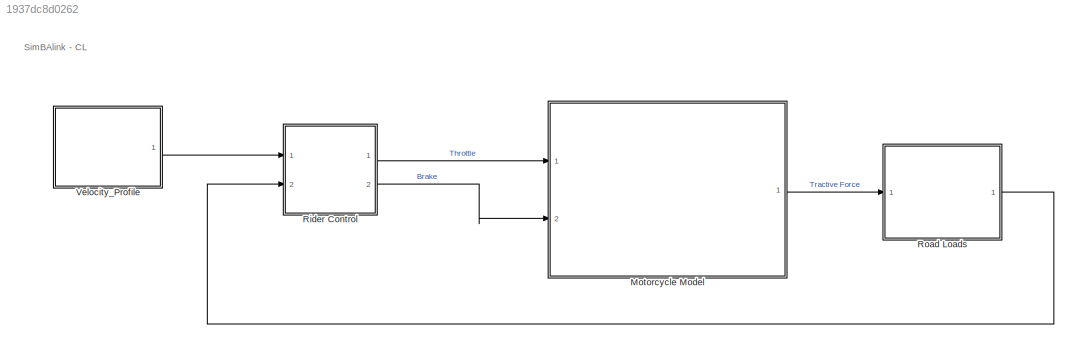
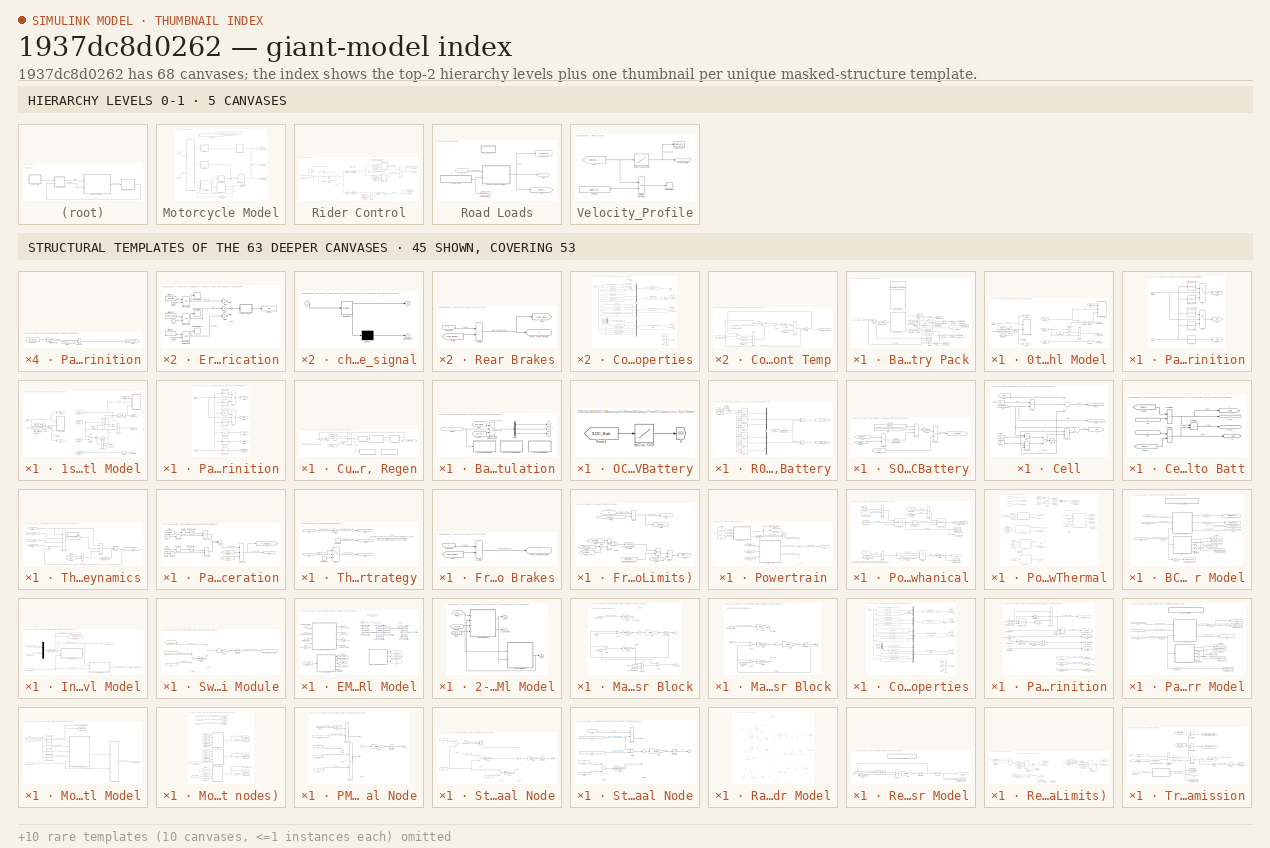
[diagram: thumbnail index - top-2 hierarchy levels (5 canvases) + 45 structural-template representatives of the remaining 63 canvases]
MODEL slx_1937dc8d0262
KIND model
CONFIG AbsTol = auto
CONFIG EnableMultiTasking = off
CONFIG FixedStep = auto
CONFIG MaxStep = auto
CONFIG MinStep = 0.01
CONFIG RelTol = 1e-3
CONFIG SampleTimeConstraint = Unconstrained
CONFIG Solver = FixedStepAuto
CONFIG SolverName = FixedStepAuto
CONFIG StartTime = 0.0
CONFIG StopTime = Inf
BLOCK [SubSystem] Motorcycle Model
  Ports = [2, 1]
  RequestExecContextInheritance = off
BLOCK [SubSystem] Motorcycle Model/Battery Pack
  Ports = [1, 2]
  RequestExecContextInheritance = off
BLOCK [SubSystem] Motorcycle Model/Battery Pack/0th Order Cell Model
  Ports = [1, 4]
  RequestExecContextInheritance = off
BLOCK [Constant] Motorcycle Model/Battery Pack/0th Order Cell Model/ 
  Value = -1/(3600)
BLOCK [Outport] Motorcycle Model/Battery Pack/0th Order Cell Model/ Cell Voltage [V]
  IconDisplay = Port number
  Port = 4
BLOCK [Sum] Motorcycle Model/Battery Pack/0th Order Cell Model/Add2
  InputSameDT = off
  Inputs = +--
  OutDataTypeStr = Inherit: Inherit via internal rule
  Ports = [3, 1]
  SaturateOnIntegerOverflow = off
BLOCK [Inport] Motorcycle Model/Battery Pack/0th Order Cell Model/Current [A]
  IconDisplay = Port number
BLOCK [SubSystem] Motorcycle Model/Battery Pack/0th Order Cell Model/Error Identification
  Ports = [3]
  RequestExecContextInheritance = off
BLOCK [Display] Motorcycle Model/Battery Pack/0th Order Cell Model/Error Identification/Display
  Decimation = 1
  Ports = [1]
BLOCK [Gain] Motorcycle Model/Battery Pack/0th Order Cell Model/Error Identification/Gain
  OutDataTypeStr = Inherit: Inherit via internal rule
  ParamDataTypeStr = Inherit: Inherit via internal rule
  SaturateOnIntegerOverflow = off
BLOCK [Gain] Motorcycle Model/Battery Pack/0th Order Cell Model/Error Identification/Gain1
  Gain = 2
  OutDataTypeStr = Inherit: Inherit via internal rule
  ParamDataTypeStr = Inherit: Inherit via internal rule
  SaturateOnIntegerOverflow = off
BLOCK [Gain] Motorcycle Model/Battery Pack/0th Order Cell Model/Error Identification/Gain2
  Gain = 3
  OutDataTypeStr = Inherit: Inherit via internal rule
  ParamDataTypeStr = Inherit: Inherit via internal rule
  SaturateOnIntegerOverflow = off
BLOCK [Constant] Motorcycle Model/Battery Pack/0th Order Cell Model/Error Identification/InitialSoC1
  Value = SOC_min
BLOCK [Constant] Motorcycle Model/Battery Pack/0th Order Cell Model/Error Identification/InitialSoC2
  Value = CELL.V_min
BLOCK [Constant] Motorcycle Model/Battery Pack/0th Order Cell Model/Error Identification/InitialSoC3
  Value = 0
BLOCK [RelationalOperator] Motorcycle Model/Battery Pack/0th Order Cell Model/Error Identification/Min OCV Limit
  InputSameDT = off
  OutDataTypeStr = boolean
  Ports = [2, 1]
  RndMeth = Simplest
BLOCK [RelationalOperator] Motorcycle Model/Battery Pack/0th Order Cell Model/Error Identification/Min SOC Limit
  InputSameDT = off
  OutDataTypeStr = boolean
  Ports = [2, 1]
  RndMeth = Simplest
BLOCK [RelationalOperator] Motorcycle Model/Battery Pack/0th Order Cell Model/Error Identification/Min Terminal Voltage Limit
  InputSameDT = off
  OutDataTypeStr = boolean
  Ports = [2, 1]
  RndMeth = Simplest
BLOCK [Inport] Motorcycle Model/Battery Pack/0th Order Cell Model/Error Identification/OCV
  IconDisplay = Port number
  Port = 2
BLOCK [Inport] Motorcycle Model/Battery Pack/0th Order Cell Model/Error Identification/SOC
  IconDisplay = Port number
BLOCK [Stop] Motorcycle Model/Battery Pack/0th Order Cell Model/Error Identification/Stop Simulation
BLOCK [Stop] Motorcycle Model/Battery Pack/0th Order Cell Model/Error Identification/Stop Simulation1
BLOCK [Stop] Motorcycle Model/Battery Pack/0th Order Cell Model/Error Identification/Stop Simulation2
BLOCK [Sum] Motorcycle Model/Battery Pack/0th Order Cell Model/Error Identification/Sum
  InputSameDT = off
  Inputs = +++
  OutDataTypeStr = Inherit: Inherit via internal rule
  Ports = [3, 1]
  SaturateOnIntegerOverflow = off
BLOCK [Inport] Motorcycle Model/Battery Pack/0th Order Cell Model/Error Identification/Vt
  IconDisplay = Port number
  Port = 3
BLOCK [SubSystem] Motorcycle Model/Battery Pack/0th Order Cell Model/Error Identification/check_signal
  ErrorFcn = Stateflow.Translate.translate
  PermitHierarchicalResolution = ExplicitOnly
  Ports = [1, 1]
  RequestExecContextInheritance = off
  SFBlockType = MATLAB Function
  TreatAsAtomicUnit = on
BLOCK [Demux] Motorcycle Model/Battery Pack/0th Order Cell Model/Error Identification/check_signal/ Demux 
  Outputs = 1
  Ports = [1, 1]
BLOCK [S-Function] Motorcycle Model/Battery Pack/0th Order Cell Model/Error Identification/check_signal/ SFunction 
  EnableBusSupport = on
  FunctionName = sf_sfun
  PortCounts = [1 2]
  Ports = [1, 2]
  SFcnIsStateOwnerBlock = off
  SFunctionDeploymentMode = off
  Tag = Stateflow S-Function BuckeyeCurrent_Simulation 2
BLOCK [Terminator] Motorcycle Model/Battery Pack/0th Order Cell Model/Error Identification/check_signal/ Terminator 
BLOCK [Inport] Motorcycle Model/Battery Pack/0th Order Cell Model/Error Identification/check_signal/x
  IconDisplay = Port number
BLOCK [Outport] Motorcycle Model/Battery Pack/0th Order Cell Model/Error Identification/check_signal/y
  IconDisplay = Port number
BLOCK [From] Motorcycle Model/Battery Pack/0th Order Cell Model/From
  GotoTag = R0
  TagVisibility = global
BLOCK [From] Motorcycle Model/Battery Pack/0th Order Cell Model/From1
  GotoTag = OCV
  TagVisibility = global
BLOCK [From] Motorcycle Model/Battery Pack/0th Order Cell Model/From2
  GotoTag = P_lim
  TagVisibility = global
BLOCK [From] Motorcycle Model/Battery Pack/0th Order Cell Model/From3
  GotoTag = SOC
  TagVisibility = global
BLOCK [From] Motorcycle Model/Battery Pack/0th Order Cell Model/From4
  GotoTag = Current
  TagVisibility = global
BLOCK [Goto] Motorcycle Model/Battery Pack/0th Order Cell Model/Goto
  GotoTag = SOC
  TagVisibility = global
BLOCK [Goto] Motorcycle Model/Battery Pack/0th Order Cell Model/Goto1
  GotoTag = Current
  TagVisibility = global
BLOCK [Outport] Motorcycle Model/Battery Pack/0th Order Cell Model/Heat Generation [W]
  IconDisplay = Port number
  Port = 3
BLOCK [Constant] Motorcycle Model/Battery Pack/0th Order Cell Model/InitialSoC4
  Value = SOC_max
BLOCK [Memory] Motorcycle Model/Battery Pack/0th Order Cell Model/Memory
  InitialCondition = V_cell_init
BLOCK [Memory] Motorcycle Model/Battery Pack/0th Order Cell Model/Memory3
  InitialCondition = P_lim_dch_init
BLOCK [SubSystem] Motorcycle Model/Battery Pack/0th Order Cell Model/Parameter Definition
  Ports = [2]
  RequestExecContextInheritance = off
BLOCK [Inport] Motorcycle Model/Battery Pack/0th Order Cell Model/Parameter Definition/Current
  IconDisplay = Port number
BLOCK [Goto] Motorcycle Model/Battery Pack/0th Order Cell Model/Parameter Definition/Goto
  GotoTag = P_lim
  TagVisibility = global
BLOCK [Goto] Motorcycle Model/Battery Pack/0th Order Cell Model/Parameter Definition/Goto1
  GotoTag = R0
  TagVisibility = global
BLOCK [Goto] Motorcycle Model/Battery Pack/0th Order Cell Model/Parameter Definition/Goto2
  GotoTag = OCV
  TagVisibility = global
BLOCK [Lookup_n-D] Motorcycle Model/Battery Pack/0th Order Cell Model/Parameter Definition/OCV v SOC
  BreakpointsForDimension1 = CELL.SOC
  NumberOfTableDimensions = 1
  Ports = [1, 1]
  RndMeth = Simplest
  Table = CELL.OCV
BLOCK [Lookup_n-D] Motorcycle Model/Battery Pack/0th Order Cell Model/Parameter Definition/P_lim_ch v SOC
  BreakpointsForDimension1 = CELL.SOC
  NumberOfTableDimensions = 1
  Ports = [1, 1]
  RndMeth = Simplest
  Table = CELL.Power_ch
BLOCK [Lookup_n-D] Motorcycle Model/Battery Pack/0th Order Cell Model/Parameter Definition/P_lim_dch v SOC
  BreakpointsForDimension1 = CELL.SOC
  NumberOfTableDimensions = 1
  Ports = [1, 1]
  RndMeth = Simplest
  Table = CELL.Power_dch
BLOCK [Lookup_n-D] Motorcycle Model/Battery Pack/0th Order Cell Model/Parameter Definition/R0_ch v SOC
  BreakpointsForDimension1 = CELL.SOC
  NumberOfTableDimensions = 1
  Ports = [1, 1]
  RndMeth = Simplest
  Table = CELL.R0_ch
BLOCK [Lookup_n-D] Motorcycle Model/Battery Pack/0th Order Cell Model/Parameter Definition/R0_dch v SOC
  BreakpointsForDimension1 = CELL.SOC
  NumberOfTableDimensions = 1
  Ports = [1, 1]
  RndMeth = Simplest
  Table = CELL.R0_dch
BLOCK [Inport] Motorcycle Model/Battery Pack/0th Order Cell Model/Parameter Definition/SOC
  IconDisplay = Port number
  Port = 2
BLOCK [Switch] Motorcycle Model/Battery Pack/0th Order Cell Model/Parameter Definition/Switch
  InputSameDT = off
  SaturateOnIntegerOverflow = off
BLOCK [Switch] Motorcycle Model/Battery Pack/0th Order Cell Model/Parameter Definition/Switch2
  InputSameDT = off
  SaturateOnIntegerOverflow = off
BLOCK [Outport] Motorcycle Model/Battery Pack/0th Order Cell Model/Power Limit [W]
  IconDisplay = Port number
  Port = 2
BLOCK [Product] Motorcycle Model/Battery Pack/0th Order Cell Model/Product1
  InputSameDT = off
  OutDataTypeStr = Inherit: Inherit via internal rule
  Ports = [2, 1]
  SaturateOnIntegerOverflow = off
BLOCK [Product] Motorcycle Model/Battery Pack/0th Order Cell Model/Product3
  InputSameDT = off
  OutDataTypeStr = Inherit: Inherit via internal rule
  Ports = [2, 1]
  SaturateOnIntegerOverflow = off
BLOCK [Product] Motorcycle Model/Battery Pack/0th Order Cell Model/Product4
  InputSameDT = off
  Inputs = 3
  OutDataTypeStr = Inherit: Inherit via internal rule
  Ports = [3, 1]
  SaturateOnIntegerOverflow = off
BLOCK [Integrator] Motorcycle Model/Battery Pack/0th Order Cell Model/SOC
  InitialCondition = 1
  InitialConditionSource = external
  Ports = [2, 1]
BLOCK [Outport] Motorcycle Model/Battery Pack/0th Order Cell Model/SOC [-]
  IconDisplay = Port number
BLOCK [Saturate] Motorcycle Model/Battery Pack/0th Order Cell Model/Saturation
  InputPortMap = u0
  LowerLimit = 0
  Ports = [1, 1]
  UpperLimit = inf
BLOCK [Constant] Motorcycle Model/Battery Pack/0th Order Cell Model/capacity1
  Value = 1/CELL.C_nom
BLOCK [SubSystem] Motorcycle Model/Battery Pack/1st Order Cell Model
  Commented = on
  Ports = [1, 4]
  RequestExecContextInheritance = off
BLOCK [Constant] Motorcycle Model/Battery Pack/1st Order Cell Model/ 
  Value = -1/(3600)
BLOCK [Outport] Motorcycle Model/Battery Pack/1st Order Cell Model/ Cell Voltage [V]
  IconDisplay = Port number
  Port = 4
BLOCK [Sum] Motorcycle Model/Battery Pack/1st Order Cell Model/Add
  InputSameDT = off
  OutDataTypeStr = Inherit: Inherit via internal rule
  Ports = [2, 1]
  SaturateOnIntegerOverflow = off
BLOCK [Sum] Motorcycle Model/Battery Pack/1st Order Cell Model/Add2
  InputSameDT = off
  Inputs = +--
  OutDataTypeStr = Inherit: Inherit via internal rule
  Ports = [3, 1]
  SaturateOnIntegerOverflow = off
BLOCK [Inport] Motorcycle Model/Battery Pack/1st Order Cell Model/Current [A]
  IconDisplay = Port number
BLOCK [SubSystem] Motorcycle Model/Battery Pack/1st Order Cell Model/Error Identification
  Ports = [3]
  RequestExecContextInheritance = off
BLOCK [Display] Motorcycle Model/Battery Pack/1st Order Cell Model/Error Identification/Display
  Decimation = 1
  Ports = [1]
BLOCK [Gain] Motorcycle Model/Battery Pack/1st Order Cell Model/Error Identification/Gain
  OutDataTypeStr = Inherit: Inherit via internal rule
  ParamDataTypeStr = Inherit: Inherit via internal rule
  SaturateOnIntegerOverflow = off
BLOCK [Gain] Motorcycle Model/Battery Pack/1st Order Cell Model/Error Identification/Gain1
  Gain = 2
  OutDataTypeStr = Inherit: Inherit via internal rule
  ParamDataTypeStr = Inherit: Inherit via internal rule
  SaturateOnIntegerOverflow = off
BLOCK [Gain] Motorcycle Model/Battery Pack/1st Order Cell Model/Error Identification/Gain2
  Gain = 3
  OutDataTypeStr = Inherit: Inherit via internal rule
  ParamDataTypeStr = Inherit: Inherit via internal rule
  SaturateOnIntegerOverflow = off
BLOCK [Constant] Motorcycle Model/Battery Pack/1st Order Cell Model/Error Identification/InitialSoC1
  Value = SOC_min
BLOCK [Constant] Motorcycle Model/Battery Pack/1st Order Cell Model/Error Identification/InitialSoC2
  Value = CELL.V_min
BLOCK [Constant] Motorcycle Model/Battery Pack/1st Order Cell Model/Error Identification/InitialSoC3
  Value = 0
BLOCK [RelationalOperator] Motorcycle Model/Battery Pack/1st Order Cell Model/Error Identification/Min OCV Limit
  InputSameDT = off
  OutDataTypeStr = boolean
  Ports = [2, 1]
  RndMeth = Simplest
BLOCK [RelationalOperator] Motorcycle Model/Battery Pack/1st Order Cell Model/Error Identification/Min SOC Limit
  InputSameDT = off
  OutDataTypeStr = boolean
  Ports = [2, 1]
  RndMeth = Simplest
BLOCK [RelationalOperator] Motorcycle Model/Battery Pack/1st Order Cell Model/Error Identification/Min Terminal Voltage Limit
  InputSameDT = off
  OutDataTypeStr = boolean
  Ports = [2, 1]
  RndMeth = Simplest
BLOCK [Inport] Motorcycle Model/Battery Pack/1st Order Cell Model/Error Identification/OCV
  IconDisplay = Port number
  Port = 2
BLOCK [Inport] Motorcycle Model/Battery Pack/1st Order Cell Model/Error Identification/SOC
  IconDisplay = Port number
BLOCK [Stop] Motorcycle Model/Battery Pack/1st Order Cell Model/Error Identification/Stop Simulation
BLOCK [Stop] Motorcycle Model/Battery Pack/1st Order Cell Model/Error Identification/Stop Simulation1
BLOCK [Stop] Motorcycle Model/Battery Pack/1st Order Cell Model/Error Identification/Stop Simulation2
BLOCK [Sum] Motorcycle Model/Battery Pack/1st Order Cell Model/Error Identification/Sum
  InputSameDT = off
  Inputs = +++
  OutDataTypeStr = Inherit: Inherit via internal rule
  Ports = [3, 1]
  SaturateOnIntegerOverflow = off
BLOCK [Inport] Motorcycle Model/Battery Pack/1st Order Cell Model/Error Identification/Vt
  IconDisplay = Port number
  Port = 3
BLOCK [SubSystem] Motorcycle Model/Battery Pack/1st Order Cell Model/Error Identification/check_signal
  ErrorFcn = Stateflow.Translate.translate
  PermitHierarchicalResolution = ExplicitOnly
  Ports = [1, 1]
  RequestExecContextInheritance = off
  SFBlockType = MATLAB Function
  TreatAsAtomicUnit = on
BLOCK [Demux] Motorcycle Model/Battery Pack/1st Order Cell Model/Error Identification/check_signal/ Demux 
  Outputs = 1
  Ports = [1, 1]
BLOCK [S-Function] Motorcycle Model/Battery Pack/1st Order Cell Model/Error Identification/check_signal/ SFunction 
  EnableBusSupport = on
  FunctionName = sf_sfun
  PortCounts = [1 2]
  Ports = [1, 2]
  SFcnIsStateOwnerBlock = off
  SFunctionDeploymentMode = off
  Tag = Stateflow S-Function BuckeyeCurrent_Simulation 1
BLOCK [Terminator] Motorcycle Model/Battery Pack/1st Order Cell Model/Error Identification/check_signal/ Terminator 
BLOCK [Inport] Motorcycle Model/Battery Pack/1st Order Cell Model/Error Identification/check_signal/x
  IconDisplay = Port number
BLOCK [Outport] Motorcycle Model/Battery Pack/1st Order Cell Model/Error Identification/check_signal/y
  IconDisplay = Port number
BLOCK [From] Motorcycle Model/Battery Pack/1st Order Cell Model/From
  GotoTag = R0
  TagVisibility = global
BLOCK [From] Motorcycle Model/Battery Pack/1st Order Cell Model/From1
  GotoTag = OCV
  TagVisibility = global
BLOCK [From] Motorcycle Model/Battery Pack/1st Order Cell Model/From2
  GotoTag = P_lim
  TagVisibility = global
BLOCK [From] Motorcycle Model/Battery Pack/1st Order Cell Model/From3
  GotoTag = SOC
  TagVisibility = global
BLOCK [From] Motorcycle Model/Battery Pack/1st Order Cell Model/From4
  GotoTag = Current
  TagVisibility = global
BLOCK [From] Motorcycle Model/Battery Pack/1st Order Cell Model/From5
  GotoTag = gamma
  TagVisibility = global
BLOCK [From] Motorcycle Model/Battery Pack/1st Order Cell Model/From6
  GotoTag = beta
  TagVisibility = global
BLOCK [Goto] Motorcycle Model/Battery Pack/1st Order Cell Model/Goto
  GotoTag = SOC
  TagVisibility = global
BLOCK [Goto] Motorcycle Model/Battery Pack/1st Order Cell Model/Goto1
  GotoTag = Current
  TagVisibility = global
BLOCK [Outport] Motorcycle Model/Battery Pack/1st Order Cell Model/Heat Generation [W]
  IconDisplay = Port number
  Port = 3
BLOCK [Constant] Motorcycle Model/Battery Pack/1st Order Cell Model/InitialSoC4
  Value = SOC_max
BLOCK [Integrator] Motorcycle Model/Battery Pack/1st Order Cell Model/Integrator1
  Ports = [1, 1]
BLOCK [Memory] Motorcycle Model/Battery Pack/1st Order Cell Model/Memory
  InitialCondition = V_cell_init
BLOCK [Memory] Motorcycle Model/Battery Pack/1st Order Cell Model/Memory3
  InitialCondition = P_lim_dch_init
BLOCK [SubSystem] Motorcycle Model/Battery Pack/1st Order Cell Model/Parameter Definition
  Ports = [2]
  RequestExecContextInheritance = off
BLOCK [Inport] Motorcycle Model/Battery Pack/1st Order Cell Model/Parameter Definition/Current
  IconDisplay = Port number
BLOCK [Goto] Motorcycle Model/Battery Pack/1st Order Cell Model/Parameter Definition/Goto
  GotoTag = P_lim
  TagVisibility = global
BLOCK [Goto] Motorcycle Model/Battery Pack/1st Order Cell Model/Parameter Definition/Goto1
  GotoTag = R0
  TagVisibility = global
BLOCK [Goto] Motorcycle Model/Battery Pack/1st Order Cell Model/Parameter Definition/Goto2
  GotoTag = OCV
  TagVisibility = global
BLOCK [Goto] Motorcycle Model/Battery Pack/1st Order Cell Model/Parameter Definition/Goto3
  GotoTag = beta
  TagVisibility = global
BLOCK [Goto] Motorcycle Model/Battery Pack/1st Order Cell Model/Parameter Definition/Goto4
  GotoTag = gamma
  TagVisibility = global
BLOCK [Lookup_n-D] Motorcycle Model/Battery Pack/1st Order Cell Model/Parameter Definition/OCV v SOC
  BreakpointsForDimension1 = CELL.SOC
  NumberOfTableDimensions = 1
  Ports = [1, 1]
  RndMeth = Simplest
  Table = CELL.OCV
BLOCK [Lookup_n-D] Motorcycle Model/Battery Pack/1st Order Cell Model/Parameter Definition/P_lim_ch v SOC
  BreakpointsForDimension1 = CELL.SOC
  NumberOfTableDimensions = 1
  Ports = [1, 1]
  RndMeth = Simplest
  Table = CELL.Power_ch
BLOCK [Lookup_n-D] Motorcycle Model/Battery Pack/1st Order Cell Model/Parameter Definition/P_lim_dch v SOC
  BreakpointsForDimension1 = CELL.SOC
  NumberOfTableDimensions = 1
  Ports = [1, 1]
  RndMeth = Simplest
  Table = CELL.Power_dch
BLOCK [Lookup_n-D] Motorcycle Model/Battery Pack/1st Order Cell Model/Parameter Definition/R0_ch v SOC
  BreakpointsForDimension1 = CELL.SOC
  NumberOfTableDimensions = 1
  Ports = [1, 1]
  RndMeth = Simplest
  Table = CELL.R0_ch
BLOCK [Lookup_n-D] Motorcycle Model/Battery Pack/1st Order Cell Model/Parameter Definition/R0_dch v SOC
  BreakpointsForDimension1 = CELL.SOC
  NumberOfTableDimensions = 1
  Ports = [1, 1]
  RndMeth = Simplest
  Table = CELL.R0_dch
BLOCK [Inport] Motorcycle Model/Battery Pack/1st Order Cell Model/Parameter Definition/SOC
  IconDisplay = Port number
  Port = 2
BLOCK [Switch] Motorcycle Model/Battery Pack/1st Order Cell Model/Parameter Definition/Switch
  InputSameDT = off
  SaturateOnIntegerOverflow = off
BLOCK [Switch] Motorcycle Model/Battery Pack/1st Order Cell Model/Parameter Definition/Switch2
  InputSameDT = off
  SaturateOnIntegerOverflow = off
BLOCK [Lookup_n-D] Motorcycle Model/Battery Pack/1st Order Cell Model/Parameter Definition/beta v SOC
  BreakpointsForDimension1 = CELL.SOC
  NumberOfTableDimensions = 1
  Ports = [1, 1]
  RndMeth = Simplest
  Table = CELL.beta
BLOCK [Lookup_n-D] Motorcycle Model/Battery Pack/1st Order Cell Model/Parameter Definition/gamma v SOC
  BreakpointsForDimension1 = CELL.SOC
  NumberOfTableDimensions = 1
  Ports = [1, 1]
  RndMeth = Simplest
  Table = CELL.gamma
BLOCK [Outport] Motorcycle Model/Battery Pack/1st Order Cell Model/Power Limit [W]
  IconDisplay = Port number
  Port = 2
BLOCK [Product] Motorcycle Model/Battery Pack/1st Order Cell Model/Product1
  InputSameDT = off
  OutDataTypeStr = Inherit: Inherit via internal rule
  Ports = [2, 1]
  SaturateOnIntegerOverflow = off
BLOCK [Product] Motorcycle Model/Battery Pack/1st Order Cell Model/Product2
  InputSameDT = off
  OutDataTypeStr = Inherit: Inherit via internal rule
  Ports = [2, 1]
  SaturateOnIntegerOverflow = off
BLOCK [Product] Motorcycle Model/Battery Pack/1st Order Cell Model/Product3
  InputSameDT = off
  OutDataTypeStr = Inherit: Inherit via internal rule
  Ports = [2, 1]
  SaturateOnIntegerOverflow = off
BLOCK [Product] Motorcycle Model/Battery Pack/1st Order Cell Model/Product4
  InputSameDT = off
  Inputs = 3
  OutDataTypeStr = Inherit: Inherit via internal rule
  Ports = [3, 1]
  SaturateOnIntegerOverflow = off
BLOCK [Product] Motorcycle Model/Battery Pack/1st Order Cell Model/Product5
  InputSameDT = off
  OutDataTypeStr = Inherit: Inherit via internal rule
  Ports = [2, 1]
  SaturateOnIntegerOverflow = off
BLOCK [Integrator] Motorcycle Model/Battery Pack/1st Order Cell Model/SOC
  InitialCondition = 1
  InitialConditionSource = external
  Ports = [2, 1]
BLOCK [Outport] Motorcycle Model/Battery Pack/1st Order Cell Model/SOC [-]
  IconDisplay = Port number
BLOCK [Saturate] Motorcycle Model/Battery Pack/1st Order Cell Model/Saturation
  InputPortMap = u0
  LowerLimit = 0
  Ports = [1, 1]
  UpperLimit = inf
BLOCK [Sum] Motorcycle Model/Battery Pack/1st Order Cell Model/Sum
  IconShape = round
  InputSameDT = off
  Inputs = |+-
  OutDataTypeStr = Inherit: Inherit via internal rule
  Ports = [2, 1]
  SaturateOnIntegerOverflow = off
BLOCK [Constant] Motorcycle Model/Battery Pack/1st Order Cell Model/capacity1
  Value = 1/CELL.C_nom
BLOCK [Constant] Motorcycle Model/Battery Pack/Constant
  Value = CELL.Np
BLOCK [Constant] Motorcycle Model/Battery Pack/Constant2
  Value = CELL.Ns
BLOCK [Constant] Motorcycle Model/Battery Pack/Constant3
  Value = CELL.Nt
BLOCK [SubSystem] Motorcycle Model/Battery Pack/Current Lim, 1st Order ECM, Thermal, Regen
  Commented = on
  Ports = [1]
  RequestExecContextInheritance = off
BLOCK [Goto] Motorcycle Model/Battery Pack/Current Lim, 1st Order ECM, Thermal, Regen/ 
  GotoTag = P_from_Battery
  IconDisplay = Tag and signal name
  TagVisibility = global
BLOCK [SubSystem] Motorcycle Model/Battery Pack/Current Lim, 1st Order ECM, Thermal, Regen/Battery Parameters Calculation
  Ports = [1]
  RequestExecContextInheritance = off
BLOCK [Goto] Motorcycle Model/Battery Pack/Current Lim, 1st Order ECM, Thermal, Regen/Battery Parameters Calculation/ 1
  GotoTag = R0
  IconDisplay = Tag and signal name
  TagVisibility = global
BLOCK [Goto] Motorcycle Model/Battery Pack/Current Lim, 1st Order ECM, Thermal, Regen/Battery Parameters Calculation/ 2
  GotoTag = R1
  IconDisplay = Tag and signal name
  TagVisibility = global
BLOCK [Goto] Motorcycle Model/Battery Pack/Current Lim, 1st Order ECM, Thermal, Regen/Battery Parameters Calculation/ 3
  GotoTag = C1
  IconDisplay = Tag and signal name
  TagVisibility = global
BLOCK [Demux] Motorcycle Model/Battery Pack/Current Lim, 1st Order ECM, Thermal, Regen/Battery Parameters Calculation/Demux
  DisplayOption = bar
  Outputs = 3
  Ports = [1, 3]
BLOCK [From] Motorcycle Model/Battery Pack/Current Lim, 1st Order ECM, Thermal, Regen/Battery Parameters Calculation/From4
  CloseFcn = tagdialog Close
  GotoTag = BAT_DisCh
  TagVisibility = global
BLOCK [From] Motorcycle Model/Battery Pack/Current Lim, 1st Order ECM, Thermal, Regen/Battery Parameters Calculation/From6
  CloseFcn = tagdialog Close
  GotoTag = BAT_Ch
  TagVisibility = global
BLOCK [SubSystem] Motorcycle Model/Battery Pack/Current Lim, 1st Order ECM, Thermal, Regen/Battery Parameters Calculation/OCV Calculation for Battery
  Ports = []
  RequestExecContextInheritance = off
BLOCK [Goto] Motorcycle Model/Battery Pack/Current Lim, 1st Order ECM, Thermal, Regen/Battery Parameters Calculation/OCV Calculation for Battery/ 4
  GotoTag = OCV
  IconDisplay = Tag and signal name
  TagVisibility = global
BLOCK [From] Motorcycle Model/Battery Pack/Current Lim, 1st Order ECM, Thermal, Regen/Battery Parameters Calculation/OCV Calculation for Battery/From1
  CloseFcn = tagdialog Close
  GotoTag = SOC_Batt
  TagVisibility = global
BLOCK [Lookup] Motorcycle Model/Battery Pack/Current Lim, 1st Order ECM, Thermal, Regen/Battery Parameters Calculation/OCV Calculation for Battery/SoC vs. OCV
  InputValues = BATT_OCV.SoC
  LookUpMeth = Interpolation-Use End Values
  SaturateOnIntegerOverflow = off
  Table = BATT_OCV.OCV
BLOCK [SubSystem] Motorcycle Model/Battery Pack/Current Lim, 1st Order ECM, Thermal, Regen/Battery Parameters Calculation/R0, C1, R1 Calculation for Battery
  Ports = []
  RequestExecContextInheritance = off
BLOCK [Goto] Motorcycle Model/Battery Pack/Current Lim, 1st Order ECM, Thermal, Regen/Battery Parameters Calculation/R0, C1, R1 Calculation for Battery/ 4
  GotoTag = BAT_DisCh
  IconDisplay = Tag and signal name
  TagVisibility = global
BLOCK [Goto] Motorcycle Model/Battery Pack/Current Lim, 1st Order ECM, Thermal, Regen/Battery Parameters Calculation/R0, C1, R1 Calculation for Battery/ 5
  GotoTag = BAT_Ch
  IconDisplay = Tag and signal name
  TagVisibility = global
BLOCK [Lookup2D] Motorcycle Model/Battery Pack/Current Lim, 1st Order ECM, Thermal, Regen/Battery Parameters Calculation/R0, C1, R1 Calculation for Battery/C1 Ch
  ColumnIndex = BATT_ELEC.soc_part
  InputSameDT = off
  LookUpMeth = Interpolation-Use End Values
  RowIndex = BATT_ELEC.temp_part
  SaturateOnIntegerOverflow = off
  Table = BATT_ELEC.C1c
BLOCK [Lookup2D] Motorcycle Model/Battery Pack/Current Lim, 1st Order ECM, Thermal, Regen/Battery Parameters Calculation/R0, C1, R1 Calculation for Battery/C1 Disch
  ColumnIndex = BATT_ELEC.soc_part
  InputSameDT = off
  LookUpMeth = Interpolation-Use End Values
  RowIndex = BATT_ELEC.temp_part
  SaturateOnIntegerOverflow = off
  Table = BATT_ELEC.C1d
BLOCK [Constant] Motorcycle Model/Battery Pack/Current Lim, 1st Order ECM, Thermal, Regen/Battery Parameters Calculation/R0, C1, R1 Calculation for Battery/Constant
  Value = 273
BLOCK [From] Motorcycle Model/Battery Pack/Current Lim, 1st Order ECM, Thermal, Regen/Battery Parameters Calculation/R0, C1, R1 Calculation for Battery/From1
  GotoTag = T_Batt
  IconDisplay = Signal name
  TagVisibility = global
BLOCK [From] Motorcycle Model/Battery Pack/Current Lim, 1st Order ECM, Thermal, Regen/Battery Parameters Calculation/R0, C1, R1 Calculation for Battery/From3
  GotoTag = SOC_Batt
  IconDisplay = Signal name
  TagVisibility = global
BLOCK [From] Motorcycle Model/Battery Pack/Current Lim, 1st Order ECM, Thermal, Regen/Battery Parameters Calculation/R0, C1, R1 Calculation for Battery/From4
  GotoTag = cellParallelCount
  TagVisibility = global
BLOCK [Math] Motorcycle Model/Battery Pack/Current Lim, 1st Order ECM, Thermal, Regen/Battery Parameters Calculation/R0, C1, R1 Calculation for Battery/Math Reciprocal
  Operator = reciprocal
  Ports = [1, 1]
BLOCK [Mux] Motorcycle Model/Battery Pack/Current Lim, 1st Order ECM, Thermal, Regen/Battery Parameters Calculation/R0, C1, R1 Calculation for Battery/Mux
  DisplayOption = bar
  Inputs = 3
  Ports = [3, 1]
BLOCK [Mux] Motorcycle Model/Battery Pack/Current Lim, 1st Order ECM, Thermal, Regen/Battery Parameters Calculation/R0, C1, R1 Calculation for Battery/Mux1
  DisplayOption = bar
  Inputs = 3
  Ports = [3, 1]
BLOCK [Product] Motorcycle Model/Battery Pack/Current Lim, 1st Order ECM, Thermal, Regen/Battery Parameters Calculation/R0, C1, R1 Calculation for Battery/Product
  InputSameDT = off
  OutDataTypeStr = Inherit: Inherit via internal rule
  Ports = [2, 1]
  RndMeth = Floor
  SaturateOnIntegerOverflow = off
BLOCK [Product] Motorcycle Model/Battery Pack/Current Lim, 1st Order ECM, Thermal, Regen/Battery Parameters Calculation/R0, C1, R1 Calculation for Battery/Product1
  InputSameDT = off
  OutDataTypeStr = Inherit: Inherit via internal rule
  Ports = [2, 1]
  RndMeth = Floor
  SaturateOnIntegerOverflow = off
BLOCK [Lookup2D] Motorcycle Model/Battery Pack/Current Lim, 1st Order ECM, Thermal, Regen/Battery Parameters Calculation/R0, C1, R1 Calculation for Battery/R0 Disch
  ColumnIndex = BATT_ELEC.soc_part
  InputSameDT = off
  LookUpMeth = Interpolation-Use End Values
  RowIndex = BATT_ELEC.temp_part
  SaturateOnIntegerOverflow = off
  Table = BATT_ELEC.R0d
BLOCK [Lookup2D] Motorcycle Model/Battery Pack/Current Lim, 1st Order ECM, Thermal, Regen/Battery Parameters Calculation/R0, C1, R1 Calculation for Battery/R0 ch
  ColumnIndex = BATT_ELEC.soc_part
  InputSameDT = off
  LookUpMeth = Interpolation-Use End Values
  RowIndex = BATT_ELEC.temp_part
  SaturateOnIntegerOverflow = off
  Table = BATT_ELEC.R0c
BLOCK [Lookup2D] Motorcycle Model/Battery Pack/Current Lim, 1st Order ECM, Thermal, Regen/Battery Parameters Calculation/R0, C1, R1 Calculation for Battery/R1 Ch
  ColumnIndex = BATT_ELEC.soc_part
  InputSameDT = off
  LookUpMeth = Interpolation-Use End Values
  RowIndex = BATT_ELEC.temp_part
  SaturateOnIntegerOverflow = off
  Table = BATT_ELEC.R1c
BLOCK [Lookup2D] Motorcycle Model/Battery Pack/Current Lim, 1st Order ECM, Thermal, Regen/Battery Parameters Calculation/R0, C1, R1 Calculation for Battery/R1 Disch
  ColumnIndex = BATT_ELEC.soc_part
  InputSameDT = off
  LookUpMeth = Interpolation-Use End Values
  RowIndex = BATT_ELEC.temp_part
  SaturateOnIntegerOverflow = off
  Table = BATT_ELEC.R1d
BLOCK [Sum] Motorcycle Model/Battery Pack/Current Lim, 1st Order ECM, Thermal, Regen/Battery Parameters Calculation/R0, C1, R1 Calculation for Battery/Sum
  IconShape = round
  InputSameDT = off
  Inputs = -+|
  OutDataTypeStr = Inherit: Inherit via internal rule
  Ports = [2, 1]
  SaturateOnIntegerOverflow = off
BLOCK [SubSystem] Motorcycle Model/Battery Pack/Current Lim, 1st Order ECM, Thermal, Regen/Battery Parameters Calculation/SOC Calculation for Battery
  Ports = [1]
  RequestExecContextInheritance = off
BLOCK [Goto] Motorcycle Model/Battery Pack/Current Lim, 1st Order ECM, Thermal, Regen/Battery Parameters Calculation/SOC Calculation for Battery/ 1
  GotoTag = SOC_Batt
  IconDisplay = Tag and signal name
  TagVisibility = global
BLOCK [From] Motorcycle Model/Battery Pack/Current Lim, 1st Order ECM, Thermal, Regen/Battery Parameters Calculation/SOC Calculation for Battery/From2
  GotoTag = soc0
  TagVisibility = global
BLOCK [From] Motorcycle Model/Battery Pack/Current Lim, 1st Order ECM, Thermal, Regen/Battery Parameters Calculation/SOC Calculation for Battery/From4
  GotoTag = cellParallelCount
  TagVisibility = global
BLOCK [From] Motorcycle Model/Battery Pack/Current Lim, 1st Order ECM, Thermal, Regen/Battery Parameters Calculation/SOC Calculation for Battery/From6
  CloseFcn = tagdialog Close
  GotoTag = cellCapacity
  TagVisibility = global
BLOCK [Inport] Motorcycle Model/Battery Pack/Current Lim, 1st Order ECM, Thermal, Regen/Battery Parameters Calculation/SOC Calculation for Battery/In1
  IconDisplay = Port number and signal name
BLOCK [Integrator] Motorcycle Model/Battery Pack/Current Lim, 1st Order ECM, Thermal, Regen/Battery Parameters Calculation/SOC Calculation for Battery/Integrator
  InitialCondition = soc0
  InitialConditionSource = external
  LimitOutput = on
  LowerSaturationLimit = 0
  Ports = [2, 1]
  UpperSaturationLimit = 100
BLOCK [Math] Motorcycle Model/Battery Pack/Current Lim, 1st Order ECM, Thermal, Regen/Battery Parameters Calculation/SOC Calculation for Battery/Math Reciprocal
  Operator = reciprocal
  Ports = [1, 1]
BLOCK [Product] Motorcycle Model/Battery Pack/Current Lim, 1st Order ECM, Thermal, Regen/Battery Parameters Calculation/SOC Calculation for Battery/Product1
  InputSameDT = off
  Inputs = 3
  OutDataTypeStr = Inherit: Inherit via internal rule
  Ports = [3, 1]
  SaturateOnIntegerOverflow = off
BLOCK [Product] Motorcycle Model/Battery Pack/Current Lim, 1st Order ECM, Thermal, Regen/Battery Parameters Calculation/SOC Calculation for Battery/Product2
  InputSameDT = off
  OutDataTypeStr = Inherit: Inherit via internal rule
  Ports = [2, 1]
  SaturateOnIntegerOverflow = off
BLOCK [Gain] Motorcycle Model/Battery Pack/Current Lim, 1st Order ECM, Thermal, Regen/Battery Parameters Calculation/SOC Calculation for Battery/SoC %
  Gain = 100
  OutDataTypeStr = Inherit: Inherit via internal rule
  ParamDataTypeStr = Inherit: Inherit via internal rule
  SaturateOnIntegerOverflow = off
BLOCK [Constant] Motorcycle Model/Battery Pack/Current Lim, 1st Order ECM, Thermal, Regen/Battery Parameters Calculation/SOC Calculation for Battery/capacity
  Value = -1/(3600)
BLOCK [Switch] Motorcycle Model/Battery Pack/Current Lim, 1st Order ECM, Thermal, Regen/Battery Parameters Calculation/Switch CHARGE OR DISCHARGE
  Criteria = u2 > Threshold
  InputSameDT = off
  SaturateOnIntegerOverflow = off
BLOCK [Inport] Motorcycle Model/Battery Pack/Current Lim, 1st Order ECM, Thermal, Regen/Battery Parameters Calculation/current1
  IconDisplay = Port number and signal name
BLOCK [SubSystem] Motorcycle Model/Battery Pack/Current Lim, 1st Order ECM, Thermal, Regen/Battery to Cell
  Ports = [1, 1]
  RequestExecContextInheritance = off
BLOCK [Goto] Motorcycle Model/Battery Pack/Current Lim, 1st Order ECM, Thermal, Regen/Battery to Cell/ 1
  GotoTag = I_Cell_Request
  IconDisplay = Tag and signal name
  TagVisibility = global
BLOCK [Product] Motorcycle Model/Battery Pack/Current Lim, 1st Order ECM, Thermal, Regen/Battery to Cell/Divide
  InputSameDT = off
  Inputs = */
  OutDataTypeStr = Inherit: Inherit via internal rule
  Ports = [2, 1]
  RndMeth = Floor
  SaturateOnIntegerOverflow = off
BLOCK [From] Motorcycle Model/Battery Pack/Current Lim, 1st Order ECM, Thermal, Regen/Battery to Cell/From
  GotoTag = cellParallelCount
  TagVisibility = global
BLOCK [Inport] Motorcycle Model/Battery Pack/Current Lim, 1st Order ECM, Thermal, Regen/Battery to Cell/In1
  IconDisplay = Port number and signal name
BLOCK [Outport] Motorcycle Model/Battery Pack/Current Lim, 1st Order ECM, Thermal, Regen/Battery to Cell/Out1
  IconDisplay = Port number and signal name
BLOCK [SubSystem] Motorcycle Model/Battery Pack/Current Lim, 1st Order ECM, Thermal, Regen/Cell
  Ports = [1, 2]
  RequestExecContextInheritance = off
BLOCK [SubSystem] Motorcycle Model/Battery Pack/Current Lim, 1st Order ECM, Thermal, Regen/Cell to Batt
  Ports = [2, 2]
  RequestExecContextInheritance = off
BLOCK [Goto] Motorcycle Model/Battery Pack/Current Lim, 1st Order ECM, Thermal, Regen/Cell to Batt/ 1
  GotoTag = V_Batt
  IconDisplay = Tag and signal name
  TagVisibility = global
BLOCK [Goto] Motorcycle Model/Battery Pack/Current Lim, 1st Order ECM, Thermal, Regen/Cell to Batt/ 2
  GotoTag = I_Batt
  IconDisplay = Tag and signal name
  TagVisibility = global
BLOCK [From] Motorcycle Model/Battery Pack/Current Lim, 1st Order ECM, Thermal, Regen/Cell to Batt/From1
  GotoTag = cellSeriesCount
  TagVisibility = global
BLOCK [From] Motorcycle Model/Battery Pack/Current Lim, 1st Order ECM, Thermal, Regen/Cell to Batt/From2
  GotoTag = cellParallelCount
  TagVisibility = global
BLOCK [Inport] Motorcycle Model/Battery Pack/Current Lim, 1st Order ECM, Thermal, Regen/Cell to Batt/In1
  IconDisplay = Port number and signal name
BLOCK [Inport] Motorcycle Model/Battery Pack/Current Lim, 1st Order ECM, Thermal, Regen/Cell to Batt/In2
  IconDisplay = Port number and signal name
  Port = 2
BLOCK [Outport] Motorcycle Model/Battery Pack/Current Lim, 1st Order ECM, Thermal, Regen/Cell to Batt/Out1
  IconDisplay = Port number and signal name
BLOCK [Outport] Motorcycle Model/Battery Pack/Current Lim, 1st Order ECM, Thermal, Regen/Cell to Batt/Out3
  IconDisplay = Port number and signal name
  Port = 2
BLOCK [Product] Motorcycle Model/Battery Pack/Current Lim, 1st Order ECM, Thermal, Regen/Cell to Batt/multiply1
  InputSameDT = off
  Inputs = **
  OutDataTypeStr = Inherit: Inherit via internal rule
  Ports = [2, 1]
  RndMeth = Floor
  SaturateOnIntegerOverflow = off
BLOCK [Product] Motorcycle Model/Battery Pack/Current Lim, 1st Order ECM, Thermal, Regen/Cell to Batt/multiply2
  InputSameDT = off
  Inputs = **
  OutDataTypeStr = Inherit: Inherit via internal rule
  Ports = [2, 1]
  RndMeth = Floor
  SaturateOnIntegerOverflow = off
BLOCK [Product] Motorcycle Model/Battery Pack/Current Lim, 1st Order ECM, Thermal, Regen/Cell to Batt/multiply3
  InputSameDT = off
  Inputs = **
  OutDataTypeStr = Inherit: Inherit via internal rule
  Ports = [2, 1]
  RndMeth = Floor
  SaturateOnIntegerOverflow = off
BLOCK [Sum] Motorcycle Model/Battery Pack/Current Lim, 1st Order ECM, Thermal, Regen/Cell/ 
  InputSameDT = off
  Inputs = +-
  OutDataTypeStr = Inherit: Inherit via internal rule
  Ports = [2, 1]
  SaturateOnIntegerOverflow = off
BLOCK [Goto] Motorcycle Model/Battery Pack/Current Lim, 1st Order ECM, Thermal, Regen/Cell/ 1
  GotoTag = I_R1
  IconDisplay = Tag and signal name
  TagVisibility = global
BLOCK [Sum] Motorcycle Model/Battery Pack/Current Lim, 1st Order ECM, Thermal, Regen/Cell/Add
  InputSameDT = off
  Inputs = +--
  OutDataTypeStr = Inherit: Inherit via internal rule
  Ports = [3, 1]
  SaturateOnIntegerOverflow = off
BLOCK [From] Motorcycle Model/Battery Pack/Current Lim, 1st Order ECM, Thermal, Regen/Cell/From
  GotoTag = R0
  IconDisplay = Signal name
  TagVisibility = global
BLOCK [From] Motorcycle Model/Battery Pack/Current Lim, 1st Order ECM, Thermal, Regen/Cell/From1
  GotoTag = R1
  IconDisplay = Signal name
  TagVisibility = global
BLOCK [From] Motorcycle Model/Battery Pack/Current Lim, 1st Order ECM, Thermal, Regen/Cell/From2
  GotoTag = C1
  IconDisplay = Signal name
  TagVisibility = global
BLOCK [From] Motorcycle Model/Battery Pack/Current Lim, 1st Order ECM, Thermal, Regen/Cell/From3
  GotoTag = OCV
  TagVisibility = global
BLOCK [Product] Motorcycle Model/Battery Pack/Current Lim, 1st Order ECM, Thermal, Regen/Cell/I*R0
  InputSameDT = off
  OutDataTypeStr = Inherit: Inherit via internal rule
  Ports = [2, 1]
  SaturateOnIntegerOverflow = off
BLOCK [Product] Motorcycle Model/Battery Pack/Current Lim, 1st Order ECM, Thermal, Regen/Cell/I//C1
  InputSameDT = off
  Inputs = */
  OutDataTypeStr = Inherit: Inherit via internal rule
  Ports = [2, 1]
  RndMeth = Floor
  SaturateOnIntegerOverflow = off
BLOCK [Inport] Motorcycle Model/Battery Pack/Current Lim, 1st Order ECM, Thermal, Regen/Cell/In2
  IconDisplay = Port number and signal name
BLOCK [Outport] Motorcycle Model/Battery Pack/Current Lim, 1st Order ECM, Thermal, Regen/Cell/Out1
  IconDisplay = Port number and signal name
BLOCK [Outport] Motorcycle Model/Battery Pack/Current Lim, 1st Order ECM, Thermal, Regen/Cell/Out2
  IconDisplay = Port number and signal name
  Port = 2
BLOCK [Product] Motorcycle Model/Battery Pack/Current Lim, 1st Order ECM, Thermal, Regen/Cell/VC_dot * C1 
  InputSameDT = off
  OutDataTypeStr = Inherit: Inherit via internal rule
  Ports = [2, 1]
  SaturateOnIntegerOverflow = off
BLOCK [Integrator] Motorcycle Model/Battery Pack/Current Lim, 1st Order ECM, Thermal, Regen/Cell/V_c
  Ports = [1, 1]
BLOCK [Product] Motorcycle Model/Battery Pack/Current Lim, 1st Order ECM, Thermal, Regen/Cell/Vc//R1*C1
  InputSameDT = off
  Inputs = //*
  OutDataTypeStr = Inherit: Inherit via internal rule
  Ports = [3, 1]
  RndMeth = Floor
  SaturateOnIntegerOverflow = off
BLOCK [Sum] Motorcycle Model/Battery Pack/Current Lim, 1st Order ECM, Thermal, Regen/Cell/dvc//dt
  InputSameDT = off
  Inputs = +-
  OutDataTypeStr = Inherit: Inherit via internal rule
  Ports = [2, 1]
  SaturateOnIntegerOverflow = off
BLOCK [Reference] Motorcycle Model/Battery Pack/Current Lim, 1st Order ECM, Thermal, Regen/Current Limiter   REF=simulink/Discontinuities/Saturation
Dynamic
  Ports = [3, 1]
  SourceBlock = simulink/Discontinuities/Saturation\nDynamic
  SourceProductBaseCode = SL
  SourceProductName = Simulink
  SourceType = Saturation Dynamic
BLOCK [Product] Motorcycle Model/Battery Pack/Current Lim, 1st Order ECM, Thermal, Regen/Divide
  InputSameDT = off
  Inputs = /*
  OutDataTypeStr = Inherit: Inherit via internal rule
  Ports = [2, 1]
  RndMeth = Floor
  SaturateOnIntegerOverflow = off
BLOCK [From] Motorcycle Model/Battery Pack/Current Lim, 1st Order ECM, Thermal, Regen/From2
  GotoTag = DClink_Fuse
  TagVisibility = global
BLOCK [From] Motorcycle Model/Battery Pack/Current Lim, 1st Order ECM, Thermal, Regen/From3
  GotoTag = DClink_Fuse
  TagVisibility = global
BLOCK [Gain] Motorcycle Model/Battery Pack/Current Lim, 1st Order ECM, Thermal, Regen/Gain1
  Gain = -1
  OutDataTypeStr = Inherit: Inherit via internal rule
  ParamDataTypeStr = Inherit: Inherit via internal rule
  SaturateOnIntegerOverflow = off
BLOCK [Inport] Motorcycle Model/Battery Pack/Current Lim, 1st Order ECM, Thermal, Regen/In1
  IconDisplay = Signal name
BLOCK [Memory] Motorcycle Model/Battery Pack/Current Lim, 1st Order ECM, Thermal, Regen/Memory
BLOCK [Sum] Motorcycle Model/Battery Pack/Current Lim, 1st Order ECM, Thermal, Regen/Sum
  IconShape = round
  InputSameDT = off
  OutDataTypeStr = Inherit: Inherit via internal rule
  Ports = [2, 1]
  SaturateOnIntegerOverflow = off
BLOCK [SubSystem] Motorcycle Model/Battery Pack/Current Lim, 1st Order ECM, Thermal, Regen/Thermal Dynamics
  Ports = []
  RequestExecContextInheritance = off
BLOCK [Sum] Motorcycle Model/Battery Pack/Current Lim, 1st Order ECM, Thermal, Regen/Thermal Dynamics/ 1
  InputSameDT = off
  Inputs = +-
  OutDataTypeStr = Inherit: Inherit via internal rule
  Ports = [2, 1]
  SaturateOnIntegerOverflow = off
BLOCK [Sum] Motorcycle Model/Battery Pack/Current Lim, 1st Order ECM, Thermal, Regen/Thermal Dynamics/ 2
  InputSameDT = off
  Inputs = -+
  OutDataTypeStr = Inherit: Inherit via internal rule
  Ports = [2, 1]
  SaturateOnIntegerOverflow = off
BLOCK [Goto] Motorcycle Model/Battery Pack/Current Lim, 1st Order ECM, Thermal, Regen/Thermal Dynamics/ 3
  GotoTag = T_Batt
  IconDisplay = Tag and signal name
  TagVisibility = global
BLOCK [Constant] Motorcycle Model/Battery Pack/Current Lim, 1st Order ECM, Thermal, Regen/Thermal Dynamics/A
  Value = BATT_THERMAL.A
BLOCK [Product] Motorcycle Model/Battery Pack/Current Lim, 1st Order ECM, Thermal, Regen/Thermal Dynamics/Divide
  InputSameDT = off
  Inputs = **/
  OutDataTypeStr = Inherit: Inherit via internal rule
  Ports = [3, 1]
  RndMeth = Floor
  SaturateOnIntegerOverflow = off
BLOCK [From] Motorcycle Model/Battery Pack/Current Lim, 1st Order ECM, Thermal, Regen/Thermal Dynamics/From1
  GotoTag = ambTemp_K
  TagVisibility = global
BLOCK [From] Motorcycle Model/Battery Pack/Current Lim, 1st Order ECM, Thermal, Regen/Thermal Dynamics/From2
  GotoTag = ambTemp_K
  TagVisibility = global
BLOCK [From] Motorcycle Model/Battery Pack/Current Lim, 1st Order ECM, Thermal, Regen/Thermal Dynamics/From3
  GotoTag = totalCellCount
  TagVisibility = global
BLOCK [From] Motorcycle Model/Battery Pack/Current Lim, 1st Order ECM, Thermal, Regen/Thermal Dynamics/From4
  GotoTag = BatteryPack_mass_g
  TagVisibility = global
BLOCK [From] Motorcycle Model/Battery Pack/Current Lim, 1st Order ECM, Thermal, Regen/Thermal Dynamics/From5
  GotoTag = BatteryPack_c
  TagVisibility = global
BLOCK [Integrator] Motorcycle Model/Battery Pack/Current Lim, 1st Order ECM, Thermal, Regen/Thermal Dynamics/Integrator
  InitialCondition = ambTemp_K
  InitialConditionSource = external
  Ports = [2, 1]
BLOCK [SubSystem] Motorcycle Model/Battery Pack/Current Lim, 1st Order ECM, Thermal, Regen/Thermal Dynamics/Pack Heat Generation
  Ports = [0, 1]
  RequestExecContextInheritance = off
BLOCK [Goto] Motorcycle Model/Battery Pack/Current Lim, 1st Order ECM, Thermal, Regen/Thermal Dynamics/Pack Heat Generation/ 3
  GotoTag = P_Heat_Batt
  TagVisibility = global
BLOCK [Sum] Motorcycle Model/Battery Pack/Current Lim, 1st Order ECM, Thermal, Regen/Thermal Dynamics/Pack Heat Generation/Add
  InputSameDT = off
  OutDataTypeStr = Inherit: Inherit via internal rule
  Ports = [2, 1]
  SaturateOnIntegerOverflow = off
BLOCK [From] Motorcycle Model/Battery Pack/Current Lim, 1st Order ECM, Thermal, Regen/Thermal Dynamics/Pack Heat Generation/From
  GotoTag = I_Cell_Request
  IconDisplay = Signal name
  TagVisibility = global
BLOCK [From] Motorcycle Model/Battery Pack/Current Lim, 1st Order ECM, Thermal, Regen/Thermal Dynamics/Pack Heat Generation/From1
  GotoTag = R0
  IconDisplay = Signal name
  TagVisibility = global
BLOCK [From] Motorcycle Model/Battery Pack/Current Lim, 1st Order ECM, Thermal, Regen/Thermal Dynamics/Pack Heat Generation/From2
  GotoTag = R1
  IconDisplay = Signal name
  TagVisibility = global
BLOCK [From] Motorcycle Model/Battery Pack/Current Lim, 1st Order ECM, Thermal, Regen/Thermal Dynamics/Pack Heat Generation/From3
  GotoTag = I_R1
  IconDisplay = Signal name
  TagVisibility = global
BLOCK [From] Motorcycle Model/Battery Pack/Current Lim, 1st Order ECM, Thermal, Regen/Thermal Dynamics/Pack Heat Generation/From4
  GotoTag = cellParallelCount
  TagVisibility = global
BLOCK [From] Motorcycle Model/Battery Pack/Current Lim, 1st Order ECM, Thermal, Regen/Thermal Dynamics/Pack Heat Generation/From5
  GotoTag = cellSeriesCount
  TagVisibility = global
BLOCK [Product] Motorcycle Model/Battery Pack/Current Lim, 1st Order ECM, Thermal, Regen/Thermal Dynamics/Pack Heat Generation/I1_cell^2 x R1
  InputSameDT = off
  OutDataTypeStr = Inherit: Inherit via internal rule
  Ports = [2, 1]
  SaturateOnIntegerOverflow = off
BLOCK [Product] Motorcycle Model/Battery Pack/Current Lim, 1st Order ECM, Thermal, Regen/Thermal Dynamics/Pack Heat Generation/I_cell^2 x R0
  InputSameDT = off
  OutDataTypeStr = Inherit: Inherit via internal rule
  Ports = [2, 1]
  SaturateOnIntegerOverflow = off
BLOCK [Product] Motorcycle Model/Battery Pack/Current Lim, 1st Order ECM, Thermal, Regen/Thermal Dynamics/Pack Heat Generation/I_cell^2 x R1
  InputSameDT = off
  Inputs = 3
  OutDataTypeStr = Inherit: Inherit via internal rule
  Ports = [3, 1]
  SaturateOnIntegerOverflow = off
BLOCK [Math] Motorcycle Model/Battery Pack/Current Lim, 1st Order ECM, Thermal, Regen/Thermal Dynamics/Pack Heat Generation/Math Function
  Operator = square
  Ports = [1, 1]
BLOCK [Math] Motorcycle Model/Battery Pack/Current Lim, 1st Order ECM, Thermal, Regen/Thermal Dynamics/Pack Heat Generation/Math Function1
  Operator = square
  Ports = [1, 1]
BLOCK [Memory] Motorcycle Model/Battery Pack/Current Lim, 1st Order ECM, Thermal, Regen/Thermal Dynamics/Pack Heat Generation/Memory
BLOCK [Memory] Motorcycle Model/Battery Pack/Current Lim, 1st Order ECM, Thermal, Regen/Thermal Dynamics/Pack Heat Generation/Memory1
BLOCK [Memory] Motorcycle Model/Battery Pack/Current Lim, 1st Order ECM, Thermal, Regen/Thermal Dynamics/Pack Heat Generation/Memory2
BLOCK [Memory] Motorcycle Model/Battery Pack/Current Lim, 1st Order ECM, Thermal, Regen/Thermal Dynamics/Pack Heat Generation/Memory3
BLOCK [Outport] Motorcycle Model/Battery Pack/Current Lim, 1st Order ECM, Thermal, Regen/Thermal Dynamics/Pack Heat Generation/Out1
  IconDisplay = Port number and signal name
BLOCK [Product] Motorcycle Model/Battery Pack/Current Lim, 1st Order ECM, Thermal, Regen/Thermal Dynamics/Product
  InputSameDT = off
  Inputs = 4
  OutDataTypeStr = Inherit: Inherit via internal rule
  Ports = [4, 1]
  SaturateOnIntegerOverflow = off
BLOCK [Constant] Motorcycle Model/Battery Pack/Current Lim, 1st Order ECM, Thermal, Regen/Thermal Dynamics/h
  Value = BATT_THERMAL.h
BLOCK [Product] Motorcycle Model/Battery Pack/Current Lim, 1st Order ECM, Thermal, Regen/Thermal Dynamics/m*c
  InputSameDT = off
  OutDataTypeStr = Inherit: Inherit via internal rule
  Ports = [2, 1]
  SaturateOnIntegerOverflow = off
BLOCK [Goto] Motorcycle Model/Battery Pack/Goto
  GotoTag = DC_Bus_Voltage
  TagVisibility = global
BLOCK [Inport] Motorcycle Model/Battery Pack/In1
  IconDisplay = Port number and signal name
BLOCK [Integrator] Motorcycle Model/Battery Pack/Integrator
  Ports = [1, 1]
BLOCK [Integrator] Motorcycle Model/Battery Pack/Integrator1
  Ports = [1, 1]
BLOCK [Product] Motorcycle Model/Battery Pack/Multiply
  InputSameDT = off
  Inputs = */
  OutDataTypeStr = Inherit: Inherit via internal rule
  Ports = [2, 1]
  RndMeth = Floor
  SaturateOnIntegerOverflow = off
BLOCK [Product] Motorcycle Model/Battery Pack/Multiply1
  InputSameDT = off
  Inputs = */
  OutDataTypeStr = Inherit: Inherit via internal rule
  Ports = [2, 1]
  RndMeth = Floor
  SaturateOnIntegerOverflow = off
BLOCK [Product] Motorcycle Model/Battery Pack/Multiply2
  InputSameDT = off
  OutDataTypeStr = Inherit: Inherit via internal rule
  Ports = [2, 1]
  RndMeth = Floor
  SaturateOnIntegerOverflow = off
BLOCK [Product] Motorcycle Model/Battery Pack/Multiply3
  InputSameDT = off
  OutDataTypeStr = Inherit: Inherit via internal rule
  Ports = [2, 1]
  RndMeth = Floor
  SaturateOnIntegerOverflow = off
BLOCK [Product] Motorcycle Model/Battery Pack/Multiply4
  InputSameDT = off
  OutDataTypeStr = Inherit: Inherit via internal rule
  Ports = [2, 1]
  RndMeth = Floor
  SaturateOnIntegerOverflow = off
BLOCK [Product] Motorcycle Model/Battery Pack/Multiply6
  InputSameDT = off
  OutDataTypeStr = Inherit: Inherit via internal rule
  Ports = [2, 1]
  RndMeth = Floor
  SaturateOnIntegerOverflow = off
BLOCK [Outport] Motorcycle Model/Battery Pack/Power Limit
  IconDisplay = Port number and signal name
BLOCK [Outport] Motorcycle Model/Battery Pack/Power Limit1
  IconDisplay = Port number and signal name
  Port = 2
BLOCK [Sum] Motorcycle Model/Battery Pack/Sum
  IconShape = round
  InputSameDT = off
  OutDataTypeStr = Inherit: Inherit via internal rule
  Ports = [2, 1]
  SaturateOnIntegerOverflow = off
BLOCK [ToWorkspace] Motorcycle Model/Battery Pack/To Workspace
  FixptAsFi = on
  MaxDataPoints = inf
  Ports = [1]
  SampleTime = -1
  Save2DSignal = 3-D array (concatenate along third dimension)
  VariableName = Batt_PowerLimit
BLOCK [ToWorkspace] Motorcycle Model/Battery Pack/To Workspace1
  FixptAsFi = on
  MaxDataPoints = inf
  Ports = [1]
  SampleTime = -1
  Save2DSignal = 2-D array (concatenate along first dimension)
  VariableName = Batt_Power
BLOCK [ToWorkspace] Motorcycle Model/Battery Pack/To Workspace2
  FixptAsFi = on
  MaxDataPoints = inf
  Ports = [1]
  SampleTime = -1
  Save2DSignal = 2-D array (concatenate along first dimension)
  VariableName = Batt_Energy
BLOCK [ToWorkspace] Motorcycle Model/Battery Pack/To Workspace3
  FixptAsFi = on
  MaxDataPoints = inf
  Ports = [1]
  SampleTime = -1
  Save2DSignal = 2-D array (concatenate along first dimension)
  VariableName = Batt_Current
BLOCK [ToWorkspace] Motorcycle Model/Battery Pack/To Workspace4
  FixptAsFi = on
  MaxDataPoints = inf
  Ports = [1]
  SampleTime = -1
  Save2DSignal = 2-D array (concatenate along first dimension)
  VariableName = Batt_SOC
BLOCK [ToWorkspace] Motorcycle Model/Battery Pack/To Workspace5
  FixptAsFi = on
  MaxDataPoints = inf
  Ports = [1]
  SampleTime = -1
  Save2DSignal = 2-D array (concatenate along first dimension)
  VariableName = Batt_Voltage
BLOCK [ToWorkspace] Motorcycle Model/Battery Pack/To Workspace6
  FixptAsFi = on
  MaxDataPoints = inf
  Ports = [1]
  SampleTime = -1
  Save2DSignal = 2-D array (concatenate along first dimension)
  VariableName = Batt_Heat
BLOCK [ToWorkspace] Motorcycle Model/Battery Pack/To Workspace7
  FixptAsFi = on
  MaxDataPoints = inf
  Ports = [1]
  SampleTime = -1
  Save2DSignal = 3-D array (concatenate along third dimension)
  VariableName = Batt_TerminalVoltage
BLOCK [ToWorkspace] Motorcycle Model/Battery Pack/To Workspace8
  FixptAsFi = on
  MaxDataPoints = inf
  Ports = [1]
  SampleTime = -1
  Save2DSignal = 2-D array (concatenate along first dimension)
  VariableName = Batt_HeatEnergy
BLOCK [Gain] Motorcycle Model/Battery Pack/W to kW
  Gain = 1/1000
  OutDataTypeStr = Inherit: Inherit via internal rule
  ParamDataTypeStr = Inherit: Inherit via internal rule
  SaturateOnIntegerOverflow = off
BLOCK [Gain] Motorcycle Model/Battery Pack/W to kW1
  Gain = 1/1000
  OutDataTypeStr = Inherit: Inherit via internal rule
  ParamDataTypeStr = Inherit: Inherit via internal rule
  SaturateOnIntegerOverflow = off
BLOCK [Gain] Motorcycle Model/Battery Pack/kW-s to kW-h
  Gain = 1/3600
  OutDataTypeStr = Inherit: Inherit via internal rule
  ParamDataTypeStr = Inherit: Inherit via internal rule
  SaturateOnIntegerOverflow = off
BLOCK [Gain] Motorcycle Model/Battery Pack/kW-s to kW-h1
  Gain = 1/3600
  OutDataTypeStr = Inherit: Inherit via internal rule
  ParamDataTypeStr = Inherit: Inherit via internal rule
  SaturateOnIntegerOverflow = off
BLOCK [SubSystem] Motorcycle Model/Braking//Throttle Strategy
  Ports = [2, 3]
  RequestExecContextInheritance = off
BLOCK [Constant] Motorcycle Model/Braking//Throttle Strategy/Constant
  Value = 0
BLOCK [Constant] Motorcycle Model/Braking//Throttle Strategy/Constant1
  Value = -1
BLOCK [Gain] Motorcycle Model/Braking//Throttle Strategy/Gain
  OutDataTypeStr = Inherit: Inherit via internal rule
  ParamDataTypeStr = Inherit: Inherit via internal rule
  SaturateOnIntegerOverflow = off
BLOCK [Inport] Motorcycle Model/Braking//Throttle Strategy/In1
  IconDisplay = Signal name
BLOCK [Inport] Motorcycle Model/Braking//Throttle Strategy/In2
  IconDisplay = Signal name
  Port = 2
BLOCK [Outport] Motorcycle Model/Braking//Throttle Strategy/Out1
  IconDisplay = Signal name
  Port = 2
BLOCK [Outport] Motorcycle Model/Braking//Throttle Strategy/Out2
  IconDisplay = Signal name
  Port = 3
BLOCK [Outport] Motorcycle Model/Braking//Throttle Strategy/Out3
  IconDisplay = Signal name
BLOCK [Switch] Motorcycle Model/Braking//Throttle Strategy/Switch
  Criteria = u2 > Threshold
  InputSameDT = off
  SaturateOnIntegerOverflow = off
BLOCK [SubSystem] Motorcycle Model/Front Brakes
  Ports = [1, 1]
  RequestExecContextInheritance = off
BLOCK [From] Motorcycle Model/Front Brakes/From
  GotoTag = Max_Brake_Torque
  TagVisibility = global
BLOCK [Outport] Motorcycle Model/Front Brakes/Front Wheel Torque
  IconDisplay = Port number and signal name
BLOCK [Product] Motorcycle Model/Front Brakes/Multiply
  InputSameDT = off
  Inputs = **
  OutDataTypeStr = Inherit: Inherit via internal rule
  Ports = [2, 1]
  RndMeth = Floor
  SaturateOnIntegerOverflow = off
BLOCK [Inport] Motorcycle Model/Front Brakes/Throttle
  IconDisplay = Port number and signal name
BLOCK [SubSystem] Motorcycle Model/Front Wheel (Force Limits)
  Ports = [1, 1]
  RequestExecContextInheritance = off
BLOCK [Product] Motorcycle Model/Front Wheel (Force Limits)/Divide
  InputSameDT = off
  Inputs = */
  OutDataTypeStr = Inherit: Inherit via internal rule
  Ports = [2, 1]
  RndMeth = Floor
  SaturateOnIntegerOverflow = off
BLOCK [Product] Motorcycle Model/Front Wheel (Force Limits)/Divide1
  InputSameDT = off
  Inputs = **
  OutDataTypeStr = Inherit: Inherit via internal rule
  Ports = [2, 1]
  RndMeth = Floor
  SaturateOnIntegerOverflow = off
BLOCK [Fcn] Motorcycle Model/Front Wheel (Force Limits)/Dynamic Front Wheel Load * mu
  Expr = -mu_r*Total_Mass*g*b/p + u(1)*h/p
BLOCK [From] Motorcycle Model/Front Wheel (Force Limits)/From
  GotoTag = Front_Brake_Force
  TagVisibility = global
BLOCK [From] Motorcycle Model/Front Wheel (Force Limits)/From1
  GotoTag = Fr_Wheel_Radius
  IconDisplay = Tag and signal name
  TagVisibility = global
BLOCK [From] Motorcycle Model/Front Wheel (Force Limits)/From2
  GotoTag = Regen_Brake_Force
  TagVisibility = global
BLOCK [From] Motorcycle Model/Front Wheel (Force Limits)/From3
  GotoTag = Fr_Wheel_Radius
  IconDisplay = Tag and signal name
  TagVisibility = global
BLOCK [From] Motorcycle Model/Front Wheel (Force Limits)/From4
  GotoTag = Rear_Brake_Force
  TagVisibility = global
BLOCK [Goto] Motorcycle Model/Front Wheel (Force Limits)/Goto
  GotoTag = Front_Brake_Force
  TagVisibility = global
BLOCK [Goto] Motorcycle Model/Front Wheel (Force Limits)/Goto1
  GotoTag = Front_T_lim
  TagVisibility = global
BLOCK [Inport] Motorcycle Model/Front Wheel (Force Limits)/In1
  IconDisplay = Port number and signal name
BLOCK [Memory] Motorcycle Model/Front Wheel (Force Limits)/Memory
BLOCK [Memory] Motorcycle Model/Front Wheel (Force Limits)/Memory1
BLOCK [MinMax] Motorcycle Model/Front Wheel (Force Limits)/Min
  InputSameDT = off
  Inputs = 2
  Ports = [2, 1]
  SaturateOnIntegerOverflow = off
BLOCK [Outport] Motorcycle Model/Front Wheel (Force Limits)/Out2
  IconDisplay = Port number and signal name
BLOCK [Constant] Motorcycle Model/Front Wheel (Force Limits)/Stoppie Limit Brake Force
  Value = -Total_Mass*g*(p-b)/h
BLOCK [Sum] Motorcycle Model/Front Wheel (Force Limits)/Sum
  IconShape = round
  InputSameDT = off
  Inputs = |++
  OutDataTypeStr = Inherit: Inherit via internal rule
  Ports = [2, 1]
  SaturateOnIntegerOverflow = off
BLOCK [Sum] Motorcycle Model/Front Wheel (Force Limits)/Sum1
  InputSameDT = off
  OutDataTypeStr = Inherit: Inherit via internal rule
  Ports = [2, 1]
  SaturateOnIntegerOverflow = off
BLOCK [Gain] Motorcycle Model/Gain
  Gain = PowerLimit
  OutDataTypeStr = Inherit: Inherit via internal rule
  ParamDataTypeStr = Inherit: Inherit via internal rule
  SaturateOnIntegerOverflow = off
BLOCK [Inport] Motorcycle Model/In1
  IconDisplay = Port number and signal name
BLOCK [Inport] Motorcycle Model/In2
  IconDisplay = Port number and signal name
  Port = 2
BLOCK [SubSystem] Motorcycle Model/Powertrain
  Ports = [3, 2]
  RequestExecContextInheritance = off
BLOCK [From] Motorcycle Model/Powertrain/From
  GotoTag = EM_Torque
BLOCK [From] Motorcycle Model/Powertrain/From1
  GotoTag = EM_RPM
  TagVisibility = global
BLOCK [From] Motorcycle Model/Powertrain/From2
  GotoTag = DC_Bus_Voltage
  TagVisibility = global
BLOCK [Gain] Motorcycle Model/Powertrain/Gain
  Gain = 2*pi/60
  OutDataTypeStr = Inherit: Inherit via internal rule
  ParamDataTypeStr = Inherit: Inherit via internal rule
  SaturateOnIntegerOverflow = off
BLOCK [Goto] Motorcycle Model/Powertrain/Goto
  GotoTag = EM_Torque
BLOCK [Outport] Motorcycle Model/Powertrain/Motor Torque
  IconDisplay = Signal name
BLOCK [Outport] Motorcycle Model/Powertrain/Out1
  IconDisplay = Signal name
  Port = 2
BLOCK [SubSystem] Motorcycle Model/Powertrain/Powertrain Mechanical
  Ports = [3, 2]
  RequestExecContextInheritance = off
BLOCK [Constant] Motorcycle Model/Powertrain/Powertrain Mechanical/Constant
  Value = EM.kv
BLOCK [Product] Motorcycle Model/Powertrain/Powertrain Mechanical/Divide
  InputSameDT = off
  Inputs = **
  OutDataTypeStr = Inherit: Inherit via internal rule
  Ports = [2, 1]
  RndMeth = Floor
  SaturateOnIntegerOverflow = off
BLOCK [Product] Motorcycle Model/Powertrain/Powertrain Mechanical/Divide1
  InputSameDT = off
  Inputs = */
  OutDataTypeStr = Inherit: Inherit via internal rule
  Ports = [2, 1]
  RndMeth = Floor
  SaturateOnIntegerOverflow = off
BLOCK [Lookup] Motorcycle Model/Powertrain/Powertrain Mechanical/EM Max Torque Curve
  InputValues = EM.N_RPM
  LookUpMeth = Interpolation-Use End Values
  Table = EM.T_max_Peak
BLOCK [Outport] Motorcycle Model/Powertrain/Powertrain Mechanical/EM RPM
  IconDisplay = Signal name
  Port = 2
BLOCK [From] Motorcycle Model/Powertrain/Powertrain Mechanical/EM_RPM
  GotoTag = EM_RPM
  TagVisibility = global
BLOCK [From] Motorcycle Model/Powertrain/Powertrain Mechanical/From
  GotoTag = T_Max_from_EM
  TagVisibility = global
BLOCK [Gain] Motorcycle Model/Powertrain/Powertrain Mechanical/Gain
  Gain = Regen_Percent/100
  OutDataTypeStr = Inherit: Inherit via internal rule
  ParamDataTypeStr = Inherit: Inherit via internal rule
  SaturateOnIntegerOverflow = off
BLOCK [Gain] Motorcycle Model/Powertrain/Powertrain Mechanical/Gain1
  Gain = 2*pi/60
  OutDataTypeStr = Inherit: Inherit via internal rule
  ParamDataTypeStr = Inherit: Inherit via internal rule
  SaturateOnIntegerOverflow = off
BLOCK [Gain] Motorcycle Model/Powertrain/Powertrain Mechanical/Gain2
  Gain = PowerLimit
  OutDataTypeStr = Inherit: Inherit via internal rule
  ParamDataTypeStr = Inherit: Inherit via internal rule
  SaturateOnIntegerOverflow = off
BLOCK [Inport] Motorcycle Model/Powertrain/Powertrain Mechanical/In1
  IconDisplay = Signal name
BLOCK [Goto] Motorcycle Model/Powertrain/Powertrain Mechanical/Max Torque
  GotoTag = T_Max_from_EM
  TagVisibility = global
BLOCK [Product] Motorcycle Model/Powertrain/Powertrain Mechanical/Multiply
  InputSameDT = off
  OutDataTypeStr = Inherit: Inherit via internal rule
  Ports = [2, 1]
  RndMeth = Floor
  SaturateOnIntegerOverflow = off
BLOCK [Outport] Motorcycle Model/Powertrain/Powertrain Mechanical/Out1
  IconDisplay = Signal name
BLOCK [Inport] Motorcycle Model/Powertrain/Powertrain Mechanical/Power Limit
  IconDisplay = Signal name
  Port = 2
BLOCK [Reference] Motorcycle Model/Powertrain/Powertrain Mechanical/RPM Limit  REF=simulink/Discontinuities/Saturation
Dynamic
  Ports = [3, 1]
  SourceBlock = simulink/Discontinuities/Saturation\nDynamic
  SourceProductBaseCode = SL
  SourceProductName = Simulink
  SourceType = Saturation Dynamic
BLOCK [Switch] Motorcycle Model/Powertrain/Powertrain Mechanical/Switch
  Criteria = u2 > Threshold
  InputSameDT = off
  SaturateOnIntegerOverflow = off
BLOCK [Inport] Motorcycle Model/Powertrain/Powertrain Mechanical/Terminal Voltage
  IconDisplay = Signal name
  Port = 3
BLOCK [ToWorkspace] Motorcycle Model/Powertrain/Powertrain Mechanical/To Workspace
  FixptAsFi = on
  MaxDataPoints = inf
  Ports = [1]
  SampleTime = -1
  Save2DSignal = 2-D array (concatenate along first dimension)
  VariableName = Motor_RPM
BLOCK [ToWorkspace] Motorcycle Model/Powertrain/Powertrain Mechanical/To Workspace2
  FixptAsFi = on
  MaxDataPoints = inf
  Ports = [1]
  SampleTime = -1
  Save2DSignal = 3-D array (concatenate along third dimension)
  VariableName = Motor_Torque
BLOCK [Reference] Motorcycle Model/Powertrain/Powertrain Mechanical/Torque Limit  REF=simulink/Discontinuities/Saturation
Dynamic
  Ports = [3, 1]
  SourceBlock = simulink/Discontinuities/Saturation\nDynamic
  SourceProductBaseCode = SL
  SourceProductName = Simulink
  SourceType = Saturation Dynamic
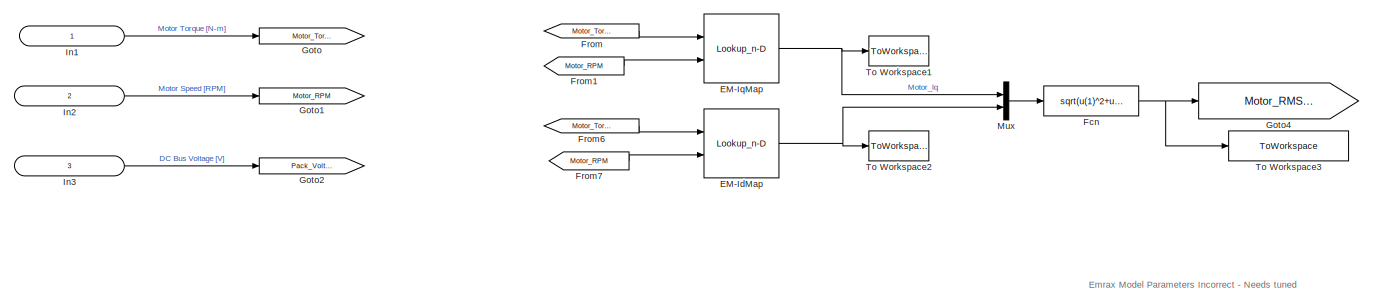
[diagram: Motorcycle Model/Powertrain/Powertrain Thermal - part 1/3, full width, top band]
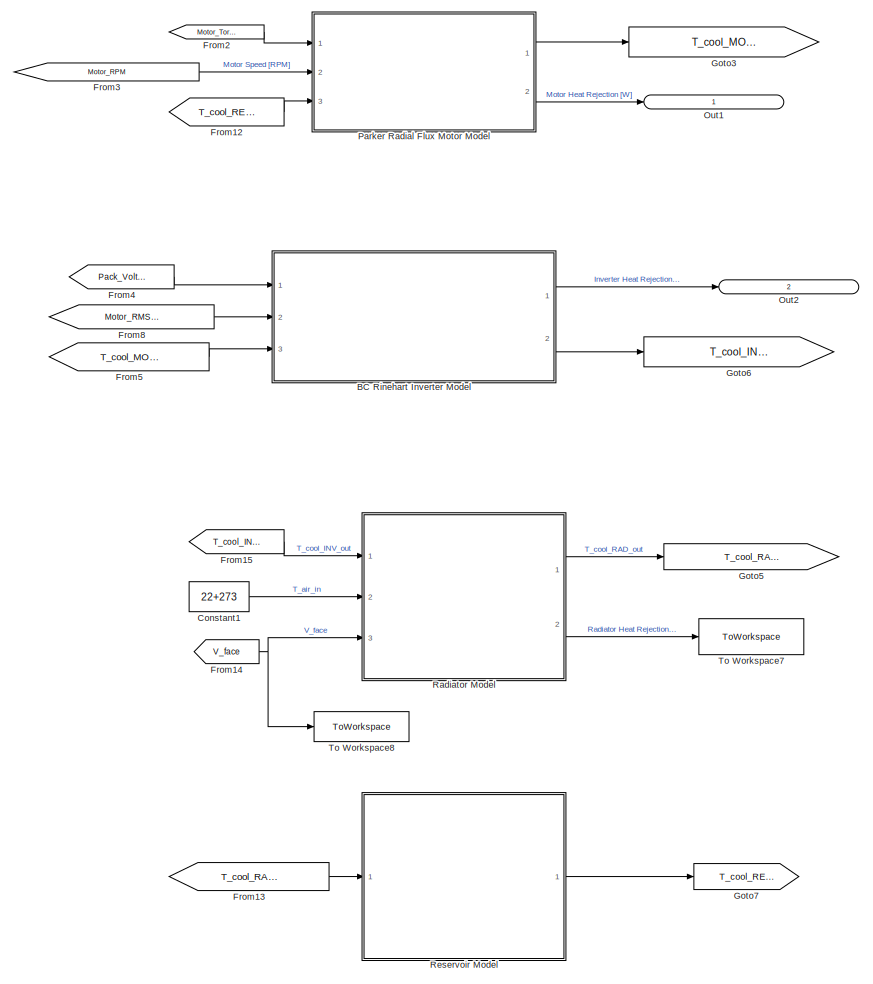
[diagram: Motorcycle Model/Powertrain/Powertrain Thermal - part 2/3, left side, full height]
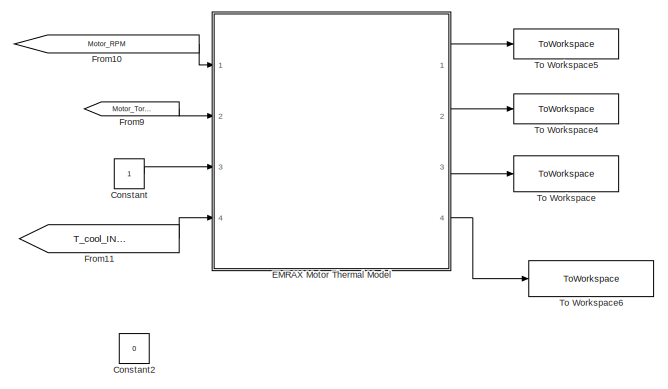
[diagram: Motorcycle Model/Powertrain/Powertrain Thermal - part 3/3, middle right region]
BLOCK [SubSystem] Motorcycle Model/Powertrain/Powertrain Thermal
  Ports = [3, 2]
  RequestExecContextInheritance = off
BLOCK [SubSystem] Motorcycle Model/Powertrain/Powertrain Thermal/BC Rinehart Inverter Model
  Ports = [3, 2]
  RequestExecContextInheritance = off
BLOCK [SubSystem] Motorcycle Model/Powertrain/Powertrain Thermal/BC Rinehart Inverter Model/Coolant Properties
  Ports = [1, 5]
  RequestExecContextInheritance = off
BLOCK [Fcn] Motorcycle Model/Powertrain/Powertrain Thermal/BC Rinehart Inverter Model/Coolant Properties/Density - Coolant
  Expr = 1/(COOLANT.x_g/u(1) + COOLANT.x_g/u(2))
BLOCK [Fcn] Motorcycle Model/Powertrain/Powertrain Thermal/BC Rinehart Inverter Model/Coolant Properties/Density - Glycol
  Expr = 1/(COOLANT.rho_g_a+COOLANT.rho_g_b*u+COOLANT.rho_g_c*u^2)
BLOCK [Fcn] Motorcycle Model/Powertrain/Powertrain Thermal/BC Rinehart Inverter Model/Coolant Properties/Density - Water
  Expr = 1/(COOLANT.rho_w_a+COOLANT.rho_w_b*u+COOLANT.rho_w_c*u^2)
BLOCK [Product] Motorcycle Model/Powertrain/Powertrain Thermal/BC Rinehart Inverter Model/Coolant Properties/Divide
  InputSameDT = off
  Inputs = **/
  OutDataTypeStr = Inherit: Inherit via internal rule
  Ports = [3, 1]
  RndMeth = Floor
  SaturateOnIntegerOverflow = off
BLOCK [Fcn] Motorcycle Model/Powertrain/Powertrain Thermal/BC Rinehart Inverter Model/Coolant Properties/Dynamic Viscosity - Coolant
  Expr = exp(COOLANT.x_g*log(u(1))+(1-COOLANT.x_g)*log(u(2))-COOLANT.x_g*(1-COOLANT.x_g)*u(3))
BLOCK [From] Motorcycle Model/Powertrain/Powertrain Thermal/BC Rinehart Inverter Model/Coolant Properties/From
  GotoTag = rho
BLOCK [From] Motorcycle Model/Powertrain/Powertrain Thermal/BC Rinehart Inverter Model/Coolant Properties/From1
  Commented = on
  GotoTag = rho_g
BLOCK [From] Motorcycle Model/Powertrain/Powertrain Thermal/BC Rinehart Inverter Model/Coolant Properties/From2
  GotoTag = mu
BLOCK [From] Motorcycle Model/Powertrain/Powertrain Thermal/BC Rinehart Inverter Model/Coolant Properties/From3
  GotoTag = cp
BLOCK [From] Motorcycle Model/Powertrain/Powertrain Thermal/BC Rinehart Inverter Model/Coolant Properties/From4
  GotoTag = k
BLOCK [Gain] Motorcycle Model/Powertrain/Powertrain Thermal/BC Rinehart Inverter Model/Coolant Properties/Gain1
  Gain = 1e3
  OutDataTypeStr = Inherit: Inherit via internal rule
  ParamDataTypeStr = Inherit: Inherit via internal rule
  SaturateOnIntegerOverflow = off
BLOCK [Goto] Motorcycle Model/Powertrain/Powertrain Thermal/BC Rinehart Inverter Model/Coolant Properties/Goto
  GotoTag = rho
BLOCK [Goto] Motorcycle Model/Powertrain/Powertrain Thermal/BC Rinehart Inverter Model/Coolant Properties/Goto1
  GotoTag = rho_g
BLOCK [Goto] Motorcycle Model/Powertrain/Powertrain Thermal/BC Rinehart Inverter Model/Coolant Properties/Goto2
  GotoTag = k
BLOCK [Goto] Motorcycle Model/Powertrain/Powertrain Thermal/BC Rinehart Inverter Model/Coolant Properties/Goto3
  GotoTag = cp
BLOCK [Goto] Motorcycle Model/Powertrain/Powertrain Thermal/BC Rinehart Inverter Model/Coolant Properties/Goto4
  GotoTag = mu
BLOCK [Fcn] Motorcycle Model/Powertrain/Powertrain Thermal/BC Rinehart Inverter Model/Coolant Properties/Interaction Parameter
  Expr = -0.8+473/u
BLOCK [Mux] Motorcycle Model/Powertrain/Powertrain Thermal/BC Rinehart Inverter Model/Coolant Properties/Mux
  DisplayOption = bar
  Inputs = 2
  Ports = [2, 1]
BLOCK [Mux] Motorcycle Model/Powertrain/Powertrain Thermal/BC Rinehart Inverter Model/Coolant Properties/Mux1
  DisplayOption = bar
  Inputs = 2
  Ports = [2, 1]
BLOCK [Mux] Motorcycle Model/Powertrain/Powertrain Thermal/BC Rinehart Inverter Model/Coolant Properties/Mux2
  DisplayOption = bar
  Inputs = 3
  Ports = [3, 1]
BLOCK [Mux] Motorcycle Model/Powertrain/Powertrain Thermal/BC Rinehart Inverter Model/Coolant Properties/Mux3
  DisplayOption = bar
  Inputs = 2
  Ports = [2, 1]
BLOCK [Mux] Motorcycle Model/Powertrain/Powertrain Thermal/BC Rinehart Inverter Model/Coolant Properties/Mux4
  DisplayOption = bar
  Ports = [4, 1]
BLOCK [Outport] Motorcycle Model/Powertrain/Powertrain Thermal/BC Rinehart Inverter Model/Coolant Properties/Pr_cool [-]
  IconDisplay = Port number
  Port = 5
BLOCK [Fcn] Motorcycle Model/Powertrain/Powertrain Thermal/BC Rinehart Inverter Model/Coolant Properties/Specific Heat - Coolant
  Expr = (1-COOLANT.x_g)*u(1) + COOLANT.x_g*u(2)
BLOCK [Fcn] Motorcycle Model/Powertrain/Powertrain Thermal/BC Rinehart Inverter Model/Coolant Properties/Specific Heat - Glycol
  Expr = (COOLANT.cp_g_a+COOLANT.cp_g_b*u)
BLOCK [Fcn] Motorcycle Model/Powertrain/Powertrain Thermal/BC Rinehart Inverter Model/Coolant Properties/Specific Heat - Water
  Expr = (COOLANT.cp_w_a+COOLANT.cp_w_b*u)
BLOCK [Inport] Motorcycle Model/Powertrain/Powertrain Thermal/BC Rinehart Inverter Model/Coolant Properties/T_cool [K]
  IconDisplay = Port number
BLOCK [Terminator] Motorcycle Model/Powertrain/Powertrain Thermal/BC Rinehart Inverter Model/Coolant Properties/Terminator
BLOCK [Fcn] Motorcycle Model/Powertrain/Powertrain Thermal/BC Rinehart Inverter Model/Coolant Properties/Thermal Conductivity - Coolant
  Expr = (u(1)^2)*u(3)+2*u(1)*u(2)*(2/(1/u(4)+1/u(3)))+(u(2)^2)*u(4)
BLOCK [Fcn] Motorcycle Model/Powertrain/Powertrain Thermal/BC Rinehart Inverter Model/Coolant Properties/Thermal Conductivity - Glycol
  Expr = COOLANT.K_g_a + COOLANT.K_g_b*u + COOLANT.K_g_c*u^2
BLOCK [Fcn] Motorcycle Model/Powertrain/Powertrain Thermal/BC Rinehart Inverter Model/Coolant Properties/Thermal Conductivity - Water
  Expr = COOLANT.K_w_a + COOLANT.K_w_b*u + COOLANT.K_w_c*u^2
BLOCK [Fcn] Motorcycle Model/Powertrain/Powertrain Thermal/BC Rinehart Inverter Model/Coolant Properties/Viscosity - Glycol
  Expr = exp(COOLANT.mu_g_a + COOLANT.mu_g_b/u + COOLANT.mu_g_c*u + COOLANT.mu_g_d*u^2)
BLOCK [Fcn] Motorcycle Model/Powertrain/Powertrain Thermal/BC Rinehart Inverter Model/Coolant Properties/Viscosity - Water
  Expr = exp(COOLANT.mu_w_a + COOLANT.mu_w_b/u + COOLANT.mu_w_c*u + COOLANT.mu_w_d*u^2)
BLOCK [Outport] Motorcycle Model/Powertrain/Powertrain Thermal/BC Rinehart Inverter Model/Coolant Properties/cp_cool [J//kg-K]
  IconDisplay = Port number
  Port = 2
BLOCK [Outport] Motorcycle Model/Powertrain/Powertrain Thermal/BC Rinehart Inverter Model/Coolant Properties/k_cool [W//m-K]
  IconDisplay = Port number
  Port = 4
BLOCK [Outport] Motorcycle Model/Powertrain/Powertrain Thermal/BC Rinehart Inverter Model/Coolant Properties/mu_cool [N-s//m^2]
  IconDisplay = Port number
  Port = 3
BLOCK [Outport] Motorcycle Model/Powertrain/Powertrain Thermal/BC Rinehart Inverter Model/Coolant Properties/rho_cool [kg//m^3]
  IconDisplay = Port number
BLOCK [Fcn] Motorcycle Model/Powertrain/Powertrain Thermal/BC Rinehart Inverter Model/Coolant Properties/s1
  Expr = COOLANT.x_g/u(2)*u(1)
BLOCK [Fcn] Motorcycle Model/Powertrain/Powertrain Thermal/BC Rinehart Inverter Model/Coolant Properties/s2
  Expr = 1-COOLANT.x_g/u(2)*u(1)
BLOCK [Fcn] Motorcycle Model/Powertrain/Powertrain Thermal/BC Rinehart Inverter Model/Fcn
  Expr = u-273
BLOCK [Fcn] Motorcycle Model/Powertrain/Powertrain Thermal/BC Rinehart Inverter Model/Fcn1
  Expr = u-273
BLOCK [Fcn] Motorcycle Model/Powertrain/Powertrain Thermal/BC Rinehart Inverter Model/Fcn2
  Expr = u+273
BLOCK [Fcn] Motorcycle Model/Powertrain/Powertrain Thermal/BC Rinehart Inverter Model/Fcn3
  Expr = u-273
BLOCK [Goto] Motorcycle Model/Powertrain/Powertrain Thermal/BC Rinehart Inverter Model/Goto1
  GotoTag = INV_cp_cool
  TagVisibility = global
BLOCK [Goto] Motorcycle Model/Powertrain/Powertrain Thermal/BC Rinehart Inverter Model/Goto3
  GotoTag = INV_rho_cool
  TagVisibility = global
BLOCK [Inport] Motorcycle Model/Powertrain/Powertrain Thermal/BC Rinehart Inverter Model/In1
  IconDisplay = Signal name
BLOCK [Inport] Motorcycle Model/Powertrain/Powertrain Thermal/BC Rinehart Inverter Model/In2
  IconDisplay = Signal name
  Port = 2
BLOCK [Inport] Motorcycle Model/Powertrain/Powertrain Thermal/BC Rinehart Inverter Model/In3
  IconDisplay = Signal name
  Port = 3
BLOCK [SubSystem] Motorcycle Model/Powertrain/Powertrain Thermal/BC Rinehart Inverter Model/Inverter Thermal Model
  Ports = [3, 3]
  RequestExecContextInheritance = off
BLOCK [SubSystem] Motorcycle Model/Powertrain/Powertrain Thermal/BC Rinehart Inverter Model/Inverter Thermal Model/Coolant Temp
  Ports = [2, 1]
  RequestExecContextInheritance = off
BLOCK [Product] Motorcycle Model/Powertrain/Powertrain Thermal/BC Rinehart Inverter Model/Inverter Thermal Model/Coolant Temp/Divide
  InputSameDT = off
  Inputs = ***
  OutDataTypeStr = Inherit: Inherit via internal rule
  Ports = [3, 1]
  RndMeth = Floor
  SaturateOnIntegerOverflow = off
BLOCK [Product] Motorcycle Model/Powertrain/Powertrain Thermal/BC Rinehart Inverter Model/Inverter Thermal Model/Coolant Temp/Divide1
  InputSameDT = off
  Inputs = */
  OutDataTypeStr = Inherit: Inherit via internal rule
  Ports = [2, 1]
  RndMeth = Floor
  SaturateOnIntegerOverflow = off
BLOCK [Outport] Motorcycle Model/Powertrain/Powertrain Thermal/BC Rinehart Inverter Model/Inverter Thermal Model/Coolant Temp/Electrical Device Temps
  IconDisplay = Port number and signal name
BLOCK [From] Motorcycle Model/Powertrain/Powertrain Thermal/BC Rinehart Inverter Model/Inverter Thermal Model/Coolant Temp/From
  GotoTag = INV_cp_cool
  TagVisibility = global
BLOCK [From] Motorcycle Model/Powertrain/Powertrain Thermal/BC Rinehart Inverter Model/Inverter Thermal Model/Coolant Temp/From1
  GotoTag = INV_m_dot_cool
  TagVisibility = global
BLOCK [From] Motorcycle Model/Powertrain/Powertrain Thermal/BC Rinehart Inverter Model/Inverter Thermal Model/Coolant Temp/From2
  GotoTag = INV_cp_cool
  TagVisibility = global
BLOCK [Gain] Motorcycle Model/Powertrain/Powertrain Thermal/BC Rinehart Inverter Model/Inverter Thermal Model/Coolant Temp/Gain
  Gain = INV.UA1
  OutDataTypeStr = Inherit: Inherit via internal rule
  ParamDataTypeStr = Inherit: Inherit via internal rule
  SaturateOnIntegerOverflow = off
BLOCK [Gain] Motorcycle Model/Powertrain/Powertrain Thermal/BC Rinehart Inverter Model/Inverter Thermal Model/Coolant Temp/Gain1
  Gain = 1/INV.m_cool
  OutDataTypeStr = Inherit: Inherit via internal rule
  ParamDataTypeStr = Inherit: Inherit via internal rule
  SaturateOnIntegerOverflow = off
BLOCK [Integrator] Motorcycle Model/Powertrain/Powertrain Thermal/BC Rinehart Inverter Model/Inverter Thermal Model/Coolant Temp/Integrator
  InitialCondition = INV.T_cool_out_init
  InitialConditionSource = external
  Ports = [2, 1]
BLOCK [Inport] Motorcycle Model/Powertrain/Powertrain Thermal/BC Rinehart Inverter Model/Inverter Thermal Model/Coolant Temp/Module Case Temp
  IconDisplay = Port number and signal name
BLOCK [Inport] Motorcycle Model/Powertrain/Powertrain Thermal/BC Rinehart Inverter Model/Inverter Thermal Model/Coolant Temp/Module Case Temp1
  IconDisplay = Port number and signal name
  Port = 2
BLOCK [Sum] Motorcycle Model/Powertrain/Powertrain Thermal/BC Rinehart Inverter Model/Inverter Thermal Model/Coolant Temp/Sum
  InputSameDT = off
  Inputs = -+
  OutDataTypeStr = Inherit: Inherit via internal rule
  Ports = [2, 1]
  SaturateOnIntegerOverflow = off
BLOCK [Sum] Motorcycle Model/Powertrain/Powertrain Thermal/BC Rinehart Inverter Model/Inverter Thermal Model/Coolant Temp/Sum1
  InputSameDT = off
  Inputs = -+
  OutDataTypeStr = Inherit: Inherit via internal rule
  Ports = [2, 1]
  SaturateOnIntegerOverflow = off
BLOCK [Sum] Motorcycle Model/Powertrain/Powertrain Thermal/BC Rinehart Inverter Model/Inverter Thermal Model/Coolant Temp/Sum2
  InputSameDT = off
  OutDataTypeStr = Inherit: Inherit via internal rule
  Ports = [2, 1]
  SaturateOnIntegerOverflow = off
BLOCK [Fcn] Motorcycle Model/Powertrain/Powertrain Thermal/BC Rinehart Inverter Model/Inverter Thermal Model/Heat Loss Calc (q_dot)
  Expr = 0.000244*u(1)^1.072*u(2)^1.695+456.4
BLOCK [Inport] Motorcycle Model/Powertrain/Powertrain Thermal/BC Rinehart Inverter Model/Inverter Thermal Model/In1
  IconDisplay = Port number and signal name
BLOCK [Inport] Motorcycle Model/Powertrain/Powertrain Thermal/BC Rinehart Inverter Model/Inverter Thermal Model/In2
  IconDisplay = Port number and signal name
  Port = 2
BLOCK [Inport] Motorcycle Model/Powertrain/Powertrain Thermal/BC Rinehart Inverter Model/Inverter Thermal Model/In3
  IconDisplay = Port number and signal name
  Port = 3
BLOCK [Mux] Motorcycle Model/Powertrain/Powertrain Thermal/BC Rinehart Inverter Model/Inverter Thermal Model/Mux
  DisplayOption = bar
  Inputs = 2
  Ports = [2, 1]
BLOCK [Outport] Motorcycle Model/Powertrain/Powertrain Thermal/BC Rinehart Inverter Model/Inverter Thermal Model/Out1
  IconDisplay = Port number and signal name
BLOCK [Outport] Motorcycle Model/Powertrain/Powertrain Thermal/BC Rinehart Inverter Model/Inverter Thermal Model/Out2
  IconDisplay = Signal name
  Port = 3
BLOCK [Outport] Motorcycle Model/Powertrain/Powertrain Thermal/BC Rinehart Inverter Model/Inverter Thermal Model/Out3
  IconDisplay = Port number and signal name
  Port = 2
BLOCK [SubSystem] Motorcycle Model/Powertrain/Powertrain Thermal/BC Rinehart Inverter Model/Inverter Thermal Model/Switching Module
  Ports = [3, 1]
  RequestExecContextInheritance = off
BLOCK [Outport] Motorcycle Model/Powertrain/Powertrain Thermal/BC Rinehart Inverter Model/Inverter Thermal Model/Switching Module/Electrical Device Temps
  IconDisplay = Port number and signal name
BLOCK [Gain] Motorcycle Model/Powertrain/Powertrain Thermal/BC Rinehart Inverter Model/Inverter Thermal Model/Switching Module/Gain
  Gain = 1/(INV.M1*INV.C1)
  OutDataTypeStr = Inherit: Inherit via internal rule
  ParamDataTypeStr = Inherit: Inherit via internal rule
  SaturateOnIntegerOverflow = off
BLOCK [Gain] Motorcycle Model/Powertrain/Powertrain Thermal/BC Rinehart Inverter Model/Inverter Thermal Model/Switching Module/Gain1
  Gain = INV.UA1
  OutDataTypeStr = Inherit: Inherit via internal rule
  ParamDataTypeStr = Inherit: Inherit via internal rule
  SaturateOnIntegerOverflow = off
BLOCK [Inport] Motorcycle Model/Powertrain/Powertrain Thermal/BC Rinehart Inverter Model/Inverter Thermal Model/Switching Module/Heat Rejection
  IconDisplay = Port number and signal name
BLOCK [Inport] Motorcycle Model/Powertrain/Powertrain Thermal/BC Rinehart Inverter Model/Inverter Thermal Model/Switching Module/In1
  IconDisplay = Port number and signal name
  Port = 3
BLOCK [Integrator] Motorcycle Model/Powertrain/Powertrain Thermal/BC Rinehart Inverter Model/Inverter Thermal Model/Switching Module/Integrator
  InitialCondition = INV.TM_init
  Ports = [1, 1]
BLOCK [Inport] Motorcycle Model/Powertrain/Powertrain Thermal/BC Rinehart Inverter Model/Inverter Thermal Model/Switching Module/Module Case Temp
  IconDisplay = Port number and signal name
  Port = 2
BLOCK [Sum] Motorcycle Model/Powertrain/Powertrain Thermal/BC Rinehart Inverter Model/Inverter Thermal Model/Switching Module/Sum
  InputSameDT = off
  Inputs = +-
  OutDataTypeStr = Inherit: Inherit via internal rule
  Ports = [2, 1]
  SaturateOnIntegerOverflow = off
BLOCK [Sum] Motorcycle Model/Powertrain/Powertrain Thermal/BC Rinehart Inverter Model/Inverter Thermal Model/Switching Module/Sum1
  InputSameDT = off
  Inputs = +-
  OutDataTypeStr = Inherit: Inherit via internal rule
  Ports = [2, 1]
  SaturateOnIntegerOverflow = off
BLOCK [ToWorkspace] Motorcycle Model/Powertrain/Powertrain Thermal/BC Rinehart Inverter Model/Inverter Thermal Model/To Workspace
  FixptAsFi = on
  MaxDataPoints = inf
  Ports = [1]
  SampleTime = -1
  Save2DSignal = 3-D array (concatenate along third dimension)
  VariableName = Inverter_Heat_Rejection_W
BLOCK [Outport] Motorcycle Model/Powertrain/Powertrain Thermal/BC Rinehart Inverter Model/Out1
  IconDisplay = Signal name
BLOCK [Outport] Motorcycle Model/Powertrain/Powertrain Thermal/BC Rinehart Inverter Model/Out2
  IconDisplay = Signal name
  Port = 2
BLOCK [SubSystem] Motorcycle Model/Powertrain/Powertrain Thermal/BC Rinehart Inverter Model/Parameter Definition
  Ports = []
  RequestExecContextInheritance = off
BLOCK [Constant] Motorcycle Model/Powertrain/Powertrain Thermal/BC Rinehart Inverter Model/Parameter Definition/Constant
  Value = INV_m_dot
BLOCK [From] Motorcycle Model/Powertrain/Powertrain Thermal/BC Rinehart Inverter Model/Parameter Definition/From2
  GotoTag = INV_rho_cool
  TagVisibility = global
BLOCK [Goto] Motorcycle Model/Powertrain/Powertrain Thermal/BC Rinehart Inverter Model/Parameter Definition/Goto1
  GotoTag = INV_m_dot_cool
  TagVisibility = global
BLOCK [Product] Motorcycle Model/Powertrain/Powertrain Thermal/BC Rinehart Inverter Model/Parameter Definition/Product2
  InputSameDT = off
  OutDataTypeStr = Inherit: Inherit via internal rule
  Ports = [2, 1]
  RndMeth = Floor
  SaturateOnIntegerOverflow = off
BLOCK [Gain] Motorcycle Model/Powertrain/Powertrain Thermal/BC Rinehart Inverter Model/Parameter Definition/liters//min 2 m^3//s
  Gain = 1.66667e-5
  OutDataTypeStr = Inherit: Inherit via internal rule
  ParamDataTypeStr = Inherit: Inherit via internal rule
  SaturateOnIntegerOverflow = off
BLOCK [Terminator] Motorcycle Model/Powertrain/Powertrain Thermal/BC Rinehart Inverter Model/Terminator
BLOCK [Terminator] Motorcycle Model/Powertrain/Powertrain Thermal/BC Rinehart Inverter Model/Terminator1
BLOCK [Terminator] Motorcycle Model/Powertrain/Powertrain Thermal/BC Rinehart Inverter Model/Terminator2
BLOCK [ToWorkspace] Motorcycle Model/Powertrain/Powertrain Thermal/BC Rinehart Inverter Model/To Workspace
  FixptAsFi = on
  MaxDataPoints = inf
  Ports = [1]
  SampleTime = -1
  Save2DSignal = 3-D array (concatenate along third dimension)
  VariableName = Inverter_T_cool_out_C
BLOCK [ToWorkspace] Motorcycle Model/Powertrain/Powertrain Thermal/BC Rinehart Inverter Model/To Workspace1
  FixptAsFi = on
  MaxDataPoints = inf
  Ports = [1]
  SampleTime = -1
  Save2DSignal = 3-D array (concatenate along third dimension)
  VariableName = Inverter_SwitchingModuleTemp_C
BLOCK [ToWorkspace] Motorcycle Model/Powertrain/Powertrain Thermal/BC Rinehart Inverter Model/To Workspace2
  FixptAsFi = on
  MaxDataPoints = inf
  Ports = [1]
  SampleTime = -1
  Save2DSignal = 3-D array (concatenate along third dimension)
  VariableName = Inverter_T_cool_in_C
BLOCK [ToWorkspace] Motorcycle Model/Powertrain/Powertrain Thermal/BC Rinehart Inverter Model/To Workspace3
  FixptAsFi = on
  MaxDataPoints = inf
  Ports = [1]
  SampleTime = -1
  Save2DSignal = 3-D array (concatenate along third dimension)
  VariableName = Inverter_cp_cool
BLOCK [ToWorkspace] Motorcycle Model/Powertrain/Powertrain Thermal/BC Rinehart Inverter Model/To Workspace4
  FixptAsFi = on
  MaxDataPoints = inf
  Ports = [1]
  SampleTime = -1
  Save2DSignal = 3-D array (concatenate along third dimension)
  VariableName = Inverter_rho_cool
BLOCK [Constant] Motorcycle Model/Powertrain/Powertrain Thermal/Constant
  Commented = on
BLOCK [Constant] Motorcycle Model/Powertrain/Powertrain Thermal/Constant1
  Value = 22+273
BLOCK [Constant] Motorcycle Model/Powertrain/Powertrain Thermal/Constant2
  Commented = on
  Value = 0
BLOCK [Lookup_n-D] Motorcycle Model/Powertrain/Powertrain Thermal/EM-IdMap
  BreakpointsForDimension1 = EM.TorqueLookup
  BreakpointsForDimension2 = EM.RPMLookup
  InternalRulePriority = Speed
  Ports = [2, 1]
  RndMeth = Simplest
  Table = EM.Id_map
BLOCK [Lookup_n-D] Motorcycle Model/Powertrain/Powertrain Thermal/EM-IqMap
  BreakpointsForDimension1 = EM.TorqueLookup
  BreakpointsForDimension2 = EM.RPMLookup
  InternalRulePriority = Speed
  Ports = [2, 1]
  RndMeth = Simplest
  Table = EM.Iq_map
BLOCK [SubSystem] Motorcycle Model/Powertrain/Powertrain Thermal/EMRAX Motor Thermal Model
  Commented = on
  Ports = [4, 4]
  RequestExecContextInheritance = off
BLOCK [SubSystem] Motorcycle Model/Powertrain/Powertrain Thermal/EMRAX Motor Thermal Model/2-Mass Motor Thermal Model
  Ports = [0, 3]
  RequestExecContextInheritance = off
BLOCK [From] Motorcycle Model/Powertrain/Powertrain Thermal/EMRAX Motor Thermal Model/2-Mass Motor Thermal Model/From1
  GotoTag = m_dot_cool
  TagVisibility = scoped
BLOCK [From] Motorcycle Model/Powertrain/Powertrain Thermal/EMRAX Motor Thermal Model/2-Mass Motor Thermal Model/From11
  GotoTag = T_cool_in
  TagVisibility = scoped
BLOCK [From] Motorcycle Model/Powertrain/Powertrain Thermal/EMRAX Motor Thermal Model/2-Mass Motor Thermal Model/From4
  GotoTag = Q_dot
  TagVisibility = scoped
BLOCK [SubSystem] Motorcycle Model/Powertrain/Powertrain Thermal/EMRAX Motor Thermal Model/2-Mass Motor Thermal Model/Mass 1 : Inner Block
  Ports = [4, 2]
  RequestExecContextInheritance = off
BLOCK [From] Motorcycle Model/Powertrain/Powertrain Thermal/EMRAX Motor Thermal Model/2-Mass Motor Thermal Model/Mass 1 : Inner Block/From2
  GotoTag = cp_cool
  TagVisibility = scoped
BLOCK [Gain] Motorcycle Model/Powertrain/Powertrain Thermal/EMRAX Motor Thermal Model/2-Mass Motor Thermal Model/Mass 1 : Inner Block/Gain
  Gain = 1/(MOT.M1*MOT.C1)
  OutDataTypeStr = Inherit: Inherit via internal rule
  ParamDataTypeStr = Inherit: Inherit via internal rule
  SaturateOnIntegerOverflow = off
BLOCK [Gain] Motorcycle Model/Powertrain/Powertrain Thermal/EMRAX Motor Thermal Model/2-Mass Motor Thermal Model/Mass 1 : Inner Block/Gain1
  Gain = MOT.alpha
  OutDataTypeStr = Inherit: Inherit via internal rule
  ParamDataTypeStr = Inherit: Inherit via internal rule
  SaturateOnIntegerOverflow = off
BLOCK [Gain] Motorcycle Model/Powertrain/Powertrain Thermal/EMRAX Motor Thermal Model/2-Mass Motor Thermal Model/Mass 1 : Inner Block/Gain2
  Gain = MOT.UA1
  OutDataTypeStr = Inherit: Inherit via internal rule
  ParamDataTypeStr = Inherit: Inherit via internal rule
  SaturateOnIntegerOverflow = off
BLOCK [Gain] Motorcycle Model/Powertrain/Powertrain Thermal/EMRAX Motor Thermal Model/2-Mass Motor Thermal Model/Mass 1 : Inner Block/Gain5
  Gain = MOT.k12
  OutDataTypeStr = Inherit: Inherit via internal rule
  ParamDataTypeStr = Inherit: Inherit via internal rule
  SaturateOnIntegerOverflow = off
BLOCK [Integrator] Motorcycle Model/Powertrain/Powertrain Thermal/EMRAX Motor Thermal Model/2-Mass Motor Thermal Model/Mass 1 : Inner Block/Integrator
  InitialCondition = MOT.T_init
  Ports = [1, 1]
BLOCK [Product] Motorcycle Model/Powertrain/Powertrain Thermal/EMRAX Motor Thermal Model/2-Mass Motor Thermal Model/Mass 1 : Inner Block/Product1
  InputSameDT = off
  Inputs = *//
  OutDataTypeStr = Inherit: Inherit via internal rule
  Ports = [3, 1]
  RndMeth = Floor
  SaturateOnIntegerOverflow = off
BLOCK [Inport] Motorcycle Model/Powertrain/Powertrain Thermal/EMRAX Motor Thermal Model/2-Mass Motor Thermal Model/Mass 1 : Inner Block/Q_dot_heat [W]
  IconDisplay = Port number
BLOCK [Sum] Motorcycle Model/Powertrain/Powertrain Thermal/EMRAX Motor Thermal Model/2-Mass Motor Thermal Model/Mass 1 : Inner Block/Sum1
  InputSameDT = off
  Inputs = +-
  OutDataTypeStr = Inherit: Inherit via internal rule
  Ports = [2, 1]
  SaturateOnIntegerOverflow = off
BLOCK [Sum] Motorcycle Model/Powertrain/Powertrain Thermal/EMRAX Motor Thermal Model/2-Mass Motor Thermal Model/Mass 1 : Inner Block/Sum2
  InputSameDT = off
  Inputs = +-
  OutDataTypeStr = Inherit: Inherit via internal rule
  Ports = [2, 1]
  SaturateOnIntegerOverflow = off
BLOCK [Sum] Motorcycle Model/Powertrain/Powertrain Thermal/EMRAX Motor Thermal Model/2-Mass Motor Thermal Model/Mass 1 : Inner Block/Sum3
  InputSameDT = off
  Inputs = +--
  OutDataTypeStr = Inherit: Inherit via internal rule
  Ports = [3, 1]
  SaturateOnIntegerOverflow = off
BLOCK [Sum] Motorcycle Model/Powertrain/Powertrain Thermal/EMRAX Motor Thermal Model/2-Mass Motor Thermal Model/Mass 1 : Inner Block/Sum5
  InputSameDT = off
  OutDataTypeStr = Inherit: Inherit via internal rule
  Ports = [2, 1]
  SaturateOnIntegerOverflow = off
BLOCK [Outport] Motorcycle Model/Powertrain/Powertrain Thermal/EMRAX Motor Thermal Model/2-Mass Motor Thermal Model/Mass 1 : Inner Block/T1 [K]
  IconDisplay = Port number
BLOCK [Inport] Motorcycle Model/Powertrain/Powertrain Thermal/EMRAX Motor Thermal Model/2-Mass Motor Thermal Model/Mass 1 : Inner Block/T2 [K]
  IconDisplay = Port number
  Port = 2
BLOCK [Inport] Motorcycle Model/Powertrain/Powertrain Thermal/EMRAX Motor Thermal Model/2-Mass Motor Thermal Model/Mass 1 : Inner Block/T_cool_in [K]
  IconDisplay = Port number
  Port = 3
BLOCK [Outport] Motorcycle Model/Powertrain/Powertrain Thermal/EMRAX Motor Thermal Model/2-Mass Motor Thermal Model/Mass 1 : Inner Block/T_cool_out
  IconDisplay = Port number
  Port = 2
BLOCK [Inport] Motorcycle Model/Powertrain/Powertrain Thermal/EMRAX Motor Thermal Model/2-Mass Motor Thermal Model/Mass 1 : Inner Block/m_dot_cool [kg//s]
  IconDisplay = Port number
  Port = 4
BLOCK [SubSystem] Motorcycle Model/Powertrain/Powertrain Thermal/EMRAX Motor Thermal Model/2-Mass Motor Thermal Model/Mass 2 :Outer Block
  Ports = [2, 1]
  RequestExecContextInheritance = off
BLOCK [From] Motorcycle Model/Powertrain/Powertrain Thermal/EMRAX Motor Thermal Model/2-Mass Motor Thermal Model/Mass 2 :Outer Block/From1
  GotoTag = T_air
  TagVisibility = scoped
BLOCK [Gain] Motorcycle Model/Powertrain/Powertrain Thermal/EMRAX Motor Thermal Model/2-Mass Motor Thermal Model/Mass 2 :Outer Block/Gain
  Gain = 1/(MOT.M1*MOT.C1)
  OutDataTypeStr = Inherit: Inherit via internal rule
  ParamDataTypeStr = Inherit: Inherit via internal rule
  SaturateOnIntegerOverflow = off
BLOCK [Gain] Motorcycle Model/Powertrain/Powertrain Thermal/EMRAX Motor Thermal Model/2-Mass Motor Thermal Model/Mass 2 :Outer Block/Gain1
  Gain = 1-MOT.alpha
  OutDataTypeStr = Inherit: Inherit via internal rule
  ParamDataTypeStr = Inherit: Inherit via internal rule
  SaturateOnIntegerOverflow = off
BLOCK [Gain] Motorcycle Model/Powertrain/Powertrain Thermal/EMRAX Motor Thermal Model/2-Mass Motor Thermal Model/Mass 2 :Outer Block/Gain2
  Gain = MOT.UA2
  OutDataTypeStr = Inherit: Inherit via internal rule
  ParamDataTypeStr = Inherit: Inherit via internal rule
  SaturateOnIntegerOverflow = off
BLOCK [Gain] Motorcycle Model/Powertrain/Powertrain Thermal/EMRAX Motor Thermal Model/2-Mass Motor Thermal Model/Mass 2 :Outer Block/Gain5
  Gain = MOT.k12
  OutDataTypeStr = Inherit: Inherit via internal rule
  ParamDataTypeStr = Inherit: Inherit via internal rule
  SaturateOnIntegerOverflow = off
BLOCK [Integrator] Motorcycle Model/Powertrain/Powertrain Thermal/EMRAX Motor Thermal Model/2-Mass Motor Thermal Model/Mass 2 :Outer Block/Integrator
  InitialCondition = MOT.T_init
  Ports = [1, 1]
BLOCK [Inport] Motorcycle Model/Powertrain/Powertrain Thermal/EMRAX Motor Thermal Model/2-Mass Motor Thermal Model/Mass 2 :Outer Block/Q_dot_heat [W]
  IconDisplay = Port number
BLOCK [Sum] Motorcycle Model/Powertrain/Powertrain Thermal/EMRAX Motor Thermal Model/2-Mass Motor Thermal Model/Mass 2 :Outer Block/Sum1
  InputSameDT = off
  Inputs = +-
  OutDataTypeStr = Inherit: Inherit via internal rule
  Ports = [2, 1]
  SaturateOnIntegerOverflow = off
BLOCK [Sum] Motorcycle Model/Powertrain/Powertrain Thermal/EMRAX Motor Thermal Model/2-Mass Motor Thermal Model/Mass 2 :Outer Block/Sum2
  InputSameDT = off
  Inputs = +-
  OutDataTypeStr = Inherit: Inherit via internal rule
  Ports = [2, 1]
  SaturateOnIntegerOverflow = off
BLOCK [Sum] Motorcycle Model/Powertrain/Powertrain Thermal/EMRAX Motor Thermal Model/2-Mass Motor Thermal Model/Mass 2 :Outer Block/Sum3
  InputSameDT = off
  Inputs = ++-
  OutDataTypeStr = Inherit: Inherit via internal rule
  Ports = [3, 1]
  SaturateOnIntegerOverflow = off
BLOCK [Inport] Motorcycle Model/Powertrain/Powertrain Thermal/EMRAX Motor Thermal Model/2-Mass Motor Thermal Model/Mass 2 :Outer Block/T1
  IconDisplay = Port number
  Port = 2
BLOCK [Outport] Motorcycle Model/Powertrain/Powertrain Thermal/EMRAX Motor Thermal Model/2-Mass Motor Thermal Model/Mass 2 :Outer Block/T2 [K]
  IconDisplay = Port number
BLOCK [Outport] Motorcycle Model/Powertrain/Powertrain Thermal/EMRAX Motor Thermal Model/2-Mass Motor Thermal Model/T1 [K]
  IconDisplay = Port number
BLOCK [Outport] Motorcycle Model/Powertrain/Powertrain Thermal/EMRAX Motor Thermal Model/2-Mass Motor Thermal Model/T2 [K]
  IconDisplay = Port number
  Port = 3
BLOCK [Outport] Motorcycle Model/Powertrain/Powertrain Thermal/EMRAX Motor Thermal Model/2-Mass Motor Thermal Model/T_cool_out [K]
  IconDisplay = Port number
  Port = 2
BLOCK [SubSystem] Motorcycle Model/Powertrain/Powertrain Thermal/EMRAX Motor Thermal Model/Coolant Properties
  Ports = [1, 5]
  RequestExecContextInheritance = off
BLOCK [Fcn] Motorcycle Model/Powertrain/Powertrain Thermal/EMRAX Motor Thermal Model/Coolant Properties/Density - Coolant
  Expr = 1/(COOLANT.x_g/u(1) + COOLANT.x_g/u(2))
BLOCK [Fcn] Motorcycle Model/Powertrain/Powertrain Thermal/EMRAX Motor Thermal Model/Coolant Properties/Density - Glycol
  Expr = 1/(COOLANT.rho_g_a+COOLANT.rho_g_b*u+COOLANT.rho_g_c*u^2)
BLOCK [Fcn] Motorcycle Model/Powertrain/Powertrain Thermal/EMRAX Motor Thermal Model/Coolant Properties/Density - Water
  Expr = 1/(COOLANT.rho_w_a+COOLANT.rho_w_b*u+COOLANT.rho_w_c*u^2)
BLOCK [Product] Motorcycle Model/Powertrain/Powertrain Thermal/EMRAX Motor Thermal Model/Coolant Properties/Divide
  InputSameDT = off
  Inputs = **/
  OutDataTypeStr = Inherit: Inherit via internal rule
  Ports = [3, 1]
  RndMeth = Floor
  SaturateOnIntegerOverflow = off
BLOCK [Fcn] Motorcycle Model/Powertrain/Powertrain Thermal/EMRAX Motor Thermal Model/Coolant Properties/Dynamic Viscosity - Coolant
  Expr = exp(COOLANT.x_g*log(u(1))+(1-COOLANT.x_g)*log(u(2))-COOLANT.x_g*(1-COOLANT.x_g)*u(3))
BLOCK [From] Motorcycle Model/Powertrain/Powertrain Thermal/EMRAX Motor Thermal Model/Coolant Properties/From
  GotoTag = rho
BLOCK [From] Motorcycle Model/Powertrain/Powertrain Thermal/EMRAX Motor Thermal Model/Coolant Properties/From1
  GotoTag = rho_g
BLOCK [From] Motorcycle Model/Powertrain/Powertrain Thermal/EMRAX Motor Thermal Model/Coolant Properties/From2
  GotoTag = mu
BLOCK [From] Motorcycle Model/Powertrain/Powertrain Thermal/EMRAX Motor Thermal Model/Coolant Properties/From3
  GotoTag = cp
BLOCK [From] Motorcycle Model/Powertrain/Powertrain Thermal/EMRAX Motor Thermal Model/Coolant Properties/From4
  GotoTag = k
BLOCK [Gain] Motorcycle Model/Powertrain/Powertrain Thermal/EMRAX Motor Thermal Model/Coolant Properties/Gain1
  Gain = 1e3
  OutDataTypeStr = Inherit: Inherit via internal rule
  ParamDataTypeStr = Inherit: Inherit via internal rule
  SaturateOnIntegerOverflow = off
BLOCK [Goto] Motorcycle Model/Powertrain/Powertrain Thermal/EMRAX Motor Thermal Model/Coolant Properties/Goto
  GotoTag = rho
BLOCK [Goto] Motorcycle Model/Powertrain/Powertrain Thermal/EMRAX Motor Thermal Model/Coolant Properties/Goto1
  GotoTag = rho_g
BLOCK [Goto] Motorcycle Model/Powertrain/Powertrain Thermal/EMRAX Motor Thermal Model/Coolant Properties/Goto2
  GotoTag = k
BLOCK [Goto] Motorcycle Model/Powertrain/Powertrain Thermal/EMRAX Motor Thermal Model/Coolant Properties/Goto3
  GotoTag = cp
BLOCK [Goto] Motorcycle Model/Powertrain/Powertrain Thermal/EMRAX Motor Thermal Model/Coolant Properties/Goto4
  GotoTag = mu
BLOCK [Fcn] Motorcycle Model/Powertrain/Powertrain Thermal/EMRAX Motor Thermal Model/Coolant Properties/Interaction Parameter
  Expr = -0.8+473/u
BLOCK [Mux] Motorcycle Model/Powertrain/Powertrain Thermal/EMRAX Motor Thermal Model/Coolant Properties/Mux
  DisplayOption = bar
  Inputs = 2
  Ports = [2, 1]
BLOCK [Mux] Motorcycle Model/Powertrain/Powertrain Thermal/EMRAX Motor Thermal Model/Coolant Properties/Mux1
  DisplayOption = bar
  Inputs = 2
  Ports = [2, 1]
BLOCK [Mux] Motorcycle Model/Powertrain/Powertrain Thermal/EMRAX Motor Thermal Model/Coolant Properties/Mux2
  DisplayOption = bar
  Inputs = 3
  Ports = [3, 1]
BLOCK [Mux] Motorcycle Model/Powertrain/Powertrain Thermal/EMRAX Motor Thermal Model/Coolant Properties/Mux3
  DisplayOption = bar
  Inputs = 2
  Ports = [2, 1]
BLOCK [Mux] Motorcycle Model/Powertrain/Powertrain Thermal/EMRAX Motor Thermal Model/Coolant Properties/Mux4
  DisplayOption = bar
  Ports = [4, 1]
BLOCK [Outport] Motorcycle Model/Powertrain/Powertrain Thermal/EMRAX Motor Thermal Model/Coolant Properties/Pr_cool [-]
  IconDisplay = Port number
  Port = 5
BLOCK [Fcn] Motorcycle Model/Powertrain/Powertrain Thermal/EMRAX Motor Thermal Model/Coolant Properties/Specific Heat - Coolant
  Expr = (1-COOLANT.x_g)*u(1) + COOLANT.x_g*u(2)
BLOCK [Fcn] Motorcycle Model/Powertrain/Powertrain Thermal/EMRAX Motor Thermal Model/Coolant Properties/Specific Heat - Glycol
  Expr = (COOLANT.cp_g_a+COOLANT.cp_g_b*u)
BLOCK [Fcn] Motorcycle Model/Powertrain/Powertrain Thermal/EMRAX Motor Thermal Model/Coolant Properties/Specific Heat - Water
  Expr = (COOLANT.cp_w_a+COOLANT.cp_w_b*u)
BLOCK [Inport] Motorcycle Model/Powertrain/Powertrain Thermal/EMRAX Motor Thermal Model/Coolant Properties/T_cool [K]
  IconDisplay = Port number
BLOCK [Fcn] Motorcycle Model/Powertrain/Powertrain Thermal/EMRAX Motor Thermal Model/Coolant Properties/Thermal Conductivity - Coolant
  Expr = (u(1)^2)*u(3)+2*u(1)*u(2)*(2/(1/u(4)+1/u(3)))+(u(2)^2)*u(4)
BLOCK [Fcn] Motorcycle Model/Powertrain/Powertrain Thermal/EMRAX Motor Thermal Model/Coolant Properties/Thermal Conductivity - Glycol
  Expr = COOLANT.K_g_a + COOLANT.K_g_b*u + COOLANT.K_g_c*u^2
BLOCK [Fcn] Motorcycle Model/Powertrain/Powertrain Thermal/EMRAX Motor Thermal Model/Coolant Properties/Thermal Conductivity - Water
  Expr = COOLANT.K_w_a + COOLANT.K_w_b*u + COOLANT.K_w_c*u^2
BLOCK [Fcn] Motorcycle Model/Powertrain/Powertrain Thermal/EMRAX Motor Thermal Model/Coolant Properties/Viscosity - Glycol
  Expr = exp(COOLANT.mu_g_a + COOLANT.mu_g_b/u + COOLANT.mu_g_c*u + COOLANT.mu_g_d*u^2)
BLOCK [Fcn] Motorcycle Model/Powertrain/Powertrain Thermal/EMRAX Motor Thermal Model/Coolant Properties/Viscosity - Water
  Expr = exp(COOLANT.mu_w_a + COOLANT.mu_w_b/u + COOLANT.mu_w_c*u + COOLANT.mu_w_d*u^2)
BLOCK [Outport] Motorcycle Model/Powertrain/Powertrain Thermal/EMRAX Motor Thermal Model/Coolant Properties/cp_cool [J//kg-K]
  IconDisplay = Port number
  Port = 2
BLOCK [Outport] Motorcycle Model/Powertrain/Powertrain Thermal/EMRAX Motor Thermal Model/Coolant Properties/k_cool [W//m-K]
  IconDisplay = Port number
  Port = 4
BLOCK [Outport] Motorcycle Model/Powertrain/Powertrain Thermal/EMRAX Motor Thermal Model/Coolant Properties/mu_cool [N-s//m^2]
  IconDisplay = Port number
  Port = 3
BLOCK [Outport] Motorcycle Model/Powertrain/Powertrain Thermal/EMRAX Motor Thermal Model/Coolant Properties/rho_cool [kg//m^3]
  IconDisplay = Port number
BLOCK [Fcn] Motorcycle Model/Powertrain/Powertrain Thermal/EMRAX Motor Thermal Model/Coolant Properties/s1
  Expr = COOLANT.x_g/u(2)*u(1)
BLOCK [Fcn] Motorcycle Model/Powertrain/Powertrain Thermal/EMRAX Motor Thermal Model/Coolant Properties/s2
  Expr = 1-COOLANT.x_g/u(2)*u(1)
BLOCK [Outport] Motorcycle Model/Powertrain/Powertrain Thermal/EMRAX Motor Thermal Model/Emrax Q_dot [W]
  IconDisplay = Port number
  Port = 4
BLOCK [From] Motorcycle Model/Powertrain/Powertrain Thermal/EMRAX Motor Thermal Model/From1
  GotoTag = T_cool_in
  TagVisibility = scoped
BLOCK [GotoTagVisibility] Motorcycle Model/Powertrain/Powertrain Thermal/EMRAX Motor Thermal Model/Goto Tag Visibility1
  GotoTag = T2
BLOCK [GotoTagVisibility] Motorcycle Model/Powertrain/Powertrain Thermal/EMRAX Motor Thermal Model/Goto Tag Visibility14
  GotoTag = m_dot_cool
BLOCK [GotoTagVisibility] Motorcycle Model/Powertrain/Powertrain Thermal/EMRAX Motor Thermal Model/Goto Tag Visibility16
  GotoTag = cp_cool
BLOCK [GotoTagVisibility] Motorcycle Model/Powertrain/Powertrain Thermal/EMRAX Motor Thermal Model/Goto Tag Visibility2
  GotoTag = Q_dot
BLOCK [GotoTagVisibility] Motorcycle Model/Powertrain/Powertrain Thermal/EMRAX Motor Thermal Model/Goto Tag Visibility21
  GotoTag = T1
BLOCK [GotoTagVisibility] Motorcycle Model/Powertrain/Powertrain Thermal/EMRAX Motor Thermal Model/Goto Tag Visibility23
  GotoTag = rho_cool
BLOCK [GotoTagVisibility] Motorcycle Model/Powertrain/Powertrain Thermal/EMRAX Motor Thermal Model/Goto Tag Visibility3
  GotoTag = alpha
BLOCK [GotoTagVisibility] Motorcycle Model/Powertrain/Powertrain Thermal/EMRAX Motor Thermal Model/Goto Tag Visibility4
  GotoTag = T_air
BLOCK [GotoTagVisibility] Motorcycle Model/Powertrain/Powertrain Thermal/EMRAX Motor Thermal Model/Goto Tag Visibility5
  GotoTag = T_cool_in
BLOCK [GotoTagVisibility] Motorcycle Model/Powertrain/Powertrain Thermal/EMRAX Motor Thermal Model/Goto Tag Visibility6
  GotoTag = T_cool_out
BLOCK [Goto] Motorcycle Model/Powertrain/Powertrain Thermal/EMRAX Motor Thermal Model/Goto1
  GotoTag = cp_cool
  TagVisibility = scoped
BLOCK [Goto] Motorcycle Model/Powertrain/Powertrain Thermal/EMRAX Motor Thermal Model/Goto2
  GotoTag = T_cool_out
  TagVisibility = scoped
BLOCK [Goto] Motorcycle Model/Powertrain/Powertrain Thermal/EMRAX Motor Thermal Model/Goto3
  GotoTag = rho_cool
  TagVisibility = scoped
BLOCK [Goto] Motorcycle Model/Powertrain/Powertrain Thermal/EMRAX Motor Thermal Model/Goto5
  GotoTag = T1
  TagVisibility = scoped
BLOCK [Goto] Motorcycle Model/Powertrain/Powertrain Thermal/EMRAX Motor Thermal Model/Goto7
  GotoTag = T2
  TagVisibility = scoped
BLOCK [Inport] Motorcycle Model/Powertrain/Powertrain Thermal/EMRAX Motor Thermal Model/Motor ON Flag [-]
  IconDisplay = Port number
  Port = 3
BLOCK [Inport] Motorcycle Model/Powertrain/Powertrain Thermal/EMRAX Motor Thermal Model/Motor Speed [rpm]
  IconDisplay = Port number
BLOCK [Inport] Motorcycle Model/Powertrain/Powertrain Thermal/EMRAX Motor Thermal Model/Motor Torque [Nm]
  IconDisplay = Port number
  Port = 2
BLOCK [SubSystem] Motorcycle Model/Powertrain/Powertrain Thermal/EMRAX Motor Thermal Model/Parameter Definition
  Ports = [4, 4]
  RequestExecContextInheritance = off
BLOCK [Constant] Motorcycle Model/Powertrain/Powertrain Thermal/EMRAX Motor Thermal Model/Parameter Definition/Constant
  Value = 8
BLOCK [Constant] Motorcycle Model/Powertrain/Powertrain Thermal/EMRAX Motor Thermal Model/Parameter Definition/Constant1
  Value = 293
BLOCK [Constant] Motorcycle Model/Powertrain/Powertrain Thermal/EMRAX Motor Thermal Model/Parameter Definition/Constant4
  Value = 0
BLOCK [Lookup_n-D] Motorcycle Model/Powertrain/Powertrain Thermal/EMRAX Motor Thermal Model/Parameter Definition/Efficiency Map
  BreakpointsForDimension1 = MOT.RPM
  BreakpointsForDimension2 = MOT.Torque
  ExtrapMethod = Clip
  Ports = [2, 1]
  RndMeth = Simplest
  Table = MOT.eta'
  UseLastTableValue = on
BLOCK [Switch] Motorcycle Model/Powertrain/Powertrain Thermal/EMRAX Motor Thermal Model/Parameter Definition/Engine ON 1
  Criteria = u2 > Threshold
  InputSameDT = off
  SaturateOnIntegerOverflow = off
BLOCK [Fcn] Motorcycle Model/Powertrain/Powertrain Thermal/EMRAX Motor Thermal Model/Parameter Definition/Fcn
  Expr = (100-u)/u
BLOCK [From] Motorcycle Model/Powertrain/Powertrain Thermal/EMRAX Motor Thermal Model/Parameter Definition/From1
  GotoTag = T2
  TagVisibility = scoped
BLOCK [From] Motorcycle Model/Powertrain/Powertrain Thermal/EMRAX Motor Thermal Model/Parameter Definition/From2
  GotoTag = rho_cool
  TagVisibility = scoped
BLOCK [From] Motorcycle Model/Powertrain/Powertrain Thermal/EMRAX Motor Thermal Model/Parameter Definition/From3
  GotoTag = T_cool_out
  TagVisibility = scoped
BLOCK [From] Motorcycle Model/Powertrain/Powertrain Thermal/EMRAX Motor Thermal Model/Parameter Definition/From4
  GotoTag = T1
  TagVisibility = scoped
BLOCK [Goto] Motorcycle Model/Powertrain/Powertrain Thermal/EMRAX Motor Thermal Model/Parameter Definition/Goto1
  GotoTag = m_dot_cool
  TagVisibility = scoped
BLOCK [Goto] Motorcycle Model/Powertrain/Powertrain Thermal/EMRAX Motor Thermal Model/Parameter Definition/Goto2
  GotoTag = T_air
  TagVisibility = scoped
BLOCK [Goto] Motorcycle Model/Powertrain/Powertrain Thermal/EMRAX Motor Thermal Model/Parameter Definition/Goto4
  GotoTag = Q_dot
  TagVisibility = scoped
BLOCK [Goto] Motorcycle Model/Powertrain/Powertrain Thermal/EMRAX Motor Thermal Model/Parameter Definition/Goto6
  GotoTag = T_cool_in
  TagVisibility = scoped
BLOCK [Inport] Motorcycle Model/Powertrain/Powertrain Thermal/EMRAX Motor Thermal Model/Parameter Definition/Motor ON Flag [-]
  IconDisplay = Port number
  Port = 3
BLOCK [Inport] Motorcycle Model/Powertrain/Powertrain Thermal/EMRAX Motor Thermal Model/Parameter Definition/Motor Speed [rpm]
  IconDisplay = Port number
BLOCK [Inport] Motorcycle Model/Powertrain/Powertrain Thermal/EMRAX Motor Thermal Model/Parameter Definition/Motor Torque [Nm]
  IconDisplay = Port number
  Port = 2
BLOCK [Outport] Motorcycle Model/Powertrain/Powertrain Thermal/EMRAX Motor Thermal Model/Parameter Definition/Out1
  IconDisplay = Signal name
  Port = 4
BLOCK [Product] Motorcycle Model/Powertrain/Powertrain Thermal/EMRAX Motor Thermal Model/Parameter Definition/Product1
  InputSameDT = off
  Inputs = 3
  OutDataTypeStr = Inherit: Inherit via internal rule
  Ports = [3, 1]
  RndMeth = Floor
  SaturateOnIntegerOverflow = off
BLOCK [Product] Motorcycle Model/Powertrain/Powertrain Thermal/EMRAX Motor Thermal Model/Parameter Definition/Product2
  InputSameDT = off
  OutDataTypeStr = Inherit: Inherit via internal rule
  Ports = [2, 1]
  RndMeth = Floor
  SaturateOnIntegerOverflow = off
BLOCK [Outport] Motorcycle Model/Powertrain/Powertrain Thermal/EMRAX Motor Thermal Model/Parameter Definition/Temp_cool_MOT_out  [K]
  IconDisplay = Port number
  Port = 3
BLOCK [Inport] Motorcycle Model/Powertrain/Powertrain Thermal/EMRAX Motor Thermal Model/Parameter Definition/Temp_cool_RAD_out [K]
  IconDisplay = Port number
  Port = 4
BLOCK [Outport] Motorcycle Model/Powertrain/Powertrain Thermal/EMRAX Motor Thermal Model/Parameter Definition/Temp_mass_1  [K]
  IconDisplay = Port number
BLOCK [Outport] Motorcycle Model/Powertrain/Powertrain Thermal/EMRAX Motor Thermal Model/Parameter Definition/Temp_mass_2  [K]
  IconDisplay = Port number
  Port = 2
BLOCK [Gain] Motorcycle Model/Powertrain/Powertrain Thermal/EMRAX Motor Thermal Model/Parameter Definition/liters//min 2 m^3//s
  Gain = 1.66667e-5
  OutDataTypeStr = Inherit: Inherit via internal rule
  ParamDataTypeStr = Inherit: Inherit via internal rule
  SaturateOnIntegerOverflow = off
BLOCK [Gain] Motorcycle Model/Powertrain/Powertrain Thermal/EMRAX Motor Thermal Model/Parameter Definition/rpm 2 rad//s
  Gain = pi/30
  OutDataTypeStr = Inherit: Inherit via internal rule
  ParamDataTypeStr = Inherit: Inherit via internal rule
  SaturateOnIntegerOverflow = off
BLOCK [Outport] Motorcycle Model/Powertrain/Powertrain Thermal/EMRAX Motor Thermal Model/T_cool_MOT_out [K]
  IconDisplay = Port number
  Port = 3
BLOCK [Outport] Motorcycle Model/Powertrain/Powertrain Thermal/EMRAX Motor Thermal Model/T_mass_1 [K]
  IconDisplay = Port number
BLOCK [Outport] Motorcycle Model/Powertrain/Powertrain Thermal/EMRAX Motor Thermal Model/T_mass_2 [K]
  IconDisplay = Port number
  Port = 2
BLOCK [Inport] Motorcycle Model/Powertrain/Powertrain Thermal/EMRAX Motor Thermal Model/Temp_cool_RAD_out [K]
  IconDisplay = Port number
  Port = 4
BLOCK [Terminator] Motorcycle Model/Powertrain/Powertrain Thermal/EMRAX Motor Thermal Model/Terminator
BLOCK [Terminator] Motorcycle Model/Powertrain/Powertrain Thermal/EMRAX Motor Thermal Model/Terminator1
BLOCK [Terminator] Motorcycle Model/Powertrain/Powertrain Thermal/EMRAX Motor Thermal Model/Terminator2
BLOCK [Fcn] Motorcycle Model/Powertrain/Powertrain Thermal/Fcn
  Expr = sqrt(u(1)^2+u(2)^2)
BLOCK [From] Motorcycle Model/Powertrain/Powertrain Thermal/From
  GotoTag = Motor_Torque
BLOCK [From] Motorcycle Model/Powertrain/Powertrain Thermal/From1
  GotoTag = Motor_RPM
  IconDisplay = Tag and signal name
BLOCK [From] Motorcycle Model/Powertrain/Powertrain Thermal/From10
  Commented = on
  GotoTag = Motor_RPM
  IconDisplay = Tag and signal name
BLOCK [From] Motorcycle Model/Powertrain/Powertrain Thermal/From11
  Commented = on
  GotoTag = T_cool_INV_out
BLOCK [From] Motorcycle Model/Powertrain/Powertrain Thermal/From12
  GotoTag = T_cool_RES_out
BLOCK [From] Motorcycle Model/Powertrain/Powertrain Thermal/From13
  GotoTag = T_cool_RAD_out
BLOCK [From] Motorcycle Model/Powertrain/Powertrain Thermal/From14
  GotoTag = V_face
  TagVisibility = global
BLOCK [From] Motorcycle Model/Powertrain/Powertrain Thermal/From15
  GotoTag = T_cool_INV_out
BLOCK [From] Motorcycle Model/Powertrain/Powertrain Thermal/From2
  GotoTag = Motor_Torque
BLOCK [From] Motorcycle Model/Powertrain/Powertrain Thermal/From3
  GotoTag = Motor_RPM
  IconDisplay = Tag and signal name
BLOCK [From] Motorcycle Model/Powertrain/Powertrain Thermal/From4
  GotoTag = Pack_Voltage
BLOCK [From] Motorcycle Model/Powertrain/Powertrain Thermal/From5
  GotoTag = T_cool_MOT_out
BLOCK [From] Motorcycle Model/Powertrain/Powertrain Thermal/From6
  GotoTag = Motor_Torque
BLOCK [From] Motorcycle Model/Powertrain/Powertrain Thermal/From7
  GotoTag = Motor_RPM
  IconDisplay = Tag and signal name
BLOCK [From] Motorcycle Model/Powertrain/Powertrain Thermal/From8
  GotoTag = Motor_RMScurrent_Arms
BLOCK [From] Motorcycle Model/Powertrain/Powertrain Thermal/From9
  Commented = on
  GotoTag = Motor_Torque
BLOCK [Goto] Motorcycle Model/Powertrain/Powertrain Thermal/Goto
  GotoTag = Motor_Torque
BLOCK [Goto] Motorcycle Model/Powertrain/Powertrain Thermal/Goto1
  GotoTag = Motor_RPM
BLOCK [Goto] Motorcycle Model/Powertrain/Powertrain Thermal/Goto2
  GotoTag = Pack_Voltage
BLOCK [Goto] Motorcycle Model/Powertrain/Powertrain Thermal/Goto3
  GotoTag = T_cool_MOT_out
BLOCK [Goto] Motorcycle Model/Powertrain/Powertrain Thermal/Goto4
  GotoTag = Motor_RMScurrent_Arms
BLOCK [Goto] Motorcycle Model/Powertrain/Powertrain Thermal/Goto5
  GotoTag = T_cool_RAD_out
BLOCK [Goto] Motorcycle Model/Powertrain/Powertrain Thermal/Goto6
  GotoTag = T_cool_INV_out
BLOCK [Goto] Motorcycle Model/Powertrain/Powertrain Thermal/Goto7
  GotoTag = T_cool_RES_out
BLOCK [Inport] Motorcycle Model/Powertrain/Powertrain Thermal/In1
  IconDisplay = Signal name
BLOCK [Inport] Motorcycle Model/Powertrain/Powertrain Thermal/In2
  IconDisplay = Signal name
  Port = 2
BLOCK [Inport] Motorcycle Model/Powertrain/Powertrain Thermal/In3
  IconDisplay = Signal name
  Port = 3
BLOCK [Mux] Motorcycle Model/Powertrain/Powertrain Thermal/Mux
  DisplayOption = bar
  Inputs = 2
  Ports = [2, 1]
BLOCK [Outport] Motorcycle Model/Powertrain/Powertrain Thermal/Out1
  IconDisplay = Signal name
BLOCK [Outport] Motorcycle Model/Powertrain/Powertrain Thermal/Out2
  IconDisplay = Signal name
  Port = 2
BLOCK [SubSystem] Motorcycle Model/Powertrain/Powertrain Thermal/Parker Radial Flux Motor Model
  Ports = [3, 2]
  RequestExecContextInheritance = off
BLOCK [SubSystem] Motorcycle Model/Powertrain/Powertrain Thermal/Parker Radial Flux Motor Model/Coolant Properties
  Ports = [1, 5]
  RequestExecContextInheritance = off
BLOCK [Fcn] Motorcycle Model/Powertrain/Powertrain Thermal/Parker Radial Flux Motor Model/Coolant Properties/Density - Coolant
  Expr = 1/(COOLANT.x_g/u(1) + COOLANT.x_g/u(2))
BLOCK [Fcn] Motorcycle Model/Powertrain/Powertrain Thermal/Parker Radial Flux Motor Model/Coolant Properties/Density - Glycol
  Expr = 1/(COOLANT.rho_g_a+COOLANT.rho_g_b*u+COOLANT.rho_g_c*u^2)
BLOCK [Fcn] Motorcycle Model/Powertrain/Powertrain Thermal/Parker Radial Flux Motor Model/Coolant Properties/Density - Water
  Expr = 1/(COOLANT.rho_w_a+COOLANT.rho_w_b*u+COOLANT.rho_w_c*u^2)
BLOCK [Product] Motorcycle Model/Powertrain/Powertrain Thermal/Parker Radial Flux Motor Model/Coolant Properties/Divide
  InputSameDT = off
  Inputs = **/
  OutDataTypeStr = Inherit: Inherit via internal rule
  Ports = [3, 1]
  RndMeth = Floor
  SaturateOnIntegerOverflow = off
BLOCK [Fcn] Motorcycle Model/Powertrain/Powertrain Thermal/Parker Radial Flux Motor Model/Coolant Properties/Dynamic Viscosity - Coolant
  Expr = exp(COOLANT.x_g*log(u(1))+(1-COOLANT.x_g)*log(u(2))-COOLANT.x_g*(1-COOLANT.x_g)*u(3))
BLOCK [From] Motorcycle Model/Powertrain/Powertrain Thermal/Parker Radial Flux Motor Model/Coolant Properties/From
  GotoTag = rho
BLOCK [From] Motorcycle Model/Powertrain/Powertrain Thermal/Parker Radial Flux Motor Model/Coolant Properties/From1
  Commented = on
  GotoTag = rho_g
BLOCK [From] Motorcycle Model/Powertrain/Powertrain Thermal/Parker Radial Flux Motor Model/Coolant Properties/From2
  GotoTag = mu
BLOCK [From] Motorcycle Model/Powertrain/Powertrain Thermal/Parker Radial Flux Motor Model/Coolant Properties/From3
  GotoTag = cp
BLOCK [From] Motorcycle Model/Powertrain/Powertrain Thermal/Parker Radial Flux Motor Model/Coolant Properties/From4
  GotoTag = k
BLOCK [Gain] Motorcycle Model/Powertrain/Powertrain Thermal/Parker Radial Flux Motor Model/Coolant Properties/Gain1
  Gain = 1e3
  OutDataTypeStr = Inherit: Inherit via internal rule
  ParamDataTypeStr = Inherit: Inherit via internal rule
  SaturateOnIntegerOverflow = off
BLOCK [Goto] Motorcycle Model/Powertrain/Powertrain Thermal/Parker Radial Flux Motor Model/Coolant Properties/Goto
  GotoTag = rho
BLOCK [Goto] Motorcycle Model/Powertrain/Powertrain Thermal/Parker Radial Flux Motor Model/Coolant Properties/Goto2
  GotoTag = k
BLOCK [Goto] Motorcycle Model/Powertrain/Powertrain Thermal/Parker Radial Flux Motor Model/Coolant Properties/Goto3
  GotoTag = cp
BLOCK [Goto] Motorcycle Model/Powertrain/Powertrain Thermal/Parker Radial Flux Motor Model/Coolant Properties/Goto4
  GotoTag = mu
BLOCK [Goto] Motorcycle Model/Powertrain/Powertrain Thermal/Parker Radial Flux Motor Model/Coolant Properties/Goto5
  Commented = on
  GotoTag = rho_g
BLOCK [Fcn] Motorcycle Model/Powertrain/Powertrain Thermal/Parker Radial Flux Motor Model/Coolant Properties/Interaction Parameter
  Expr = -0.8+473/u
BLOCK [Mux] Motorcycle Model/Powertrain/Powertrain Thermal/Parker Radial Flux Motor Model/Coolant Properties/Mux
  DisplayOption = bar
  Inputs = 2
  Ports = [2, 1]
BLOCK [Mux] Motorcycle Model/Powertrain/Powertrain Thermal/Parker Radial Flux Motor Model/Coolant Properties/Mux1
  DisplayOption = bar
  Inputs = 2
  Ports = [2, 1]
BLOCK [Mux] Motorcycle Model/Powertrain/Powertrain Thermal/Parker Radial Flux Motor Model/Coolant Properties/Mux2
  DisplayOption = bar
  Inputs = 3
  Ports = [3, 1]
BLOCK [Mux] Motorcycle Model/Powertrain/Powertrain Thermal/Parker Radial Flux Motor Model/Coolant Properties/Mux3
  DisplayOption = bar
  Inputs = 2
  Ports = [2, 1]
BLOCK [Mux] Motorcycle Model/Powertrain/Powertrain Thermal/Parker Radial Flux Motor Model/Coolant Properties/Mux4
  DisplayOption = bar
  Ports = [4, 1]
BLOCK [Outport] Motorcycle Model/Powertrain/Powertrain Thermal/Parker Radial Flux Motor Model/Coolant Properties/Pr_cool [-]
  IconDisplay = Port number
  Port = 5
BLOCK [Fcn] Motorcycle Model/Powertrain/Powertrain Thermal/Parker Radial Flux Motor Model/Coolant Properties/Specific Heat - Coolant
  Expr = (1-COOLANT.x_g)*u(1) + COOLANT.x_g*u(2)
BLOCK [Fcn] Motorcycle Model/Powertrain/Powertrain Thermal/Parker Radial Flux Motor Model/Coolant Properties/Specific Heat - Glycol
  Expr = (COOLANT.cp_g_a+COOLANT.cp_g_b*u)
BLOCK [Fcn] Motorcycle Model/Powertrain/Powertrain Thermal/Parker Radial Flux Motor Model/Coolant Properties/Specific Heat - Water
  Expr = (COOLANT.cp_w_a+COOLANT.cp_w_b*u)
BLOCK [Inport] Motorcycle Model/Powertrain/Powertrain Thermal/Parker Radial Flux Motor Model/Coolant Properties/T_cool [K]
  IconDisplay = Port number
BLOCK [Terminator] Motorcycle Model/Powertrain/Powertrain Thermal/Parker Radial Flux Motor Model/Coolant Properties/Terminator
BLOCK [Fcn] Motorcycle Model/Powertrain/Powertrain Thermal/Parker Radial Flux Motor Model/Coolant Properties/Thermal Conductivity - Coolant
  Expr = (u(1)^2)*u(3)+2*u(1)*u(2)*(2/(1/u(4)+1/u(3)))+(u(2)^2)*u(4)
BLOCK [Fcn] Motorcycle Model/Powertrain/Powertrain Thermal/Parker Radial Flux Motor Model/Coolant Properties/Thermal Conductivity - Glycol
  Expr = COOLANT.K_g_a + COOLANT.K_g_b*u + COOLANT.K_g_c*u^2
BLOCK [Fcn] Motorcycle Model/Powertrain/Powertrain Thermal/Parker Radial Flux Motor Model/Coolant Properties/Thermal Conductivity - Water
  Expr = COOLANT.K_w_a + COOLANT.K_w_b*u + COOLANT.K_w_c*u^2
BLOCK [Fcn] Motorcycle Model/Powertrain/Powertrain Thermal/Parker Radial Flux Motor Model/Coolant Properties/Viscosity - Glycol
  Expr = exp(COOLANT.mu_g_a + COOLANT.mu_g_b/u + COOLANT.mu_g_c*u + COOLANT.mu_g_d*u^2)
BLOCK [Fcn] Motorcycle Model/Powertrain/Powertrain Thermal/Parker Radial Flux Motor Model/Coolant Properties/Viscosity - Water
  Expr = exp(COOLANT.mu_w_a + COOLANT.mu_w_b/u + COOLANT.mu_w_c*u + COOLANT.mu_w_d*u^2)
BLOCK [Outport] Motorcycle Model/Powertrain/Powertrain Thermal/Parker Radial Flux Motor Model/Coolant Properties/cp_cool [J//kg-K]
  IconDisplay = Port number
  Port = 2
BLOCK [Outport] Motorcycle Model/Powertrain/Powertrain Thermal/Parker Radial Flux Motor Model/Coolant Properties/k_cool [W//m-K]
  IconDisplay = Port number
  Port = 4
BLOCK [Outport] Motorcycle Model/Powertrain/Powertrain Thermal/Parker Radial Flux Motor Model/Coolant Properties/mu_cool [N-s//m^2]
  IconDisplay = Port number
  Port = 3
BLOCK [Outport] Motorcycle Model/Powertrain/Powertrain Thermal/Parker Radial Flux Motor Model/Coolant Properties/rho_cool [kg//m^3]
  IconDisplay = Port number
BLOCK [Fcn] Motorcycle Model/Powertrain/Powertrain Thermal/Parker Radial Flux Motor Model/Coolant Properties/s1
  Expr = COOLANT.x_g/u(2)*u(1)
BLOCK [Fcn] Motorcycle Model/Powertrain/Powertrain Thermal/Parker Radial Flux Motor Model/Coolant Properties/s2
  Expr = 1-COOLANT.x_g/u(2)*u(1)
BLOCK [Fcn] Motorcycle Model/Powertrain/Powertrain Thermal/Parker Radial Flux Motor Model/Fcn
  Expr = u-273
BLOCK [Fcn] Motorcycle Model/Powertrain/Powertrain Thermal/Parker Radial Flux Motor Model/Fcn1
  Expr = u+273
BLOCK [Fcn] Motorcycle Model/Powertrain/Powertrain Thermal/Parker Radial Flux Motor Model/Fcn3
  Expr = u-273
BLOCK [Goto] Motorcycle Model/Powertrain/Powertrain Thermal/Parker Radial Flux Motor Model/Goto1
  GotoTag = MOT_cp_cool
  TagVisibility = global
BLOCK [Goto] Motorcycle Model/Powertrain/Powertrain Thermal/Parker Radial Flux Motor Model/Goto3
  GotoTag = MOT_rho_cool
  TagVisibility = global
BLOCK [Inport] Motorcycle Model/Powertrain/Powertrain Thermal/Parker Radial Flux Motor Model/In1
  IconDisplay = Signal name
BLOCK [Inport] Motorcycle Model/Powertrain/Powertrain Thermal/Parker Radial Flux Motor Model/In2
  IconDisplay = Signal name
  Port = 2
BLOCK [Inport] Motorcycle Model/Powertrain/Powertrain Thermal/Parker Radial Flux Motor Model/In3
  IconDisplay = Signal name
  Port = 3
BLOCK [SubSystem] Motorcycle Model/Powertrain/Powertrain Thermal/Parker Radial Flux Motor Model/Motor Thermal Model
  Ports = [3, 2]
  RequestExecContextInheritance = off
BLOCK [Lookup_n-D] Motorcycle Model/Powertrain/Powertrain Thermal/Parker Radial Flux Motor Model/Motor Thermal Model/1-D Lookup Table
  BreakpointsForDimension1 = MOT.RPM
  InternalRulePriority = Speed
  NumberOfTableDimensions = 1
  Ports = [1, 1]
  RndMeth = Simplest
  Table = MOT.UApc
BLOCK [Lookup_n-D] Motorcycle Model/Powertrain/Powertrain Thermal/Parker Radial Flux Motor Model/Motor Thermal Model/1-D Lookup Table1
  BreakpointsForDimension1 = MOT.RPM
  InternalRulePriority = Speed
  NumberOfTableDimensions = 1
  Ports = [1, 1]
  RndMeth = Simplest
  Table = MOT.alpha
BLOCK [Lookup_n-D] Motorcycle Model/Powertrain/Powertrain Thermal/Parker Radial Flux Motor Model/Motor Thermal Model/1-D Lookup Table2
  BreakpointsForDimension1 = MOT.RPM
  InternalRulePriority = Speed
  NumberOfTableDimensions = 1
  Ports = [1, 1]
  RndMeth = Simplest
  Table = MOT.q_dot_ss
BLOCK [Lookup_n-D] Motorcycle Model/Powertrain/Powertrain Thermal/Parker Radial Flux Motor Model/Motor Thermal Model/2-D Lookup Table
  BreakpointsForDimension1 = EM.TorqueLookup
  BreakpointsForDimension2 = EM.RPMLookup
  InternalRulePriority = Speed
  Ports = [2, 1]
  RndMeth = Simplest
  Table = EM.Losses_map
BLOCK [SubSystem] Motorcycle Model/Powertrain/Powertrain Thermal/Parker Radial Flux Motor Model/Motor Thermal Model/Coolant Temp
  Ports = [2, 1]
  RequestExecContextInheritance = off
BLOCK [Product] Motorcycle Model/Powertrain/Powertrain Thermal/Parker Radial Flux Motor Model/Motor Thermal Model/Coolant Temp/Divide
  InputSameDT = off
  Inputs = ***
  OutDataTypeStr = Inherit: Inherit via internal rule
  Ports = [3, 1]
  RndMeth = Floor
  SaturateOnIntegerOverflow = off
BLOCK [Product] Motorcycle Model/Powertrain/Powertrain Thermal/Parker Radial Flux Motor Model/Motor Thermal Model/Coolant Temp/Divide1
  InputSameDT = off
  Inputs = */
  OutDataTypeStr = Inherit: Inherit via internal rule
  Ports = [2, 1]
  RndMeth = Floor
  SaturateOnIntegerOverflow = off
BLOCK [Outport] Motorcycle Model/Powertrain/Powertrain Thermal/Parker Radial Flux Motor Model/Motor Thermal Model/Coolant Temp/Electrical Device Temps
  IconDisplay = Port number and signal name
BLOCK [From] Motorcycle Model/Powertrain/Powertrain Thermal/Parker Radial Flux Motor Model/Motor Thermal Model/Coolant Temp/From
  GotoTag = MOT_cp_cool
  TagVisibility = global
BLOCK [From] Motorcycle Model/Powertrain/Powertrain Thermal/Parker Radial Flux Motor Model/Motor Thermal Model/Coolant Temp/From1
  GotoTag = MOT_m_dot_cool
  TagVisibility = global
BLOCK [From] Motorcycle Model/Powertrain/Powertrain Thermal/Parker Radial Flux Motor Model/Motor Thermal Model/Coolant Temp/From2
  GotoTag = MOT_cp_cool
  TagVisibility = global
BLOCK [Gain] Motorcycle Model/Powertrain/Powertrain Thermal/Parker Radial Flux Motor Model/Motor Thermal Model/Coolant Temp/Gain
  Gain = MOT.UAch
  OutDataTypeStr = Inherit: Inherit via internal rule
  ParamDataTypeStr = Inherit: Inherit via internal rule
  SaturateOnIntegerOverflow = off
BLOCK [Gain] Motorcycle Model/Powertrain/Powertrain Thermal/Parker Radial Flux Motor Model/Motor Thermal Model/Coolant Temp/Gain1
  Gain = 1/MOT.m_cool
  OutDataTypeStr = Inherit: Inherit via internal rule
  ParamDataTypeStr = Inherit: Inherit via internal rule
  SaturateOnIntegerOverflow = off
BLOCK [Integrator] Motorcycle Model/Powertrain/Powertrain Thermal/Parker Radial Flux Motor Model/Motor Thermal Model/Coolant Temp/Integrator
  InitialCondition = MOT.T_cool_out_init
  InitialConditionSource = external
  Ports = [2, 1]
BLOCK [Inport] Motorcycle Model/Powertrain/Powertrain Thermal/Parker Radial Flux Motor Model/Motor Thermal Model/Coolant Temp/Module Case Temp
  IconDisplay = Port number and signal name
BLOCK [Inport] Motorcycle Model/Powertrain/Powertrain Thermal/Parker Radial Flux Motor Model/Motor Thermal Model/Coolant Temp/Module Case Temp1
  IconDisplay = Port number and signal name
  Port = 2
BLOCK [Sum] Motorcycle Model/Powertrain/Powertrain Thermal/Parker Radial Flux Motor Model/Motor Thermal Model/Coolant Temp/Sum
  InputSameDT = off
  Inputs = -+
  OutDataTypeStr = Inherit: Inherit via internal rule
  Ports = [2, 1]
  SaturateOnIntegerOverflow = off
BLOCK [Sum] Motorcycle Model/Powertrain/Powertrain Thermal/Parker Radial Flux Motor Model/Motor Thermal Model/Coolant Temp/Sum1
  InputSameDT = off
  Inputs = -+
  OutDataTypeStr = Inherit: Inherit via internal rule
  Ports = [2, 1]
  SaturateOnIntegerOverflow = off
BLOCK [Sum] Motorcycle Model/Powertrain/Powertrain Thermal/Parker Radial Flux Motor Model/Motor Thermal Model/Coolant Temp/Sum2
  InputSameDT = off
  OutDataTypeStr = Inherit: Inherit via internal rule
  Ports = [2, 1]
  SaturateOnIntegerOverflow = off
BLOCK [Inport] Motorcycle Model/Powertrain/Powertrain Thermal/Parker Radial Flux Motor Model/Motor Thermal Model/In1
  IconDisplay = Port number and signal name
BLOCK [Inport] Motorcycle Model/Powertrain/Powertrain Thermal/Parker Radial Flux Motor Model/Motor Thermal Model/In2
  IconDisplay = Port number and signal name
  Port = 2
BLOCK [Inport] Motorcycle Model/Powertrain/Powertrain Thermal/Parker Radial Flux Motor Model/Motor Thermal Model/In3
  IconDisplay = Port number and signal name
  Port = 3
BLOCK [SubSystem] Motorcycle Model/Powertrain/Powertrain Thermal/Parker Radial Flux Motor Model/Motor Thermal Model/Motor Thermal Model (3 thermal nodes)
  Ports = [5, 1]
  RequestExecContextInheritance = off
BLOCK [Fcn] Motorcycle Model/Powertrain/Powertrain Thermal/Parker Radial Flux Motor Model/Motor Thermal Model/Motor Thermal Model (3 thermal nodes)/Fcn1
  Expr = u-273
BLOCK [Fcn] Motorcycle Model/Powertrain/Powertrain Thermal/Parker Radial Flux Motor Model/Motor Thermal Model/Motor Thermal Model (3 thermal nodes)/Fcn2
  Expr = u-273
BLOCK [Fcn] Motorcycle Model/Powertrain/Powertrain Thermal/Parker Radial Flux Motor Model/Motor Thermal Model/Motor Thermal Model (3 thermal nodes)/Fcn3
  Expr = u-273
BLOCK [From] Motorcycle Model/Powertrain/Powertrain Thermal/Parker Radial Flux Motor Model/Motor Thermal Model/Motor Thermal Model (3 thermal nodes)/From
  GotoTag = q_dot_ss
BLOCK [From] Motorcycle Model/Powertrain/Powertrain Thermal/Parker Radial Flux Motor Model/Motor Thermal Model/Motor Thermal Model (3 thermal nodes)/From1
  GotoTag = UApc
BLOCK [From] Motorcycle Model/Powertrain/Powertrain Thermal/Parker Radial Flux Motor Model/Motor Thermal Model/Motor Thermal Model (3 thermal nodes)/From10
  GotoTag = Tc
BLOCK [From] Motorcycle Model/Powertrain/Powertrain Thermal/Parker Radial Flux Motor Model/Motor Thermal Model/Motor Thermal Model (3 thermal nodes)/From11
  GotoTag = Ts
BLOCK [From] Motorcycle Model/Powertrain/Powertrain Thermal/Parker Radial Flux Motor Model/Motor Thermal Model/Motor Thermal Model (3 thermal nodes)/From12
  GotoTag = Tp
BLOCK [From] Motorcycle Model/Powertrain/Powertrain Thermal/Parker Radial Flux Motor Model/Motor Thermal Model/Motor Thermal Model (3 thermal nodes)/From2
  GotoTag = alpha
BLOCK [From] Motorcycle Model/Powertrain/Powertrain Thermal/Parker Radial Flux Motor Model/Motor Thermal Model/Motor Thermal Model (3 thermal nodes)/From3
  GotoTag = Tp
BLOCK [From] Motorcycle Model/Powertrain/Powertrain Thermal/Parker Radial Flux Motor Model/Motor Thermal Model/Motor Thermal Model (3 thermal nodes)/From4
  GotoTag = q_dot_ss
BLOCK [From] Motorcycle Model/Powertrain/Powertrain Thermal/Parker Radial Flux Motor Model/Motor Thermal Model/Motor Thermal Model (3 thermal nodes)/From5
  GotoTag = alpha
BLOCK [From] Motorcycle Model/Powertrain/Powertrain Thermal/Parker Radial Flux Motor Model/Motor Thermal Model/Motor Thermal Model (3 thermal nodes)/From6
  GotoTag = Ts
BLOCK [From] Motorcycle Model/Powertrain/Powertrain Thermal/Parker Radial Flux Motor Model/Motor Thermal Model/Motor Thermal Model (3 thermal nodes)/From7
  GotoTag = Tc
BLOCK [From] Motorcycle Model/Powertrain/Powertrain Thermal/Parker Radial Flux Motor Model/Motor Thermal Model/Motor Thermal Model (3 thermal nodes)/From8
  GotoTag = Tc
BLOCK [From] Motorcycle Model/Powertrain/Powertrain Thermal/Parker Radial Flux Motor Model/Motor Thermal Model/Motor Thermal Model (3 thermal nodes)/From9
  GotoTag = UApc
BLOCK [Goto] Motorcycle Model/Powertrain/Powertrain Thermal/Parker Radial Flux Motor Model/Motor Thermal Model/Motor Thermal Model (3 thermal nodes)/Goto
  GotoTag = q_dot_ss
BLOCK [Goto] Motorcycle Model/Powertrain/Powertrain Thermal/Parker Radial Flux Motor Model/Motor Thermal Model/Motor Thermal Model (3 thermal nodes)/Goto1
  GotoTag = UApc
BLOCK [Goto] Motorcycle Model/Powertrain/Powertrain Thermal/Parker Radial Flux Motor Model/Motor Thermal Model/Motor Thermal Model (3 thermal nodes)/Goto2
  GotoTag = alpha
BLOCK [Goto] Motorcycle Model/Powertrain/Powertrain Thermal/Parker Radial Flux Motor Model/Motor Thermal Model/Motor Thermal Model (3 thermal nodes)/Goto3
  GotoTag = Tp
BLOCK [Goto] Motorcycle Model/Powertrain/Powertrain Thermal/Parker Radial Flux Motor Model/Motor Thermal Model/Motor Thermal Model (3 thermal nodes)/Goto4
  GotoTag = Ts
BLOCK [Goto] Motorcycle Model/Powertrain/Powertrain Thermal/Parker Radial Flux Motor Model/Motor Thermal Model/Motor Thermal Model (3 thermal nodes)/Goto5
  GotoTag = Tc
BLOCK [Inport] Motorcycle Model/Powertrain/Powertrain Thermal/Parker Radial Flux Motor Model/Motor Thermal Model/Motor Thermal Model (3 thermal nodes)/Heat Rejection
  IconDisplay = Port number and signal name
BLOCK [Inport] Motorcycle Model/Powertrain/Powertrain Thermal/Parker Radial Flux Motor Model/Motor Thermal Model/Motor Thermal Model (3 thermal nodes)/In1
  IconDisplay = Port number and signal name
  Port = 5
BLOCK [Inport] Motorcycle Model/Powertrain/Powertrain Thermal/Parker Radial Flux Motor Model/Motor Thermal Model/Motor Thermal Model (3 thermal nodes)/In2
  IconDisplay = Signal name
  Port = 2
BLOCK [Inport] Motorcycle Model/Powertrain/Powertrain Thermal/Parker Radial Flux Motor Model/Motor Thermal Model/Motor Thermal Model (3 thermal nodes)/In3
  IconDisplay = Signal name
  Port = 3
BLOCK [Inport] Motorcycle Model/Powertrain/Powertrain Thermal/Parker Radial Flux Motor Model/Motor Thermal Model/Motor Thermal Model (3 thermal nodes)/In4
  IconDisplay = Signal name
  Port = 4
BLOCK [Outport] Motorcycle Model/Powertrain/Powertrain Thermal/Parker Radial Flux Motor Model/Motor Thermal Model/Motor Thermal Model (3 thermal nodes)/Out1
  IconDisplay = Signal name
BLOCK [SubSystem] Motorcycle Model/Powertrain/Powertrain Thermal/Parker Radial Flux Motor Model/Motor Thermal Model/Motor Thermal Model (3 thermal nodes)/PM Thermal Node
  Ports = [5, 1]
  RequestExecContextInheritance = off
BLOCK [Fcn] Motorcycle Model/Powertrain/Powertrain Thermal/Parker Radial Flux Motor Model/Motor Thermal Model/Motor Thermal Model (3 thermal nodes)/PM Thermal Node/Fcn
  Expr = 1-u(1)
BLOCK [Gain] Motorcycle Model/Powertrain/Powertrain Thermal/Parker Radial Flux Motor Model/Motor Thermal Model/Motor Thermal Model (3 thermal nodes)/PM Thermal Node/Gain
  Gain = 1/(MOT.MpCp)
  OutDataTypeStr = Inherit: Inherit via internal rule
  ParamDataTypeStr = Inherit: Inherit via internal rule
  SaturateOnIntegerOverflow = off
BLOCK [Inport] Motorcycle Model/Powertrain/Powertrain Thermal/Parker Radial Flux Motor Model/Motor Thermal Model/Motor Thermal Model (3 thermal nodes)/PM Thermal Node/In1
  IconDisplay = Signal name
BLOCK [Inport] Motorcycle Model/Powertrain/Powertrain Thermal/Parker Radial Flux Motor Model/Motor Thermal Model/Motor Thermal Model (3 thermal nodes)/PM Thermal Node/In2
  IconDisplay = Signal name
  Port = 2
BLOCK [Inport] Motorcycle Model/Powertrain/Powertrain Thermal/Parker Radial Flux Motor Model/Motor Thermal Model/Motor Thermal Model (3 thermal nodes)/PM Thermal Node/In3
  IconDisplay = Signal name
  Port = 3
BLOCK [Inport] Motorcycle Model/Powertrain/Powertrain Thermal/Parker Radial Flux Motor Model/Motor Thermal Model/Motor Thermal Model (3 thermal nodes)/PM Thermal Node/In4
  IconDisplay = Signal name
  Port = 4
BLOCK [Inport] Motorcycle Model/Powertrain/Powertrain Thermal/Parker Radial Flux Motor Model/Motor Thermal Model/Motor Thermal Model (3 thermal nodes)/PM Thermal Node/In5
  IconDisplay = Signal name
  Port = 5
BLOCK [Integrator] Motorcycle Model/Powertrain/Powertrain Thermal/Parker Radial Flux Motor Model/Motor Thermal Model/Motor Thermal Model (3 thermal nodes)/PM Thermal Node/Integrator
  InitialCondition = MOT.Tp_init
  Ports = [1, 1]
BLOCK [Product] Motorcycle Model/Powertrain/Powertrain Thermal/Parker Radial Flux Motor Model/Motor Thermal Model/Motor Thermal Model (3 thermal nodes)/PM Thermal Node/Product
  InputSameDT = off
  OutDataTypeStr = Inherit: Inherit via internal rule
  Ports = [2, 1]
  RndMeth = Floor
  SaturateOnIntegerOverflow = off
BLOCK [Product] Motorcycle Model/Powertrain/Powertrain Thermal/Parker Radial Flux Motor Model/Motor Thermal Model/Motor Thermal Model (3 thermal nodes)/PM Thermal Node/Product1
  InputSameDT = off
  OutDataTypeStr = Inherit: Inherit via internal rule
  Ports = [2, 1]
  RndMeth = Floor
  SaturateOnIntegerOverflow = off
BLOCK [Sum] Motorcycle Model/Powertrain/Powertrain Thermal/Parker Radial Flux Motor Model/Motor Thermal Model/Motor Thermal Model (3 thermal nodes)/PM Thermal Node/Sum
  InputSameDT = off
  Inputs = +-
  OutDataTypeStr = Inherit: Inherit via internal rule
  Ports = [2, 1]
  SaturateOnIntegerOverflow = off
BLOCK [Sum] Motorcycle Model/Powertrain/Powertrain Thermal/Parker Radial Flux Motor Model/Motor Thermal Model/Motor Thermal Model (3 thermal nodes)/PM Thermal Node/Sum1
  InputSameDT = off
  Inputs = +-
  OutDataTypeStr = Inherit: Inherit via internal rule
  Ports = [2, 1]
  SaturateOnIntegerOverflow = off
BLOCK [Outport] Motorcycle Model/Powertrain/Powertrain Thermal/Parker Radial Flux Motor Model/Motor Thermal Model/Motor Thermal Model (3 thermal nodes)/PM Thermal Node/Tp 
  IconDisplay = Signal name
BLOCK [SubSystem] Motorcycle Model/Powertrain/Powertrain Thermal/Parker Radial Flux Motor Model/Motor Thermal Model/Motor Thermal Model (3 thermal nodes)/Stator Core Thermal Node
  Ports = [5, 1]
  RequestExecContextInheritance = off
BLOCK [Gain] Motorcycle Model/Powertrain/Powertrain Thermal/Parker Radial Flux Motor Model/Motor Thermal Model/Motor Thermal Model (3 thermal nodes)/Stator Core Thermal Node/Gain
  Gain = 1/(MOT.McCc)
  OutDataTypeStr = Inherit: Inherit via internal rule
  ParamDataTypeStr = Inherit: Inherit via internal rule
  SaturateOnIntegerOverflow = off
BLOCK [Gain] Motorcycle Model/Powertrain/Powertrain Thermal/Parker Radial Flux Motor Model/Motor Thermal Model/Motor Thermal Model (3 thermal nodes)/Stator Core Thermal Node/Gain1
  Gain = MOT.UAch
  OutDataTypeStr = Inherit: Inherit via internal rule
  ParamDataTypeStr = Inherit: Inherit via internal rule
  SaturateOnIntegerOverflow = off
BLOCK [Gain] Motorcycle Model/Powertrain/Powertrain Thermal/Parker Radial Flux Motor Model/Motor Thermal Model/Motor Thermal Model (3 thermal nodes)/Stator Core Thermal Node/Gain2
  Gain = MOT.UAsc
  OutDataTypeStr = Inherit: Inherit via internal rule
  ParamDataTypeStr = Inherit: Inherit via internal rule
  SaturateOnIntegerOverflow = off
BLOCK [Inport] Motorcycle Model/Powertrain/Powertrain Thermal/Parker Radial Flux Motor Model/Motor Thermal Model/Motor Thermal Model (3 thermal nodes)/Stator Core Thermal Node/In1
  IconDisplay = Signal name
  Port = 2
BLOCK [Inport] Motorcycle Model/Powertrain/Powertrain Thermal/Parker Radial Flux Motor Model/Motor Thermal Model/Motor Thermal Model (3 thermal nodes)/Stator Core Thermal Node/In2
  IconDisplay = Signal name
  Port = 3
BLOCK [Inport] Motorcycle Model/Powertrain/Powertrain Thermal/Parker Radial Flux Motor Model/Motor Thermal Model/Motor Thermal Model (3 thermal nodes)/Stator Core Thermal Node/In3
  IconDisplay = Signal name
  Port = 4
BLOCK [Inport] Motorcycle Model/Powertrain/Powertrain Thermal/Parker Radial Flux Motor Model/Motor Thermal Model/Motor Thermal Model (3 thermal nodes)/Stator Core Thermal Node/In4
  IconDisplay = Signal name
BLOCK [Inport] Motorcycle Model/Powertrain/Powertrain Thermal/Parker Radial Flux Motor Model/Motor Thermal Model/Motor Thermal Model (3 thermal nodes)/Stator Core Thermal Node/In5
  IconDisplay = Signal name
  Port = 5
BLOCK [Integrator] Motorcycle Model/Powertrain/Powertrain Thermal/Parker Radial Flux Motor Model/Motor Thermal Model/Motor Thermal Model (3 thermal nodes)/Stator Core Thermal Node/Integrator
  InitialCondition = MOT.Tc_init
  Ports = [1, 1]
BLOCK [Product] Motorcycle Model/Powertrain/Powertrain Thermal/Parker Radial Flux Motor Model/Motor Thermal Model/Motor Thermal Model (3 thermal nodes)/Stator Core Thermal Node/Product
  InputSameDT = off
  OutDataTypeStr = Inherit: Inherit via internal rule
  Ports = [2, 1]
  RndMeth = Floor
  SaturateOnIntegerOverflow = off
BLOCK [Sum] Motorcycle Model/Powertrain/Powertrain Thermal/Parker Radial Flux Motor Model/Motor Thermal Model/Motor Thermal Model (3 thermal nodes)/Stator Core Thermal Node/Sum
  InputSameDT = off
  Inputs = +-
  OutDataTypeStr = Inherit: Inherit via internal rule
  Ports = [2, 1]
  SaturateOnIntegerOverflow = off
BLOCK [Sum] Motorcycle Model/Powertrain/Powertrain Thermal/Parker Radial Flux Motor Model/Motor Thermal Model/Motor Thermal Model (3 thermal nodes)/Stator Core Thermal Node/Sum1
  InputSameDT = off
  Inputs = ++-
  OutDataTypeStr = Inherit: Inherit via internal rule
  Ports = [3, 1]
  SaturateOnIntegerOverflow = off
BLOCK [Sum] Motorcycle Model/Powertrain/Powertrain Thermal/Parker Radial Flux Motor Model/Motor Thermal Model/Motor Thermal Model (3 thermal nodes)/Stator Core Thermal Node/Sum2
  InputSameDT = off
  Inputs = +-
  OutDataTypeStr = Inherit: Inherit via internal rule
  Ports = [2, 1]
  SaturateOnIntegerOverflow = off
BLOCK [Sum] Motorcycle Model/Powertrain/Powertrain Thermal/Parker Radial Flux Motor Model/Motor Thermal Model/Motor Thermal Model (3 thermal nodes)/Stator Core Thermal Node/Sum3
  InputSameDT = off
  Inputs = +-
  OutDataTypeStr = Inherit: Inherit via internal rule
  Ports = [2, 1]
  SaturateOnIntegerOverflow = off
BLOCK [Outport] Motorcycle Model/Powertrain/Powertrain Thermal/Parker Radial Flux Motor Model/Motor Thermal Model/Motor Thermal Model (3 thermal nodes)/Stator Core Thermal Node/Tp 
  IconDisplay = Signal name
BLOCK [SubSystem] Motorcycle Model/Powertrain/Powertrain Thermal/Parker Radial Flux Motor Model/Motor Thermal Model/Motor Thermal Model (3 thermal nodes)/Stator Winding Thermal Node
  Ports = [5, 1]
  RequestExecContextInheritance = off
BLOCK [Gain] Motorcycle Model/Powertrain/Powertrain Thermal/Parker Radial Flux Motor Model/Motor Thermal Model/Motor Thermal Model (3 thermal nodes)/Stator Winding Thermal Node/Gain
  Gain = 1/(MOT.MsCs)
  OutDataTypeStr = Inherit: Inherit via internal rule
  ParamDataTypeStr = Inherit: Inherit via internal rule
  SaturateOnIntegerOverflow = off
BLOCK [Gain] Motorcycle Model/Powertrain/Powertrain Thermal/Parker Radial Flux Motor Model/Motor Thermal Model/Motor Thermal Model (3 thermal nodes)/Stator Winding Thermal Node/Gain1
  Gain = MOT.UAsc
  OutDataTypeStr = Inherit: Inherit via internal rule
  ParamDataTypeStr = Inherit: Inherit via internal rule
  SaturateOnIntegerOverflow = off
BLOCK [Inport] Motorcycle Model/Powertrain/Powertrain Thermal/Parker Radial Flux Motor Model/Motor Thermal Model/Motor Thermal Model (3 thermal nodes)/Stator Winding Thermal Node/In1
  IconDisplay = Signal name
BLOCK [Inport] Motorcycle Model/Powertrain/Powertrain Thermal/Parker Radial Flux Motor Model/Motor Thermal Model/Motor Thermal Model (3 thermal nodes)/Stator Winding Thermal Node/In2
  IconDisplay = Signal name
  Port = 2
BLOCK [Inport] Motorcycle Model/Powertrain/Powertrain Thermal/Parker Radial Flux Motor Model/Motor Thermal Model/Motor Thermal Model (3 thermal nodes)/Stator Winding Thermal Node/In3
  IconDisplay = Signal name
  Port = 3
BLOCK [Inport] Motorcycle Model/Powertrain/Powertrain Thermal/Parker Radial Flux Motor Model/Motor Thermal Model/Motor Thermal Model (3 thermal nodes)/Stator Winding Thermal Node/In4
  IconDisplay = Signal name
  Port = 4
BLOCK [Inport] Motorcycle Model/Powertrain/Powertrain Thermal/Parker Radial Flux Motor Model/Motor Thermal Model/Motor Thermal Model (3 thermal nodes)/Stator Winding Thermal Node/In5
  IconDisplay = Signal name
  Port = 5
BLOCK [Integrator] Motorcycle Model/Powertrain/Powertrain Thermal/Parker Radial Flux Motor Model/Motor Thermal Model/Motor Thermal Model (3 thermal nodes)/Stator Winding Thermal Node/Integrator
  InitialCondition = MOT.Ts_init
  Ports = [1, 1]
BLOCK [Product] Motorcycle Model/Powertrain/Powertrain Thermal/Parker Radial Flux Motor Model/Motor Thermal Model/Motor Thermal Model (3 thermal nodes)/Stator Winding Thermal Node/Product
  InputSameDT = off
  OutDataTypeStr = Inherit: Inherit via internal rule
  Ports = [2, 1]
  RndMeth = Floor
  SaturateOnIntegerOverflow = off
BLOCK [Sum] Motorcycle Model/Powertrain/Powertrain Thermal/Parker Radial Flux Motor Model/Motor Thermal Model/Motor Thermal Model (3 thermal nodes)/Stator Winding Thermal Node/Sum
  InputSameDT = off
  Inputs = +-
  OutDataTypeStr = Inherit: Inherit via internal rule
  Ports = [2, 1]
  SaturateOnIntegerOverflow = off
BLOCK [Sum] Motorcycle Model/Powertrain/Powertrain Thermal/Parker Radial Flux Motor Model/Motor Thermal Model/Motor Thermal Model (3 thermal nodes)/Stator Winding Thermal Node/Sum1
  InputSameDT = off
  Inputs = ++-
  OutDataTypeStr = Inherit: Inherit via internal rule
  Ports = [3, 1]
  SaturateOnIntegerOverflow = off
BLOCK [Sum] Motorcycle Model/Powertrain/Powertrain Thermal/Parker Radial Flux Motor Model/Motor Thermal Model/Motor Thermal Model (3 thermal nodes)/Stator Winding Thermal Node/Sum2
  InputSameDT = off
  Inputs = -+
  OutDataTypeStr = Inherit: Inherit via internal rule
  Ports = [2, 1]
  SaturateOnIntegerOverflow = off
BLOCK [Outport] Motorcycle Model/Powertrain/Powertrain Thermal/Parker Radial Flux Motor Model/Motor Thermal Model/Motor Thermal Model (3 thermal nodes)/Stator Winding Thermal Node/Tp 
  IconDisplay = Signal name
BLOCK [ToWorkspace] Motorcycle Model/Powertrain/Powertrain Thermal/Parker Radial Flux Motor Model/Motor Thermal Model/Motor Thermal Model (3 thermal nodes)/To Workspace
  FixptAsFi = on
  MaxDataPoints = inf
  Ports = [1]
  SampleTime = -1
  Save2DSignal = 3-D array (concatenate along third dimension)
  VariableName = Motor_T_PM_C
BLOCK [ToWorkspace] Motorcycle Model/Powertrain/Powertrain Thermal/Parker Radial Flux Motor Model/Motor Thermal Model/Motor Thermal Model (3 thermal nodes)/To Workspace1
  FixptAsFi = on
  MaxDataPoints = inf
  Ports = [1]
  SampleTime = -1
  Save2DSignal = 3-D array (concatenate along third dimension)
  VariableName = Motor_T_Winding_C
BLOCK [ToWorkspace] Motorcycle Model/Powertrain/Powertrain Thermal/Parker Radial Flux Motor Model/Motor Thermal Model/Motor Thermal Model (3 thermal nodes)/To Workspace2
  FixptAsFi = on
  MaxDataPoints = inf
  Ports = [1]
  SampleTime = -1
  Save2DSignal = 3-D array (concatenate along third dimension)
  VariableName = Motor_T_Housing_C
BLOCK [Outport] Motorcycle Model/Powertrain/Powertrain Thermal/Parker Radial Flux Motor Model/Motor Thermal Model/Out1
  IconDisplay = Signal name
  Port = 2
BLOCK [Outport] Motorcycle Model/Powertrain/Powertrain Thermal/Parker Radial Flux Motor Model/Motor Thermal Model/Out3
  IconDisplay = Port number and signal name
BLOCK [ToWorkspace] Motorcycle Model/Powertrain/Powertrain Thermal/Parker Radial Flux Motor Model/Motor Thermal Model/To Workspace
  FixptAsFi = on
  MaxDataPoints = inf
  Ports = [1]
  SampleTime = -1
  Save2DSignal = 3-D array (concatenate along third dimension)
  VariableName = Motor_Heat_Rejection_W
BLOCK [Outport] Motorcycle Model/Powertrain/Powertrain Thermal/Parker Radial Flux Motor Model/Out1
  IconDisplay = Signal name
BLOCK [Outport] Motorcycle Model/Powertrain/Powertrain Thermal/Parker Radial Flux Motor Model/Out2
  IconDisplay = Signal name
  Port = 2
BLOCK [SubSystem] Motorcycle Model/Powertrain/Powertrain Thermal/Parker Radial Flux Motor Model/Parameter Definition
  Ports = []
  RequestExecContextInheritance = off
BLOCK [Constant] Motorcycle Model/Powertrain/Powertrain Thermal/Parker Radial Flux Motor Model/Parameter Definition/Constant
  Value = MOT_m_dot
BLOCK [From] Motorcycle Model/Powertrain/Powertrain Thermal/Parker Radial Flux Motor Model/Parameter Definition/From2
  GotoTag = MOT_rho_cool
  TagVisibility = global
BLOCK [Goto] Motorcycle Model/Powertrain/Powertrain Thermal/Parker Radial Flux Motor Model/Parameter Definition/Goto1
  GotoTag = MOT_m_dot_cool
  TagVisibility = global
BLOCK [Product] Motorcycle Model/Powertrain/Powertrain Thermal/Parker Radial Flux Motor Model/Parameter Definition/Product2
  InputSameDT = off
  OutDataTypeStr = Inherit: Inherit via internal rule
  Ports = [2, 1]
  RndMeth = Floor
  SaturateOnIntegerOverflow = off
BLOCK [Gain] Motorcycle Model/Powertrain/Powertrain Thermal/Parker Radial Flux Motor Model/Parameter Definition/liters//min 2 m^3//s
  Gain = 1.66667e-5
  OutDataTypeStr = Inherit: Inherit via internal rule
  ParamDataTypeStr = Inherit: Inherit via internal rule
  SaturateOnIntegerOverflow = off
BLOCK [Terminator] Motorcycle Model/Powertrain/Powertrain Thermal/Parker Radial Flux Motor Model/Terminator
BLOCK [Terminator] Motorcycle Model/Powertrain/Powertrain Thermal/Parker Radial Flux Motor Model/Terminator1
BLOCK [Terminator] Motorcycle Model/Powertrain/Powertrain Thermal/Parker Radial Flux Motor Model/Terminator2
BLOCK [ToWorkspace] Motorcycle Model/Powertrain/Powertrain Thermal/Parker Radial Flux Motor Model/To Workspace
  FixptAsFi = on
  MaxDataPoints = inf
  Ports = [1]
  SampleTime = -1
  Save2DSignal = 3-D array (concatenate along third dimension)
  VariableName = Motor_T_cool_out_C
BLOCK [ToWorkspace] Motorcycle Model/Powertrain/Powertrain Thermal/Parker Radial Flux Motor Model/To Workspace2
  FixptAsFi = on
  MaxDataPoints = inf
  Ports = [1]
  SampleTime = -1
  Save2DSignal = 3-D array (concatenate along third dimension)
  VariableName = Motor_T_cool_in_C
BLOCK [ToWorkspace] Motorcycle Model/Powertrain/Powertrain Thermal/Parker Radial Flux Motor Model/To Workspace3
  FixptAsFi = on
  MaxDataPoints = inf
  Ports = [1]
  SampleTime = -1
  Save2DSignal = 3-D array (concatenate along third dimension)
  VariableName = Motor_cp_cool
BLOCK [ToWorkspace] Motorcycle Model/Powertrain/Powertrain Thermal/Parker Radial Flux Motor Model/To Workspace4
  FixptAsFi = on
  MaxDataPoints = inf
  Ports = [1]
  SampleTime = -1
  Save2DSignal = 3-D array (concatenate along third dimension)
  VariableName = Motor_rho_cool
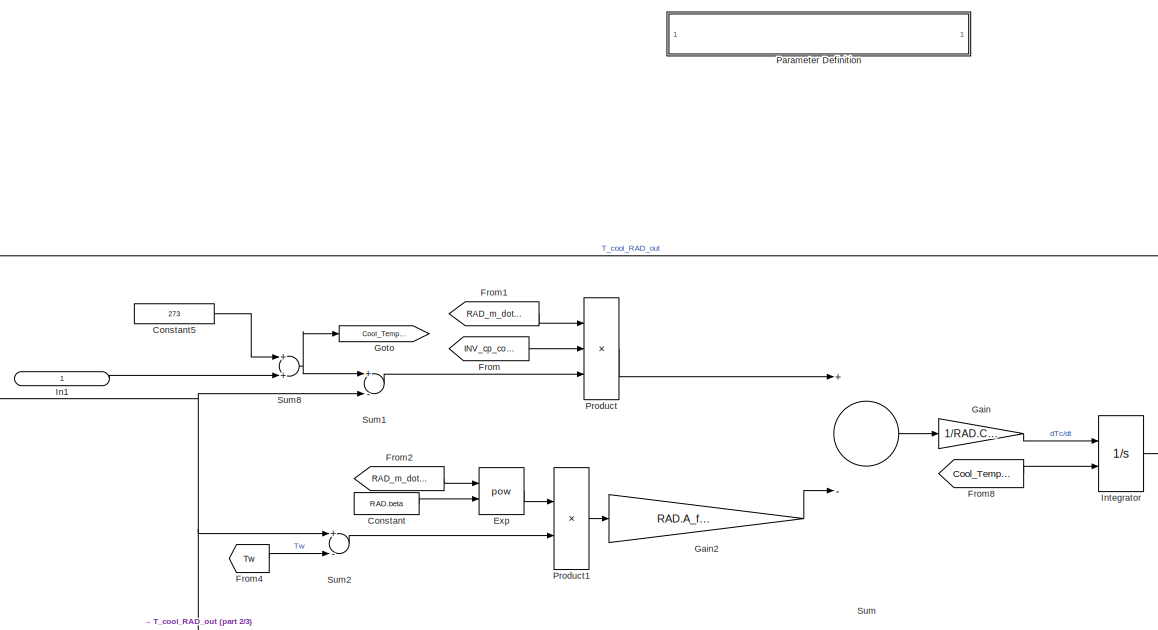
[diagram: Motorcycle Model/Powertrain/Powertrain Thermal/Radiator Model - part 1/3, top center region]
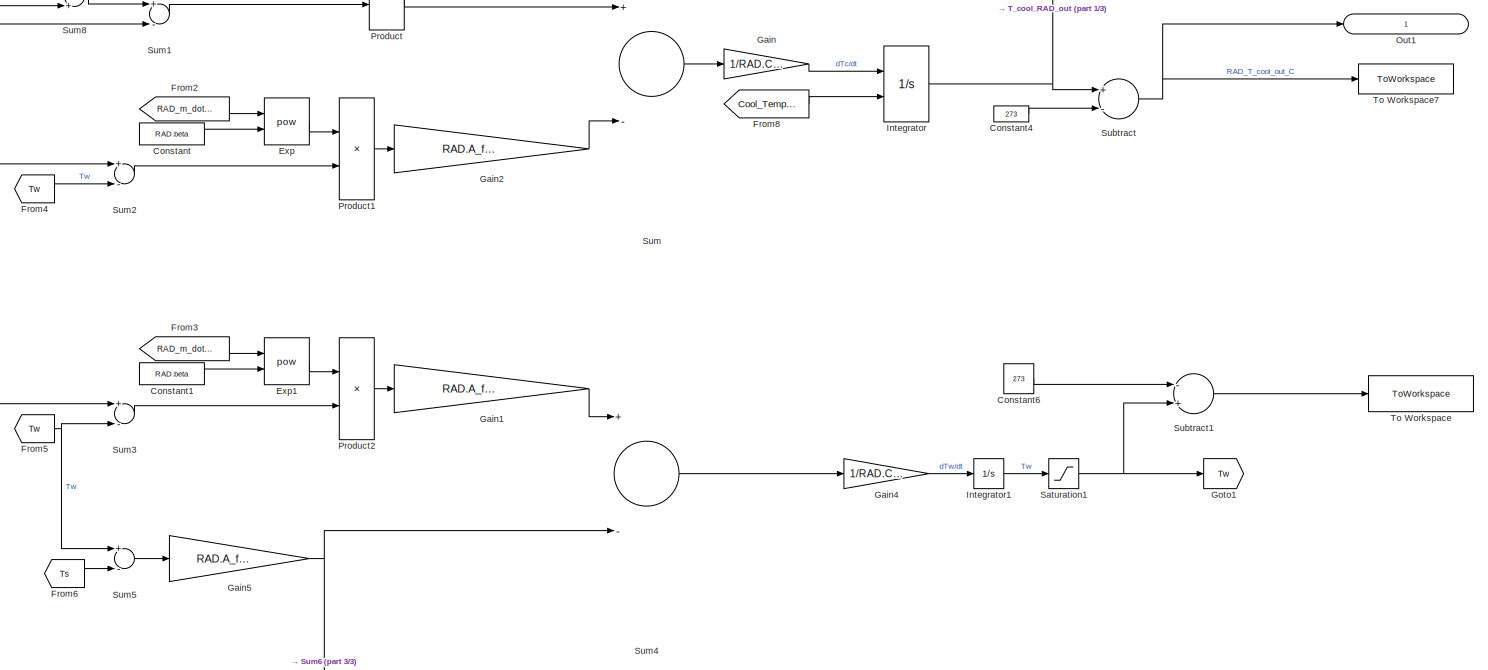
[diagram: Motorcycle Model/Powertrain/Powertrain Thermal/Radiator Model - part 2/3, full width, middle band]
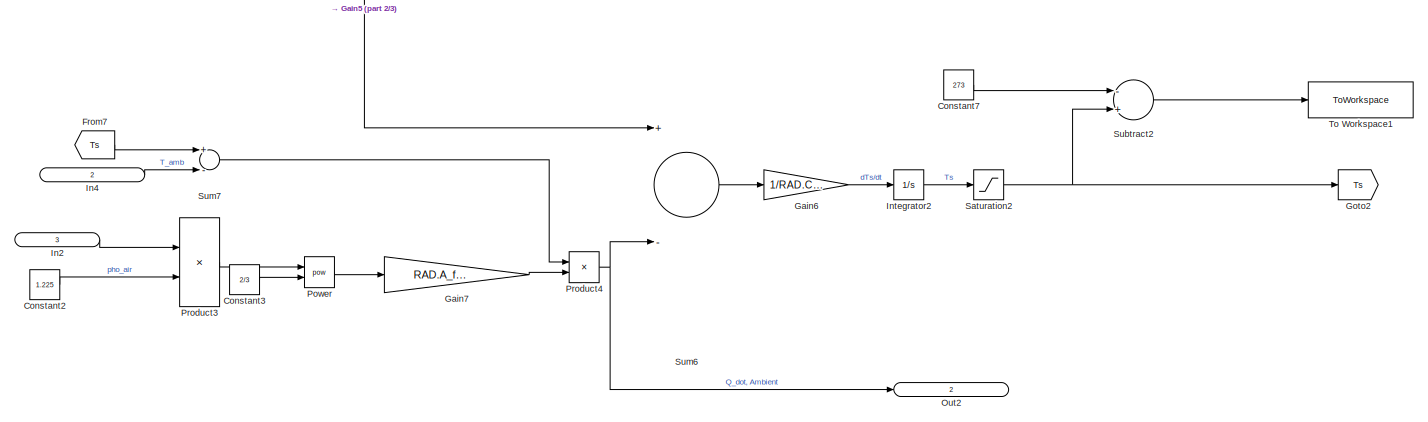
[diagram: Motorcycle Model/Powertrain/Powertrain Thermal/Radiator Model - part 3/3, full width, bottom band]
BLOCK [SubSystem] Motorcycle Model/Powertrain/Powertrain Thermal/Radiator Model
  Ports = [3, 2]
  RequestExecContextInheritance = off
BLOCK [Constant] Motorcycle Model/Powertrain/Powertrain Thermal/Radiator Model/Constant
  Value = RAD.beta
BLOCK [Constant] Motorcycle Model/Powertrain/Powertrain Thermal/Radiator Model/Constant1
  Value = RAD.beta
BLOCK [Constant] Motorcycle Model/Powertrain/Powertrain Thermal/Radiator Model/Constant2
  Value = 1.225
BLOCK [Constant] Motorcycle Model/Powertrain/Powertrain Thermal/Radiator Model/Constant3
  Value = 2/3
BLOCK [Constant] Motorcycle Model/Powertrain/Powertrain Thermal/Radiator Model/Constant4
  Value = 273
BLOCK [Constant] Motorcycle Model/Powertrain/Powertrain Thermal/Radiator Model/Constant5
  Value = 273
BLOCK [Constant] Motorcycle Model/Powertrain/Powertrain Thermal/Radiator Model/Constant6
  Value = 273
BLOCK [Constant] Motorcycle Model/Powertrain/Powertrain Thermal/Radiator Model/Constant7
  Value = 273
BLOCK [Math] Motorcycle Model/Powertrain/Powertrain Thermal/Radiator Model/Exp
  Operator = pow
  Ports = [2, 1]
BLOCK [Math] Motorcycle Model/Powertrain/Powertrain Thermal/Radiator Model/Exp1
  Operator = pow
  Ports = [2, 1]
BLOCK [From] Motorcycle Model/Powertrain/Powertrain Thermal/Radiator Model/From
  GotoTag = INV_cp_cool
  TagVisibility = global
BLOCK [From] Motorcycle Model/Powertrain/Powertrain Thermal/Radiator Model/From1
  GotoTag = RAD_m_dot_cool
  TagVisibility = global
BLOCK [From] Motorcycle Model/Powertrain/Powertrain Thermal/Radiator Model/From2
  GotoTag = RAD_m_dot_cool
  TagVisibility = global
BLOCK [From] Motorcycle Model/Powertrain/Powertrain Thermal/Radiator Model/From3
  GotoTag = RAD_m_dot_cool
  TagVisibility = global
BLOCK [From] Motorcycle Model/Powertrain/Powertrain Thermal/Radiator Model/From4
  GotoTag = Tw
BLOCK [From] Motorcycle Model/Powertrain/Powertrain Thermal/Radiator Model/From5
  GotoTag = Tw
BLOCK [From] Motorcycle Model/Powertrain/Powertrain Thermal/Radiator Model/From6
  GotoTag = Ts
BLOCK [From] Motorcycle Model/Powertrain/Powertrain Thermal/Radiator Model/From7
  GotoTag = Ts
BLOCK [From] Motorcycle Model/Powertrain/Powertrain Thermal/Radiator Model/From8
  GotoTag = Cool_Temp_in
BLOCK [Gain] Motorcycle Model/Powertrain/Powertrain Thermal/Radiator Model/Gain
  Gain = 1/RAD.C_c
  OutDataTypeStr = Inherit: Inherit via internal rule
  ParamDataTypeStr = Inherit: Inherit via internal rule
  SaturateOnIntegerOverflow = off
BLOCK [Gain] Motorcycle Model/Powertrain/Powertrain Thermal/Radiator Model/Gain1
  Gain = RAD.A_face*RAD.C_f/RAD.C3
  OutDataTypeStr = Inherit: Inherit via internal rule
  ParamDataTypeStr = Inherit: Inherit via internal rule
  SaturateOnIntegerOverflow = off
BLOCK [Gain] Motorcycle Model/Powertrain/Powertrain Thermal/Radiator Model/Gain2
  Gain = RAD.A_face*RAD.C_f/RAD.C3
  OutDataTypeStr = Inherit: Inherit via internal rule
  ParamDataTypeStr = Inherit: Inherit via internal rule
  SaturateOnIntegerOverflow = off
BLOCK [Gain] Motorcycle Model/Powertrain/Powertrain Thermal/Radiator Model/Gain4
  Gain = 1/RAD.C_w
  OutDataTypeStr = Inherit: Inherit via internal rule
  ParamDataTypeStr = Inherit: Inherit via internal rule
  SaturateOnIntegerOverflow = off
BLOCK [Gain] Motorcycle Model/Powertrain/Powertrain Thermal/Radiator Model/Gain5
  Gain = RAD.A_face/RAD.C2
  OutDataTypeStr = Inherit: Inherit via internal rule
  ParamDataTypeStr = Inherit: Inherit via internal rule
  SaturateOnIntegerOverflow = off
BLOCK [Gain] Motorcycle Model/Powertrain/Powertrain Thermal/Radiator Model/Gain6
  Gain = 1/RAD.C_s
  OutDataTypeStr = Inherit: Inherit via internal rule
  ParamDataTypeStr = Inherit: Inherit via internal rule
  SaturateOnIntegerOverflow = off
BLOCK [Gain] Motorcycle Model/Powertrain/Powertrain Thermal/Radiator Model/Gain7
  Gain = RAD.A_face/RAD.C1
  OutDataTypeStr = Inherit: Inherit via internal rule
  ParamDataTypeStr = Inherit: Inherit via internal rule
  SaturateOnIntegerOverflow = off
BLOCK [Goto] Motorcycle Model/Powertrain/Powertrain Thermal/Radiator Model/Goto
  GotoTag = Cool_Temp_in
BLOCK [Goto] Motorcycle Model/Powertrain/Powertrain Thermal/Radiator Model/Goto1
  GotoTag = Tw
BLOCK [Goto] Motorcycle Model/Powertrain/Powertrain Thermal/Radiator Model/Goto2
  GotoTag = Ts
BLOCK [Inport] Motorcycle Model/Powertrain/Powertrain Thermal/Radiator Model/In1
  IconDisplay = Signal name
BLOCK [Inport] Motorcycle Model/Powertrain/Powertrain Thermal/Radiator Model/In2
  IconDisplay = Port number and signal name
  Port = 3
BLOCK [Inport] Motorcycle Model/Powertrain/Powertrain Thermal/Radiator Model/In4
  IconDisplay = Signal name
  Port = 2
BLOCK [Integrator] Motorcycle Model/Powertrain/Powertrain Thermal/Radiator Model/Integrator
  InitialCondition = RAD.T_init
  InitialConditionSource = external
  Ports = [2, 1]
BLOCK [Integrator] Motorcycle Model/Powertrain/Powertrain Thermal/Radiator Model/Integrator1
  InitialCondition = RAD.T_init
  Ports = [1, 1]
BLOCK [Integrator] Motorcycle Model/Powertrain/Powertrain Thermal/Radiator Model/Integrator2
  InitialCondition = RAD.T_init
  Ports = [1, 1]
BLOCK [Outport] Motorcycle Model/Powertrain/Powertrain Thermal/Radiator Model/Out1
  IconDisplay = Signal name
BLOCK [Outport] Motorcycle Model/Powertrain/Powertrain Thermal/Radiator Model/Out2
  IconDisplay = Signal name
  Port = 2
BLOCK [SubSystem] Motorcycle Model/Powertrain/Powertrain Thermal/Radiator Model/Parameter Definition
  Ports = []
  RequestExecContextInheritance = off
BLOCK [Constant] Motorcycle Model/Powertrain/Powertrain Thermal/Radiator Model/Parameter Definition/Constant
  Value = RAD_m_dot
BLOCK [From] Motorcycle Model/Powertrain/Powertrain Thermal/Radiator Model/Parameter Definition/From2
  GotoTag = INV_rho_cool
  TagVisibility = global
BLOCK [Goto] Motorcycle Model/Powertrain/Powertrain Thermal/Radiator Model/Parameter Definition/Goto1
  GotoTag = RAD_m_dot_cool
  TagVisibility = global
BLOCK [Product] Motorcycle Model/Powertrain/Powertrain Thermal/Radiator Model/Parameter Definition/Product2
  InputSameDT = off
  OutDataTypeStr = Inherit: Inherit via internal rule
  Ports = [2, 1]
  RndMeth = Floor
  SaturateOnIntegerOverflow = off
BLOCK [Gain] Motorcycle Model/Powertrain/Powertrain Thermal/Radiator Model/Parameter Definition/liters//min 2 m^3//s
  Gain = 1.66667e-5
  OutDataTypeStr = Inherit: Inherit via internal rule
  ParamDataTypeStr = Inherit: Inherit via internal rule
  SaturateOnIntegerOverflow = off
BLOCK [Math] Motorcycle Model/Powertrain/Powertrain Thermal/Radiator Model/Power
  Operator = pow
  Ports = [2, 1]
BLOCK [Product] Motorcycle Model/Powertrain/Powertrain Thermal/Radiator Model/Product
  InputSameDT = off
  Inputs = 3
  OutDataTypeStr = Inherit: Inherit via internal rule
  Ports = [3, 1]
  RndMeth = Floor
  SaturateOnIntegerOverflow = off
BLOCK [Product] Motorcycle Model/Powertrain/Powertrain Thermal/Radiator Model/Product1
  InputSameDT = off
  OutDataTypeStr = Inherit: Inherit via internal rule
  Ports = [2, 1]
  RndMeth = Floor
  SaturateOnIntegerOverflow = off
BLOCK [Product] Motorcycle Model/Powertrain/Powertrain Thermal/Radiator Model/Product2
  InputSameDT = off
  OutDataTypeStr = Inherit: Inherit via internal rule
  Ports = [2, 1]
  RndMeth = Floor
  SaturateOnIntegerOverflow = off
BLOCK [Product] Motorcycle Model/Powertrain/Powertrain Thermal/Radiator Model/Product3
  InputSameDT = off
  OutDataTypeStr = Inherit: Inherit via internal rule
  Ports = [2, 1]
  RndMeth = Floor
  SaturateOnIntegerOverflow = off
BLOCK [Product] Motorcycle Model/Powertrain/Powertrain Thermal/Radiator Model/Product4
  InputSameDT = off
  OutDataTypeStr = Inherit: Inherit via internal rule
  Ports = [2, 1]
  RndMeth = Floor
  SaturateOnIntegerOverflow = off
BLOCK [Saturate] Motorcycle Model/Powertrain/Powertrain Thermal/Radiator Model/Saturation1
  InputPortMap = u0
  LinearizeAsGain = off
  LowerLimit = RAD.T_init
  Ports = [1, 1]
  UpperLimit = inf
BLOCK [Saturate] Motorcycle Model/Powertrain/Powertrain Thermal/Radiator Model/Saturation2
  InputPortMap = u0
  LinearizeAsGain = off
  LowerLimit = RAD.T_init
  Ports = [1, 1]
  UpperLimit = inf
BLOCK [Sum] Motorcycle Model/Powertrain/Powertrain Thermal/Radiator Model/Subtract
  InputSameDT = off
  Inputs = +-
  OutDataTypeStr = Inherit: Inherit via internal rule
  Ports = [2, 1]
  SaturateOnIntegerOverflow = off
BLOCK [Sum] Motorcycle Model/Powertrain/Powertrain Thermal/Radiator Model/Subtract1
  InputSameDT = off
  Inputs = -+
  OutDataTypeStr = Inherit: Inherit via internal rule
  Ports = [2, 1]
  SaturateOnIntegerOverflow = off
BLOCK [Sum] Motorcycle Model/Powertrain/Powertrain Thermal/Radiator Model/Subtract2
  InputSameDT = off
  Inputs = -+
  OutDataTypeStr = Inherit: Inherit via internal rule
  Ports = [2, 1]
  SaturateOnIntegerOverflow = off
BLOCK [Sum] Motorcycle Model/Powertrain/Powertrain Thermal/Radiator Model/Sum
  InputSameDT = off
  Inputs = +-
  OutDataTypeStr = Inherit: Inherit via internal rule
  Ports = [2, 1]
  SaturateOnIntegerOverflow = off
BLOCK [Sum] Motorcycle Model/Powertrain/Powertrain Thermal/Radiator Model/Sum1
  InputSameDT = off
  Inputs = +-
  OutDataTypeStr = Inherit: Inherit via internal rule
  Ports = [2, 1]
  SaturateOnIntegerOverflow = off
BLOCK [Sum] Motorcycle Model/Powertrain/Powertrain Thermal/Radiator Model/Sum2
  InputSameDT = off
  Inputs = +-
  OutDataTypeStr = Inherit: Inherit via internal rule
  Ports = [2, 1]
  SaturateOnIntegerOverflow = off
BLOCK [Sum] Motorcycle Model/Powertrain/Powertrain Thermal/Radiator Model/Sum3
  InputSameDT = off
  Inputs = +-
  OutDataTypeStr = Inherit: Inherit via internal rule
  Ports = [2, 1]
  SaturateOnIntegerOverflow = off
BLOCK [Sum] Motorcycle Model/Powertrain/Powertrain Thermal/Radiator Model/Sum4
  InputSameDT = off
  Inputs = +-
  OutDataTypeStr = Inherit: Inherit via internal rule
  Ports = [2, 1]
  SaturateOnIntegerOverflow = off
BLOCK [Sum] Motorcycle Model/Powertrain/Powertrain Thermal/Radiator Model/Sum5
  InputSameDT = off
  Inputs = +-
  OutDataTypeStr = Inherit: Inherit via internal rule
  Ports = [2, 1]
  SaturateOnIntegerOverflow = off
BLOCK [Sum] Motorcycle Model/Powertrain/Powertrain Thermal/Radiator Model/Sum6
  InputSameDT = off
  Inputs = +-
  OutDataTypeStr = Inherit: Inherit via internal rule
  Ports = [2, 1]
  SaturateOnIntegerOverflow = off
BLOCK [Sum] Motorcycle Model/Powertrain/Powertrain Thermal/Radiator Model/Sum7
  InputSameDT = off
  Inputs = +-
  OutDataTypeStr = Inherit: Inherit via internal rule
  Ports = [2, 1]
  SaturateOnIntegerOverflow = off
BLOCK [Sum] Motorcycle Model/Powertrain/Powertrain Thermal/Radiator Model/Sum8
  InputSameDT = off
  OutDataTypeStr = Inherit: Inherit via internal rule
  Ports = [2, 1]
  SaturateOnIntegerOverflow = off
BLOCK [ToWorkspace] Motorcycle Model/Powertrain/Powertrain Thermal/Radiator Model/To Workspace
  FixptAsFi = on
  MaxDataPoints = inf
  Ports = [1]
  SampleTime = -1
  Save2DSignal = 3-D array (concatenate along third dimension)
  VariableName = Radiator_T_Wall_C
BLOCK [ToWorkspace] Motorcycle Model/Powertrain/Powertrain Thermal/Radiator Model/To Workspace1
  FixptAsFi = on
  MaxDataPoints = inf
  Ports = [1]
  SampleTime = -1
  Save2DSignal = 3-D array (concatenate along third dimension)
  VariableName = Radiator_T_Fins_C
BLOCK [ToWorkspace] Motorcycle Model/Powertrain/Powertrain Thermal/Radiator Model/To Workspace7
  FixptAsFi = on
  MaxDataPoints = inf
  Ports = [1]
  SampleTime = -1
  Save2DSignal = 3-D array (concatenate along third dimension)
  VariableName = Radiator_T_cool_out_C
BLOCK [SubSystem] Motorcycle Model/Powertrain/Powertrain Thermal/Reservoir Model
  Ports = [1, 1]
  RequestExecContextInheritance = off
BLOCK [Fcn] Motorcycle Model/Powertrain/Powertrain Thermal/Reservoir Model/Fcn
  Expr = u-273
BLOCK [Fcn] Motorcycle Model/Powertrain/Powertrain Thermal/Reservoir Model/Fcn1
  Expr = u+273.15
BLOCK [From] Motorcycle Model/Powertrain/Powertrain Thermal/Reservoir Model/From
  GotoTag = RES_m_dot_cool
  TagVisibility = global
BLOCK [Gain] Motorcycle Model/Powertrain/Powertrain Thermal/Reservoir Model/Gain
  Gain = 1/(RES.m_cool)
  OutDataTypeStr = Inherit: Inherit via internal rule
  ParamDataTypeStr = Inherit: Inherit via internal rule
  SaturateOnIntegerOverflow = off
BLOCK [Inport] Motorcycle Model/Powertrain/Powertrain Thermal/Reservoir Model/In1
  IconDisplay = Signal name
BLOCK [Integrator] Motorcycle Model/Powertrain/Powertrain Thermal/Reservoir Model/Integrator
  InitialCondition = RES.T_init
  Ports = [1, 1]
BLOCK [Outport] Motorcycle Model/Powertrain/Powertrain Thermal/Reservoir Model/Out1
  IconDisplay = Signal name
BLOCK [SubSystem] Motorcycle Model/Powertrain/Powertrain Thermal/Reservoir Model/Parameter Definition
  Ports = []
  RequestExecContextInheritance = off
BLOCK [Constant] Motorcycle Model/Powertrain/Powertrain Thermal/Reservoir Model/Parameter Definition/Constant
  Value = RAD_m_dot
BLOCK [From] Motorcycle Model/Powertrain/Powertrain Thermal/Reservoir Model/Parameter Definition/From2
  GotoTag = INV_rho_cool
  TagVisibility = global
BLOCK [Goto] Motorcycle Model/Powertrain/Powertrain Thermal/Reservoir Model/Parameter Definition/Goto1
  GotoTag = RES_m_dot_cool
  TagVisibility = global
BLOCK [Product] Motorcycle Model/Powertrain/Powertrain Thermal/Reservoir Model/Parameter Definition/Product2
  InputSameDT = off
  OutDataTypeStr = Inherit: Inherit via internal rule
  Ports = [2, 1]
  RndMeth = Floor
  SaturateOnIntegerOverflow = off
BLOCK [Gain] Motorcycle Model/Powertrain/Powertrain Thermal/Reservoir Model/Parameter Definition/liters//min 2 m^3//s
  Gain = 1.66667e-5
  OutDataTypeStr = Inherit: Inherit via internal rule
  ParamDataTypeStr = Inherit: Inherit via internal rule
  SaturateOnIntegerOverflow = off
BLOCK [Product] Motorcycle Model/Powertrain/Powertrain Thermal/Reservoir Model/Product
  InputSameDT = off
  OutDataTypeStr = Inherit: Inherit via internal rule
  Ports = [2, 1]
  RndMeth = Floor
  SaturateOnIntegerOverflow = off
BLOCK [Sum] Motorcycle Model/Powertrain/Powertrain Thermal/Reservoir Model/Sum
  InputSameDT = off
  Inputs = -+
  OutDataTypeStr = Inherit: Inherit via internal rule
  Ports = [2, 1]
  SaturateOnIntegerOverflow = off
BLOCK [ToWorkspace] Motorcycle Model/Powertrain/Powertrain Thermal/Reservoir Model/To Workspace7
  FixptAsFi = on
  MaxDataPoints = inf
  Ports = [1]
  SampleTime = -1
  Save2DSignal = 3-D array (concatenate along third dimension)
  VariableName = Reservoir_T_cool_out_C
BLOCK [ToWorkspace] Motorcycle Model/Powertrain/Powertrain Thermal/To Workspace
  Commented = on
  FixptAsFi = on
  MaxDataPoints = inf
  Ports = [1]
  SampleTime = -1
  Save2DSignal = 3-D array (concatenate along third dimension)
  VariableName = Emrax_T_cool_out_C
BLOCK [ToWorkspace] Motorcycle Model/Powertrain/Powertrain Thermal/To Workspace1
  FixptAsFi = on
  MaxDataPoints = inf
  Ports = [1]
  SampleTime = -1
  Save2DSignal = 2-D array (concatenate along first dimension)
  VariableName = Motor_Iq
BLOCK [ToWorkspace] Motorcycle Model/Powertrain/Powertrain Thermal/To Workspace2
  FixptAsFi = on
  MaxDataPoints = inf
  Ports = [1]
  SampleTime = -1
  Save2DSignal = 2-D array (concatenate along first dimension)
  VariableName = Motor_Id
BLOCK [ToWorkspace] Motorcycle Model/Powertrain/Powertrain Thermal/To Workspace3
  FixptAsFi = on
  MaxDataPoints = inf
  Ports = [1]
  SampleTime = -1
  Save2DSignal = 2-D array (concatenate along first dimension)
  VariableName = Motor_RMScurrent_Arms
BLOCK [ToWorkspace] Motorcycle Model/Powertrain/Powertrain Thermal/To Workspace4
  Commented = on
  FixptAsFi = on
  MaxDataPoints = inf
  Ports = [1]
  SampleTime = -1
  Save2DSignal = 3-D array (concatenate along third dimension)
  VariableName = Emrax_T_Rotor_C
BLOCK [ToWorkspace] Motorcycle Model/Powertrain/Powertrain Thermal/To Workspace5
  Commented = on
  FixptAsFi = on
  MaxDataPoints = inf
  Ports = [1]
  SampleTime = -1
  Save2DSignal = 3-D array (concatenate along third dimension)
  VariableName = Emrax_T_Stator_C
BLOCK [ToWorkspace] Motorcycle Model/Powertrain/Powertrain Thermal/To Workspace6
  Commented = on
  FixptAsFi = on
  MaxDataPoints = inf
  Ports = [1]
  SampleTime = -1
  Save2DSignal = 3-D array (concatenate along third dimension)
  VariableName = Emrax_Heat_Generation_W
BLOCK [ToWorkspace] Motorcycle Model/Powertrain/Powertrain Thermal/To Workspace7
  FixptAsFi = on
  MaxDataPoints = inf
  Ports = [1]
  SampleTime = -1
  Save2DSignal = 3-D array (concatenate along third dimension)
  VariableName = Radiator_Heat_Rejection_W
BLOCK [ToWorkspace] Motorcycle Model/Powertrain/Powertrain Thermal/To Workspace8
  FixptAsFi = on
  MaxDataPoints = inf
  Ports = [1]
  SampleTime = -1
  Save2DSignal = 3-D array (concatenate along third dimension)
  VariableName = V_face
BLOCK [Product] Motorcycle Model/Powertrain/Product
  InputSameDT = off
  OutDataTypeStr = Inherit: Inherit via internal rule
  Ports = [2, 1]
  RndMeth = Floor
  SaturateOnIntegerOverflow = off
BLOCK [Sum] Motorcycle Model/Powertrain/Sum
  InputSameDT = off
  Inputs = +++
  OutDataTypeStr = Inherit: Inherit via internal rule
  Ports = [3, 1]
  SaturateOnIntegerOverflow = off
BLOCK [Inport] Motorcycle Model/Powertrain/Throttle
  IconDisplay = Port number and signal name
BLOCK [Inport] Motorcycle Model/Powertrain/df\
  IconDisplay = Port number and signal name
  Port = 2
BLOCK [Inport] Motorcycle Model/Powertrain/df\1
  IconDisplay = Port number and signal name
  Port = 3
BLOCK [SubSystem] Motorcycle Model/Rear Brakes
  Ports = [1, 1]
  RequestExecContextInheritance = off
BLOCK [From] Motorcycle Model/Rear Brakes/From
  GotoTag = Max_Brake_Torque
  TagVisibility = global
BLOCK [Outport] Motorcycle Model/Rear Brakes/Front Wheel Torque
  IconDisplay = Port number and signal name
BLOCK [Goto] Motorcycle Model/Rear Brakes/Goto
  GotoTag = Rear_Brake_Force
  TagVisibility = global
BLOCK [Product] Motorcycle Model/Rear Brakes/Multiply
  InputSameDT = off
  Inputs = **
  OutDataTypeStr = Inherit: Inherit via internal rule
  Ports = [2, 1]
  RndMeth = Floor
  SaturateOnIntegerOverflow = off
BLOCK [Inport] Motorcycle Model/Rear Brakes/Throttle
  IconDisplay = Port number and signal name
BLOCK [SubSystem] Motorcycle Model/Rear Wheel (Force Limits)
  Ports = [1, 1]
  RequestExecContextInheritance = off
BLOCK [Constant] Motorcycle Model/Rear Wheel (Force Limits)/Constant
  Value = 0
BLOCK [Product] Motorcycle Model/Rear Wheel (Force Limits)/Divide
  InputSameDT = off
  Inputs = */
  OutDataTypeStr = Inherit: Inherit via internal rule
  Ports = [2, 1]
  RndMeth = Floor
  SaturateOnIntegerOverflow = off
BLOCK [Product] Motorcycle Model/Rear Wheel (Force Limits)/Divide1
  InputSameDT = off
  Inputs = **//
  OutDataTypeStr = Inherit: Inherit via internal rule
  Ports = [4, 1]
  RndMeth = Floor
  SaturateOnIntegerOverflow = off
BLOCK [Product] Motorcycle Model/Rear Wheel (Force Limits)/Divide2
  InputSameDT = off
  Inputs = **//
  OutDataTypeStr = Inherit: Inherit via internal rule
  Ports = [4, 1]
  RndMeth = Floor
  SaturateOnIntegerOverflow = off
BLOCK [Fcn] Motorcycle Model/Rear Wheel (Force Limits)/Fcn
  Expr = -mu_r*Total_Mass*g*(p-b)/p - u(1)*h/p
BLOCK [Constant] Motorcycle Model/Rear Wheel (Force Limits)/Friction Limited
  Value = Total_Mass*mu_r*g*(p-b)/p/(1-mu_r*h/p)
BLOCK [From] Motorcycle Model/Rear Wheel (Force Limits)/From
  GotoTag = Front_Brake_Force
  TagVisibility = global
BLOCK [From] Motorcycle Model/Rear Wheel (Force Limits)/From1
  GotoTag = Rr_Wheel_Radius
  IconDisplay = Tag and signal name
  TagVisibility = global
BLOCK [From] Motorcycle Model/Rear Wheel (Force Limits)/From10
  GotoTag = Powertrain_Inertia_T
  TagVisibility = global
BLOCK [From] Motorcycle Model/Rear Wheel (Force Limits)/From11
  GotoTag = Powertrain_Inertia_T
  TagVisibility = global
BLOCK [From] Motorcycle Model/Rear Wheel (Force Limits)/From2
  GotoTag = Regen_Brake_Force
  TagVisibility = global
BLOCK [From] Motorcycle Model/Rear Wheel (Force Limits)/From3
  GotoTag = Rr_Wheel_Radius
  IconDisplay = Tag and signal name
  TagVisibility = global
BLOCK [From] Motorcycle Model/Rear Wheel (Force Limits)/From4
  GotoTag = Rr_Wheel_Radius
  IconDisplay = Tag and signal name
  TagVisibility = global
BLOCK [From] Motorcycle Model/Rear Wheel (Force Limits)/From5
  GotoTag = Final_Drive_Eff
  TagVisibility = global
BLOCK [From] Motorcycle Model/Rear Wheel (Force Limits)/From6
  GotoTag = Final_Drive_Ratio
  TagVisibility = global
BLOCK [From] Motorcycle Model/Rear Wheel (Force Limits)/From7
  GotoTag = Final_Drive_Eff
  TagVisibility = global
BLOCK [From] Motorcycle Model/Rear Wheel (Force Limits)/From8
  GotoTag = Final_Drive_Ratio
  TagVisibility = global
BLOCK [From] Motorcycle Model/Rear Wheel (Force Limits)/From9
  GotoTag = Rear_Brake_Force
  TagVisibility = global
BLOCK [Goto] Motorcycle Model/Rear Wheel (Force Limits)/Goto
  GotoTag = Regen_T_lim
  TagVisibility = global
BLOCK [Goto] Motorcycle Model/Rear Wheel (Force Limits)/Goto1
  GotoTag = Drive_T_lim
  TagVisibility = global
BLOCK [Goto] Motorcycle Model/Rear Wheel (Force Limits)/Goto3
  GotoTag = Regen_Brake_Force
  TagVisibility = global
BLOCK [Inport] Motorcycle Model/Rear Wheel (Force Limits)/In1
  IconDisplay = Port number and signal name
BLOCK [Memory] Motorcycle Model/Rear Wheel (Force Limits)/Memory
BLOCK [Memory] Motorcycle Model/Rear Wheel (Force Limits)/Memory1
BLOCK [MinMax] Motorcycle Model/Rear Wheel (Force Limits)/Min
  InputSameDT = off
  Inputs = 2
  Ports = [2, 1]
  SaturateOnIntegerOverflow = off
BLOCK [Outport] Motorcycle Model/Rear Wheel (Force Limits)/Out1
  IconDisplay = Port number and signal name
BLOCK [Sum] Motorcycle Model/Rear Wheel (Force Limits)/Sum
  IconShape = round
  InputSameDT = off
  Inputs = |++
  OutDataTypeStr = Inherit: Inherit via internal rule
  Ports = [2, 1]
  SaturateOnIntegerOverflow = off
BLOCK [Sum] Motorcycle Model/Rear Wheel (Force Limits)/Sum1
  InputSameDT = off
  OutDataTypeStr = Inherit: Inherit via internal rule
  Ports = [2, 1]
  SaturateOnIntegerOverflow = off
BLOCK [Sum] Motorcycle Model/Rear Wheel (Force Limits)/Sum2
  IconShape = round
  InputSameDT = off
  Inputs = |++
  OutDataTypeStr = Inherit: Inherit via internal rule
  Ports = [2, 1]
  SaturateOnIntegerOverflow = off
BLOCK [Sum] Motorcycle Model/Rear Wheel (Force Limits)/Sum3
  IconShape = round
  InputSameDT = off
  Inputs = |++
  OutDataTypeStr = Inherit: Inherit via internal rule
  Ports = [2, 1]
  SaturateOnIntegerOverflow = off
BLOCK [Switch] Motorcycle Model/Rear Wheel (Force Limits)/Switch
  Criteria = u2 > Threshold
  InputSameDT = off
  SaturateOnIntegerOverflow = off
BLOCK [ToWorkspace] Motorcycle Model/Rear Wheel (Force Limits)/To Workspace
  FixptAsFi = on
  MaxDataPoints = inf
  Ports = [1]
  SampleTime = -1
  Save2DSignal = 3-D array (concatenate along third dimension)
  VariableName = Traction_Lim_Drive
BLOCK [ToWorkspace] Motorcycle Model/Rear Wheel (Force Limits)/To Workspace1
  FixptAsFi = on
  MaxDataPoints = inf
  Ports = [1]
  SampleTime = -1
  Save2DSignal = 3-D array (concatenate along third dimension)
  VariableName = Traction_Lim_Regen
BLOCK [ToWorkspace] Motorcycle Model/Rear Wheel (Force Limits)/To Workspace2
  FixptAsFi = on
  MaxDataPoints = inf
  Ports = [1]
  SampleTime = -1
  Save2DSignal = 3-D array (concatenate along third dimension)
  VariableName = Motor_Inertia
BLOCK [Constant] Motorcycle Model/Rear Wheel (Force Limits)/Wheelie Limited
  Value = g*Total_Mass*b/h
BLOCK [Sum] Motorcycle Model/Sum
  IconShape = round
  InputSameDT = off
  Inputs = +|+
  OutDataTypeStr = Inherit: Inherit via internal rule
  Ports = [2, 1]
  SaturateOnIntegerOverflow = off
BLOCK [Sum] Motorcycle Model/Sum1
  IconShape = round
  InputSameDT = off
  Inputs = ++|
  OutDataTypeStr = Inherit: Inherit via internal rule
  Ports = [2, 1]
  SaturateOnIntegerOverflow = off
BLOCK [ToWorkspace] Motorcycle Model/To Workspace
  FixptAsFi = on
  MaxDataPoints = inf
  Ports = [1]
  SampleTime = -1
  Save2DSignal = 3-D array (concatenate along third dimension)
  VariableName = RrWhl_Force
BLOCK [ToWorkspace] Motorcycle Model/To Workspace1
  FixptAsFi = on
  MaxDataPoints = inf
  Ports = [1]
  SampleTime = -1
  Save2DSignal = 3-D array (concatenate along third dimension)
  VariableName = FrWhl_Force
BLOCK [ToWorkspace] Motorcycle Model/To Workspace2
  FixptAsFi = on
  MaxDataPoints = inf
  Ports = [1]
  SampleTime = -1
  Save2DSignal = 3-D array (concatenate along third dimension)
  VariableName = Batt_PowerLim
BLOCK [Outport] Motorcycle Model/Tractive Force
  IconDisplay = Port number and signal name
BLOCK [SubSystem] Motorcycle Model/Transmission
  Ports = [1, 1]
  RequestExecContextInheritance = off
BLOCK [Goto] Motorcycle Model/Transmission/ 
  GotoTag = EM_RPM
  IconDisplay = Tag and signal name
  TagVisibility = global
BLOCK [Goto] Motorcycle Model/Transmission/ 1
  GotoTag = EM_RPM_1st
  IconDisplay = Tag and signal name
  TagVisibility = global
BLOCK [Goto] Motorcycle Model/Transmission/ 2
  GotoTag = EM_RPM_2nd
  IconDisplay = Tag and signal name
  TagVisibility = global
BLOCK [Gain] Motorcycle Model/Transmission/CONVERT TO whl RPM 
  Gain = 60
  OutDataTypeStr = Inherit: Inherit via internal rule
  ParamDataTypeStr = Inherit: Inherit via internal rule
  SaturateOnIntegerOverflow = off
BLOCK [Gain] Motorcycle Model/Transmission/Calc wheel circumference
  Gain = 2*3.14
  OutDataTypeStr = Inherit: Inherit via internal rule
  ParamDataTypeStr = Inherit: Inherit via internal rule
  SaturateOnIntegerOverflow = off
BLOCK [Derivative] Motorcycle Model/Transmission/Derivative
BLOCK [From] Motorcycle Model/Transmission/From1
  GotoTag = Final_Drive_Ratio_2nd
  TagVisibility = global
BLOCK [From] Motorcycle Model/Transmission/From2
  GotoTag = Vehicle_Velocity_ms
  IconDisplay = Tag and signal name
  TagVisibility = global
BLOCK [From] Motorcycle Model/Transmission/From3
  GotoTag = Rr_Wheel_Radius
  IconDisplay = Tag and signal name
  TagVisibility = global
BLOCK [From] Motorcycle Model/Transmission/From4
  GotoTag = Final_Drive_Ratio_1st
  TagVisibility = global
BLOCK [Gain] Motorcycle Model/Transmission/Gain
  Gain = 2*pi/60
  OutDataTypeStr = Inherit: Inherit via internal rule
  ParamDataTypeStr = Inherit: Inherit via internal rule
  SaturateOnIntegerOverflow = off
BLOCK [SubSystem] Motorcycle Model/Transmission/Gearbox 
  Ports = [1, 2]
  RequestExecContextInheritance = off
BLOCK [Lookup] Motorcycle Model/Transmission/Gearbox /EM Max Torque Curve
  InputValues = EM.N_RPM
  LookUpMeth = Interpolation-Use End Values
  Table = EM.T_max_Peak
BLOCK [Lookup] Motorcycle Model/Transmission/Gearbox /EM Max Torque Curve1
  InputValues = EM.N_RPM
  LookUpMeth = Interpolation-Use End Values
  Table = EM.T_max_Peak
BLOCK [From] Motorcycle Model/Transmission/Gearbox /From
  GotoTag = Final_Drive_Ratio_1st
  TagVisibility = global
BLOCK [From] Motorcycle Model/Transmission/Gearbox /From1
  GotoTag = Final_Drive_Eff
  TagVisibility = global
BLOCK [From] Motorcycle Model/Transmission/Gearbox /From10
  GotoTag = EM_RPM_2nd
  TagVisibility = global
BLOCK [From] Motorcycle Model/Transmission/Gearbox /From2
  GotoTag = Final_Drive_Ratio_2nd
  TagVisibility = global
BLOCK [From] Motorcycle Model/Transmission/Gearbox /From3
  GotoTag = EM_RPM_1st
  TagVisibility = global
BLOCK [From] Motorcycle Model/Transmission/Gearbox /From4
  GotoTag = Final_Drive_Ratio_2nd
  TagVisibility = global
BLOCK [From] Motorcycle Model/Transmission/Gearbox /From5
  GotoTag = Final_Drive_Ratio_1st
  TagVisibility = global
BLOCK [Goto] Motorcycle Model/Transmission/Gearbox /Goto
  GotoTag = Final_Drive_Ratio
  TagVisibility = global
BLOCK [Inport] Motorcycle Model/Transmission/Gearbox /In1
  IconDisplay = Port number and signal name
BLOCK [Product] Motorcycle Model/Transmission/Gearbox /Multiply
  InputSameDT = off
  Inputs = ***
  OutDataTypeStr = Inherit: Inherit via internal rule
  Ports = [3, 1]
  RndMeth = Floor
  SaturateOnIntegerOverflow = off
BLOCK [Outport] Motorcycle Model/Transmission/Gearbox /Out1
  IconDisplay = Port number and signal name
  Port = 2
BLOCK [Outport] Motorcycle Model/Transmission/Gearbox /Out2
  IconDisplay = Port number and signal name
BLOCK [Product] Motorcycle Model/Transmission/Gearbox /Product
  InputSameDT = off
  OutDataTypeStr = Inherit: Inherit via internal rule
  Ports = [2, 1]
  RndMeth = Floor
  SaturateOnIntegerOverflow = off
BLOCK [Product] Motorcycle Model/Transmission/Gearbox /Product1
  InputSameDT = off
  OutDataTypeStr = Inherit: Inherit via internal rule
  Ports = [2, 1]
  RndMeth = Floor
  SaturateOnIntegerOverflow = off
BLOCK [Sum] Motorcycle Model/Transmission/Gearbox /Sum
  InputSameDT = off
  Inputs = +-
  OutDataTypeStr = Inherit: Inherit via internal rule
  Ports = [2, 1]
  SaturateOnIntegerOverflow = off
BLOCK [Switch] Motorcycle Model/Transmission/Gearbox /Switch
  Criteria = u2 > Threshold
  InputSameDT = off
  SaturateOnIntegerOverflow = off
BLOCK [Goto] Motorcycle Model/Transmission/Goto
  GotoTag = EM_acc
  TagVisibility = global
BLOCK [Inport] Motorcycle Model/Transmission/Motor Torque
  IconDisplay = Port number and signal name
BLOCK [Outport] Motorcycle Model/Transmission/Out1
  IconDisplay = Port number and signal name
BLOCK [ToWorkspace] Motorcycle Model/Transmission/To Workspace
  FixptAsFi = on
  MaxDataPoints = inf
  Ports = [1]
  SampleTime = -1
  Save2DSignal = 2-D array (concatenate along first dimension)
  VariableName = Drive_Ratio_Final
BLOCK [ToWorkspace] Motorcycle Model/Transmission/To Workspace1
  FixptAsFi = on
  MaxDataPoints = inf
  Ports = [1]
  SampleTime = -1
  Save2DSignal = 2-D array (concatenate along first dimension)
  VariableName = RrWheel_Torque
BLOCK [Product] Motorcycle Model/Transmission/convert to whl rev per sec 
  InputSameDT = off
  Inputs = */
  OutDataTypeStr = Inherit: Inherit via internal rule
  Ports = [2, 1]
  RndMeth = Floor
  SaturateOnIntegerOverflow = off
BLOCK [Product] Motorcycle Model/Transmission/product rpm 
  InputSameDT = off
  Inputs = **
  OutDataTypeStr = Inherit: Inherit via internal rule
  Ports = [2, 1]
  RndMeth = Floor
  SaturateOnIntegerOverflow = off
BLOCK [Product] Motorcycle Model/Transmission/product rpm 1
  InputSameDT = off
  Inputs = **
  OutDataTypeStr = Inherit: Inherit via internal rule
  Ports = [2, 1]
  RndMeth = Floor
  SaturateOnIntegerOverflow = off
BLOCK [Product] Motorcycle Model/Transmission/product rpm 2
  InputSameDT = off
  Inputs = **
  OutDataTypeStr = Inherit: Inherit via internal rule
  Ports = [2, 1]
  RndMeth = Floor
  SaturateOnIntegerOverflow = off
BLOCK [SubSystem] Motorcycle Model/Vehicle Parameters
  Ports = []
  RequestExecContextInheritance = off
  ShowPortLabels = SignalName
BLOCK [Clock] Motorcycle Model/Vehicle Parameters/Clock
BLOCK [Constant] Motorcycle Model/Vehicle Parameters/Constant
  Value = Total_Mass
BLOCK [Constant] Motorcycle Model/Vehicle Parameters/Constant1
  Value = EM.Inertia
BLOCK [Constant] Motorcycle Model/Vehicle Parameters/Constant2
  Value = Whl_Inertia
BLOCK [Constant] Motorcycle Model/Vehicle Parameters/Constant3
  Value = Transmission_Inertia
BLOCK [Product] Motorcycle Model/Vehicle Parameters/Divide
  InputSameDT = off
  Inputs = */
  OutDataTypeStr = Inherit: Inherit via internal rule
  Ports = [2, 1]
  RndMeth = Floor
  SaturateOnIntegerOverflow = off
BLOCK [Product] Motorcycle Model/Vehicle Parameters/Divide1
  InputSameDT = off
  Inputs = */
  OutDataTypeStr = Inherit: Inherit via internal rule
  Ports = [2, 1]
  RndMeth = Floor
  SaturateOnIntegerOverflow = off
BLOCK [Constant] Motorcycle Model/Vehicle Parameters/Final_Drive_Eff
  Value = Final_Drive_Eff
BLOCK [From] Motorcycle Model/Vehicle Parameters/From
  GotoTag = EM_acc
  TagVisibility = global
BLOCK [Constant] Motorcycle Model/Vehicle Parameters/Front_Sprocket_Teeth
  Value = Front_Sprocket
BLOCK [Constant] Motorcycle Model/Vehicle Parameters/Front_Sprocket_Teeth1
  Value = Front_Sprocket
BLOCK [Goto] Motorcycle Model/Vehicle Parameters/Goto
  GotoTag = Rr_Wheel_Radius
  TagVisibility = global
BLOCK [Goto] Motorcycle Model/Vehicle Parameters/Goto1
  GotoTag = Fr_Wheel_Radius
  TagVisibility = global
BLOCK [Goto] Motorcycle Model/Vehicle Parameters/Goto2
  GotoTag = Final_Drive_Ratio_1st
  TagVisibility = global
BLOCK [Goto] Motorcycle Model/Vehicle Parameters/Goto3
  GotoTag = Final_Drive_Eff
  TagVisibility = global
BLOCK [Goto] Motorcycle Model/Vehicle Parameters/Goto4
  GotoTag = Max_Brake_Torque
  TagVisibility = global
BLOCK [Goto] Motorcycle Model/Vehicle Parameters/Goto5
  GotoTag = Mass
  TagVisibility = global
BLOCK [Goto] Motorcycle Model/Vehicle Parameters/Goto6
  GotoTag = Final_Drive_Ratio_2nd
  TagVisibility = global
BLOCK [Goto] Motorcycle Model/Vehicle Parameters/Goto7
  GotoTag = Powertrain_Inertia_T
  TagVisibility = global
BLOCK [Constant] Motorcycle Model/Vehicle Parameters/Max_Brake_Torque
  Value = Max_Brake_Torque
BLOCK [Product] Motorcycle Model/Vehicle Parameters/Product
  InputSameDT = off
  OutDataTypeStr = Inherit: Inherit via internal rule
  Ports = [2, 1]
  RndMeth = Floor
  SaturateOnIntegerOverflow = off
BLOCK [Constant] Motorcycle Model/Vehicle Parameters/Rear_Sprocket_Teeth
  Value = Rear_Sprocket_FirstGear
BLOCK [Constant] Motorcycle Model/Vehicle Parameters/Rear_Sprocket_Teeth1
  Value = Rear_Sprocket_SecondGear
BLOCK [Constant] Motorcycle Model/Vehicle Parameters/Rear_Sprocket_Teeth2
  Value = Rear_Sprocket_FirstGear_Optimize
BLOCK [Constant] Motorcycle Model/Vehicle Parameters/Rear_Sprocket_Teeth3
  Value = Rear_Sprocket_SecondGear_Optimize
BLOCK [Constant] Motorcycle Model/Vehicle Parameters/Rear_Sprocket_Teeth4
  Value = optimize_gearing
BLOCK [Constant] Motorcycle Model/Vehicle Parameters/Rear_Sprocket_Teeth5
  Value = optimize_gearing
BLOCK [Sum] Motorcycle Model/Vehicle Parameters/Sum
  InputSameDT = off
  Inputs = +++
  OutDataTypeStr = Inherit: Inherit via internal rule
  Ports = [3, 1]
  SaturateOnIntegerOverflow = off
BLOCK [Switch] Motorcycle Model/Vehicle Parameters/Switch
  Criteria = u2 > Threshold
  InputSameDT = off
  SaturateOnIntegerOverflow = off
BLOCK [Switch] Motorcycle Model/Vehicle Parameters/Switch1
  Criteria = u2 > Threshold
  InputSameDT = off
  SaturateOnIntegerOverflow = off
BLOCK [ToWorkspace] Motorcycle Model/Vehicle Parameters/To Workspace2
  FixptAsFi = on
  MaxDataPoints = inf
  Ports = [1]
  SampleTime = -1
  Save2DSignal = 3-D array (concatenate along third dimension)
  VariableName = tout
BLOCK [Constant] Motorcycle Model/Vehicle Parameters/Wheel_Radius
  Value = Wheel_Radius
BLOCK [SubSystem] Rider Control
  Ports = [2, 2]
  RequestExecContextInheritance = off
BLOCK [Gain] Rider Control/ 
  Gain = ki
  OutDataTypeStr = Inherit: Inherit via internal rule
  ParamDataTypeStr = Inherit: Inherit via internal rule
  SaturateOnIntegerOverflow = off
BLOCK [Gain] Rider Control/  
  Gain = kp
  OutDataTypeStr = Inherit: Inherit via internal rule
  ParamDataTypeStr = Inherit: Inherit via internal rule
  SaturateOnIntegerOverflow = off
BLOCK [Gain] Rider Control/   
  Gain = kd
  OutDataTypeStr = Inherit: Inherit via internal rule
  ParamDataTypeStr = Inherit: Inherit via internal rule
  SaturateOnIntegerOverflow = off
BLOCK [Outport] Rider Control/Brake
  IconDisplay = Port number and signal name
  Port = 2
BLOCK [Saturate] Rider Control/Brake Limit
  InputPortMap = u0
  LowerLimit = -1
  Ports = [1, 1]
  UpperLimit = 0
  ZeroCross = off
BLOCK [Derivative] Rider Control/Derivative
BLOCK [Product] Rider Control/Divide2
  InputSameDT = off
  Inputs = */
  OutDataTypeStr = Inherit: Inherit via internal rule
  Ports = [2, 1]
  RndMeth = Floor
  SaturateOnIntegerOverflow = off
BLOCK [From] Rider Control/From
  GotoTag = T_Max_from_EM
  TagVisibility = global
BLOCK [From] Rider Control/From1
  GotoTag = T_Max_from_EM
  TagVisibility = global
BLOCK [From] Rider Control/From2
  GotoTag = Drive_T_lim
  TagVisibility = global
BLOCK [From] Rider Control/From3
  GotoTag = Regen_T_lim
  TagVisibility = global
BLOCK [From] Rider Control/From5
  GotoTag = Max_Brake_Torque
  TagVisibility = global
BLOCK [From] Rider Control/From6
  GotoTag = Front_T_lim
  TagVisibility = global
BLOCK [Gain] Rider Control/Gain
  Gain = -1
  OutDataTypeStr = Inherit: Inherit via internal rule
  ParamDataTypeStr = Inherit: Inherit via internal rule
  SaturateOnIntegerOverflow = off
BLOCK [If] Rider Control/If
  Ports = [1, 2]
BLOCK [SubSystem] Rider Control/If Action Subsystem
  Ports = [3, 1, 0, 0, 0, 0, 0, 1]
  RequestExecContextInheritance = off
  TreatAsAtomicUnit = on
BLOCK [ActionPort] Rider Control/If Action Subsystem/Action Port
  ActionType = then
BLOCK [Product] Rider Control/If Action Subsystem/Divide
  InputSameDT = off
  Inputs = */
  OutDataTypeStr = Inherit: Inherit via internal rule
  Ports = [2, 1]
  RndMeth = Floor
  SaturateOnIntegerOverflow = off
BLOCK [Inport] Rider Control/If Action Subsystem/In1
  IconDisplay = Port number
BLOCK [Inport] Rider Control/If Action Subsystem/In2
  IconDisplay = Port number
  Port = 2
BLOCK [Inport] Rider Control/If Action Subsystem/In3
  IconDisplay = Port number
  Port = 3
BLOCK [Outport] Rider Control/If Action Subsystem/Out1
  IconDisplay = Port number
BLOCK [Product] Rider Control/If Action Subsystem/Product
  InputSameDT = off
  OutDataTypeStr = Inherit: Inherit via internal rule
  Ports = [2, 1]
  RndMeth = Floor
  SaturateOnIntegerOverflow = off
BLOCK [Saturate] Rider Control/If Action Subsystem/Throttle Limit1
  InputPortMap = u0
  LowerLimit = 0
  Ports = [1, 1]
  UpperLimit = 1
  ZeroCross = off
BLOCK [SubSystem] Rider Control/If Action Subsystem1
  Ports = [3, 1, 0, 0, 0, 0, 0, 1]
  RequestExecContextInheritance = off
  TreatAsAtomicUnit = on
BLOCK [ActionPort] Rider Control/If Action Subsystem1/Action Port
  ActionType = else
BLOCK [Constant] Rider Control/If Action Subsystem1/Constant
  Value = -1
BLOCK [Product] Rider Control/If Action Subsystem1/Divide1
  InputSameDT = off
  Inputs = */
  OutDataTypeStr = Inherit: Inherit via internal rule
  Ports = [2, 1]
  RndMeth = Floor
  SaturateOnIntegerOverflow = off
BLOCK [Inport] Rider Control/If Action Subsystem1/In1
  IconDisplay = Port number
BLOCK [Inport] Rider Control/If Action Subsystem1/In2
  IconDisplay = Port number
  Port = 2
BLOCK [Inport] Rider Control/If Action Subsystem1/In3
  IconDisplay = Port number
  Port = 3
BLOCK [Outport] Rider Control/If Action Subsystem1/Out1
  IconDisplay = Port number
BLOCK [Product] Rider Control/If Action Subsystem1/Product1
  InputSameDT = off
  OutDataTypeStr = Inherit: Inherit via internal rule
  Ports = [2, 1]
  RndMeth = Floor
  SaturateOnIntegerOverflow = off
BLOCK [Sum] Rider Control/If Action Subsystem1/Sum2
  IconShape = round
  InputSameDT = off
  Inputs = |++
  OutDataTypeStr = Inherit: Inherit via internal rule
  Ports = [2, 1]
  SaturateOnIntegerOverflow = off
BLOCK [Saturate] Rider Control/If Action Subsystem1/Throttle Limit2
  InputPortMap = u0
  LowerLimit = -1
  Ports = [1, 1]
  UpperLimit = 0
  ZeroCross = off
BLOCK [Inport] Rider Control/In1
  IconDisplay = Port number and signal name
BLOCK [Integrator] Rider Control/Integrator
  Ports = [1, 1]
BLOCK [Rounding] Rider Control/Make Brake 0 or 1
BLOCK [Rounding] Rider Control/Make Throttle 0 or 1
  Operator = ceil
BLOCK [Merge] Rider Control/Merge
  Ports = [2, 1]
BLOCK [Product] Rider Control/Product2
  InputSameDT = off
  OutDataTypeStr = Inherit: Inherit via internal rule
  Ports = [2, 1]
  RndMeth = Floor
  SaturateOnIntegerOverflow = off
BLOCK [Scope] Rider Control/Scope
  Floating = off
  NumInputPorts = 1
  Ports = [1]
  ScopeSpecificationString = Simulink.scopes.TimeScopeBlockCfg('CurrentConfiguration', extmgr.ConfigurationSet(extmgr.Configuration('Core','General UI',true),extmgr.Configuration('Core','Source UI',true),extmgr.Configuration('Sources','WiredSimulink',true),extmgr.Configuration('Visuals','Time Domain',true,'SerializedDisplays',{struct('MinYLimReal','-3.90062','MaxYLimReal','85.10556','YLabelReal','','MinYLimMag','0.00000','Max...<+1339ch>
BLOCK [Sum] Rider Control/Sum
  InputSameDT = off
  Inputs = +-
  OutDataTypeStr = Inherit: Inherit via internal rule
  Ports = [2, 1]
  SaturateOnIntegerOverflow = off
BLOCK [Sum] Rider Control/Sum1
  InputSameDT = off
  Inputs = +++
  OutDataTypeStr = Inherit: Inherit via internal rule
  Ports = [3, 1]
  SaturateOnIntegerOverflow = off
BLOCK [Outport] Rider Control/Throttle
  IconDisplay = Port number and signal name
BLOCK [Saturate] Rider Control/Throttle Limit
  InputPortMap = u0
  LowerLimit = 0
  Ports = [1, 1]
  UpperLimit = 1
  ZeroCross = off
BLOCK [ToWorkspace] Rider Control/To Workspace
  FixptAsFi = on
  MaxDataPoints = inf
  Ports = [1]
  SampleTime = -1
  Save2DSignal = 3-D array (concatenate along third dimension)
  VariableName = Throttle_Cmd
BLOCK [ToWorkspace] Rider Control/To Workspace1
  FixptAsFi = on
  MaxDataPoints = inf
  Ports = [1]
  SampleTime = -1
  Save2DSignal = 3-D array (concatenate along third dimension)
  VariableName = Brake_Cmd
BLOCK [Inport] Rider Control/Vehicle_Velocity
  IconDisplay = Port number and signal name
  Port = 2
BLOCK [SubSystem] Road Loads
  Ports = [1, 1]
  RequestExecContextInheritance = off
BLOCK [SubSystem] Road Loads/Enviornment
  Ports = []
  RequestExecContextInheritance = off
BLOCK [Constant] Road Loads/Enviornment/Constant
  Value = Cda
BLOCK [Constant] Road Loads/Enviornment/Constant1
  Value = Wind_Speed
BLOCK [Constant] Road Loads/Enviornment/Constant4
  Value = rowA
BLOCK [Goto] Road Loads/Enviornment/Goto
  GotoTag = Cda
  TagVisibility = global
BLOCK [Goto] Road Loads/Enviornment/Goto1
  GotoTag = Row_Air
  IconDisplay = Tag and signal name
  TagVisibility = global
BLOCK [Goto] Road Loads/Enviornment/Goto5
  GotoTag = Wind_Speed
  IconDisplay = Tag and signal name
  TagVisibility = global
BLOCK [Goto] Road Loads/Goto
  GotoTag = Vehicle_Velocity_ms
  TagVisibility = global
BLOCK [Inport] Road Loads/In1
  IconDisplay = Port number and signal name
BLOCK [Outport] Road Loads/Out1
  IconDisplay = Port number and signal name
BLOCK [ToWorkspace] Road Loads/To Workspace
  FixptAsFi = on
  MaxDataPoints = inf
  Ports = [1]
  SampleTime = -1
  Save2DSignal = 2-D array (concatenate along first dimension)
  VariableName = Veh_Velocity
BLOCK [ToWorkspace] Road Loads/To Workspace1
  FixptAsFi = on
  MaxDataPoints = inf
  Ports = [1]
  SampleTime = -1
  Save2DSignal = 2-D array (concatenate along first dimension)
  VariableName = Road_Load
BLOCK [SubSystem] Road Loads/Vehicle Loads
  Ports = [0, 1]
  RequestExecContextInheritance = off
BLOCK [SubSystem] Road Loads/Vehicle Loads/Aerodynamic  Drag
  Ports = [0, 1]
  RequestExecContextInheritance = off
BLOCK [Constant] Road Loads/Vehicle Loads/Aerodynamic  Drag/Constant
  Value = 0.5
BLOCK [Outport] Road Loads/Vehicle Loads/Aerodynamic  Drag/Drag Power
  IconDisplay = Port number and signal name
BLOCK [Product] Road Loads/Vehicle Loads/Aerodynamic  Drag/Drag force =1//2*row_a*Cd*Af*v2
  InputSameDT = off
  Inputs = 4
  OutDataTypeStr = Inherit: Inherit via internal rule
  Ports = [4, 1]
  SaturateOnIntegerOverflow = off
BLOCK [From] Road Loads/Vehicle Loads/Aerodynamic  Drag/From
  GotoTag = Row_Air
  TagVisibility = global
BLOCK [From] Road Loads/Vehicle Loads/Aerodynamic  Drag/From1
  GotoTag = Cda
  TagVisibility = global
BLOCK [From] Road Loads/Vehicle Loads/Aerodynamic  Drag/From3
  GotoTag = Vehicle_Velocity_ms
  TagVisibility = global
BLOCK [From] Road Loads/Vehicle Loads/Aerodynamic  Drag/From4
  GotoTag = Wind_Speed
  TagVisibility = global
BLOCK [Sum] Road Loads/Vehicle Loads/Aerodynamic  Drag/Sum
  IconShape = round
  InputSameDT = off
  Inputs = |++
  OutDataTypeStr = Inherit: Inherit via internal rule
  Ports = [2, 1]
  SaturateOnIntegerOverflow = off
BLOCK [Math] Road Loads/Vehicle Loads/Aerodynamic  Drag/drag_v1
  Operator = pow
  Ports = [2, 1]
BLOCK [Constant] Road Loads/Vehicle Loads/Aerodynamic  Drag/square
  Value = 2
BLOCK [Outport] Road Loads/Vehicle Loads/F (N)
  IconDisplay = Port number and signal name
BLOCK [SubSystem] Road Loads/Vehicle Loads/Grade Force
  Ports = [0, 1]
  RequestExecContextInheritance = off
BLOCK [Constant] Road Loads/Vehicle Loads/Grade Force/Constant
  Value = 0
BLOCK [Product] Road Loads/Vehicle Loads/Grade Force/Divide
  InputSameDT = off
  Inputs = */
  OutDataTypeStr = Inherit: Inherit via internal rule
  Ports = [2, 1]
  RndMeth = Floor
  SaturateOnIntegerOverflow = off
BLOCK [Outport] Road Loads/Vehicle Loads/Grade Force/Drag Power
  IconDisplay = Port number and signal name
BLOCK [Lookup] Road Loads/Vehicle Loads/Grade Force/Elevation
  InputValues = Elevation_Profile.distance
  LookUpMeth = Interpolation-Use End Values
  Table = Elevation_Profile.elevation
BLOCK [Fcn] Road Loads/Vehicle Loads/Grade Force/Fcn
  Expr = sin(u)
BLOCK [Fcn] Road Loads/Vehicle Loads/Grade Force/Fcn1
  Expr = atan(u(1))
BLOCK [From] Road Loads/Vehicle Loads/Grade Force/From
  GotoTag = Mass
  TagVisibility = global
BLOCK [From] Road Loads/Vehicle Loads/Grade Force/From1
  GotoTag = Distance_Total_m
  TagVisibility = global
BLOCK [Product] Road Loads/Vehicle Loads/Grade Force/Grade Force = M*g*sin(road_grade)
  InputSameDT = off
  Inputs = 3
  OutDataTypeStr = Inherit: Inherit via internal rule
  Ports = [3, 1]
  SaturateOnIntegerOverflow = off
BLOCK [Memory] Road Loads/Vehicle Loads/Grade Force/Memory
BLOCK [Lookup] Road Loads/Vehicle Loads/Grade Force/Past Elevation
  InputValues = Elevation_Profile.distance
  LookUpMeth = Interpolation-Use End Values
  Table = Elevation_Profile.elevation
BLOCK [RelationalOperator] Road Loads/Vehicle Loads/Grade Force/Relational Operator
  InputSameDT = off
  Operator = isNaN
  OutDataTypeStr = boolean
  Ports = [1, 1]
  RndMeth = Simplest
BLOCK [Sum] Road Loads/Vehicle Loads/Grade Force/Sum
  InputSameDT = off
  Inputs = +-
  OutDataTypeStr = Inherit: Inherit via internal rule
  Ports = [2, 1]
  SaturateOnIntegerOverflow = off
BLOCK [Sum] Road Loads/Vehicle Loads/Grade Force/Sum1
  InputSameDT = off
  Inputs = -+
  OutDataTypeStr = Inherit: Inherit via internal rule
  Ports = [2, 1]
  SaturateOnIntegerOverflow = off
BLOCK [Switch] Road Loads/Vehicle Loads/Grade Force/Switch
  InputSameDT = off
  SaturateOnIntegerOverflow = off
  Threshold = 1
BLOCK [Constant] Road Loads/Vehicle Loads/Grade Force/gravity
  Value = 9.81
BLOCK [Integrator] Road Loads/Vehicle Loads/Integrator
  Ports = [1, 1]
BLOCK [Integrator] Road Loads/Vehicle Loads/Integrator1
  Ports = [1, 1]
BLOCK [Integrator] Road Loads/Vehicle Loads/Integrator2
  Ports = [1, 1]
BLOCK [SubSystem] Road Loads/Vehicle Loads/Roll Force
  Ports = [0, 1]
  RequestExecContextInheritance = off
BLOCK [Constant] Road Loads/Vehicle Loads/Roll Force/Aprrox. Rolling Resistance Force
  Value = 0.02
BLOCK [From] Road Loads/Vehicle Loads/Roll Force/From1
  GotoTag = Mass
  TagVisibility = global
BLOCK [Constant] Road Loads/Vehicle Loads/Roll Force/Gravity (m//s2)
  Value = 9.81
BLOCK [Outport] Road Loads/Vehicle Loads/Roll Force/Power_roll
  IconDisplay = Port number and signal name
BLOCK [Product] Road Loads/Vehicle Loads/Roll Force/Product
  InputSameDT = off
  Inputs = 3
  OutDataTypeStr = Inherit: Inherit via internal rule
  Ports = [3, 1]
  RndMeth = Floor
  SaturateOnIntegerOverflow = off
BLOCK [Sum] Road Loads/Vehicle Loads/Sum4
  InputSameDT = off
  Inputs = +++
  OutDataTypeStr = Inherit: Inherit via internal rule
  Ports = [3, 1]
  SaturateOnIntegerOverflow = off
BLOCK [ToWorkspace] Road Loads/Vehicle Loads/To Workspace
  FixptAsFi = on
  MaxDataPoints = inf
  Ports = [1]
  SampleTime = -1
  Save2DSignal = 3-D array (concatenate along third dimension)
  VariableName = Grade_Force
BLOCK [ToWorkspace] Road Loads/Vehicle Loads/To Workspace1
  FixptAsFi = on
  MaxDataPoints = inf
  Ports = [1]
  SampleTime = -1
  Save2DSignal = 3-D array (concatenate along third dimension)
  VariableName = Drag_Force
BLOCK [ToWorkspace] Road Loads/Vehicle Loads/To Workspace2
  FixptAsFi = on
  MaxDataPoints = inf
  Ports = [1]
  SampleTime = -1
  Save2DSignal = 3-D array (concatenate along third dimension)
  VariableName = Roll_Force
BLOCK [ToWorkspace] Road Loads/Vehicle Loads/To Workspace3
  FixptAsFi = on
  MaxDataPoints = inf
  Ports = [1]
  SampleTime = -1
  Save2DSignal = 3-D array (concatenate along third dimension)
  VariableName = Grade_Work
BLOCK [ToWorkspace] Road Loads/Vehicle Loads/To Workspace4
  FixptAsFi = on
  MaxDataPoints = inf
  Ports = [1]
  SampleTime = -1
  Save2DSignal = 3-D array (concatenate along third dimension)
  VariableName = Drag_Work
BLOCK [ToWorkspace] Road Loads/Vehicle Loads/To Workspace5
  FixptAsFi = on
  MaxDataPoints = inf
  Ports = [1]
  SampleTime = -1
  Save2DSignal = 3-D array (concatenate along third dimension)
  VariableName = Roll_Work
BLOCK [SubSystem] Road Loads/Vehicle_speed_Calculation
  Ports = [2, 1]
  RequestExecContextInheritance = off
BLOCK [Product] Road Loads/Vehicle_speed_Calculation/Divide
  InputSameDT = off
  Inputs = */
  OutDataTypeStr = Inherit: Inherit via internal rule
  Ports = [2, 1]
  RndMeth = Floor
  SaturateOnIntegerOverflow = off
BLOCK [Outport] Road Loads/Vehicle_speed_Calculation/F (N)1
  IconDisplay = Port number and signal name
BLOCK [From] Road Loads/Vehicle_speed_Calculation/From
  GotoTag = Mass
  TagVisibility = global
BLOCK [Goto] Road Loads/Vehicle_speed_Calculation/Goto3
  GotoTag = Distance_Total_m
  TagVisibility = global
BLOCK [Inport] Road Loads/Vehicle_speed_Calculation/In1
  IconDisplay = Signal name
BLOCK [Inport] Road Loads/Vehicle_speed_Calculation/In3
  IconDisplay = Signal name
  Port = 2
BLOCK [Integrator] Road Loads/Vehicle_speed_Calculation/Integrator Limited
  LimitOutput = on
  LowerSaturationLimit = 0
  Ports = [1, 1]
BLOCK [Integrator] Road Loads/Vehicle_speed_Calculation/Integrator Limited1
  LimitOutput = on
  LowerSaturationLimit = 0
  Ports = [1, 1]
BLOCK [Goto] Road Loads/Vehicle_speed_Calculation/Radiator Air Speed
  GotoTag = V_face
  TagVisibility = global
BLOCK [Sum] Road Loads/Vehicle_speed_Calculation/Sum
  InputSameDT = off
  Inputs = +-
  OutDataTypeStr = Inherit: Inherit via internal rule
  Ports = [2, 1]
  SaturateOnIntegerOverflow = off
BLOCK [ToWorkspace] Road Loads/Vehicle_speed_Calculation/To Workspace
  FixptAsFi = on
  MaxDataPoints = inf
  Ports = [1]
  SampleTime = -1
  Save2DSignal = 2-D array (concatenate along first dimension)
  VariableName = Veh_Distance
BLOCK [SubSystem] Velocity_Profile
  Ports = [0, 1]
  RequestExecContextInheritance = off
BLOCK [Constant] Velocity_Profile/Constant
  Value = Velocity_Profile.distance(end)
BLOCK [From] Velocity_Profile/From
  GotoTag = Distance_Total_m
  TagVisibility = global
BLOCK [RelationalOperator] Velocity_Profile/Relational Operator1
  Ports = [2, 1]
BLOCK [Stop] Velocity_Profile/Stop Simulation
BLOCK [Outport] Velocity_Profile/Target_Velocity
  IconDisplay = Port number and signal name
BLOCK [ToWorkspace] Velocity_Profile/To Workspace
  FixptAsFi = on
  MaxDataPoints = inf
  Ports = [1]
  SampleTime = -1
  Save2DSignal = 3-D array (concatenate along third dimension)
  VariableName = Target_Velocity
BLOCK [Lookup] Velocity_Profile/Vehicle_Target_Speed
  InputValues = Velocity_Profile.distance
  LookUpMeth = Interpolation-Use End Values
  Table = Velocity_Profile.velocity
ANNOTATION (root): SimBAlink - CL
ANNOTATION Motorcycle Model: When Rear Braking Strategy is added, will need to move pack energy req block B/c negative torque applied gives regen to pack To determine actual applied torque prior to the wheel block we will need to modulate torque based on wheel slip from the rider model
ANNOTATION Motorcycle Model/Battery Pack/Current Lim, 1st Order ECM, Thermal, Regen/Battery Parameters Calculation: if I CHARGE
ANNOTATION Motorcycle Model/Battery Pack/Current Lim, 1st Order ECM, Thermal, Regen/Battery Parameters Calculation: if I>0 --> DISCHARGE
ANNOTATION Motorcycle Model/Braking//Throttle Strategy: Notes: -No Rear Brake currently being used, no point in using it until we have a better rider model -If throttle = 0, then switch to -1 to request negative torque -Need to add a limit to rear brake force based on friction
ANNOTATION Motorcycle Model/Powertrain/Powertrain Mechanical: Apply max torque (sign will depend on if throttle is positive or negative - regen or accelerate) Apply gain for regen percentage to decrease from max torque is desired
ANNOTATION Motorcycle Model/Powertrain/Powertrain Thermal: Emrax Model Parameters Incorrect - Needs tuned
ANNOTATION Motorcycle Model/Powertrain/Powertrain Thermal/EMRAX Motor Thermal Model: Inputs
ANNOTATION Motorcycle Model/Powertrain/Powertrain Thermal/EMRAX Motor Thermal Model: Motor Thermal Model (BC3.X)
ANNOTATION Motorcycle Model/Powertrain/Powertrain Thermal/EMRAX Motor Thermal Model: Outputs
ANNOTATION Motorcycle Model/Powertrain/Powertrain Thermal/EMRAX Motor Thermal Model: Variables Passed Through Blocks
ANNOTATION Motorcycle Model/Powertrain/Powertrain Thermal/EMRAX Motor Thermal Model/2-Mass Motor Thermal Model/Mass 1 : Inner Block: Energy Balance for Mass 1 (Inner Mass)
ANNOTATION Motorcycle Model/Powertrain/Powertrain Thermal/EMRAX Motor Thermal Model/2-Mass Motor Thermal Model/Mass 2 :Outer Block: Energy Balance for Mass 2 (Outer Mass)
ANNOTATION Motorcycle Model/Rear Wheel (Force Limits): Limit maximum based on friction limited acceleration and wheelie limited, including load transfer effects
ANNOTATION Motorcycle Model/Transmission: Actual Motor RPM Depends on what gear we're in
ANNOTATION Motorcycle Model/Transmission/Gearbox : This will become true as motor nears it top speed and torque drops
ANNOTATION Rider Control: Check Tire Limits to determine % throttle or brake Limits are determined in tire models
ANNOTATION Rider Control: If positive, accelerate If negative, brake
ANNOTATION Rider Control: Tune PID Controller Later/Make Improved Rider Model
ANNOTATION Road Loads/Vehicle Loads/Grade Force: If grade force is NaN, apply 0 force, otherwise export grade force
ANNOTATION Road Loads/Vehicle Loads/Roll Force: Create a more accurate estimate later (Cossalter has formulas)
LINE Motorcycle Model/Battery Pack/0th Order Cell Model/ :1 -> Motorcycle Model/Battery Pack/0th Order Cell Model/Product4:1
LINE Motorcycle Model/Battery Pack/0th Order Cell Model/Add2:1 -> Motorcycle Model/Battery Pack/0th Order Cell Model/Saturation:1
NET Motorcycle Model/Battery Pack/0th Order Cell Model/Current [A]:1 -> Motorcycle Model/Battery Pack/0th Order Cell Model/Goto1:1, Motorcycle Model/Battery Pack/0th Order Cell Model/Parameter Definition:1, Motorcycle Model/Battery Pack/0th Order Cell Model/Product4:2
LINE Motorcycle Model/Battery Pack/0th Order Cell Model/Error Identification/Gain1:1 -> Motorcycle Model/Battery Pack/0th Order Cell Model/Error Identification/Sum:2
LINE Motorcycle Model/Battery Pack/0th Order Cell Model/Error Identification/Gain2:1 -> Motorcycle Model/Battery Pack/0th Order Cell Model/Error Identification/Sum:3
LINE Motorcycle Model/Battery Pack/0th Order Cell Model/Error Identification/Gain:1 -> Motorcycle Model/Battery Pack/0th Order Cell Model/Error Identification/Sum:1
LINE Motorcycle Model/Battery Pack/0th Order Cell Model/Error Identification/InitialSoC1:1 -> Motorcycle Model/Battery Pack/0th Order Cell Model/Error Identification/Min SOC Limit:1
LINE Motorcycle Model/Battery Pack/0th Order Cell Model/Error Identification/InitialSoC2:1 -> Motorcycle Model/Battery Pack/0th Order Cell Model/Error Identification/Min OCV Limit:1
LINE Motorcycle Model/Battery Pack/0th Order Cell Model/Error Identification/InitialSoC3:1 -> Motorcycle Model/Battery Pack/0th Order Cell Model/Error Identification/Min Terminal Voltage Limit:1
NET Motorcycle Model/Battery Pack/0th Order Cell Model/Error Identification/Min OCV Limit:1 -> Motorcycle Model/Battery Pack/0th Order Cell Model/Error Identification/Gain1:1, Motorcycle Model/Battery Pack/0th Order Cell Model/Error Identification/Stop Simulation1:1
NET Motorcycle Model/Battery Pack/0th Order Cell Model/Error Identification/Min SOC Limit:1 -> Motorcycle Model/Battery Pack/0th Order Cell Model/Error Identification/Gain:1, Motorcycle Model/Battery Pack/0th Order Cell Model/Error Identification/Stop Simulation:1
NET Motorcycle Model/Battery Pack/0th Order Cell Model/Error Identification/Min Terminal Voltage Limit:1 -> Motorcycle Model/Battery Pack/0th Order Cell Model/Error Identification/Gain2:1, Motorcycle Model/Battery Pack/0th Order Cell Model/Error Identification/Stop Simulation2:1
LINE Motorcycle Model/Battery Pack/0th Order Cell Model/Error Identification/OCV:1 -> Motorcycle Model/Battery Pack/0th Order Cell Model/Error Identification/Min OCV Limit:2
LINE Motorcycle Model/Battery Pack/0th Order Cell Model/Error Identification/SOC:1 -> Motorcycle Model/Battery Pack/0th Order Cell Model/Error Identification/Min SOC Limit:2
LINE Motorcycle Model/Battery Pack/0th Order Cell Model/Error Identification/Sum:1 -> Motorcycle Model/Battery Pack/0th Order Cell Model/Error Identification/check_signal:1
LINE Motorcycle Model/Battery Pack/0th Order Cell Model/Error Identification/Vt:1 -> Motorcycle Model/Battery Pack/0th Order Cell Model/Error Identification/Min Terminal Voltage Limit:2
LINE Motorcycle Model/Battery Pack/0th Order Cell Model/Error Identification/check_signal:1 -> Motorcycle Model/Battery Pack/0th Order Cell Model/Error Identification/Display:1
NET Motorcycle Model/Battery Pack/0th Order Cell Model/From1:1 -> Motorcycle Model/Battery Pack/0th Order Cell Model/Add2:1, Motorcycle Model/Battery Pack/0th Order Cell Model/Error Identification:2
LINE Motorcycle Model/Battery Pack/0th Order Cell Model/From2:1 -> Motorcycle Model/Battery Pack/0th Order Cell Model/Memory3:1
LINE Motorcycle Model/Battery Pack/0th Order Cell Model/From3:1 -> Motorcycle Model/Battery Pack/0th Order Cell Model/Error Identification:1
NET Motorcycle Model/Battery Pack/0th Order Cell Model/From4:1 -> Motorcycle Model/Battery Pack/0th Order Cell Model/Product1:2, Motorcycle Model/Battery Pack/0th Order Cell Model/Product3:1
LINE Motorcycle Model/Battery Pack/0th Order Cell Model/From:1 -> Motorcycle Model/Battery Pack/0th Order Cell Model/Product3:2
LINE Motorcycle Model/Battery Pack/0th Order Cell Model/InitialSoC4:1 -> Motorcycle Model/Battery Pack/0th Order Cell Model/SOC:2
LINE Motorcycle Model/Battery Pack/0th Order Cell Model/Memory3:1 -> Motorcycle Model/Battery Pack/0th Order Cell Model/Power Limit [W]:1
NET Motorcycle Model/Battery Pack/0th Order Cell Model/Memory:1 -> Motorcycle Model/Battery Pack/0th Order Cell Model/ Cell Voltage [V]:1, Motorcycle Model/Battery Pack/0th Order Cell Model/Error Identification:3
NET Motorcycle Model/Battery Pack/0th Order Cell Model/Parameter Definition/Current:1 -> Motorcycle Model/Battery Pack/0th Order Cell Model/Parameter Definition/Switch2:2, Motorcycle Model/Battery Pack/0th Order Cell Model/Parameter Definition/Switch:2
LINE Motorcycle Model/Battery Pack/0th Order Cell Model/Parameter Definition/OCV v SOC:1 -> Motorcycle Model/Battery Pack/0th Order Cell Model/Parameter Definition/Goto2:1
LINE Motorcycle Model/Battery Pack/0th Order Cell Model/Parameter Definition/P_lim_ch v SOC:1 -> Motorcycle Model/Battery Pack/0th Order Cell Model/Parameter Definition/Switch2:3
LINE Motorcycle Model/Battery Pack/0th Order Cell Model/Parameter Definition/P_lim_dch v SOC:1 -> Motorcycle Model/Battery Pack/0th Order Cell Model/Parameter Definition/Switch2:1
LINE Motorcycle Model/Battery Pack/0th Order Cell Model/Parameter Definition/R0_ch v SOC:1 -> Motorcycle Model/Battery Pack/0th Order Cell Model/Parameter Definition/Switch:3
LINE Motorcycle Model/Battery Pack/0th Order Cell Model/Parameter Definition/R0_dch v SOC:1 -> Motorcycle Model/Battery Pack/0th Order Cell Model/Parameter Definition/Switch:1
NET Motorcycle Model/Battery Pack/0th Order Cell Model/Parameter Definition/SOC:1 -> Motorcycle Model/Battery Pack/0th Order Cell Model/Parameter Definition/OCV v SOC:1, Motorcycle Model/Battery Pack/0th Order Cell Model/Parameter Definition/P_lim_ch v SOC:1, Motorcycle Model/Battery Pack/0th Order Cell Model/Parameter Definition/P_lim_dch v SOC:1, Motorcycle Model/Battery Pack/0th Order Cell Model/Parameter Definition/R0_ch v SOC:1, Motorcycle Model/Battery Pack/0th Order Cell Model/Parameter Definition/R0_dch v SOC:1
LINE Motorcycle Model/Battery Pack/0th Order Cell Model/Parameter Definition/Switch2:1 -> Motorcycle Model/Battery Pack/0th Order Cell Model/Parameter Definition/Goto:1
LINE Motorcycle Model/Battery Pack/0th Order Cell Model/Parameter Definition/Switch:1 -> Motorcycle Model/Battery Pack/0th Order Cell Model/Parameter Definition/Goto1:1
LINE Motorcycle Model/Battery Pack/0th Order Cell Model/Product1:1 -> Motorcycle Model/Battery Pack/0th Order Cell Model/Heat Generation [W]:1
NET Motorcycle Model/Battery Pack/0th Order Cell Model/Product3:1 -> Motorcycle Model/Battery Pack/0th Order Cell Model/Add2:2, Motorcycle Model/Battery Pack/0th Order Cell Model/Product1:1
LINE Motorcycle Model/Battery Pack/0th Order Cell Model/Product4:1 -> Motorcycle Model/Battery Pack/0th Order Cell Model/SOC:1
NET Motorcycle Model/Battery Pack/0th Order Cell Model/SOC:1 -> Motorcycle Model/Battery Pack/0th Order Cell Model/Goto:1, Motorcycle Model/Battery Pack/0th Order Cell Model/Parameter Definition:2, Motorcycle Model/Battery Pack/0th Order Cell Model/SOC [-]:1
LINE Motorcycle Model/Battery Pack/0th Order Cell Model/Saturation:1 -> Motorcycle Model/Battery Pack/0th Order Cell Model/Memory:1
LINE Motorcycle Model/Battery Pack/0th Order Cell Model/capacity1:1 -> Motorcycle Model/Battery Pack/0th Order Cell Model/Product4:3
LINE Motorcycle Model/Battery Pack/0th Order Cell Model:1 -> Motorcycle Model/Battery Pack/To Workspace4:1
LINE Motorcycle Model/Battery Pack/0th Order Cell Model:2 -> Motorcycle Model/Battery Pack/Multiply4:1
LINE Motorcycle Model/Battery Pack/0th Order Cell Model:3 -> Motorcycle Model/Battery Pack/Multiply2:1
LINE Motorcycle Model/Battery Pack/0th Order Cell Model:4 -> Motorcycle Model/Battery Pack/Multiply3:1
LINE Motorcycle Model/Battery Pack/1st Order Cell Model/ :1 -> Motorcycle Model/Battery Pack/1st Order Cell Model/Product4:1
LINE Motorcycle Model/Battery Pack/1st Order Cell Model/Add2:1 -> Motorcycle Model/Battery Pack/1st Order Cell Model/Saturation:1
LINE Motorcycle Model/Battery Pack/1st Order Cell Model/Add:1 -> Motorcycle Model/Battery Pack/1st Order Cell Model/Product1:1
NET Motorcycle Model/Battery Pack/1st Order Cell Model/Current [A]:1 -> Motorcycle Model/Battery Pack/1st Order Cell Model/Goto1:1, Motorcycle Model/Battery Pack/1st Order Cell Model/Parameter Definition:1, Motorcycle Model/Battery Pack/1st Order Cell Model/Product4:2
LINE Motorcycle Model/Battery Pack/1st Order Cell Model/Error Identification/Gain1:1 -> Motorcycle Model/Battery Pack/1st Order Cell Model/Error Identification/Sum:2
LINE Motorcycle Model/Battery Pack/1st Order Cell Model/Error Identification/Gain2:1 -> Motorcycle Model/Battery Pack/1st Order Cell Model/Error Identification/Sum:3
LINE Motorcycle Model/Battery Pack/1st Order Cell Model/Error Identification/Gain:1 -> Motorcycle Model/Battery Pack/1st Order Cell Model/Error Identification/Sum:1
LINE Motorcycle Model/Battery Pack/1st Order Cell Model/Error Identification/InitialSoC1:1 -> Motorcycle Model/Battery Pack/1st Order Cell Model/Error Identification/Min SOC Limit:1
LINE Motorcycle Model/Battery Pack/1st Order Cell Model/Error Identification/InitialSoC2:1 -> Motorcycle Model/Battery Pack/1st Order Cell Model/Error Identification/Min OCV Limit:1
LINE Motorcycle Model/Battery Pack/1st Order Cell Model/Error Identification/InitialSoC3:1 -> Motorcycle Model/Battery Pack/1st Order Cell Model/Error Identification/Min Terminal Voltage Limit:1
NET Motorcycle Model/Battery Pack/1st Order Cell Model/Error Identification/Min OCV Limit:1 -> Motorcycle Model/Battery Pack/1st Order Cell Model/Error Identification/Gain1:1, Motorcycle Model/Battery Pack/1st Order Cell Model/Error Identification/Stop Simulation1:1
NET Motorcycle Model/Battery Pack/1st Order Cell Model/Error Identification/Min SOC Limit:1 -> Motorcycle Model/Battery Pack/1st Order Cell Model/Error Identification/Gain:1, Motorcycle Model/Battery Pack/1st Order Cell Model/Error Identification/Stop Simulation:1
NET Motorcycle Model/Battery Pack/1st Order Cell Model/Error Identification/Min Terminal Voltage Limit:1 -> Motorcycle Model/Battery Pack/1st Order Cell Model/Error Identification/Gain2:1, Motorcycle Model/Battery Pack/1st Order Cell Model/Error Identification/Stop Simulation2:1
LINE Motorcycle Model/Battery Pack/1st Order Cell Model/Error Identification/OCV:1 -> Motorcycle Model/Battery Pack/1st Order Cell Model/Error Identification/Min OCV Limit:2
LINE Motorcycle Model/Battery Pack/1st Order Cell Model/Error Identification/SOC:1 -> Motorcycle Model/Battery Pack/1st Order Cell Model/Error Identification/Min SOC Limit:2
LINE Motorcycle Model/Battery Pack/1st Order Cell Model/Error Identification/Sum:1 -> Motorcycle Model/Battery Pack/1st Order Cell Model/Error Identification/check_signal:1
LINE Motorcycle Model/Battery Pack/1st Order Cell Model/Error Identification/Vt:1 -> Motorcycle Model/Battery Pack/1st Order Cell Model/Error Identification/Min Terminal Voltage Limit:2
LINE Motorcycle Model/Battery Pack/1st Order Cell Model/Error Identification/check_signal:1 -> Motorcycle Model/Battery Pack/1st Order Cell Model/Error Identification/Display:1
NET Motorcycle Model/Battery Pack/1st Order Cell Model/From1:1 -> Motorcycle Model/Battery Pack/1st Order Cell Model/Add2:1, Motorcycle Model/Battery Pack/1st Order Cell Model/Error Identification:2
LINE Motorcycle Model/Battery Pack/1st Order Cell Model/From2:1 -> Motorcycle Model/Battery Pack/1st Order Cell Model/Memory3:1
LINE Motorcycle Model/Battery Pack/1st Order Cell Model/From3:1 -> Motorcycle Model/Battery Pack/1st Order Cell Model/Error Identification:1
NET Motorcycle Model/Battery Pack/1st Order Cell Model/From4:1 -> Motorcycle Model/Battery Pack/1st Order Cell Model/Product1:2, Motorcycle Model/Battery Pack/1st Order Cell Model/Product2:1, Motorcycle Model/Battery Pack/1st Order Cell Model/Product3:1
LINE Motorcycle Model/Battery Pack/1st Order Cell Model/From5:1 -> Motorcycle Model/Battery Pack/1st Order Cell Model/Product2:2
LINE Motorcycle Model/Battery Pack/1st Order Cell Model/From6:1 -> Motorcycle Model/Battery Pack/1st Order Cell Model/Product5:2
LINE Motorcycle Model/Battery Pack/1st Order Cell Model/From:1 -> Motorcycle Model/Battery Pack/1st Order Cell Model/Product3:2
LINE Motorcycle Model/Battery Pack/1st Order Cell Model/InitialSoC4:1 -> Motorcycle Model/Battery Pack/1st Order Cell Model/SOC:2
NET Motorcycle Model/Battery Pack/1st Order Cell Model/Integrator1:1 -> Motorcycle Model/Battery Pack/1st Order Cell Model/Add2:3, Motorcycle Model/Battery Pack/1st Order Cell Model/Add:2, Motorcycle Model/Battery Pack/1st Order Cell Model/Product5:1
LINE Motorcycle Model/Battery Pack/1st Order Cell Model/Memory3:1 -> Motorcycle Model/Battery Pack/1st Order Cell Model/Power Limit [W]:1
NET Motorcycle Model/Battery Pack/1st Order Cell Model/Memory:1 -> Motorcycle Model/Battery Pack/1st Order Cell Model/ Cell Voltage [V]:1, Motorcycle Model/Battery Pack/1st Order Cell Model/Error Identification:3
NET Motorcycle Model/Battery Pack/1st Order Cell Model/Parameter Definition/Current:1 -> Motorcycle Model/Battery Pack/1st Order Cell Model/Parameter Definition/Switch2:2, Motorcycle Model/Battery Pack/1st Order Cell Model/Parameter Definition/Switch:2
LINE Motorcycle Model/Battery Pack/1st Order Cell Model/Parameter Definition/OCV v SOC:1 -> Motorcycle Model/Battery Pack/1st Order Cell Model/Parameter Definition/Goto2:1
LINE Motorcycle Model/Battery Pack/1st Order Cell Model/Parameter Definition/P_lim_ch v SOC:1 -> Motorcycle Model/Battery Pack/1st Order Cell Model/Parameter Definition/Switch2:3
LINE Motorcycle Model/Battery Pack/1st Order Cell Model/Parameter Definition/P_lim_dch v SOC:1 -> Motorcycle Model/Battery Pack/1st Order Cell Model/Parameter Definition/Switch2:1
LINE Motorcycle Model/Battery Pack/1st Order Cell Model/Parameter Definition/R0_ch v SOC:1 -> Motorcycle Model/Battery Pack/1st Order Cell Model/Parameter Definition/Switch:3
LINE Motorcycle Model/Battery Pack/1st Order Cell Model/Parameter Definition/R0_dch v SOC:1 -> Motorcycle Model/Battery Pack/1st Order Cell Model/Parameter Definition/Switch:1
NET Motorcycle Model/Battery Pack/1st Order Cell Model/Parameter Definition/SOC:1 -> Motorcycle Model/Battery Pack/1st Order Cell Model/Parameter Definition/OCV v SOC:1, Motorcycle Model/Battery Pack/1st Order Cell Model/Parameter Definition/P_lim_ch v SOC:1, Motorcycle Model/Battery Pack/1st Order Cell Model/Parameter Definition/P_lim_dch v SOC:1, Motorcycle Model/Battery Pack/1st Order Cell Model/Parameter Definition/R0_ch v SOC:1, Motorcycle Model/Battery Pack/1st Order Cell Model/Parameter Definition/R0_dch v SOC:1, Motorcycle Model/Battery Pack/1st Order Cell Model/Parameter Definition/beta v SOC:1, Motorcycle Model/Battery Pack/1st Order Cell Model/Parameter Definition/gamma v SOC:1
LINE Motorcycle Model/Battery Pack/1st Order Cell Model/Parameter Definition/Switch2:1 -> Motorcycle Model/Battery Pack/1st Order Cell Model/Parameter Definition/Goto:1
LINE Motorcycle Model/Battery Pack/1st Order Cell Model/Parameter Definition/Switch:1 -> Motorcycle Model/Battery Pack/1st Order Cell Model/Parameter Definition/Goto1:1
LINE Motorcycle Model/Battery Pack/1st Order Cell Model/Parameter Definition/beta v SOC:1 -> Motorcycle Model/Battery Pack/1st Order Cell Model/Parameter Definition/Goto3:1
LINE Motorcycle Model/Battery Pack/1st Order Cell Model/Parameter Definition/gamma v SOC:1 -> Motorcycle Model/Battery Pack/1st Order Cell Model/Parameter Definition/Goto4:1
LINE Motorcycle Model/Battery Pack/1st Order Cell Model/Product1:1 -> Motorcycle Model/Battery Pack/1st Order Cell Model/Heat Generation [W]:1
LINE Motorcycle Model/Battery Pack/1st Order Cell Model/Product2:1 -> Motorcycle Model/Battery Pack/1st Order Cell Model/Sum:1
NET Motorcycle Model/Battery Pack/1st Order Cell Model/Product3:1 -> Motorcycle Model/Battery Pack/1st Order Cell Model/Add2:2, Motorcycle Model/Battery Pack/1st Order Cell Model/Add:1
LINE Motorcycle Model/Battery Pack/1st Order Cell Model/Product4:1 -> Motorcycle Model/Battery Pack/1st Order Cell Model/SOC:1
LINE Motorcycle Model/Battery Pack/1st Order Cell Model/Product5:1 -> Motorcycle Model/Battery Pack/1st Order Cell Model/Sum:2
NET Motorcycle Model/Battery Pack/1st Order Cell Model/SOC:1 -> Motorcycle Model/Battery Pack/1st Order Cell Model/Goto:1, Motorcycle Model/Battery Pack/1st Order Cell Model/Parameter Definition:2, Motorcycle Model/Battery Pack/1st Order Cell Model/SOC [-]:1
LINE Motorcycle Model/Battery Pack/1st Order Cell Model/Saturation:1 -> Motorcycle Model/Battery Pack/1st Order Cell Model/Memory:1
LINE Motorcycle Model/Battery Pack/1st Order Cell Model/Sum:1 -> Motorcycle Model/Battery Pack/1st Order Cell Model/Integrator1:1
LINE Motorcycle Model/Battery Pack/1st Order Cell Model/capacity1:1 -> Motorcycle Model/Battery Pack/1st Order Cell Model/Product4:3
LINE Motorcycle Model/Battery Pack/Constant2:1 -> Motorcycle Model/Battery Pack/Multiply3:2
NET Motorcycle Model/Battery Pack/Constant3:1 -> Motorcycle Model/Battery Pack/Multiply2:2, Motorcycle Model/Battery Pack/Multiply4:2
LINE Motorcycle Model/Battery Pack/Constant:1 -> Motorcycle Model/Battery Pack/Multiply1:2
LINE Motorcycle Model/Battery Pack/Current Lim, 1st Order ECM, Thermal, Regen/Battery Parameters Calculation/Demux:1 -> Motorcycle Model/Battery Pack/Current Lim, 1st Order ECM, Thermal, Regen/Battery Parameters Calculation/ 1:1
LINE Motorcycle Model/Battery Pack/Current Lim, 1st Order ECM, Thermal, Regen/Battery Parameters Calculation/Demux:2 -> Motorcycle Model/Battery Pack/Current Lim, 1st Order ECM, Thermal, Regen/Battery Parameters Calculation/ 2:1
LINE Motorcycle Model/Battery Pack/Current Lim, 1st Order ECM, Thermal, Regen/Battery Parameters Calculation/Demux:3 -> Motorcycle Model/Battery Pack/Current Lim, 1st Order ECM, Thermal, Regen/Battery Parameters Calculation/ 3:1
LINE Motorcycle Model/Battery Pack/Current Lim, 1st Order ECM, Thermal, Regen/Battery Parameters Calculation/From4:1 -> Motorcycle Model/Battery Pack/Current Lim, 1st Order ECM, Thermal, Regen/Battery Parameters Calculation/Switch CHARGE OR DISCHARGE:1
LINE Motorcycle Model/Battery Pack/Current Lim, 1st Order ECM, Thermal, Regen/Battery Parameters Calculation/From6:1 -> Motorcycle Model/Battery Pack/Current Lim, 1st Order ECM, Thermal, Regen/Battery Parameters Calculation/Switch CHARGE OR DISCHARGE:3
LINE Motorcycle Model/Battery Pack/Current Lim, 1st Order ECM, Thermal, Regen/Battery Parameters Calculation/OCV Calculation for Battery/From1:1 -> Motorcycle Model/Battery Pack/Current Lim, 1st Order ECM, Thermal, Regen/Battery Parameters Calculation/OCV Calculation for Battery/SoC vs. OCV:1
LINE Motorcycle Model/Battery Pack/Current Lim, 1st Order ECM, Thermal, Regen/Battery Parameters Calculation/OCV Calculation for Battery/SoC vs. OCV:1 -> Motorcycle Model/Battery Pack/Current Lim, 1st Order ECM, Thermal, Regen/Battery Parameters Calculation/OCV Calculation for Battery/ 4:1
LINE Motorcycle Model/Battery Pack/Current Lim, 1st Order ECM, Thermal, Regen/Battery Parameters Calculation/R0, C1, R1 Calculation for Battery/C1 Ch:1 -> Motorcycle Model/Battery Pack/Current Lim, 1st Order ECM, Thermal, Regen/Battery Parameters Calculation/R0, C1, R1 Calculation for Battery/Mux1:3
LINE Motorcycle Model/Battery Pack/Current Lim, 1st Order ECM, Thermal, Regen/Battery Parameters Calculation/R0, C1, R1 Calculation for Battery/C1 Disch:1 -> Motorcycle Model/Battery Pack/Current Lim, 1st Order ECM, Thermal, Regen/Battery Parameters Calculation/R0, C1, R1 Calculation for Battery/Mux:3
LINE Motorcycle Model/Battery Pack/Current Lim, 1st Order ECM, Thermal, Regen/Battery Parameters Calculation/R0, C1, R1 Calculation for Battery/Constant:1 -> Motorcycle Model/Battery Pack/Current Lim, 1st Order ECM, Thermal, Regen/Battery Parameters Calculation/R0, C1, R1 Calculation for Battery/Sum:1
LINE Motorcycle Model/Battery Pack/Current Lim, 1st Order ECM, Thermal, Regen/Battery Parameters Calculation/R0, C1, R1 Calculation for Battery/From1:1 -> Motorcycle Model/Battery Pack/Current Lim, 1st Order ECM, Thermal, Regen/Battery Parameters Calculation/R0, C1, R1 Calculation for Battery/Sum:2
NET Motorcycle Model/Battery Pack/Current Lim, 1st Order ECM, Thermal, Regen/Battery Parameters Calculation/R0, C1, R1 Calculation for Battery/From3:1 -> Motorcycle Model/Battery Pack/Current Lim, 1st Order ECM, Thermal, Regen/Battery Parameters Calculation/R0, C1, R1 Calculation for Battery/C1 Ch:2, Motorcycle Model/Battery Pack/Current Lim, 1st Order ECM, Thermal, Regen/Battery Parameters Calculation/R0, C1, R1 Calculation for Battery/C1 Disch:2, Motorcycle Model/Battery Pack/Current Lim, 1st Order ECM, Thermal, Regen/Battery Parameters Calculation/R0, C1, R1 Calculation for Battery/R0 Disch:2, Motorcycle Model/Battery Pack/Current Lim, 1st Order ECM, Thermal, Regen/Battery Parameters Calculation/R0, C1, R1 Calculation for Battery/R0 ch:2, Motorcycle Model/Battery Pack/Current Lim, 1st Order ECM, Thermal, Regen/Battery Parameters Calculation/R0, C1, R1 Calculation for Battery/R1 Ch:2, Motorcycle Model/Battery Pack/Current Lim, 1st Order ECM, Thermal, Regen/Battery Parameters Calculation/R0, C1, R1 Calculation for Battery/R1 Disch:2
LINE Motorcycle Model/Battery Pack/Current Lim, 1st Order ECM, Thermal, Regen/Battery Parameters Calculation/R0, C1, R1 Calculation for Battery/From4:1 -> Motorcycle Model/Battery Pack/Current Lim, 1st Order ECM, Thermal, Regen/Battery Parameters Calculation/R0, C1, R1 Calculation for Battery/Math Reciprocal:1
NET Motorcycle Model/Battery Pack/Current Lim, 1st Order ECM, Thermal, Regen/Battery Parameters Calculation/R0, C1, R1 Calculation for Battery/Math Reciprocal:1 -> Motorcycle Model/Battery Pack/Current Lim, 1st Order ECM, Thermal, Regen/Battery Parameters Calculation/R0, C1, R1 Calculation for Battery/Product1:1, Motorcycle Model/Battery Pack/Current Lim, 1st Order ECM, Thermal, Regen/Battery Parameters Calculation/R0, C1, R1 Calculation for Battery/Product:2
LINE Motorcycle Model/Battery Pack/Current Lim, 1st Order ECM, Thermal, Regen/Battery Parameters Calculation/R0, C1, R1 Calculation for Battery/Mux1:1 -> Motorcycle Model/Battery Pack/Current Lim, 1st Order ECM, Thermal, Regen/Battery Parameters Calculation/R0, C1, R1 Calculation for Battery/Product1:2
LINE Motorcycle Model/Battery Pack/Current Lim, 1st Order ECM, Thermal, Regen/Battery Parameters Calculation/R0, C1, R1 Calculation for Battery/Mux:1 -> Motorcycle Model/Battery Pack/Current Lim, 1st Order ECM, Thermal, Regen/Battery Parameters Calculation/R0, C1, R1 Calculation for Battery/Product:1
LINE Motorcycle Model/Battery Pack/Current Lim, 1st Order ECM, Thermal, Regen/Battery Parameters Calculation/R0, C1, R1 Calculation for Battery/Product1:1 -> Motorcycle Model/Battery Pack/Current Lim, 1st Order ECM, Thermal, Regen/Battery Parameters Calculation/R0, C1, R1 Calculation for Battery/ 5:1
LINE Motorcycle Model/Battery Pack/Current Lim, 1st Order ECM, Thermal, Regen/Battery Parameters Calculation/R0, C1, R1 Calculation for Battery/Product:1 -> Motorcycle Model/Battery Pack/Current Lim, 1st Order ECM, Thermal, Regen/Battery Parameters Calculation/R0, C1, R1 Calculation for Battery/ 4:1
LINE Motorcycle Model/Battery Pack/Current Lim, 1st Order ECM, Thermal, Regen/Battery Parameters Calculation/R0, C1, R1 Calculation for Battery/R0 Disch:1 -> Motorcycle Model/Battery Pack/Current Lim, 1st Order ECM, Thermal, Regen/Battery Parameters Calculation/R0, C1, R1 Calculation for Battery/Mux:1
LINE Motorcycle Model/Battery Pack/Current Lim, 1st Order ECM, Thermal, Regen/Battery Parameters Calculation/R0, C1, R1 Calculation for Battery/R0 ch:1 -> Motorcycle Model/Battery Pack/Current Lim, 1st Order ECM, Thermal, Regen/Battery Parameters Calculation/R0, C1, R1 Calculation for Battery/Mux1:1
LINE Motorcycle Model/Battery Pack/Current Lim, 1st Order ECM, Thermal, Regen/Battery Parameters Calculation/R0, C1, R1 Calculation for Battery/R1 Ch:1 -> Motorcycle Model/Battery Pack/Current Lim, 1st Order ECM, Thermal, Regen/Battery Parameters Calculation/R0, C1, R1 Calculation for Battery/Mux1:2
LINE Motorcycle Model/Battery Pack/Current Lim, 1st Order ECM, Thermal, Regen/Battery Parameters Calculation/R0, C1, R1 Calculation for Battery/R1 Disch:1 -> Motorcycle Model/Battery Pack/Current Lim, 1st Order ECM, Thermal, Regen/Battery Parameters Calculation/R0, C1, R1 Calculation for Battery/Mux:2
NET Motorcycle Model/Battery Pack/Current Lim, 1st Order ECM, Thermal, Regen/Battery Parameters Calculation/R0, C1, R1 Calculation for Battery/Sum:1 -> Motorcycle Model/Battery Pack/Current Lim, 1st Order ECM, Thermal, Regen/Battery Parameters Calculation/R0, C1, R1 Calculation for Battery/C1 Ch:1, Motorcycle Model/Battery Pack/Current Lim, 1st Order ECM, Thermal, Regen/Battery Parameters Calculation/R0, C1, R1 Calculation for Battery/C1 Disch:1, Motorcycle Model/Battery Pack/Current Lim, 1st Order ECM, Thermal, Regen/Battery Parameters Calculation/R0, C1, R1 Calculation for Battery/R0 Disch:1, Motorcycle Model/Battery Pack/Current Lim, 1st Order ECM, Thermal, Regen/Battery Parameters Calculation/R0, C1, R1 Calculation for Battery/R0 ch:1, Motorcycle Model/Battery Pack/Current Lim, 1st Order ECM, Thermal, Regen/Battery Parameters Calculation/R0, C1, R1 Calculation for Battery/R1 Ch:1, Motorcycle Model/Battery Pack/Current Lim, 1st Order ECM, Thermal, Regen/Battery Parameters Calculation/R0, C1, R1 Calculation for Battery/R1 Disch:1
LINE Motorcycle Model/Battery Pack/Current Lim, 1st Order ECM, Thermal, Regen/Battery Parameters Calculation/SOC Calculation for Battery/From2:1 -> Motorcycle Model/Battery Pack/Current Lim, 1st Order ECM, Thermal, Regen/Battery Parameters Calculation/SOC Calculation for Battery/Integrator:2
LINE Motorcycle Model/Battery Pack/Current Lim, 1st Order ECM, Thermal, Regen/Battery Parameters Calculation/SOC Calculation for Battery/From4:1 -> Motorcycle Model/Battery Pack/Current Lim, 1st Order ECM, Thermal, Regen/Battery Parameters Calculation/SOC Calculation for Battery/Product2:2
LINE Motorcycle Model/Battery Pack/Current Lim, 1st Order ECM, Thermal, Regen/Battery Parameters Calculation/SOC Calculation for Battery/From6:1 -> Motorcycle Model/Battery Pack/Current Lim, 1st Order ECM, Thermal, Regen/Battery Parameters Calculation/SOC Calculation for Battery/Product2:1
LINE Motorcycle Model/Battery Pack/Current Lim, 1st Order ECM, Thermal, Regen/Battery Parameters Calculation/SOC Calculation for Battery/In1:1 -> Motorcycle Model/Battery Pack/Current Lim, 1st Order ECM, Thermal, Regen/Battery Parameters Calculation/SOC Calculation for Battery/Product1:2
LINE Motorcycle Model/Battery Pack/Current Lim, 1st Order ECM, Thermal, Regen/Battery Parameters Calculation/SOC Calculation for Battery/Integrator:1 -> Motorcycle Model/Battery Pack/Current Lim, 1st Order ECM, Thermal, Regen/Battery Parameters Calculation/SOC Calculation for Battery/ 1:1
LINE Motorcycle Model/Battery Pack/Current Lim, 1st Order ECM, Thermal, Regen/Battery Parameters Calculation/SOC Calculation for Battery/Math Reciprocal:1 -> Motorcycle Model/Battery Pack/Current Lim, 1st Order ECM, Thermal, Regen/Battery Parameters Calculation/SOC Calculation for Battery/Product1:3
LINE Motorcycle Model/Battery Pack/Current Lim, 1st Order ECM, Thermal, Regen/Battery Parameters Calculation/SOC Calculation for Battery/Product1:1 -> Motorcycle Model/Battery Pack/Current Lim, 1st Order ECM, Thermal, Regen/Battery Parameters Calculation/SOC Calculation for Battery/SoC %:1
LINE Motorcycle Model/Battery Pack/Current Lim, 1st Order ECM, Thermal, Regen/Battery Parameters Calculation/SOC Calculation for Battery/Product2:1 -> Motorcycle Model/Battery Pack/Current Lim, 1st Order ECM, Thermal, Regen/Battery Parameters Calculation/SOC Calculation for Battery/Math Reciprocal:1
LINE Motorcycle Model/Battery Pack/Current Lim, 1st Order ECM, Thermal, Regen/Battery Parameters Calculation/SOC Calculation for Battery/SoC %:1 -> Motorcycle Model/Battery Pack/Current Lim, 1st Order ECM, Thermal, Regen/Battery Parameters Calculation/SOC Calculation for Battery/Integrator:1
LINE Motorcycle Model/Battery Pack/Current Lim, 1st Order ECM, Thermal, Regen/Battery Parameters Calculation/SOC Calculation for Battery/capacity:1 -> Motorcycle Model/Battery Pack/Current Lim, 1st Order ECM, Thermal, Regen/Battery Parameters Calculation/SOC Calculation for Battery/Product1:1
LINE Motorcycle Model/Battery Pack/Current Lim, 1st Order ECM, Thermal, Regen/Battery Parameters Calculation/Switch CHARGE OR DISCHARGE:1 -> Motorcycle Model/Battery Pack/Current Lim, 1st Order ECM, Thermal, Regen/Battery Parameters Calculation/Demux:1
NET Motorcycle Model/Battery Pack/Current Lim, 1st Order ECM, Thermal, Regen/Battery Parameters Calculation/current1:1 -> Motorcycle Model/Battery Pack/Current Lim, 1st Order ECM, Thermal, Regen/Battery Parameters Calculation/SOC Calculation for Battery:1, Motorcycle Model/Battery Pack/Current Lim, 1st Order ECM, Thermal, Regen/Battery Parameters Calculation/Switch CHARGE OR DISCHARGE:2
NET Motorcycle Model/Battery Pack/Current Lim, 1st Order ECM, Thermal, Regen/Battery to Cell/Divide:1 -> Motorcycle Model/Battery Pack/Current Lim, 1st Order ECM, Thermal, Regen/Battery to Cell/ 1:1, Motorcycle Model/Battery Pack/Current Lim, 1st Order ECM, Thermal, Regen/Battery to Cell/Out1:1
LINE Motorcycle Model/Battery Pack/Current Lim, 1st Order ECM, Thermal, Regen/Battery to Cell/From:1 -> Motorcycle Model/Battery Pack/Current Lim, 1st Order ECM, Thermal, Regen/Battery to Cell/Divide:2
LINE Motorcycle Model/Battery Pack/Current Lim, 1st Order ECM, Thermal, Regen/Battery to Cell/In1:1 -> Motorcycle Model/Battery Pack/Current Lim, 1st Order ECM, Thermal, Regen/Battery to Cell/Divide:1
LINE Motorcycle Model/Battery Pack/Current Lim, 1st Order ECM, Thermal, Regen/Battery to Cell:1 -> Motorcycle Model/Battery Pack/Current Lim, 1st Order ECM, Thermal, Regen/Cell:1
LINE Motorcycle Model/Battery Pack/Current Lim, 1st Order ECM, Thermal, Regen/Cell to Batt/From1:1 -> Motorcycle Model/Battery Pack/Current Lim, 1st Order ECM, Thermal, Regen/Cell to Batt/multiply1:1
LINE Motorcycle Model/Battery Pack/Current Lim, 1st Order ECM, Thermal, Regen/Cell to Batt/From2:1 -> Motorcycle Model/Battery Pack/Current Lim, 1st Order ECM, Thermal, Regen/Cell to Batt/multiply2:2
LINE Motorcycle Model/Battery Pack/Current Lim, 1st Order ECM, Thermal, Regen/Cell to Batt/In1:1 -> Motorcycle Model/Battery Pack/Current Lim, 1st Order ECM, Thermal, Regen/Cell to Batt/multiply1:2
LINE Motorcycle Model/Battery Pack/Current Lim, 1st Order ECM, Thermal, Regen/Cell to Batt/In2:1 -> Motorcycle Model/Battery Pack/Current Lim, 1st Order ECM, Thermal, Regen/Cell to Batt/multiply2:1
NET Motorcycle Model/Battery Pack/Current Lim, 1st Order ECM, Thermal, Regen/Cell to Batt/multiply1:1 -> Motorcycle Model/Battery Pack/Current Lim, 1st Order ECM, Thermal, Regen/Cell to Batt/ 1:1, Motorcycle Model/Battery Pack/Current Lim, 1st Order ECM, Thermal, Regen/Cell to Batt/Out1:1, Motorcycle Model/Battery Pack/Current Lim, 1st Order ECM, Thermal, Regen/Cell to Batt/multiply3:1
NET Motorcycle Model/Battery Pack/Current Lim, 1st Order ECM, Thermal, Regen/Cell to Batt/multiply2:1 -> Motorcycle Model/Battery Pack/Current Lim, 1st Order ECM, Thermal, Regen/Cell to Batt/ 2:1, Motorcycle Model/Battery Pack/Current Lim, 1st Order ECM, Thermal, Regen/Cell to Batt/multiply3:2
LINE Motorcycle Model/Battery Pack/Current Lim, 1st Order ECM, Thermal, Regen/Cell to Batt/multiply3:1 -> Motorcycle Model/Battery Pack/Current Lim, 1st Order ECM, Thermal, Regen/Cell to Batt/Out3:1
LINE Motorcycle Model/Battery Pack/Current Lim, 1st Order ECM, Thermal, Regen/Cell to Batt:1 -> Motorcycle Model/Battery Pack/Current Lim, 1st Order ECM, Thermal, Regen/Divide:1
LINE Motorcycle Model/Battery Pack/Current Lim, 1st Order ECM, Thermal, Regen/Cell to Batt:2 -> Motorcycle Model/Battery Pack/Current Lim, 1st Order ECM, Thermal, Regen/ :1
LINE Motorcycle Model/Battery Pack/Current Lim, 1st Order ECM, Thermal, Regen/Cell/ :1 -> Motorcycle Model/Battery Pack/Current Lim, 1st Order ECM, Thermal, Regen/Cell/ 1:1
LINE Motorcycle Model/Battery Pack/Current Lim, 1st Order ECM, Thermal, Regen/Cell/Add:1 -> Motorcycle Model/Battery Pack/Current Lim, 1st Order ECM, Thermal, Regen/Cell/Out1:1
LINE Motorcycle Model/Battery Pack/Current Lim, 1st Order ECM, Thermal, Regen/Cell/From1:1 -> Motorcycle Model/Battery Pack/Current Lim, 1st Order ECM, Thermal, Regen/Cell/Vc//R1*C1:1
NET Motorcycle Model/Battery Pack/Current Lim, 1st Order ECM, Thermal, Regen/Cell/From2:1 -> Motorcycle Model/Battery Pack/Current Lim, 1st Order ECM, Thermal, Regen/Cell/I//C1:2, Motorcycle Model/Battery Pack/Current Lim, 1st Order ECM, Thermal, Regen/Cell/VC_dot * C1 :1, Motorcycle Model/Battery Pack/Current Lim, 1st Order ECM, Thermal, Regen/Cell/Vc//R1*C1:2
LINE Motorcycle Model/Battery Pack/Current Lim, 1st Order ECM, Thermal, Regen/Cell/From3:1 -> Motorcycle Model/Battery Pack/Current Lim, 1st Order ECM, Thermal, Regen/Cell/Add:1
LINE Motorcycle Model/Battery Pack/Current Lim, 1st Order ECM, Thermal, Regen/Cell/From:1 -> Motorcycle Model/Battery Pack/Current Lim, 1st Order ECM, Thermal, Regen/Cell/I*R0:1
LINE Motorcycle Model/Battery Pack/Current Lim, 1st Order ECM, Thermal, Regen/Cell/I*R0:1 -> Motorcycle Model/Battery Pack/Current Lim, 1st Order ECM, Thermal, Regen/Cell/Add:2
LINE Motorcycle Model/Battery Pack/Current Lim, 1st Order ECM, Thermal, Regen/Cell/I//C1:1 -> Motorcycle Model/Battery Pack/Current Lim, 1st Order ECM, Thermal, Regen/Cell/dvc//dt:1
NET Motorcycle Model/Battery Pack/Current Lim, 1st Order ECM, Thermal, Regen/Cell/In2:1 -> Motorcycle Model/Battery Pack/Current Lim, 1st Order ECM, Thermal, Regen/Cell/ :1, Motorcycle Model/Battery Pack/Current Lim, 1st Order ECM, Thermal, Regen/Cell/I*R0:2, Motorcycle Model/Battery Pack/Current Lim, 1st Order ECM, Thermal, Regen/Cell/I//C1:1, Motorcycle Model/Battery Pack/Current Lim, 1st Order ECM, Thermal, Regen/Cell/Out2:1
LINE Motorcycle Model/Battery Pack/Current Lim, 1st Order ECM, Thermal, Regen/Cell/VC_dot * C1 :1 -> Motorcycle Model/Battery Pack/Current Lim, 1st Order ECM, Thermal, Regen/Cell/ :2
NET Motorcycle Model/Battery Pack/Current Lim, 1st Order ECM, Thermal, Regen/Cell/V_c:1 -> Motorcycle Model/Battery Pack/Current Lim, 1st Order ECM, Thermal, Regen/Cell/Add:3, Motorcycle Model/Battery Pack/Current Lim, 1st Order ECM, Thermal, Regen/Cell/Vc//R1*C1:3
LINE Motorcycle Model/Battery Pack/Current Lim, 1st Order ECM, Thermal, Regen/Cell/Vc//R1*C1:1 -> Motorcycle Model/Battery Pack/Current Lim, 1st Order ECM, Thermal, Regen/Cell/dvc//dt:2
NET Motorcycle Model/Battery Pack/Current Lim, 1st Order ECM, Thermal, Regen/Cell/dvc//dt:1 -> Motorcycle Model/Battery Pack/Current Lim, 1st Order ECM, Thermal, Regen/Cell/VC_dot * C1 :2, Motorcycle Model/Battery Pack/Current Lim, 1st Order ECM, Thermal, Regen/Cell/V_c:1
LINE Motorcycle Model/Battery Pack/Current Lim, 1st Order ECM, Thermal, Regen/Cell:1 -> Motorcycle Model/Battery Pack/Current Lim, 1st Order ECM, Thermal, Regen/Cell to Batt:1
LINE Motorcycle Model/Battery Pack/Current Lim, 1st Order ECM, Thermal, Regen/Cell:2 -> Motorcycle Model/Battery Pack/Current Lim, 1st Order ECM, Thermal, Regen/Cell to Batt:2
NET Motorcycle Model/Battery Pack/Current Lim, 1st Order ECM, Thermal, Regen/Current Limiter :1 -> Motorcycle Model/Battery Pack/Current Lim, 1st Order ECM, Thermal, Regen/Battery Parameters Calculation:1, Motorcycle Model/Battery Pack/Current Lim, 1st Order ECM, Thermal, Regen/Battery to Cell:1
LINE Motorcycle Model/Battery Pack/Current Lim, 1st Order ECM, Thermal, Regen/Divide:1 -> Motorcycle Model/Battery Pack/Current Lim, 1st Order ECM, Thermal, Regen/Memory:1
LINE Motorcycle Model/Battery Pack/Current Lim, 1st Order ECM, Thermal, Regen/From2:1 -> Motorcycle Model/Battery Pack/Current Lim, 1st Order ECM, Thermal, Regen/Gain1:1
LINE Motorcycle Model/Battery Pack/Current Lim, 1st Order ECM, Thermal, Regen/From3:1 -> Motorcycle Model/Battery Pack/Current Lim, 1st Order ECM, Thermal, Regen/Current Limiter :1
LINE Motorcycle Model/Battery Pack/Current Lim, 1st Order ECM, Thermal, Regen/Gain1:1 -> Motorcycle Model/Battery Pack/Current Lim, 1st Order ECM, Thermal, Regen/Current Limiter :3
LINE Motorcycle Model/Battery Pack/Current Lim, 1st Order ECM, Thermal, Regen/In1:1 -> Motorcycle Model/Battery Pack/Current Lim, 1st Order ECM, Thermal, Regen/Sum:2
LINE Motorcycle Model/Battery Pack/Current Lim, 1st Order ECM, Thermal, Regen/Memory:1 -> Motorcycle Model/Battery Pack/Current Lim, 1st Order ECM, Thermal, Regen/Current Limiter :2
LINE Motorcycle Model/Battery Pack/Current Lim, 1st Order ECM, Thermal, Regen/Sum:1 -> Motorcycle Model/Battery Pack/Current Lim, 1st Order ECM, Thermal, Regen/Divide:2
LINE Motorcycle Model/Battery Pack/Current Lim, 1st Order ECM, Thermal, Regen/Thermal Dynamics/ 1:1 -> Motorcycle Model/Battery Pack/Current Lim, 1st Order ECM, Thermal, Regen/Thermal Dynamics/Divide:2
LINE Motorcycle Model/Battery Pack/Current Lim, 1st Order ECM, Thermal, Regen/Thermal Dynamics/ 2:1 -> Motorcycle Model/Battery Pack/Current Lim, 1st Order ECM, Thermal, Regen/Thermal Dynamics/Product:4
LINE Motorcycle Model/Battery Pack/Current Lim, 1st Order ECM, Thermal, Regen/Thermal Dynamics/A:1 -> Motorcycle Model/Battery Pack/Current Lim, 1st Order ECM, Thermal, Regen/Thermal Dynamics/Product:3
LINE Motorcycle Model/Battery Pack/Current Lim, 1st Order ECM, Thermal, Regen/Thermal Dynamics/Divide:1 -> Motorcycle Model/Battery Pack/Current Lim, 1st Order ECM, Thermal, Regen/Thermal Dynamics/Integrator:1
LINE Motorcycle Model/Battery Pack/Current Lim, 1st Order ECM, Thermal, Regen/Thermal Dynamics/From1:1 -> Motorcycle Model/Battery Pack/Current Lim, 1st Order ECM, Thermal, Regen/Thermal Dynamics/ 2:1
LINE Motorcycle Model/Battery Pack/Current Lim, 1st Order ECM, Thermal, Regen/Thermal Dynamics/From2:1 -> Motorcycle Model/Battery Pack/Current Lim, 1st Order ECM, Thermal, Regen/Thermal Dynamics/Integrator:2
NET Motorcycle Model/Battery Pack/Current Lim, 1st Order ECM, Thermal, Regen/Thermal Dynamics/From3:1 -> Motorcycle Model/Battery Pack/Current Lim, 1st Order ECM, Thermal, Regen/Thermal Dynamics/Divide:1, Motorcycle Model/Battery Pack/Current Lim, 1st Order ECM, Thermal, Regen/Thermal Dynamics/Product:1
LINE Motorcycle Model/Battery Pack/Current Lim, 1st Order ECM, Thermal, Regen/Thermal Dynamics/From4:1 -> Motorcycle Model/Battery Pack/Current Lim, 1st Order ECM, Thermal, Regen/Thermal Dynamics/m*c:1
LINE Motorcycle Model/Battery Pack/Current Lim, 1st Order ECM, Thermal, Regen/Thermal Dynamics/From5:1 -> Motorcycle Model/Battery Pack/Current Lim, 1st Order ECM, Thermal, Regen/Thermal Dynamics/m*c:2
NET Motorcycle Model/Battery Pack/Current Lim, 1st Order ECM, Thermal, Regen/Thermal Dynamics/Integrator:1 -> Motorcycle Model/Battery Pack/Current Lim, 1st Order ECM, Thermal, Regen/Thermal Dynamics/ 2:2, Motorcycle Model/Battery Pack/Current Lim, 1st Order ECM, Thermal, Regen/Thermal Dynamics/ 3:1
LINE Motorcycle Model/Battery Pack/Current Lim, 1st Order ECM, Thermal, Regen/Thermal Dynamics/Pack Heat Generation/Add:1 -> Motorcycle Model/Battery Pack/Current Lim, 1st Order ECM, Thermal, Regen/Thermal Dynamics/Pack Heat Generation/I_cell^2 x R1:1
LINE Motorcycle Model/Battery Pack/Current Lim, 1st Order ECM, Thermal, Regen/Thermal Dynamics/Pack Heat Generation/From1:1 -> Motorcycle Model/Battery Pack/Current Lim, 1st Order ECM, Thermal, Regen/Thermal Dynamics/Pack Heat Generation/Memory1:1
LINE Motorcycle Model/Battery Pack/Current Lim, 1st Order ECM, Thermal, Regen/Thermal Dynamics/Pack Heat Generation/From2:1 -> Motorcycle Model/Battery Pack/Current Lim, 1st Order ECM, Thermal, Regen/Thermal Dynamics/Pack Heat Generation/Memory3:1
LINE Motorcycle Model/Battery Pack/Current Lim, 1st Order ECM, Thermal, Regen/Thermal Dynamics/Pack Heat Generation/From3:1 -> Motorcycle Model/Battery Pack/Current Lim, 1st Order ECM, Thermal, Regen/Thermal Dynamics/Pack Heat Generation/Memory2:1
LINE Motorcycle Model/Battery Pack/Current Lim, 1st Order ECM, Thermal, Regen/Thermal Dynamics/Pack Heat Generation/From4:1 -> Motorcycle Model/Battery Pack/Current Lim, 1st Order ECM, Thermal, Regen/Thermal Dynamics/Pack Heat Generation/I_cell^2 x R1:2
LINE Motorcycle Model/Battery Pack/Current Lim, 1st Order ECM, Thermal, Regen/Thermal Dynamics/Pack Heat Generation/From5:1 -> Motorcycle Model/Battery Pack/Current Lim, 1st Order ECM, Thermal, Regen/Thermal Dynamics/Pack Heat Generation/I_cell^2 x R1:3
LINE Motorcycle Model/Battery Pack/Current Lim, 1st Order ECM, Thermal, Regen/Thermal Dynamics/Pack Heat Generation/From:1 -> Motorcycle Model/Battery Pack/Current Lim, 1st Order ECM, Thermal, Regen/Thermal Dynamics/Pack Heat Generation/Memory:1
LINE Motorcycle Model/Battery Pack/Current Lim, 1st Order ECM, Thermal, Regen/Thermal Dynamics/Pack Heat Generation/I1_cell^2 x R1:1 -> Motorcycle Model/Battery Pack/Current Lim, 1st Order ECM, Thermal, Regen/Thermal Dynamics/Pack Heat Generation/Add:2
LINE Motorcycle Model/Battery Pack/Current Lim, 1st Order ECM, Thermal, Regen/Thermal Dynamics/Pack Heat Generation/I_cell^2 x R0:1 -> Motorcycle Model/Battery Pack/Current Lim, 1st Order ECM, Thermal, Regen/Thermal Dynamics/Pack Heat Generation/Add:1
NET Motorcycle Model/Battery Pack/Current Lim, 1st Order ECM, Thermal, Regen/Thermal Dynamics/Pack Heat Generation/I_cell^2 x R1:1 -> Motorcycle Model/Battery Pack/Current Lim, 1st Order ECM, Thermal, Regen/Thermal Dynamics/Pack Heat Generation/ 3:1, Motorcycle Model/Battery Pack/Current Lim, 1st Order ECM, Thermal, Regen/Thermal Dynamics/Pack Heat Generation/Out1:1
LINE Motorcycle Model/Battery Pack/Current Lim, 1st Order ECM, Thermal, Regen/Thermal Dynamics/Pack Heat Generation/Math Function1:1 -> Motorcycle Model/Battery Pack/Current Lim, 1st Order ECM, Thermal, Regen/Thermal Dynamics/Pack Heat Generation/I1_cell^2 x R1:1
LINE Motorcycle Model/Battery Pack/Current Lim, 1st Order ECM, Thermal, Regen/Thermal Dynamics/Pack Heat Generation/Math Function:1 -> Motorcycle Model/Battery Pack/Current Lim, 1st Order ECM, Thermal, Regen/Thermal Dynamics/Pack Heat Generation/I_cell^2 x R0:1
LINE Motorcycle Model/Battery Pack/Current Lim, 1st Order ECM, Thermal, Regen/Thermal Dynamics/Pack Heat Generation/Memory1:1 -> Motorcycle Model/Battery Pack/Current Lim, 1st Order ECM, Thermal, Regen/Thermal Dynamics/Pack Heat Generation/I_cell^2 x R0:2
LINE Motorcycle Model/Battery Pack/Current Lim, 1st Order ECM, Thermal, Regen/Thermal Dynamics/Pack Heat Generation/Memory2:1 -> Motorcycle Model/Battery Pack/Current Lim, 1st Order ECM, Thermal, Regen/Thermal Dynamics/Pack Heat Generation/Math Function1:1
LINE Motorcycle Model/Battery Pack/Current Lim, 1st Order ECM, Thermal, Regen/Thermal Dynamics/Pack Heat Generation/Memory3:1 -> Motorcycle Model/Battery Pack/Current Lim, 1st Order ECM, Thermal, Regen/Thermal Dynamics/Pack Heat Generation/I1_cell^2 x R1:2
LINE Motorcycle Model/Battery Pack/Current Lim, 1st Order ECM, Thermal, Regen/Thermal Dynamics/Pack Heat Generation/Memory:1 -> Motorcycle Model/Battery Pack/Current Lim, 1st Order ECM, Thermal, Regen/Thermal Dynamics/Pack Heat Generation/Math Function:1
LINE Motorcycle Model/Battery Pack/Current Lim, 1st Order ECM, Thermal, Regen/Thermal Dynamics/Pack Heat Generation:1 -> Motorcycle Model/Battery Pack/Current Lim, 1st Order ECM, Thermal, Regen/Thermal Dynamics/ 1:1
LINE Motorcycle Model/Battery Pack/Current Lim, 1st Order ECM, Thermal, Regen/Thermal Dynamics/Product:1 -> Motorcycle Model/Battery Pack/Current Lim, 1st Order ECM, Thermal, Regen/Thermal Dynamics/ 1:2
LINE Motorcycle Model/Battery Pack/Current Lim, 1st Order ECM, Thermal, Regen/Thermal Dynamics/h:1 -> Motorcycle Model/Battery Pack/Current Lim, 1st Order ECM, Thermal, Regen/Thermal Dynamics/Product:2
LINE Motorcycle Model/Battery Pack/Current Lim, 1st Order ECM, Thermal, Regen/Thermal Dynamics/m*c:1 -> Motorcycle Model/Battery Pack/Current Lim, 1st Order ECM, Thermal, Regen/Thermal Dynamics/Divide:3
LINE Motorcycle Model/Battery Pack/In1:1 -> Motorcycle Model/Battery Pack/Multiply:1
LINE Motorcycle Model/Battery Pack/Integrator1:1 -> Motorcycle Model/Battery Pack/kW-s to kW-h1:1
LINE Motorcycle Model/Battery Pack/Integrator:1 -> Motorcycle Model/Battery Pack/kW-s to kW-h:1
LINE Motorcycle Model/Battery Pack/Multiply1:1 -> Motorcycle Model/Battery Pack/0th Order Cell Model:1
LINE Motorcycle Model/Battery Pack/Multiply2:1 -> Motorcycle Model/Battery Pack/W to kW1:1
NET Motorcycle Model/Battery Pack/Multiply3:1 -> Motorcycle Model/Battery Pack/Goto:1, Motorcycle Model/Battery Pack/Multiply6:2, Motorcycle Model/Battery Pack/Multiply:2, Motorcycle Model/Battery Pack/Power Limit1:1, Motorcycle Model/Battery Pack/To Workspace5:1, Motorcycle Model/Battery Pack/To Workspace7:1
NET Motorcycle Model/Battery Pack/Multiply4:1 -> Motorcycle Model/Battery Pack/Power Limit:1, Motorcycle Model/Battery Pack/To Workspace:1
LINE Motorcycle Model/Battery Pack/Multiply6:1 -> Motorcycle Model/Battery Pack/W to kW:1
NET Motorcycle Model/Battery Pack/Multiply:1 -> Motorcycle Model/Battery Pack/Multiply1:1, Motorcycle Model/Battery Pack/Multiply6:1, Motorcycle Model/Battery Pack/To Workspace3:1
LINE Motorcycle Model/Battery Pack/Sum:1 -> Motorcycle Model/Battery Pack/Integrator:1
NET Motorcycle Model/Battery Pack/W to kW1:1 -> Motorcycle Model/Battery Pack/Integrator1:1, Motorcycle Model/Battery Pack/Sum:1, Motorcycle Model/Battery Pack/To Workspace6:1
NET Motorcycle Model/Battery Pack/W to kW:1 -> Motorcycle Model/Battery Pack/Sum:2, Motorcycle Model/Battery Pack/To Workspace1:1
LINE Motorcycle Model/Battery Pack/kW-s to kW-h1:1 -> Motorcycle Model/Battery Pack/To Workspace8:1
LINE Motorcycle Model/Battery Pack/kW-s to kW-h:1 -> Motorcycle Model/Battery Pack/To Workspace2:1
NET Motorcycle Model/Battery Pack:1 -> Motorcycle Model/Gain:1, Motorcycle Model/To Workspace2:1
LINE Motorcycle Model/Battery Pack:2 -> Motorcycle Model/Powertrain:3
LINE Motorcycle Model/Braking//Throttle Strategy/Constant1:1 -> Motorcycle Model/Braking//Throttle Strategy/Switch:3
LINE Motorcycle Model/Braking//Throttle Strategy/Constant:1 -> Motorcycle Model/Braking//Throttle Strategy/Out1:1
LINE Motorcycle Model/Braking//Throttle Strategy/Gain:1 -> Motorcycle Model/Braking//Throttle Strategy/Out3:1
NET Motorcycle Model/Braking//Throttle Strategy/In1:1 -> Motorcycle Model/Braking//Throttle Strategy/Switch:1, Motorcycle Model/Braking//Throttle Strategy/Switch:2
LINE Motorcycle Model/Braking//Throttle Strategy/In2:1 -> Motorcycle Model/Braking//Throttle Strategy/Gain:1
LINE Motorcycle Model/Braking//Throttle Strategy/Switch:1 -> Motorcycle Model/Braking//Throttle Strategy/Out2:1
LINE Motorcycle Model/Braking//Throttle Strategy:1 -> Motorcycle Model/Front Brakes:1
LINE Motorcycle Model/Braking//Throttle Strategy:2 -> Motorcycle Model/Rear Brakes:1
LINE Motorcycle Model/Braking//Throttle Strategy:3 -> Motorcycle Model/Powertrain:1
LINE Motorcycle Model/Front Brakes/From:1 -> Motorcycle Model/Front Brakes/Multiply:2
LINE Motorcycle Model/Front Brakes/Multiply:1 -> Motorcycle Model/Front Brakes/Front Wheel Torque:1
LINE Motorcycle Model/Front Brakes/Throttle:1 -> Motorcycle Model/Front Brakes/Multiply:1
LINE Motorcycle Model/Front Brakes:1 -> Motorcycle Model/Front Wheel (Force Limits):1
LINE Motorcycle Model/Front Wheel (Force Limits)/Divide1:1 -> Motorcycle Model/Front Wheel (Force Limits)/Goto1:1
NET Motorcycle Model/Front Wheel (Force Limits)/Divide:1 -> Motorcycle Model/Front Wheel (Force Limits)/Goto:1, Motorcycle Model/Front Wheel (Force Limits)/Out2:1
LINE Motorcycle Model/Front Wheel (Force Limits)/Dynamic Front Wheel Load * mu:1 -> Motorcycle Model/Front Wheel (Force Limits)/Min:1
LINE Motorcycle Model/Front Wheel (Force Limits)/From1:1 -> Motorcycle Model/Front Wheel (Force Limits)/Divide1:2
LINE Motorcycle Model/Front Wheel (Force Limits)/From2:1 -> Motorcycle Model/Front Wheel (Force Limits)/Sum:1
LINE Motorcycle Model/Front Wheel (Force Limits)/From3:1 -> Motorcycle Model/Front Wheel (Force Limits)/Divide:2
LINE Motorcycle Model/Front Wheel (Force Limits)/From4:1 -> Motorcycle Model/Front Wheel (Force Limits)/Sum:2
LINE Motorcycle Model/Front Wheel (Force Limits)/From:1 -> Motorcycle Model/Front Wheel (Force Limits)/Memory:1
LINE Motorcycle Model/Front Wheel (Force Limits)/In1:1 -> Motorcycle Model/Front Wheel (Force Limits)/Divide:1
LINE Motorcycle Model/Front Wheel (Force Limits)/Memory1:1 -> Motorcycle Model/Front Wheel (Force Limits)/Sum1:2
LINE Motorcycle Model/Front Wheel (Force Limits)/Memory:1 -> Motorcycle Model/Front Wheel (Force Limits)/Sum1:1
LINE Motorcycle Model/Front Wheel (Force Limits)/Min:1 -> Motorcycle Model/Front Wheel (Force Limits)/Divide1:1
LINE Motorcycle Model/Front Wheel (Force Limits)/Stoppie Limit Brake Force:1 -> Motorcycle Model/Front Wheel (Force Limits)/Min:2
LINE Motorcycle Model/Front Wheel (Force Limits)/Sum1:1 -> Motorcycle Model/Front Wheel (Force Limits)/Dynamic Front Wheel Load * mu:1
LINE Motorcycle Model/Front Wheel (Force Limits)/Sum:1 -> Motorcycle Model/Front Wheel (Force Limits)/Memory1:1
NET Motorcycle Model/Front Wheel (Force Limits):1 -> Motorcycle Model/Sum:1, Motorcycle Model/To Workspace1:1
LINE Motorcycle Model/Gain:1 -> Motorcycle Model/Powertrain:2
LINE Motorcycle Model/In1:1 -> Motorcycle Model/Braking//Throttle Strategy:1
LINE Motorcycle Model/In2:1 -> Motorcycle Model/Braking//Throttle Strategy:2
LINE Motorcycle Model/Powertrain/From1:1 -> Motorcycle Model/Powertrain/Powertrain Thermal:2
LINE Motorcycle Model/Powertrain/From2:1 -> Motorcycle Model/Powertrain/Powertrain Thermal:3
LINE Motorcycle Model/Powertrain/From:1 -> Motorcycle Model/Powertrain/Powertrain Thermal:1
LINE Motorcycle Model/Powertrain/Gain:1 -> Motorcycle Model/Powertrain/Product:2
LINE Motorcycle Model/Powertrain/Powertrain Mechanical/Constant:1 -> Motorcycle Model/Powertrain/Powertrain Mechanical/Multiply:1
LINE Motorcycle Model/Powertrain/Powertrain Mechanical/Divide1:1 -> Motorcycle Model/Powertrain/Powertrain Mechanical/Torque Limit:1
NET Motorcycle Model/Powertrain/Powertrain Mechanical/Divide:1 -> Motorcycle Model/Powertrain/Powertrain Mechanical/Gain:1, Motorcycle Model/Powertrain/Powertrain Mechanical/Switch:1, Motorcycle Model/Powertrain/Powertrain Mechanical/Switch:2
NET Motorcycle Model/Powertrain/Powertrain Mechanical/EM Max Torque Curve:1 -> Motorcycle Model/Powertrain/Powertrain Mechanical/Torque Limit:2, Motorcycle Model/Powertrain/Powertrain Mechanical/Torque Limit:3
NET Motorcycle Model/Powertrain/Powertrain Mechanical/EM_RPM:1 -> Motorcycle Model/Powertrain/Powertrain Mechanical/RPM Limit:2, Motorcycle Model/Powertrain/Powertrain Mechanical/RPM Limit:3
LINE Motorcycle Model/Powertrain/Powertrain Mechanical/From:1 -> Motorcycle Model/Powertrain/Powertrain Mechanical/Divide:2
LINE Motorcycle Model/Powertrain/Powertrain Mechanical/Gain1:1 -> Motorcycle Model/Powertrain/Powertrain Mechanical/Divide1:2
NET Motorcycle Model/Powertrain/Powertrain Mechanical/Gain2:1 -> Motorcycle Model/Powertrain/Powertrain Mechanical/Out1:1, Motorcycle Model/Powertrain/Powertrain Mechanical/To Workspace2:1
LINE Motorcycle Model/Powertrain/Powertrain Mechanical/Gain:1 -> Motorcycle Model/Powertrain/Powertrain Mechanical/Switch:3
LINE Motorcycle Model/Powertrain/Powertrain Mechanical/In1:1 -> Motorcycle Model/Powertrain/Powertrain Mechanical/Divide:1
LINE Motorcycle Model/Powertrain/Powertrain Mechanical/Multiply:1 -> Motorcycle Model/Powertrain/Powertrain Mechanical/RPM Limit:1
LINE Motorcycle Model/Powertrain/Powertrain Mechanical/Power Limit:1 -> Motorcycle Model/Powertrain/Powertrain Mechanical/Divide1:1
NET Motorcycle Model/Powertrain/Powertrain Mechanical/RPM Limit:1 -> Motorcycle Model/Powertrain/Powertrain Mechanical/EM Max Torque Curve:1, Motorcycle Model/Powertrain/Powertrain Mechanical/EM RPM:1, Motorcycle Model/Powertrain/Powertrain Mechanical/Gain1:1, Motorcycle Model/Powertrain/Powertrain Mechanical/To Workspace:1
LINE Motorcycle Model/Powertrain/Powertrain Mechanical/Switch:1 -> Motorcycle Model/Powertrain/Powertrain Mechanical/Gain2:1
LINE Motorcycle Model/Powertrain/Powertrain Mechanical/Terminal Voltage:1 -> Motorcycle Model/Powertrain/Powertrain Mechanical/Multiply:2
LINE Motorcycle Model/Powertrain/Powertrain Mechanical/Torque Limit:1 -> Motorcycle Model/Powertrain/Powertrain Mechanical/Max Torque:1
NET Motorcycle Model/Powertrain/Powertrain Mechanical:1 -> Motorcycle Model/Powertrain/Goto:1, Motorcycle Model/Powertrain/Motor Torque:1, Motorcycle Model/Powertrain/Product:1
LINE Motorcycle Model/Powertrain/Powertrain Mechanical:2 -> Motorcycle Model/Powertrain/Gain:1
LINE Motorcycle Model/Powertrain/Powertrain Thermal/BC Rinehart Inverter Model/Coolant Properties/Density - Coolant:1 -> Motorcycle Model/Powertrain/Powertrain Thermal/BC Rinehart Inverter Model/Coolant Properties/Terminator:1
NET Motorcycle Model/Powertrain/Powertrain Thermal/BC Rinehart Inverter Model/Coolant Properties/Density - Glycol:1 -> Motorcycle Model/Powertrain/Powertrain Thermal/BC Rinehart Inverter Model/Coolant Properties/Goto1:1, Motorcycle Model/Powertrain/Powertrain Thermal/BC Rinehart Inverter Model/Coolant Properties/Mux:2
NET Motorcycle Model/Powertrain/Powertrain Thermal/BC Rinehart Inverter Model/Coolant Properties/Density - Water:1 -> Motorcycle Model/Powertrain/Powertrain Thermal/BC Rinehart Inverter Model/Coolant Properties/Goto:1, Motorcycle Model/Powertrain/Powertrain Thermal/BC Rinehart Inverter Model/Coolant Properties/Mux:1, Motorcycle Model/Powertrain/Powertrain Thermal/BC Rinehart Inverter Model/Coolant Properties/rho_cool [kg//m^3]:1
LINE Motorcycle Model/Powertrain/Powertrain Thermal/BC Rinehart Inverter Model/Coolant Properties/Divide:1 -> Motorcycle Model/Powertrain/Powertrain Thermal/BC Rinehart Inverter Model/Coolant Properties/Pr_cool [-]:1
NET Motorcycle Model/Powertrain/Powertrain Thermal/BC Rinehart Inverter Model/Coolant Properties/Dynamic Viscosity - Coolant:1 -> Motorcycle Model/Powertrain/Powertrain Thermal/BC Rinehart Inverter Model/Coolant Properties/Goto4:1, Motorcycle Model/Powertrain/Powertrain Thermal/BC Rinehart Inverter Model/Coolant Properties/mu_cool [N-s//m^2]:1
LINE Motorcycle Model/Powertrain/Powertrain Thermal/BC Rinehart Inverter Model/Coolant Properties/From1:1 -> Motorcycle Model/Powertrain/Powertrain Thermal/BC Rinehart Inverter Model/Coolant Properties/Mux3:2
LINE Motorcycle Model/Powertrain/Powertrain Thermal/BC Rinehart Inverter Model/Coolant Properties/From2:1 -> Motorcycle Model/Powertrain/Powertrain Thermal/BC Rinehart Inverter Model/Coolant Properties/Divide:1
LINE Motorcycle Model/Powertrain/Powertrain Thermal/BC Rinehart Inverter Model/Coolant Properties/From3:1 -> Motorcycle Model/Powertrain/Powertrain Thermal/BC Rinehart Inverter Model/Coolant Properties/Divide:2
LINE Motorcycle Model/Powertrain/Powertrain Thermal/BC Rinehart Inverter Model/Coolant Properties/From4:1 -> Motorcycle Model/Powertrain/Powertrain Thermal/BC Rinehart Inverter Model/Coolant Properties/Divide:3
LINE Motorcycle Model/Powertrain/Powertrain Thermal/BC Rinehart Inverter Model/Coolant Properties/From:1 -> Motorcycle Model/Powertrain/Powertrain Thermal/BC Rinehart Inverter Model/Coolant Properties/Mux3:1
NET Motorcycle Model/Powertrain/Powertrain Thermal/BC Rinehart Inverter Model/Coolant Properties/Gain1:1 -> Motorcycle Model/Powertrain/Powertrain Thermal/BC Rinehart Inverter Model/Coolant Properties/Goto3:1, Motorcycle Model/Powertrain/Powertrain Thermal/BC Rinehart Inverter Model/Coolant Properties/cp_cool [J//kg-K]:1
LINE Motorcycle Model/Powertrain/Powertrain Thermal/BC Rinehart Inverter Model/Coolant Properties/Interaction Parameter:1 -> Motorcycle Model/Powertrain/Powertrain Thermal/BC Rinehart Inverter Model/Coolant Properties/Mux2:3
LINE Motorcycle Model/Powertrain/Powertrain Thermal/BC Rinehart Inverter Model/Coolant Properties/Mux1:1 -> Motorcycle Model/Powertrain/Powertrain Thermal/BC Rinehart Inverter Model/Coolant Properties/Specific Heat - Coolant:1
LINE Motorcycle Model/Powertrain/Powertrain Thermal/BC Rinehart Inverter Model/Coolant Properties/Mux2:1 -> Motorcycle Model/Powertrain/Powertrain Thermal/BC Rinehart Inverter Model/Coolant Properties/Dynamic Viscosity - Coolant:1
NET Motorcycle Model/Powertrain/Powertrain Thermal/BC Rinehart Inverter Model/Coolant Properties/Mux3:1 -> Motorcycle Model/Powertrain/Powertrain Thermal/BC Rinehart Inverter Model/Coolant Properties/s1:1, Motorcycle Model/Powertrain/Powertrain Thermal/BC Rinehart Inverter Model/Coolant Properties/s2:1
LINE Motorcycle Model/Powertrain/Powertrain Thermal/BC Rinehart Inverter Model/Coolant Properties/Mux4:1 -> Motorcycle Model/Powertrain/Powertrain Thermal/BC Rinehart Inverter Model/Coolant Properties/Thermal Conductivity - Coolant:1
LINE Motorcycle Model/Powertrain/Powertrain Thermal/BC Rinehart Inverter Model/Coolant Properties/Mux:1 -> Motorcycle Model/Powertrain/Powertrain Thermal/BC Rinehart Inverter Model/Coolant Properties/Density - Coolant:1
LINE Motorcycle Model/Powertrain/Powertrain Thermal/BC Rinehart Inverter Model/Coolant Properties/Specific Heat - Coolant:1 -> Motorcycle Model/Powertrain/Powertrain Thermal/BC Rinehart Inverter Model/Coolant Properties/Gain1:1
LINE Motorcycle Model/Powertrain/Powertrain Thermal/BC Rinehart Inverter Model/Coolant Properties/Specific Heat - Glycol:1 -> Motorcycle Model/Powertrain/Powertrain Thermal/BC Rinehart Inverter Model/Coolant Properties/Mux1:2
LINE Motorcycle Model/Powertrain/Powertrain Thermal/BC Rinehart Inverter Model/Coolant Properties/Specific Heat - Water:1 -> Motorcycle Model/Powertrain/Powertrain Thermal/BC Rinehart Inverter Model/Coolant Properties/Mux1:1
NET Motorcycle Model/Powertrain/Powertrain Thermal/BC Rinehart Inverter Model/Coolant Properties/T_cool [K]:1 -> Motorcycle Model/Powertrain/Powertrain Thermal/BC Rinehart Inverter Model/Coolant Properties/Density - Glycol:1, Motorcycle Model/Powertrain/Powertrain Thermal/BC Rinehart Inverter Model/Coolant Properties/Density - Water:1, Motorcycle Model/Powertrain/Powertrain Thermal/BC Rinehart Inverter Model/Coolant Properties/Interaction Parameter:1, Motorcycle Model/Powertrain/Powertrain Thermal/BC Rinehart Inverter Model/Coolant Properties/Specific Heat - Glycol:1, Motorcycle Model/Powertrain/Powertrain Thermal/BC Rinehart Inverter Model/Coolant Properties/Specific Heat - Water:1, Motorcycle Model/Powertrain/Powertrain Thermal/BC Rinehart Inverter Model/Coolant Properties/Thermal Conductivity - Glycol:1, Motorcycle Model/Powertrain/Powertrain Thermal/BC Rinehart Inverter Model/Coolant Properties/Thermal Conductivity - Water:1, Motorcycle Model/Powertrain/Powertrain Thermal/BC Rinehart Inverter Model/Coolant Properties/Viscosity - Glycol:1, Motorcycle Model/Powertrain/Powertrain Thermal/BC Rinehart Inverter Model/Coolant Properties/Viscosity - Water:1
NET Motorcycle Model/Powertrain/Powertrain Thermal/BC Rinehart Inverter Model/Coolant Properties/Thermal Conductivity - Coolant:1 -> Motorcycle Model/Powertrain/Powertrain Thermal/BC Rinehart Inverter Model/Coolant Properties/Goto2:1, Motorcycle Model/Powertrain/Powertrain Thermal/BC Rinehart Inverter Model/Coolant Properties/k_cool [W//m-K]:1
LINE Motorcycle Model/Powertrain/Powertrain Thermal/BC Rinehart Inverter Model/Coolant Properties/Thermal Conductivity - Glycol:1 -> Motorcycle Model/Powertrain/Powertrain Thermal/BC Rinehart Inverter Model/Coolant Properties/Mux4:3
LINE Motorcycle Model/Powertrain/Powertrain Thermal/BC Rinehart Inverter Model/Coolant Properties/Thermal Conductivity - Water:1 -> Motorcycle Model/Powertrain/Powertrain Thermal/BC Rinehart Inverter Model/Coolant Properties/Mux4:4
LINE Motorcycle Model/Powertrain/Powertrain Thermal/BC Rinehart Inverter Model/Coolant Properties/Viscosity - Glycol:1 -> Motorcycle Model/Powertrain/Powertrain Thermal/BC Rinehart Inverter Model/Coolant Properties/Mux2:1
LINE Motorcycle Model/Powertrain/Powertrain Thermal/BC Rinehart Inverter Model/Coolant Properties/Viscosity - Water:1 -> Motorcycle Model/Powertrain/Powertrain Thermal/BC Rinehart Inverter Model/Coolant Properties/Mux2:2
LINE Motorcycle Model/Powertrain/Powertrain Thermal/BC Rinehart Inverter Model/Coolant Properties/s1:1 -> Motorcycle Model/Powertrain/Powertrain Thermal/BC Rinehart Inverter Model/Coolant Properties/Mux4:1
LINE Motorcycle Model/Powertrain/Powertrain Thermal/BC Rinehart Inverter Model/Coolant Properties/s2:1 -> Motorcycle Model/Powertrain/Powertrain Thermal/BC Rinehart Inverter Model/Coolant Properties/Mux4:2
NET Motorcycle Model/Powertrain/Powertrain Thermal/BC Rinehart Inverter Model/Coolant Properties:1 -> Motorcycle Model/Powertrain/Powertrain Thermal/BC Rinehart Inverter Model/Goto3:1, Motorcycle Model/Powertrain/Powertrain Thermal/BC Rinehart Inverter Model/To Workspace4:1
NET Motorcycle Model/Powertrain/Powertrain Thermal/BC Rinehart Inverter Model/Coolant Properties:2 -> Motorcycle Model/Powertrain/Powertrain Thermal/BC Rinehart Inverter Model/Goto1:1, Motorcycle Model/Powertrain/Powertrain Thermal/BC Rinehart Inverter Model/To Workspace3:1
LINE Motorcycle Model/Powertrain/Powertrain Thermal/BC Rinehart Inverter Model/Coolant Properties:3 -> Motorcycle Model/Powertrain/Powertrain Thermal/BC Rinehart Inverter Model/Terminator:1
LINE Motorcycle Model/Powertrain/Powertrain Thermal/BC Rinehart Inverter Model/Coolant Properties:4 -> Motorcycle Model/Powertrain/Powertrain Thermal/BC Rinehart Inverter Model/Terminator1:1
LINE Motorcycle Model/Powertrain/Powertrain Thermal/BC Rinehart Inverter Model/Coolant Properties:5 -> Motorcycle Model/Powertrain/Powertrain Thermal/BC Rinehart Inverter Model/Terminator2:1
LINE Motorcycle Model/Powertrain/Powertrain Thermal/BC Rinehart Inverter Model/Fcn1:1 -> Motorcycle Model/Powertrain/Powertrain Thermal/BC Rinehart Inverter Model/To Workspace1:1
NET Motorcycle Model/Powertrain/Powertrain Thermal/BC Rinehart Inverter Model/Fcn2:1 -> Motorcycle Model/Powertrain/Powertrain Thermal/BC Rinehart Inverter Model/Coolant Properties:1, Motorcycle Model/Powertrain/Powertrain Thermal/BC Rinehart Inverter Model/Fcn3:1, Motorcycle Model/Powertrain/Powertrain Thermal/BC Rinehart Inverter Model/Inverter Thermal Model:3
LINE Motorcycle Model/Powertrain/Powertrain Thermal/BC Rinehart Inverter Model/Fcn3:1 -> Motorcycle Model/Powertrain/Powertrain Thermal/BC Rinehart Inverter Model/To Workspace2:1
NET Motorcycle Model/Powertrain/Powertrain Thermal/BC Rinehart Inverter Model/Fcn:1 -> Motorcycle Model/Powertrain/Powertrain Thermal/BC Rinehart Inverter Model/Out2:1, Motorcycle Model/Powertrain/Powertrain Thermal/BC Rinehart Inverter Model/To Workspace:1
LINE Motorcycle Model/Powertrain/Powertrain Thermal/BC Rinehart Inverter Model/In1:1 -> Motorcycle Model/Powertrain/Powertrain Thermal/BC Rinehart Inverter Model/Inverter Thermal Model:1
LINE Motorcycle Model/Powertrain/Powertrain Thermal/BC Rinehart Inverter Model/In2:1 -> Motorcycle Model/Powertrain/Powertrain Thermal/BC Rinehart Inverter Model/Inverter Thermal Model:2
LINE Motorcycle Model/Powertrain/Powertrain Thermal/BC Rinehart Inverter Model/In3:1 -> Motorcycle Model/Powertrain/Powertrain Thermal/BC Rinehart Inverter Model/Fcn2:1
LINE Motorcycle Model/Powertrain/Powertrain Thermal/BC Rinehart Inverter Model/Inverter Thermal Model/Coolant Temp/Divide1:1 -> Motorcycle Model/Powertrain/Powertrain Thermal/BC Rinehart Inverter Model/Inverter Thermal Model/Coolant Temp/Integrator:1
LINE Motorcycle Model/Powertrain/Powertrain Thermal/BC Rinehart Inverter Model/Inverter Thermal Model/Coolant Temp/Divide:1 -> Motorcycle Model/Powertrain/Powertrain Thermal/BC Rinehart Inverter Model/Inverter Thermal Model/Coolant Temp/Sum2:2
LINE Motorcycle Model/Powertrain/Powertrain Thermal/BC Rinehart Inverter Model/Inverter Thermal Model/Coolant Temp/From1:1 -> Motorcycle Model/Powertrain/Powertrain Thermal/BC Rinehart Inverter Model/Inverter Thermal Model/Coolant Temp/Divide:3
LINE Motorcycle Model/Powertrain/Powertrain Thermal/BC Rinehart Inverter Model/Inverter Thermal Model/Coolant Temp/From2:1 -> Motorcycle Model/Powertrain/Powertrain Thermal/BC Rinehart Inverter Model/Inverter Thermal Model/Coolant Temp/Divide1:2
LINE Motorcycle Model/Powertrain/Powertrain Thermal/BC Rinehart Inverter Model/Inverter Thermal Model/Coolant Temp/From:1 -> Motorcycle Model/Powertrain/Powertrain Thermal/BC Rinehart Inverter Model/Inverter Thermal Model/Coolant Temp/Divide:2
LINE Motorcycle Model/Powertrain/Powertrain Thermal/BC Rinehart Inverter Model/Inverter Thermal Model/Coolant Temp/Gain1:1 -> Motorcycle Model/Powertrain/Powertrain Thermal/BC Rinehart Inverter Model/Inverter Thermal Model/Coolant Temp/Divide1:1
LINE Motorcycle Model/Powertrain/Powertrain Thermal/BC Rinehart Inverter Model/Inverter Thermal Model/Coolant Temp/Gain:1 -> Motorcycle Model/Powertrain/Powertrain Thermal/BC Rinehart Inverter Model/Inverter Thermal Model/Coolant Temp/Sum2:1
NET Motorcycle Model/Powertrain/Powertrain Thermal/BC Rinehart Inverter Model/Inverter Thermal Model/Coolant Temp/Integrator:1 -> Motorcycle Model/Powertrain/Powertrain Thermal/BC Rinehart Inverter Model/Inverter Thermal Model/Coolant Temp/Electrical Device Temps:1, Motorcycle Model/Powertrain/Powertrain Thermal/BC Rinehart Inverter Model/Inverter Thermal Model/Coolant Temp/Sum1:1
NET Motorcycle Model/Powertrain/Powertrain Thermal/BC Rinehart Inverter Model/Inverter Thermal Model/Coolant Temp/Module Case Temp1:1 -> Motorcycle Model/Powertrain/Powertrain Thermal/BC Rinehart Inverter Model/Inverter Thermal Model/Coolant Temp/Integrator:2, Motorcycle Model/Powertrain/Powertrain Thermal/BC Rinehart Inverter Model/Inverter Thermal Model/Coolant Temp/Sum1:2, Motorcycle Model/Powertrain/Powertrain Thermal/BC Rinehart Inverter Model/Inverter Thermal Model/Coolant Temp/Sum:1
LINE Motorcycle Model/Powertrain/Powertrain Thermal/BC Rinehart Inverter Model/Inverter Thermal Model/Coolant Temp/Module Case Temp:1 -> Motorcycle Model/Powertrain/Powertrain Thermal/BC Rinehart Inverter Model/Inverter Thermal Model/Coolant Temp/Sum:2
LINE Motorcycle Model/Powertrain/Powertrain Thermal/BC Rinehart Inverter Model/Inverter Thermal Model/Coolant Temp/Sum1:1 -> Motorcycle Model/Powertrain/Powertrain Thermal/BC Rinehart Inverter Model/Inverter Thermal Model/Coolant Temp/Divide:1
LINE Motorcycle Model/Powertrain/Powertrain Thermal/BC Rinehart Inverter Model/Inverter Thermal Model/Coolant Temp/Sum2:1 -> Motorcycle Model/Powertrain/Powertrain Thermal/BC Rinehart Inverter Model/Inverter Thermal Model/Coolant Temp/Gain1:1
LINE Motorcycle Model/Powertrain/Powertrain Thermal/BC Rinehart Inverter Model/Inverter Thermal Model/Coolant Temp/Sum:1 -> Motorcycle Model/Powertrain/Powertrain Thermal/BC Rinehart Inverter Model/Inverter Thermal Model/Coolant Temp/Gain:1
LINE Motorcycle Model/Powertrain/Powertrain Thermal/BC Rinehart Inverter Model/Inverter Thermal Model/Coolant Temp:1 -> Motorcycle Model/Powertrain/Powertrain Thermal/BC Rinehart Inverter Model/Inverter Thermal Model/Out3:1
NET Motorcycle Model/Powertrain/Powertrain Thermal/BC Rinehart Inverter Model/Inverter Thermal Model/Heat Loss Calc (q_dot):1 -> Motorcycle Model/Powertrain/Powertrain Thermal/BC Rinehart Inverter Model/Inverter Thermal Model/Out2:1, Motorcycle Model/Powertrain/Powertrain Thermal/BC Rinehart Inverter Model/Inverter Thermal Model/Switching Module:1, Motorcycle Model/Powertrain/Powertrain Thermal/BC Rinehart Inverter Model/Inverter Thermal Model/To Workspace:1
LINE Motorcycle Model/Powertrain/Powertrain Thermal/BC Rinehart Inverter Model/Inverter Thermal Model/In1:1 -> Motorcycle Model/Powertrain/Powertrain Thermal/BC Rinehart Inverter Model/Inverter Thermal Model/Mux:1
LINE Motorcycle Model/Powertrain/Powertrain Thermal/BC Rinehart Inverter Model/Inverter Thermal Model/In2:1 -> Motorcycle Model/Powertrain/Powertrain Thermal/BC Rinehart Inverter Model/Inverter Thermal Model/Mux:2
NET Motorcycle Model/Powertrain/Powertrain Thermal/BC Rinehart Inverter Model/Inverter Thermal Model/In3:1 -> Motorcycle Model/Powertrain/Powertrain Thermal/BC Rinehart Inverter Model/Inverter Thermal Model/Coolant Temp:2, Motorcycle Model/Powertrain/Powertrain Thermal/BC Rinehart Inverter Model/Inverter Thermal Model/Switching Module:3
LINE Motorcycle Model/Powertrain/Powertrain Thermal/BC Rinehart Inverter Model/Inverter Thermal Model/Mux:1 -> Motorcycle Model/Powertrain/Powertrain Thermal/BC Rinehart Inverter Model/Inverter Thermal Model/Heat Loss Calc (q_dot):1
LINE Motorcycle Model/Powertrain/Powertrain Thermal/BC Rinehart Inverter Model/Inverter Thermal Model/Switching Module/Gain1:1 -> Motorcycle Model/Powertrain/Powertrain Thermal/BC Rinehart Inverter Model/Inverter Thermal Model/Switching Module/Sum:2
LINE Motorcycle Model/Powertrain/Powertrain Thermal/BC Rinehart Inverter Model/Inverter Thermal Model/Switching Module/Gain:1 -> Motorcycle Model/Powertrain/Powertrain Thermal/BC Rinehart Inverter Model/Inverter Thermal Model/Switching Module/Integrator:1
LINE Motorcycle Model/Powertrain/Powertrain Thermal/BC Rinehart Inverter Model/Inverter Thermal Model/Switching Module/Heat Rejection:1 -> Motorcycle Model/Powertrain/Powertrain Thermal/BC Rinehart Inverter Model/Inverter Thermal Model/Switching Module/Sum:1
LINE Motorcycle Model/Powertrain/Powertrain Thermal/BC Rinehart Inverter Model/Inverter Thermal Model/Switching Module/In1:1 -> Motorcycle Model/Powertrain/Powertrain Thermal/BC Rinehart Inverter Model/Inverter Thermal Model/Switching Module/Sum1:2
LINE Motorcycle Model/Powertrain/Powertrain Thermal/BC Rinehart Inverter Model/Inverter Thermal Model/Switching Module/Integrator:1 -> Motorcycle Model/Powertrain/Powertrain Thermal/BC Rinehart Inverter Model/Inverter Thermal Model/Switching Module/Electrical Device Temps:1
LINE Motorcycle Model/Powertrain/Powertrain Thermal/BC Rinehart Inverter Model/Inverter Thermal Model/Switching Module/Module Case Temp:1 -> Motorcycle Model/Powertrain/Powertrain Thermal/BC Rinehart Inverter Model/Inverter Thermal Model/Switching Module/Sum1:1
LINE Motorcycle Model/Powertrain/Powertrain Thermal/BC Rinehart Inverter Model/Inverter Thermal Model/Switching Module/Sum1:1 -> Motorcycle Model/Powertrain/Powertrain Thermal/BC Rinehart Inverter Model/Inverter Thermal Model/Switching Module/Gain1:1
LINE Motorcycle Model/Powertrain/Powertrain Thermal/BC Rinehart Inverter Model/Inverter Thermal Model/Switching Module/Sum:1 -> Motorcycle Model/Powertrain/Powertrain Thermal/BC Rinehart Inverter Model/Inverter Thermal Model/Switching Module/Gain:1
NET Motorcycle Model/Powertrain/Powertrain Thermal/BC Rinehart Inverter Model/Inverter Thermal Model/Switching Module:1 -> Motorcycle Model/Powertrain/Powertrain Thermal/BC Rinehart Inverter Model/Inverter Thermal Model/Coolant Temp:1, Motorcycle Model/Powertrain/Powertrain Thermal/BC Rinehart Inverter Model/Inverter Thermal Model/Out1:1, Motorcycle Model/Powertrain/Powertrain Thermal/BC Rinehart Inverter Model/Inverter Thermal Model/Switching Module:2
LINE Motorcycle Model/Powertrain/Powertrain Thermal/BC Rinehart Inverter Model/Inverter Thermal Model:1 -> Motorcycle Model/Powertrain/Powertrain Thermal/BC Rinehart Inverter Model/Fcn1:1
LINE Motorcycle Model/Powertrain/Powertrain Thermal/BC Rinehart Inverter Model/Inverter Thermal Model:2 -> Motorcycle Model/Powertrain/Powertrain Thermal/BC Rinehart Inverter Model/Fcn:1
LINE Motorcycle Model/Powertrain/Powertrain Thermal/BC Rinehart Inverter Model/Inverter Thermal Model:3 -> Motorcycle Model/Powertrain/Powertrain Thermal/BC Rinehart Inverter Model/Out1:1
LINE Motorcycle Model/Powertrain/Powertrain Thermal/BC Rinehart Inverter Model/Parameter Definition/Constant:1 -> Motorcycle Model/Powertrain/Powertrain Thermal/BC Rinehart Inverter Model/Parameter Definition/liters//min 2 m^3//s:1
LINE Motorcycle Model/Powertrain/Powertrain Thermal/BC Rinehart Inverter Model/Parameter Definition/From2:1 -> Motorcycle Model/Powertrain/Powertrain Thermal/BC Rinehart Inverter Model/Parameter Definition/Product2:2
LINE Motorcycle Model/Powertrain/Powertrain Thermal/BC Rinehart Inverter Model/Parameter Definition/Product2:1 -> Motorcycle Model/Powertrain/Powertrain Thermal/BC Rinehart Inverter Model/Parameter Definition/Goto1:1
LINE Motorcycle Model/Powertrain/Powertrain Thermal/BC Rinehart Inverter Model/Parameter Definition/liters//min 2 m^3//s:1 -> Motorcycle Model/Powertrain/Powertrain Thermal/BC Rinehart Inverter Model/Parameter Definition/Product2:1
LINE Motorcycle Model/Powertrain/Powertrain Thermal/BC Rinehart Inverter Model:1 -> Motorcycle Model/Powertrain/Powertrain Thermal/Out2:1
LINE Motorcycle Model/Powertrain/Powertrain Thermal/BC Rinehart Inverter Model:2 -> Motorcycle Model/Powertrain/Powertrain Thermal/Goto6:1
LINE Motorcycle Model/Powertrain/Powertrain Thermal/Constant1:1 -> Motorcycle Model/Powertrain/Powertrain Thermal/Radiator Model:2
LINE Motorcycle Model/Powertrain/Powertrain Thermal/Constant:1 -> Motorcycle Model/Powertrain/Powertrain Thermal/EMRAX Motor Thermal Model:3
NET Motorcycle Model/Powertrain/Powertrain Thermal/EM-IdMap:1 -> Motorcycle Model/Powertrain/Powertrain Thermal/Mux:2, Motorcycle Model/Powertrain/Powertrain Thermal/To Workspace2:1
NET Motorcycle Model/Powertrain/Powertrain Thermal/EM-IqMap:1 -> Motorcycle Model/Powertrain/Powertrain Thermal/Mux:1, Motorcycle Model/Powertrain/Powertrain Thermal/To Workspace1:1
LINE Motorcycle Model/Powertrain/Powertrain Thermal/EMRAX Motor Thermal Model/2-Mass Motor Thermal Model/From11:1 -> Motorcycle Model/Powertrain/Powertrain Thermal/EMRAX Motor Thermal Model/2-Mass Motor Thermal Model/Mass 1 : Inner Block:3
LINE Motorcycle Model/Powertrain/Powertrain Thermal/EMRAX Motor Thermal Model/2-Mass Motor Thermal Model/From1:1 -> Motorcycle Model/Powertrain/Powertrain Thermal/EMRAX Motor Thermal Model/2-Mass Motor Thermal Model/Mass 1 : Inner Block:4
NET Motorcycle Model/Powertrain/Powertrain Thermal/EMRAX Motor Thermal Model/2-Mass Motor Thermal Model/From4:1 -> Motorcycle Model/Powertrain/Powertrain Thermal/EMRAX Motor Thermal Model/2-Mass Motor Thermal Model/Mass 1 : Inner Block:1, Motorcycle Model/Powertrain/Powertrain Thermal/EMRAX Motor Thermal Model/2-Mass Motor Thermal Model/Mass 2 :Outer Block:1
LINE Motorcycle Model/Powertrain/Powertrain Thermal/EMRAX Motor Thermal Model/2-Mass Motor Thermal Model/Mass 1 : Inner Block/From2:1 -> Motorcycle Model/Powertrain/Powertrain Thermal/EMRAX Motor Thermal Model/2-Mass Motor Thermal Model/Mass 1 : Inner Block/Product1:2
LINE Motorcycle Model/Powertrain/Powertrain Thermal/EMRAX Motor Thermal Model/2-Mass Motor Thermal Model/Mass 1 : Inner Block/Gain1:1 -> Motorcycle Model/Powertrain/Powertrain Thermal/EMRAX Motor Thermal Model/2-Mass Motor Thermal Model/Mass 1 : Inner Block/Sum3:1
NET Motorcycle Model/Powertrain/Powertrain Thermal/EMRAX Motor Thermal Model/2-Mass Motor Thermal Model/Mass 1 : Inner Block/Gain2:1 -> Motorcycle Model/Powertrain/Powertrain Thermal/EMRAX Motor Thermal Model/2-Mass Motor Thermal Model/Mass 1 : Inner Block/Product1:1, Motorcycle Model/Powertrain/Powertrain Thermal/EMRAX Motor Thermal Model/2-Mass Motor Thermal Model/Mass 1 : Inner Block/Sum3:3
LINE Motorcycle Model/Powertrain/Powertrain Thermal/EMRAX Motor Thermal Model/2-Mass Motor Thermal Model/Mass 1 : Inner Block/Gain5:1 -> Motorcycle Model/Powertrain/Powertrain Thermal/EMRAX Motor Thermal Model/2-Mass Motor Thermal Model/Mass 1 : Inner Block/Sum3:2
LINE Motorcycle Model/Powertrain/Powertrain Thermal/EMRAX Motor Thermal Model/2-Mass Motor Thermal Model/Mass 1 : Inner Block/Gain:1 -> Motorcycle Model/Powertrain/Powertrain Thermal/EMRAX Motor Thermal Model/2-Mass Motor Thermal Model/Mass 1 : Inner Block/Integrator:1
NET Motorcycle Model/Powertrain/Powertrain Thermal/EMRAX Motor Thermal Model/2-Mass Motor Thermal Model/Mass 1 : Inner Block/Integrator:1 -> Motorcycle Model/Powertrain/Powertrain Thermal/EMRAX Motor Thermal Model/2-Mass Motor Thermal Model/Mass 1 : Inner Block/Sum1:1, Motorcycle Model/Powertrain/Powertrain Thermal/EMRAX Motor Thermal Model/2-Mass Motor Thermal Model/Mass 1 : Inner Block/Sum2:1, Motorcycle Model/Powertrain/Powertrain Thermal/EMRAX Motor Thermal Model/2-Mass Motor Thermal Model/Mass 1 : Inner Block/T1 [K]:1
LINE Motorcycle Model/Powertrain/Powertrain Thermal/EMRAX Motor Thermal Model/2-Mass Motor Thermal Model/Mass 1 : Inner Block/Product1:1 -> Motorcycle Model/Powertrain/Powertrain Thermal/EMRAX Motor Thermal Model/2-Mass Motor Thermal Model/Mass 1 : Inner Block/Sum5:2
LINE Motorcycle Model/Powertrain/Powertrain Thermal/EMRAX Motor Thermal Model/2-Mass Motor Thermal Model/Mass 1 : Inner Block/Q_dot_heat [W]:1 -> Motorcycle Model/Powertrain/Powertrain Thermal/EMRAX Motor Thermal Model/2-Mass Motor Thermal Model/Mass 1 : Inner Block/Gain1:1
LINE Motorcycle Model/Powertrain/Powertrain Thermal/EMRAX Motor Thermal Model/2-Mass Motor Thermal Model/Mass 1 : Inner Block/Sum1:1 -> Motorcycle Model/Powertrain/Powertrain Thermal/EMRAX Motor Thermal Model/2-Mass Motor Thermal Model/Mass 1 : Inner Block/Gain5:1
LINE Motorcycle Model/Powertrain/Powertrain Thermal/EMRAX Motor Thermal Model/2-Mass Motor Thermal Model/Mass 1 : Inner Block/Sum2:1 -> Motorcycle Model/Powertrain/Powertrain Thermal/EMRAX Motor Thermal Model/2-Mass Motor Thermal Model/Mass 1 : Inner Block/Gain2:1
LINE Motorcycle Model/Powertrain/Powertrain Thermal/EMRAX Motor Thermal Model/2-Mass Motor Thermal Model/Mass 1 : Inner Block/Sum3:1 -> Motorcycle Model/Powertrain/Powertrain Thermal/EMRAX Motor Thermal Model/2-Mass Motor Thermal Model/Mass 1 : Inner Block/Gain:1
LINE Motorcycle Model/Powertrain/Powertrain Thermal/EMRAX Motor Thermal Model/2-Mass Motor Thermal Model/Mass 1 : Inner Block/Sum5:1 -> Motorcycle Model/Powertrain/Powertrain Thermal/EMRAX Motor Thermal Model/2-Mass Motor Thermal Model/Mass 1 : Inner Block/T_cool_out:1
LINE Motorcycle Model/Powertrain/Powertrain Thermal/EMRAX Motor Thermal Model/2-Mass Motor Thermal Model/Mass 1 : Inner Block/T2 [K]:1 -> Motorcycle Model/Powertrain/Powertrain Thermal/EMRAX Motor Thermal Model/2-Mass Motor Thermal Model/Mass 1 : Inner Block/Sum1:2
NET Motorcycle Model/Powertrain/Powertrain Thermal/EMRAX Motor Thermal Model/2-Mass Motor Thermal Model/Mass 1 : Inner Block/T_cool_in [K]:1 -> Motorcycle Model/Powertrain/Powertrain Thermal/EMRAX Motor Thermal Model/2-Mass Motor Thermal Model/Mass 1 : Inner Block/Sum2:2, Motorcycle Model/Powertrain/Powertrain Thermal/EMRAX Motor Thermal Model/2-Mass Motor Thermal Model/Mass 1 : Inner Block/Sum5:1
LINE Motorcycle Model/Powertrain/Powertrain Thermal/EMRAX Motor Thermal Model/2-Mass Motor Thermal Model/Mass 1 : Inner Block/m_dot_cool [kg//s]:1 -> Motorcycle Model/Powertrain/Powertrain Thermal/EMRAX Motor Thermal Model/2-Mass Motor Thermal Model/Mass 1 : Inner Block/Product1:3
NET Motorcycle Model/Powertrain/Powertrain Thermal/EMRAX Motor Thermal Model/2-Mass Motor Thermal Model/Mass 1 : Inner Block:1 -> Motorcycle Model/Powertrain/Powertrain Thermal/EMRAX Motor Thermal Model/2-Mass Motor Thermal Model/Mass 2 :Outer Block:2, Motorcycle Model/Powertrain/Powertrain Thermal/EMRAX Motor Thermal Model/2-Mass Motor Thermal Model/T1 [K]:1
LINE Motorcycle Model/Powertrain/Powertrain Thermal/EMRAX Motor Thermal Model/2-Mass Motor Thermal Model/Mass 1 : Inner Block:2 -> Motorcycle Model/Powertrain/Powertrain Thermal/EMRAX Motor Thermal Model/2-Mass Motor Thermal Model/T_cool_out [K]:1
LINE Motorcycle Model/Powertrain/Powertrain Thermal/EMRAX Motor Thermal Model/2-Mass Motor Thermal Model/Mass 2 :Outer Block/From1:1 -> Motorcycle Model/Powertrain/Powertrain Thermal/EMRAX Motor Thermal Model/2-Mass Motor Thermal Model/Mass 2 :Outer Block/Sum2:2
LINE Motorcycle Model/Powertrain/Powertrain Thermal/EMRAX Motor Thermal Model/2-Mass Motor Thermal Model/Mass 2 :Outer Block/Gain1:1 -> Motorcycle Model/Powertrain/Powertrain Thermal/EMRAX Motor Thermal Model/2-Mass Motor Thermal Model/Mass 2 :Outer Block/Sum3:1
LINE Motorcycle Model/Powertrain/Powertrain Thermal/EMRAX Motor Thermal Model/2-Mass Motor Thermal Model/Mass 2 :Outer Block/Gain2:1 -> Motorcycle Model/Powertrain/Powertrain Thermal/EMRAX Motor Thermal Model/2-Mass Motor Thermal Model/Mass 2 :Outer Block/Sum3:3
LINE Motorcycle Model/Powertrain/Powertrain Thermal/EMRAX Motor Thermal Model/2-Mass Motor Thermal Model/Mass 2 :Outer Block/Gain5:1 -> Motorcycle Model/Powertrain/Powertrain Thermal/EMRAX Motor Thermal Model/2-Mass Motor Thermal Model/Mass 2 :Outer Block/Sum3:2
LINE Motorcycle Model/Powertrain/Powertrain Thermal/EMRAX Motor Thermal Model/2-Mass Motor Thermal Model/Mass 2 :Outer Block/Gain:1 -> Motorcycle Model/Powertrain/Powertrain Thermal/EMRAX Motor Thermal Model/2-Mass Motor Thermal Model/Mass 2 :Outer Block/Integrator:1
NET Motorcycle Model/Powertrain/Powertrain Thermal/EMRAX Motor Thermal Model/2-Mass Motor Thermal Model/Mass 2 :Outer Block/Integrator:1 -> Motorcycle Model/Powertrain/Powertrain Thermal/EMRAX Motor Thermal Model/2-Mass Motor Thermal Model/Mass 2 :Outer Block/Sum1:2, Motorcycle Model/Powertrain/Powertrain Thermal/EMRAX Motor Thermal Model/2-Mass Motor Thermal Model/Mass 2 :Outer Block/Sum2:1, Motorcycle Model/Powertrain/Powertrain Thermal/EMRAX Motor Thermal Model/2-Mass Motor Thermal Model/Mass 2 :Outer Block/T2 [K]:1
LINE Motorcycle Model/Powertrain/Powertrain Thermal/EMRAX Motor Thermal Model/2-Mass Motor Thermal Model/Mass 2 :Outer Block/Q_dot_heat [W]:1 -> Motorcycle Model/Powertrain/Powertrain Thermal/EMRAX Motor Thermal Model/2-Mass Motor Thermal Model/Mass 2 :Outer Block/Gain1:1
LINE Motorcycle Model/Powertrain/Powertrain Thermal/EMRAX Motor Thermal Model/2-Mass Motor Thermal Model/Mass 2 :Outer Block/Sum1:1 -> Motorcycle Model/Powertrain/Powertrain Thermal/EMRAX Motor Thermal Model/2-Mass Motor Thermal Model/Mass 2 :Outer Block/Gain5:1
LINE Motorcycle Model/Powertrain/Powertrain Thermal/EMRAX Motor Thermal Model/2-Mass Motor Thermal Model/Mass 2 :Outer Block/Sum2:1 -> Motorcycle Model/Powertrain/Powertrain Thermal/EMRAX Motor Thermal Model/2-Mass Motor Thermal Model/Mass 2 :Outer Block/Gain2:1
LINE Motorcycle Model/Powertrain/Powertrain Thermal/EMRAX Motor Thermal Model/2-Mass Motor Thermal Model/Mass 2 :Outer Block/Sum3:1 -> Motorcycle Model/Powertrain/Powertrain Thermal/EMRAX Motor Thermal Model/2-Mass Motor Thermal Model/Mass 2 :Outer Block/Gain:1
LINE Motorcycle Model/Powertrain/Powertrain Thermal/EMRAX Motor Thermal Model/2-Mass Motor Thermal Model/Mass 2 :Outer Block/T1:1 -> Motorcycle Model/Powertrain/Powertrain Thermal/EMRAX Motor Thermal Model/2-Mass Motor Thermal Model/Mass 2 :Outer Block/Sum1:1
NET Motorcycle Model/Powertrain/Powertrain Thermal/EMRAX Motor Thermal Model/2-Mass Motor Thermal Model/Mass 2 :Outer Block:1 -> Motorcycle Model/Powertrain/Powertrain Thermal/EMRAX Motor Thermal Model/2-Mass Motor Thermal Model/Mass 1 : Inner Block:2, Motorcycle Model/Powertrain/Powertrain Thermal/EMRAX Motor Thermal Model/2-Mass Motor Thermal Model/T2 [K]:1
LINE Motorcycle Model/Powertrain/Powertrain Thermal/EMRAX Motor Thermal Model/2-Mass Motor Thermal Model:1 -> Motorcycle Model/Powertrain/Powertrain Thermal/EMRAX Motor Thermal Model/Goto5:1
LINE Motorcycle Model/Powertrain/Powertrain Thermal/EMRAX Motor Thermal Model/2-Mass Motor Thermal Model:2 -> Motorcycle Model/Powertrain/Powertrain Thermal/EMRAX Motor Thermal Model/Goto2:1
LINE Motorcycle Model/Powertrain/Powertrain Thermal/EMRAX Motor Thermal Model/2-Mass Motor Thermal Model:3 -> Motorcycle Model/Powertrain/Powertrain Thermal/EMRAX Motor Thermal Model/Goto7:1
NET Motorcycle Model/Powertrain/Powertrain Thermal/EMRAX Motor Thermal Model/Coolant Properties/Density - Coolant:1 -> Motorcycle Model/Powertrain/Powertrain Thermal/EMRAX Motor Thermal Model/Coolant Properties/Goto:1, Motorcycle Model/Powertrain/Powertrain Thermal/EMRAX Motor Thermal Model/Coolant Properties/rho_cool [kg//m^3]:1
NET Motorcycle Model/Powertrain/Powertrain Thermal/EMRAX Motor Thermal Model/Coolant Properties/Density - Glycol:1 -> Motorcycle Model/Powertrain/Powertrain Thermal/EMRAX Motor Thermal Model/Coolant Properties/Goto1:1, Motorcycle Model/Powertrain/Powertrain Thermal/EMRAX Motor Thermal Model/Coolant Properties/Mux:2
LINE Motorcycle Model/Powertrain/Powertrain Thermal/EMRAX Motor Thermal Model/Coolant Properties/Density - Water:1 -> Motorcycle Model/Powertrain/Powertrain Thermal/EMRAX Motor Thermal Model/Coolant Properties/Mux:1
LINE Motorcycle Model/Powertrain/Powertrain Thermal/EMRAX Motor Thermal Model/Coolant Properties/Divide:1 -> Motorcycle Model/Powertrain/Powertrain Thermal/EMRAX Motor Thermal Model/Coolant Properties/Pr_cool [-]:1
NET Motorcycle Model/Powertrain/Powertrain Thermal/EMRAX Motor Thermal Model/Coolant Properties/Dynamic Viscosity - Coolant:1 -> Motorcycle Model/Powertrain/Powertrain Thermal/EMRAX Motor Thermal Model/Coolant Properties/Goto4:1, Motorcycle Model/Powertrain/Powertrain Thermal/EMRAX Motor Thermal Model/Coolant Properties/mu_cool [N-s//m^2]:1
LINE Motorcycle Model/Powertrain/Powertrain Thermal/EMRAX Motor Thermal Model/Coolant Properties/From1:1 -> Motorcycle Model/Powertrain/Powertrain Thermal/EMRAX Motor Thermal Model/Coolant Properties/Mux3:2
LINE Motorcycle Model/Powertrain/Powertrain Thermal/EMRAX Motor Thermal Model/Coolant Properties/From2:1 -> Motorcycle Model/Powertrain/Powertrain Thermal/EMRAX Motor Thermal Model/Coolant Properties/Divide:1
LINE Motorcycle Model/Powertrain/Powertrain Thermal/EMRAX Motor Thermal Model/Coolant Properties/From3:1 -> Motorcycle Model/Powertrain/Powertrain Thermal/EMRAX Motor Thermal Model/Coolant Properties/Divide:2
LINE Motorcycle Model/Powertrain/Powertrain Thermal/EMRAX Motor Thermal Model/Coolant Properties/From4:1 -> Motorcycle Model/Powertrain/Powertrain Thermal/EMRAX Motor Thermal Model/Coolant Properties/Divide:3
LINE Motorcycle Model/Powertrain/Powertrain Thermal/EMRAX Motor Thermal Model/Coolant Properties/From:1 -> Motorcycle Model/Powertrain/Powertrain Thermal/EMRAX Motor Thermal Model/Coolant Properties/Mux3:1
NET Motorcycle Model/Powertrain/Powertrain Thermal/EMRAX Motor Thermal Model/Coolant Properties/Gain1:1 -> Motorcycle Model/Powertrain/Powertrain Thermal/EMRAX Motor Thermal Model/Coolant Properties/Goto3:1, Motorcycle Model/Powertrain/Powertrain Thermal/EMRAX Motor Thermal Model/Coolant Properties/cp_cool [J//kg-K]:1
LINE Motorcycle Model/Powertrain/Powertrain Thermal/EMRAX Motor Thermal Model/Coolant Properties/Interaction Parameter:1 -> Motorcycle Model/Powertrain/Powertrain Thermal/EMRAX Motor Thermal Model/Coolant Properties/Mux2:3
LINE Motorcycle Model/Powertrain/Powertrain Thermal/EMRAX Motor Thermal Model/Coolant Properties/Mux1:1 -> Motorcycle Model/Powertrain/Powertrain Thermal/EMRAX Motor Thermal Model/Coolant Properties/Specific Heat - Coolant:1
LINE Motorcycle Model/Powertrain/Powertrain Thermal/EMRAX Motor Thermal Model/Coolant Properties/Mux2:1 -> Motorcycle Model/Powertrain/Powertrain Thermal/EMRAX Motor Thermal Model/Coolant Properties/Dynamic Viscosity - Coolant:1
NET Motorcycle Model/Powertrain/Powertrain Thermal/EMRAX Motor Thermal Model/Coolant Properties/Mux3:1 -> Motorcycle Model/Powertrain/Powertrain Thermal/EMRAX Motor Thermal Model/Coolant Properties/s1:1, Motorcycle Model/Powertrain/Powertrain Thermal/EMRAX Motor Thermal Model/Coolant Properties/s2:1
LINE Motorcycle Model/Powertrain/Powertrain Thermal/EMRAX Motor Thermal Model/Coolant Properties/Mux4:1 -> Motorcycle Model/Powertrain/Powertrain Thermal/EMRAX Motor Thermal Model/Coolant Properties/Thermal Conductivity - Coolant:1
LINE Motorcycle Model/Powertrain/Powertrain Thermal/EMRAX Motor Thermal Model/Coolant Properties/Mux:1 -> Motorcycle Model/Powertrain/Powertrain Thermal/EMRAX Motor Thermal Model/Coolant Properties/Density - Coolant:1
LINE Motorcycle Model/Powertrain/Powertrain Thermal/EMRAX Motor Thermal Model/Coolant Properties/Specific Heat - Coolant:1 -> Motorcycle Model/Powertrain/Powertrain Thermal/EMRAX Motor Thermal Model/Coolant Properties/Gain1:1
LINE Motorcycle Model/Powertrain/Powertrain Thermal/EMRAX Motor Thermal Model/Coolant Properties/Specific Heat - Glycol:1 -> Motorcycle Model/Powertrain/Powertrain Thermal/EMRAX Motor Thermal Model/Coolant Properties/Mux1:2
LINE Motorcycle Model/Powertrain/Powertrain Thermal/EMRAX Motor Thermal Model/Coolant Properties/Specific Heat - Water:1 -> Motorcycle Model/Powertrain/Powertrain Thermal/EMRAX Motor Thermal Model/Coolant Properties/Mux1:1
NET Motorcycle Model/Powertrain/Powertrain Thermal/EMRAX Motor Thermal Model/Coolant Properties/T_cool [K]:1 -> Motorcycle Model/Powertrain/Powertrain Thermal/EMRAX Motor Thermal Model/Coolant Properties/Density - Glycol:1, Motorcycle Model/Powertrain/Powertrain Thermal/EMRAX Motor Thermal Model/Coolant Properties/Density - Water:1, Motorcycle Model/Powertrain/Powertrain Thermal/EMRAX Motor Thermal Model/Coolant Properties/Interaction Parameter:1, Motorcycle Model/Powertrain/Powertrain Thermal/EMRAX Motor Thermal Model/Coolant Properties/Specific Heat - Glycol:1, Motorcycle Model/Powertrain/Powertrain Thermal/EMRAX Motor Thermal Model/Coolant Properties/Specific Heat - Water:1, Motorcycle Model/Powertrain/Powertrain Thermal/EMRAX Motor Thermal Model/Coolant Properties/Thermal Conductivity - Glycol:1, Motorcycle Model/Powertrain/Powertrain Thermal/EMRAX Motor Thermal Model/Coolant Properties/Thermal Conductivity - Water:1, Motorcycle Model/Powertrain/Powertrain Thermal/EMRAX Motor Thermal Model/Coolant Properties/Viscosity - Glycol:1, Motorcycle Model/Powertrain/Powertrain Thermal/EMRAX Motor Thermal Model/Coolant Properties/Viscosity - Water:1
NET Motorcycle Model/Powertrain/Powertrain Thermal/EMRAX Motor Thermal Model/Coolant Properties/Thermal Conductivity - Coolant:1 -> Motorcycle Model/Powertrain/Powertrain Thermal/EMRAX Motor Thermal Model/Coolant Properties/Goto2:1, Motorcycle Model/Powertrain/Powertrain Thermal/EMRAX Motor Thermal Model/Coolant Properties/k_cool [W//m-K]:1
LINE Motorcycle Model/Powertrain/Powertrain Thermal/EMRAX Motor Thermal Model/Coolant Properties/Thermal Conductivity - Glycol:1 -> Motorcycle Model/Powertrain/Powertrain Thermal/EMRAX Motor Thermal Model/Coolant Properties/Mux4:3
LINE Motorcycle Model/Powertrain/Powertrain Thermal/EMRAX Motor Thermal Model/Coolant Properties/Thermal Conductivity - Water:1 -> Motorcycle Model/Powertrain/Powertrain Thermal/EMRAX Motor Thermal Model/Coolant Properties/Mux4:4
LINE Motorcycle Model/Powertrain/Powertrain Thermal/EMRAX Motor Thermal Model/Coolant Properties/Viscosity - Glycol:1 -> Motorcycle Model/Powertrain/Powertrain Thermal/EMRAX Motor Thermal Model/Coolant Properties/Mux2:1
LINE Motorcycle Model/Powertrain/Powertrain Thermal/EMRAX Motor Thermal Model/Coolant Properties/Viscosity - Water:1 -> Motorcycle Model/Powertrain/Powertrain Thermal/EMRAX Motor Thermal Model/Coolant Properties/Mux2:2
LINE Motorcycle Model/Powertrain/Powertrain Thermal/EMRAX Motor Thermal Model/Coolant Properties/s1:1 -> Motorcycle Model/Powertrain/Powertrain Thermal/EMRAX Motor Thermal Model/Coolant Properties/Mux4:1
LINE Motorcycle Model/Powertrain/Powertrain Thermal/EMRAX Motor Thermal Model/Coolant Properties/s2:1 -> Motorcycle Model/Powertrain/Powertrain Thermal/EMRAX Motor Thermal Model/Coolant Properties/Mux4:2
LINE Motorcycle Model/Powertrain/Powertrain Thermal/EMRAX Motor Thermal Model/Coolant Properties:1 -> Motorcycle Model/Powertrain/Powertrain Thermal/EMRAX Motor Thermal Model/Goto3:1
LINE Motorcycle Model/Powertrain/Powertrain Thermal/EMRAX Motor Thermal Model/Coolant Properties:2 -> Motorcycle Model/Powertrain/Powertrain Thermal/EMRAX Motor Thermal Model/Goto1:1
LINE Motorcycle Model/Powertrain/Powertrain Thermal/EMRAX Motor Thermal Model/Coolant Properties:3 -> Motorcycle Model/Powertrain/Powertrain Thermal/EMRAX Motor Thermal Model/Terminator:1
LINE Motorcycle Model/Powertrain/Powertrain Thermal/EMRAX Motor Thermal Model/Coolant Properties:4 -> Motorcycle Model/Powertrain/Powertrain Thermal/EMRAX Motor Thermal Model/Terminator1:1
LINE Motorcycle Model/Powertrain/Powertrain Thermal/EMRAX Motor Thermal Model/Coolant Properties:5 -> Motorcycle Model/Powertrain/Powertrain Thermal/EMRAX Motor Thermal Model/Terminator2:1
LINE Motorcycle Model/Powertrain/Powertrain Thermal/EMRAX Motor Thermal Model/From1:1 -> Motorcycle Model/Powertrain/Powertrain Thermal/EMRAX Motor Thermal Model/Coolant Properties:1
LINE Motorcycle Model/Powertrain/Powertrain Thermal/EMRAX Motor Thermal Model/Motor ON Flag [-]:1 -> Motorcycle Model/Powertrain/Powertrain Thermal/EMRAX Motor Thermal Model/Parameter Definition:3
LINE Motorcycle Model/Powertrain/Powertrain Thermal/EMRAX Motor Thermal Model/Motor Speed [rpm]:1 -> Motorcycle Model/Powertrain/Powertrain Thermal/EMRAX Motor Thermal Model/Parameter Definition:1
LINE Motorcycle Model/Powertrain/Powertrain Thermal/EMRAX Motor Thermal Model/Motor Torque [Nm]:1 -> Motorcycle Model/Powertrain/Powertrain Thermal/EMRAX Motor Thermal Model/Parameter Definition:2
LINE Motorcycle Model/Powertrain/Powertrain Thermal/EMRAX Motor Thermal Model/Parameter Definition/Constant1:1 -> Motorcycle Model/Powertrain/Powertrain Thermal/EMRAX Motor Thermal Model/Parameter Definition/Goto2:1
LINE Motorcycle Model/Powertrain/Powertrain Thermal/EMRAX Motor Thermal Model/Parameter Definition/Constant4:1 -> Motorcycle Model/Powertrain/Powertrain Thermal/EMRAX Motor Thermal Model/Parameter Definition/Engine ON 1:3
LINE Motorcycle Model/Powertrain/Powertrain Thermal/EMRAX Motor Thermal Model/Parameter Definition/Constant:1 -> Motorcycle Model/Powertrain/Powertrain Thermal/EMRAX Motor Thermal Model/Parameter Definition/liters//min 2 m^3//s:1
LINE Motorcycle Model/Powertrain/Powertrain Thermal/EMRAX Motor Thermal Model/Parameter Definition/Efficiency Map:1 -> Motorcycle Model/Powertrain/Powertrain Thermal/EMRAX Motor Thermal Model/Parameter Definition/Fcn:1
LINE Motorcycle Model/Powertrain/Powertrain Thermal/EMRAX Motor Thermal Model/Parameter Definition/Engine ON 1:1 -> Motorcycle Model/Powertrain/Powertrain Thermal/EMRAX Motor Thermal Model/Parameter Definition/Goto4:1
LINE Motorcycle Model/Powertrain/Powertrain Thermal/EMRAX Motor Thermal Model/Parameter Definition/Fcn:1 -> Motorcycle Model/Powertrain/Powertrain Thermal/EMRAX Motor Thermal Model/Parameter Definition/Product1:3
LINE Motorcycle Model/Powertrain/Powertrain Thermal/EMRAX Motor Thermal Model/Parameter Definition/From1:1 -> Motorcycle Model/Powertrain/Powertrain Thermal/EMRAX Motor Thermal Model/Parameter Definition/Temp_mass_2  [K]:1
LINE Motorcycle Model/Powertrain/Powertrain Thermal/EMRAX Motor Thermal Model/Parameter Definition/From2:1 -> Motorcycle Model/Powertrain/Powertrain Thermal/EMRAX Motor Thermal Model/Parameter Definition/Product2:2
LINE Motorcycle Model/Powertrain/Powertrain Thermal/EMRAX Motor Thermal Model/Parameter Definition/From3:1 -> Motorcycle Model/Powertrain/Powertrain Thermal/EMRAX Motor Thermal Model/Parameter Definition/Temp_cool_MOT_out  [K]:1
LINE Motorcycle Model/Powertrain/Powertrain Thermal/EMRAX Motor Thermal Model/Parameter Definition/From4:1 -> Motorcycle Model/Powertrain/Powertrain Thermal/EMRAX Motor Thermal Model/Parameter Definition/Temp_mass_1  [K]:1
LINE Motorcycle Model/Powertrain/Powertrain Thermal/EMRAX Motor Thermal Model/Parameter Definition/Motor ON Flag [-]:1 -> Motorcycle Model/Powertrain/Powertrain Thermal/EMRAX Motor Thermal Model/Parameter Definition/Engine ON 1:2
NET Motorcycle Model/Powertrain/Powertrain Thermal/EMRAX Motor Thermal Model/Parameter Definition/Motor Speed [rpm]:1 -> Motorcycle Model/Powertrain/Powertrain Thermal/EMRAX Motor Thermal Model/Parameter Definition/Efficiency Map:2, Motorcycle Model/Powertrain/Powertrain Thermal/EMRAX Motor Thermal Model/Parameter Definition/rpm 2 rad//s:1
NET Motorcycle Model/Powertrain/Powertrain Thermal/EMRAX Motor Thermal Model/Parameter Definition/Motor Torque [Nm]:1 -> Motorcycle Model/Powertrain/Powertrain Thermal/EMRAX Motor Thermal Model/Parameter Definition/Efficiency Map:1, Motorcycle Model/Powertrain/Powertrain Thermal/EMRAX Motor Thermal Model/Parameter Definition/Product1:1
NET Motorcycle Model/Powertrain/Powertrain Thermal/EMRAX Motor Thermal Model/Parameter Definition/Product1:1 -> Motorcycle Model/Powertrain/Powertrain Thermal/EMRAX Motor Thermal Model/Parameter Definition/Engine ON 1:1, Motorcycle Model/Powertrain/Powertrain Thermal/EMRAX Motor Thermal Model/Parameter Definition/Out1:1
LINE Motorcycle Model/Powertrain/Powertrain Thermal/EMRAX Motor Thermal Model/Parameter Definition/Product2:1 -> Motorcycle Model/Powertrain/Powertrain Thermal/EMRAX Motor Thermal Model/Parameter Definition/Goto1:1
LINE Motorcycle Model/Powertrain/Powertrain Thermal/EMRAX Motor Thermal Model/Parameter Definition/Temp_cool_RAD_out [K]:1 -> Motorcycle Model/Powertrain/Powertrain Thermal/EMRAX Motor Thermal Model/Parameter Definition/Goto6:1
LINE Motorcycle Model/Powertrain/Powertrain Thermal/EMRAX Motor Thermal Model/Parameter Definition/liters//min 2 m^3//s:1 -> Motorcycle Model/Powertrain/Powertrain Thermal/EMRAX Motor Thermal Model/Parameter Definition/Product2:1
LINE Motorcycle Model/Powertrain/Powertrain Thermal/EMRAX Motor Thermal Model/Parameter Definition/rpm 2 rad//s:1 -> Motorcycle Model/Powertrain/Powertrain Thermal/EMRAX Motor Thermal Model/Parameter Definition/Product1:2
LINE Motorcycle Model/Powertrain/Powertrain Thermal/EMRAX Motor Thermal Model/Parameter Definition:1 -> Motorcycle Model/Powertrain/Powertrain Thermal/EMRAX Motor Thermal Model/T_mass_1 [K]:1
LINE Motorcycle Model/Powertrain/Powertrain Thermal/EMRAX Motor Thermal Model/Parameter Definition:2 -> Motorcycle Model/Powertrain/Powertrain Thermal/EMRAX Motor Thermal Model/T_mass_2 [K]:1
LINE Motorcycle Model/Powertrain/Powertrain Thermal/EMRAX Motor Thermal Model/Parameter Definition:3 -> Motorcycle Model/Powertrain/Powertrain Thermal/EMRAX Motor Thermal Model/T_cool_MOT_out [K]:1
LINE Motorcycle Model/Powertrain/Powertrain Thermal/EMRAX Motor Thermal Model/Parameter Definition:4 -> Motorcycle Model/Powertrain/Powertrain Thermal/EMRAX Motor Thermal Model/Emrax Q_dot [W]:1
LINE Motorcycle Model/Powertrain/Powertrain Thermal/EMRAX Motor Thermal Model/Temp_cool_RAD_out [K]:1 -> Motorcycle Model/Powertrain/Powertrain Thermal/EMRAX Motor Thermal Model/Parameter Definition:4
LINE Motorcycle Model/Powertrain/Powertrain Thermal/EMRAX Motor Thermal Model:1 -> Motorcycle Model/Powertrain/Powertrain Thermal/To Workspace5:1
LINE Motorcycle Model/Powertrain/Powertrain Thermal/EMRAX Motor Thermal Model:2 -> Motorcycle Model/Powertrain/Powertrain Thermal/To Workspace4:1
LINE Motorcycle Model/Powertrain/Powertrain Thermal/EMRAX Motor Thermal Model:3 -> Motorcycle Model/Powertrain/Powertrain Thermal/To Workspace:1
LINE Motorcycle Model/Powertrain/Powertrain Thermal/EMRAX Motor Thermal Model:4 -> Motorcycle Model/Powertrain/Powertrain Thermal/To Workspace6:1
NET Motorcycle Model/Powertrain/Powertrain Thermal/Fcn:1 -> Motorcycle Model/Powertrain/Powertrain Thermal/Goto4:1, Motorcycle Model/Powertrain/Powertrain Thermal/To Workspace3:1
LINE Motorcycle Model/Powertrain/Powertrain Thermal/From10:1 -> Motorcycle Model/Powertrain/Powertrain Thermal/EMRAX Motor Thermal Model:1
LINE Motorcycle Model/Powertrain/Powertrain Thermal/From11:1 -> Motorcycle Model/Powertrain/Powertrain Thermal/EMRAX Motor Thermal Model:4
LINE Motorcycle Model/Powertrain/Powertrain Thermal/From12:1 -> Motorcycle Model/Powertrain/Powertrain Thermal/Parker Radial Flux Motor Model:3
LINE Motorcycle Model/Powertrain/Powertrain Thermal/From13:1 -> Motorcycle Model/Powertrain/Powertrain Thermal/Reservoir Model:1
NET Motorcycle Model/Powertrain/Powertrain Thermal/From14:1 -> Motorcycle Model/Powertrain/Powertrain Thermal/Radiator Model:3, Motorcycle Model/Powertrain/Powertrain Thermal/To Workspace8:1
LINE Motorcycle Model/Powertrain/Powertrain Thermal/From15:1 -> Motorcycle Model/Powertrain/Powertrain Thermal/Radiator Model:1
LINE Motorcycle Model/Powertrain/Powertrain Thermal/From1:1 -> Motorcycle Model/Powertrain/Powertrain Thermal/EM-IqMap:2
LINE Motorcycle Model/Powertrain/Powertrain Thermal/From2:1 -> Motorcycle Model/Powertrain/Powertrain Thermal/Parker Radial Flux Motor Model:1
LINE Motorcycle Model/Powertrain/Powertrain Thermal/From3:1 -> Motorcycle Model/Powertrain/Powertrain Thermal/Parker Radial Flux Motor Model:2
LINE Motorcycle Model/Powertrain/Powertrain Thermal/From4:1 -> Motorcycle Model/Powertrain/Powertrain Thermal/BC Rinehart Inverter Model:1
LINE Motorcycle Model/Powertrain/Powertrain Thermal/From5:1 -> Motorcycle Model/Powertrain/Powertrain Thermal/BC Rinehart Inverter Model:3
LINE Motorcycle Model/Powertrain/Powertrain Thermal/From6:1 -> Motorcycle Model/Powertrain/Powertrain Thermal/EM-IdMap:1
LINE Motorcycle Model/Powertrain/Powertrain Thermal/From7:1 -> Motorcycle Model/Powertrain/Powertrain Thermal/EM-IdMap:2
LINE Motorcycle Model/Powertrain/Powertrain Thermal/From8:1 -> Motorcycle Model/Powertrain/Powertrain Thermal/BC Rinehart Inverter Model:2
LINE Motorcycle Model/Powertrain/Powertrain Thermal/From9:1 -> Motorcycle Model/Powertrain/Powertrain Thermal/EMRAX Motor Thermal Model:2
LINE Motorcycle Model/Powertrain/Powertrain Thermal/From:1 -> Motorcycle Model/Powertrain/Powertrain Thermal/EM-IqMap:1
LINE Motorcycle Model/Powertrain/Powertrain Thermal/In1:1 -> Motorcycle Model/Powertrain/Powertrain Thermal/Goto:1
LINE Motorcycle Model/Powertrain/Powertrain Thermal/In2:1 -> Motorcycle Model/Powertrain/Powertrain Thermal/Goto1:1
LINE Motorcycle Model/Powertrain/Powertrain Thermal/In3:1 -> Motorcycle Model/Powertrain/Powertrain Thermal/Goto2:1
LINE Motorcycle Model/Powertrain/Powertrain Thermal/Mux:1 -> Motorcycle Model/Powertrain/Powertrain Thermal/Fcn:1
LINE Motorcycle Model/Powertrain/Powertrain Thermal/Parker Radial Flux Motor Model/Coolant Properties/Density - Coolant:1 -> Motorcycle Model/Powertrain/Powertrain Thermal/Parker Radial Flux Motor Model/Coolant Properties/Terminator:1
NET Motorcycle Model/Powertrain/Powertrain Thermal/Parker Radial Flux Motor Model/Coolant Properties/Density - Glycol:1 -> Motorcycle Model/Powertrain/Powertrain Thermal/Parker Radial Flux Motor Model/Coolant Properties/Goto5:1, Motorcycle Model/Powertrain/Powertrain Thermal/Parker Radial Flux Motor Model/Coolant Properties/Mux:2
NET Motorcycle Model/Powertrain/Powertrain Thermal/Parker Radial Flux Motor Model/Coolant Properties/Density - Water:1 -> Motorcycle Model/Powertrain/Powertrain Thermal/Parker Radial Flux Motor Model/Coolant Properties/Goto:1, Motorcycle Model/Powertrain/Powertrain Thermal/Parker Radial Flux Motor Model/Coolant Properties/Mux:1, Motorcycle Model/Powertrain/Powertrain Thermal/Parker Radial Flux Motor Model/Coolant Properties/rho_cool [kg//m^3]:1
LINE Motorcycle Model/Powertrain/Powertrain Thermal/Parker Radial Flux Motor Model/Coolant Properties/Divide:1 -> Motorcycle Model/Powertrain/Powertrain Thermal/Parker Radial Flux Motor Model/Coolant Properties/Pr_cool [-]:1
NET Motorcycle Model/Powertrain/Powertrain Thermal/Parker Radial Flux Motor Model/Coolant Properties/Dynamic Viscosity - Coolant:1 -> Motorcycle Model/Powertrain/Powertrain Thermal/Parker Radial Flux Motor Model/Coolant Properties/Goto4:1, Motorcycle Model/Powertrain/Powertrain Thermal/Parker Radial Flux Motor Model/Coolant Properties/mu_cool [N-s//m^2]:1
LINE Motorcycle Model/Powertrain/Powertrain Thermal/Parker Radial Flux Motor Model/Coolant Properties/From1:1 -> Motorcycle Model/Powertrain/Powertrain Thermal/Parker Radial Flux Motor Model/Coolant Properties/Mux3:2
LINE Motorcycle Model/Powertrain/Powertrain Thermal/Parker Radial Flux Motor Model/Coolant Properties/From2:1 -> Motorcycle Model/Powertrain/Powertrain Thermal/Parker Radial Flux Motor Model/Coolant Properties/Divide:1
LINE Motorcycle Model/Powertrain/Powertrain Thermal/Parker Radial Flux Motor Model/Coolant Properties/From3:1 -> Motorcycle Model/Powertrain/Powertrain Thermal/Parker Radial Flux Motor Model/Coolant Properties/Divide:2
LINE Motorcycle Model/Powertrain/Powertrain Thermal/Parker Radial Flux Motor Model/Coolant Properties/From4:1 -> Motorcycle Model/Powertrain/Powertrain Thermal/Parker Radial Flux Motor Model/Coolant Properties/Divide:3
LINE Motorcycle Model/Powertrain/Powertrain Thermal/Parker Radial Flux Motor Model/Coolant Properties/From:1 -> Motorcycle Model/Powertrain/Powertrain Thermal/Parker Radial Flux Motor Model/Coolant Properties/Mux3:1
NET Motorcycle Model/Powertrain/Powertrain Thermal/Parker Radial Flux Motor Model/Coolant Properties/Gain1:1 -> Motorcycle Model/Powertrain/Powertrain Thermal/Parker Radial Flux Motor Model/Coolant Properties/Goto3:1, Motorcycle Model/Powertrain/Powertrain Thermal/Parker Radial Flux Motor Model/Coolant Properties/cp_cool [J//kg-K]:1
LINE Motorcycle Model/Powertrain/Powertrain Thermal/Parker Radial Flux Motor Model/Coolant Properties/Interaction Parameter:1 -> Motorcycle Model/Powertrain/Powertrain Thermal/Parker Radial Flux Motor Model/Coolant Properties/Mux2:3
LINE Motorcycle Model/Powertrain/Powertrain Thermal/Parker Radial Flux Motor Model/Coolant Properties/Mux1:1 -> Motorcycle Model/Powertrain/Powertrain Thermal/Parker Radial Flux Motor Model/Coolant Properties/Specific Heat - Coolant:1
LINE Motorcycle Model/Powertrain/Powertrain Thermal/Parker Radial Flux Motor Model/Coolant Properties/Mux2:1 -> Motorcycle Model/Powertrain/Powertrain Thermal/Parker Radial Flux Motor Model/Coolant Properties/Dynamic Viscosity - Coolant:1
NET Motorcycle Model/Powertrain/Powertrain Thermal/Parker Radial Flux Motor Model/Coolant Properties/Mux3:1 -> Motorcycle Model/Powertrain/Powertrain Thermal/Parker Radial Flux Motor Model/Coolant Properties/s1:1, Motorcycle Model/Powertrain/Powertrain Thermal/Parker Radial Flux Motor Model/Coolant Properties/s2:1
LINE Motorcycle Model/Powertrain/Powertrain Thermal/Parker Radial Flux Motor Model/Coolant Properties/Mux4:1 -> Motorcycle Model/Powertrain/Powertrain Thermal/Parker Radial Flux Motor Model/Coolant Properties/Thermal Conductivity - Coolant:1
LINE Motorcycle Model/Powertrain/Powertrain Thermal/Parker Radial Flux Motor Model/Coolant Properties/Mux:1 -> Motorcycle Model/Powertrain/Powertrain Thermal/Parker Radial Flux Motor Model/Coolant Properties/Density - Coolant:1
LINE Motorcycle Model/Powertrain/Powertrain Thermal/Parker Radial Flux Motor Model/Coolant Properties/Specific Heat - Coolant:1 -> Motorcycle Model/Powertrain/Powertrain Thermal/Parker Radial Flux Motor Model/Coolant Properties/Gain1:1
LINE Motorcycle Model/Powertrain/Powertrain Thermal/Parker Radial Flux Motor Model/Coolant Properties/Specific Heat - Glycol:1 -> Motorcycle Model/Powertrain/Powertrain Thermal/Parker Radial Flux Motor Model/Coolant Properties/Mux1:2
LINE Motorcycle Model/Powertrain/Powertrain Thermal/Parker Radial Flux Motor Model/Coolant Properties/Specific Heat - Water:1 -> Motorcycle Model/Powertrain/Powertrain Thermal/Parker Radial Flux Motor Model/Coolant Properties/Mux1:1
NET Motorcycle Model/Powertrain/Powertrain Thermal/Parker Radial Flux Motor Model/Coolant Properties/T_cool [K]:1 -> Motorcycle Model/Powertrain/Powertrain Thermal/Parker Radial Flux Motor Model/Coolant Properties/Density - Glycol:1, Motorcycle Model/Powertrain/Powertrain Thermal/Parker Radial Flux Motor Model/Coolant Properties/Density - Water:1, Motorcycle Model/Powertrain/Powertrain Thermal/Parker Radial Flux Motor Model/Coolant Properties/Interaction Parameter:1, Motorcycle Model/Powertrain/Powertrain Thermal/Parker Radial Flux Motor Model/Coolant Properties/Specific Heat - Glycol:1, Motorcycle Model/Powertrain/Powertrain Thermal/Parker Radial Flux Motor Model/Coolant Properties/Specific Heat - Water:1, Motorcycle Model/Powertrain/Powertrain Thermal/Parker Radial Flux Motor Model/Coolant Properties/Thermal Conductivity - Glycol:1, Motorcycle Model/Powertrain/Powertrain Thermal/Parker Radial Flux Motor Model/Coolant Properties/Thermal Conductivity - Water:1, Motorcycle Model/Powertrain/Powertrain Thermal/Parker Radial Flux Motor Model/Coolant Properties/Viscosity - Glycol:1, Motorcycle Model/Powertrain/Powertrain Thermal/Parker Radial Flux Motor Model/Coolant Properties/Viscosity - Water:1
NET Motorcycle Model/Powertrain/Powertrain Thermal/Parker Radial Flux Motor Model/Coolant Properties/Thermal Conductivity - Coolant:1 -> Motorcycle Model/Powertrain/Powertrain Thermal/Parker Radial Flux Motor Model/Coolant Properties/Goto2:1, Motorcycle Model/Powertrain/Powertrain Thermal/Parker Radial Flux Motor Model/Coolant Properties/k_cool [W//m-K]:1
LINE Motorcycle Model/Powertrain/Powertrain Thermal/Parker Radial Flux Motor Model/Coolant Properties/Thermal Conductivity - Glycol:1 -> Motorcycle Model/Powertrain/Powertrain Thermal/Parker Radial Flux Motor Model/Coolant Properties/Mux4:3
LINE Motorcycle Model/Powertrain/Powertrain Thermal/Parker Radial Flux Motor Model/Coolant Properties/Thermal Conductivity - Water:1 -> Motorcycle Model/Powertrain/Powertrain Thermal/Parker Radial Flux Motor Model/Coolant Properties/Mux4:4
LINE Motorcycle Model/Powertrain/Powertrain Thermal/Parker Radial Flux Motor Model/Coolant Properties/Viscosity - Glycol:1 -> Motorcycle Model/Powertrain/Powertrain Thermal/Parker Radial Flux Motor Model/Coolant Properties/Mux2:1
LINE Motorcycle Model/Powertrain/Powertrain Thermal/Parker Radial Flux Motor Model/Coolant Properties/Viscosity - Water:1 -> Motorcycle Model/Powertrain/Powertrain Thermal/Parker Radial Flux Motor Model/Coolant Properties/Mux2:2
LINE Motorcycle Model/Powertrain/Powertrain Thermal/Parker Radial Flux Motor Model/Coolant Properties/s1:1 -> Motorcycle Model/Powertrain/Powertrain Thermal/Parker Radial Flux Motor Model/Coolant Properties/Mux4:1
LINE Motorcycle Model/Powertrain/Powertrain Thermal/Parker Radial Flux Motor Model/Coolant Properties/s2:1 -> Motorcycle Model/Powertrain/Powertrain Thermal/Parker Radial Flux Motor Model/Coolant Properties/Mux4:2
NET Motorcycle Model/Powertrain/Powertrain Thermal/Parker Radial Flux Motor Model/Coolant Properties:1 -> Motorcycle Model/Powertrain/Powertrain Thermal/Parker Radial Flux Motor Model/Goto3:1, Motorcycle Model/Powertrain/Powertrain Thermal/Parker Radial Flux Motor Model/To Workspace4:1
NET Motorcycle Model/Powertrain/Powertrain Thermal/Parker Radial Flux Motor Model/Coolant Properties:2 -> Motorcycle Model/Powertrain/Powertrain Thermal/Parker Radial Flux Motor Model/Goto1:1, Motorcycle Model/Powertrain/Powertrain Thermal/Parker Radial Flux Motor Model/To Workspace3:1
LINE Motorcycle Model/Powertrain/Powertrain Thermal/Parker Radial Flux Motor Model/Coolant Properties:3 -> Motorcycle Model/Powertrain/Powertrain Thermal/Parker Radial Flux Motor Model/Terminator:1
LINE Motorcycle Model/Powertrain/Powertrain Thermal/Parker Radial Flux Motor Model/Coolant Properties:4 -> Motorcycle Model/Powertrain/Powertrain Thermal/Parker Radial Flux Motor Model/Terminator1:1
LINE Motorcycle Model/Powertrain/Powertrain Thermal/Parker Radial Flux Motor Model/Coolant Properties:5 -> Motorcycle Model/Powertrain/Powertrain Thermal/Parker Radial Flux Motor Model/Terminator2:1
NET Motorcycle Model/Powertrain/Powertrain Thermal/Parker Radial Flux Motor Model/Fcn1:1 -> Motorcycle Model/Powertrain/Powertrain Thermal/Parker Radial Flux Motor Model/Coolant Properties:1, Motorcycle Model/Powertrain/Powertrain Thermal/Parker Radial Flux Motor Model/Fcn3:1, Motorcycle Model/Powertrain/Powertrain Thermal/Parker Radial Flux Motor Model/Motor Thermal Model:3
LINE Motorcycle Model/Powertrain/Powertrain Thermal/Parker Radial Flux Motor Model/Fcn3:1 -> Motorcycle Model/Powertrain/Powertrain Thermal/Parker Radial Flux Motor Model/To Workspace2:1
NET Motorcycle Model/Powertrain/Powertrain Thermal/Parker Radial Flux Motor Model/Fcn:1 -> Motorcycle Model/Powertrain/Powertrain Thermal/Parker Radial Flux Motor Model/Out1:1, Motorcycle Model/Powertrain/Powertrain Thermal/Parker Radial Flux Motor Model/To Workspace:1
LINE Motorcycle Model/Powertrain/Powertrain Thermal/Parker Radial Flux Motor Model/In1:1 -> Motorcycle Model/Powertrain/Powertrain Thermal/Parker Radial Flux Motor Model/Motor Thermal Model:1
LINE Motorcycle Model/Powertrain/Powertrain Thermal/Parker Radial Flux Motor Model/In2:1 -> Motorcycle Model/Powertrain/Powertrain Thermal/Parker Radial Flux Motor Model/Motor Thermal Model:2
LINE Motorcycle Model/Powertrain/Powertrain Thermal/Parker Radial Flux Motor Model/In3:1 -> Motorcycle Model/Powertrain/Powertrain Thermal/Parker Radial Flux Motor Model/Fcn1:1
LINE Motorcycle Model/Powertrain/Powertrain Thermal/Parker Radial Flux Motor Model/Motor Thermal Model/1-D Lookup Table1:1 -> Motorcycle Model/Powertrain/Powertrain Thermal/Parker Radial Flux Motor Model/Motor Thermal Model/Motor Thermal Model (3 thermal nodes):3
LINE Motorcycle Model/Powertrain/Powertrain Thermal/Parker Radial Flux Motor Model/Motor Thermal Model/1-D Lookup Table2:1 -> Motorcycle Model/Powertrain/Powertrain Thermal/Parker Radial Flux Motor Model/Motor Thermal Model/Motor Thermal Model (3 thermal nodes):4
LINE Motorcycle Model/Powertrain/Powertrain Thermal/Parker Radial Flux Motor Model/Motor Thermal Model/1-D Lookup Table:1 -> Motorcycle Model/Powertrain/Powertrain Thermal/Parker Radial Flux Motor Model/Motor Thermal Model/Motor Thermal Model (3 thermal nodes):2
NET Motorcycle Model/Powertrain/Powertrain Thermal/Parker Radial Flux Motor Model/Motor Thermal Model/2-D Lookup Table:1 -> Motorcycle Model/Powertrain/Powertrain Thermal/Parker Radial Flux Motor Model/Motor Thermal Model/Motor Thermal Model (3 thermal nodes):1, Motorcycle Model/Powertrain/Powertrain Thermal/Parker Radial Flux Motor Model/Motor Thermal Model/Out1:1, Motorcycle Model/Powertrain/Powertrain Thermal/Parker Radial Flux Motor Model/Motor Thermal Model/To Workspace:1
LINE Motorcycle Model/Powertrain/Powertrain Thermal/Parker Radial Flux Motor Model/Motor Thermal Model/Coolant Temp/Divide1:1 -> Motorcycle Model/Powertrain/Powertrain Thermal/Parker Radial Flux Motor Model/Motor Thermal Model/Coolant Temp/Integrator:1
LINE Motorcycle Model/Powertrain/Powertrain Thermal/Parker Radial Flux Motor Model/Motor Thermal Model/Coolant Temp/Divide:1 -> Motorcycle Model/Powertrain/Powertrain Thermal/Parker Radial Flux Motor Model/Motor Thermal Model/Coolant Temp/Sum2:2
LINE Motorcycle Model/Powertrain/Powertrain Thermal/Parker Radial Flux Motor Model/Motor Thermal Model/Coolant Temp/From1:1 -> Motorcycle Model/Powertrain/Powertrain Thermal/Parker Radial Flux Motor Model/Motor Thermal Model/Coolant Temp/Divide:3
LINE Motorcycle Model/Powertrain/Powertrain Thermal/Parker Radial Flux Motor Model/Motor Thermal Model/Coolant Temp/From2:1 -> Motorcycle Model/Powertrain/Powertrain Thermal/Parker Radial Flux Motor Model/Motor Thermal Model/Coolant Temp/Divide1:2
LINE Motorcycle Model/Powertrain/Powertrain Thermal/Parker Radial Flux Motor Model/Motor Thermal Model/Coolant Temp/From:1 -> Motorcycle Model/Powertrain/Powertrain Thermal/Parker Radial Flux Motor Model/Motor Thermal Model/Coolant Temp/Divide:2
LINE Motorcycle Model/Powertrain/Powertrain Thermal/Parker Radial Flux Motor Model/Motor Thermal Model/Coolant Temp/Gain1:1 -> Motorcycle Model/Powertrain/Powertrain Thermal/Parker Radial Flux Motor Model/Motor Thermal Model/Coolant Temp/Divide1:1
LINE Motorcycle Model/Powertrain/Powertrain Thermal/Parker Radial Flux Motor Model/Motor Thermal Model/Coolant Temp/Gain:1 -> Motorcycle Model/Powertrain/Powertrain Thermal/Parker Radial Flux Motor Model/Motor Thermal Model/Coolant Temp/Sum2:1
NET Motorcycle Model/Powertrain/Powertrain Thermal/Parker Radial Flux Motor Model/Motor Thermal Model/Coolant Temp/Integrator:1 -> Motorcycle Model/Powertrain/Powertrain Thermal/Parker Radial Flux Motor Model/Motor Thermal Model/Coolant Temp/Electrical Device Temps:1, Motorcycle Model/Powertrain/Powertrain Thermal/Parker Radial Flux Motor Model/Motor Thermal Model/Coolant Temp/Sum1:1
NET Motorcycle Model/Powertrain/Powertrain Thermal/Parker Radial Flux Motor Model/Motor Thermal Model/Coolant Temp/Module Case Temp1:1 -> Motorcycle Model/Powertrain/Powertrain Thermal/Parker Radial Flux Motor Model/Motor Thermal Model/Coolant Temp/Integrator:2, Motorcycle Model/Powertrain/Powertrain Thermal/Parker Radial Flux Motor Model/Motor Thermal Model/Coolant Temp/Sum1:2, Motorcycle Model/Powertrain/Powertrain Thermal/Parker Radial Flux Motor Model/Motor Thermal Model/Coolant Temp/Sum:1
LINE Motorcycle Model/Powertrain/Powertrain Thermal/Parker Radial Flux Motor Model/Motor Thermal Model/Coolant Temp/Module Case Temp:1 -> Motorcycle Model/Powertrain/Powertrain Thermal/Parker Radial Flux Motor Model/Motor Thermal Model/Coolant Temp/Sum:2
LINE Motorcycle Model/Powertrain/Powertrain Thermal/Parker Radial Flux Motor Model/Motor Thermal Model/Coolant Temp/Sum1:1 -> Motorcycle Model/Powertrain/Powertrain Thermal/Parker Radial Flux Motor Model/Motor Thermal Model/Coolant Temp/Divide:1
LINE Motorcycle Model/Powertrain/Powertrain Thermal/Parker Radial Flux Motor Model/Motor Thermal Model/Coolant Temp/Sum2:1 -> Motorcycle Model/Powertrain/Powertrain Thermal/Parker Radial Flux Motor Model/Motor Thermal Model/Coolant Temp/Gain1:1
LINE Motorcycle Model/Powertrain/Powertrain Thermal/Parker Radial Flux Motor Model/Motor Thermal Model/Coolant Temp/Sum:1 -> Motorcycle Model/Powertrain/Powertrain Thermal/Parker Radial Flux Motor Model/Motor Thermal Model/Coolant Temp/Gain:1
LINE Motorcycle Model/Powertrain/Powertrain Thermal/Parker Radial Flux Motor Model/Motor Thermal Model/Coolant Temp:1 -> Motorcycle Model/Powertrain/Powertrain Thermal/Parker Radial Flux Motor Model/Motor Thermal Model/Out3:1
LINE Motorcycle Model/Powertrain/Powertrain Thermal/Parker Radial Flux Motor Model/Motor Thermal Model/In1:1 -> Motorcycle Model/Powertrain/Powertrain Thermal/Parker Radial Flux Motor Model/Motor Thermal Model/2-D Lookup Table:1
NET Motorcycle Model/Powertrain/Powertrain Thermal/Parker Radial Flux Motor Model/Motor Thermal Model/In2:1 -> Motorcycle Model/Powertrain/Powertrain Thermal/Parker Radial Flux Motor Model/Motor Thermal Model/1-D Lookup Table1:1, Motorcycle Model/Powertrain/Powertrain Thermal/Parker Radial Flux Motor Model/Motor Thermal Model/1-D Lookup Table2:1, Motorcycle Model/Powertrain/Powertrain Thermal/Parker Radial Flux Motor Model/Motor Thermal Model/1-D Lookup Table:1, Motorcycle Model/Powertrain/Powertrain Thermal/Parker Radial Flux Motor Model/Motor Thermal Model/2-D Lookup Table:2
NET Motorcycle Model/Powertrain/Powertrain Thermal/Parker Radial Flux Motor Model/Motor Thermal Model/In3:1 -> Motorcycle Model/Powertrain/Powertrain Thermal/Parker Radial Flux Motor Model/Motor Thermal Model/Coolant Temp:2, Motorcycle Model/Powertrain/Powertrain Thermal/Parker Radial Flux Motor Model/Motor Thermal Model/Motor Thermal Model (3 thermal nodes):5
LINE Motorcycle Model/Powertrain/Powertrain Thermal/Parker Radial Flux Motor Model/Motor Thermal Model/Motor Thermal Model (3 thermal nodes)/Fcn1:1 -> Motorcycle Model/Powertrain/Powertrain Thermal/Parker Radial Flux Motor Model/Motor Thermal Model/Motor Thermal Model (3 thermal nodes)/To Workspace:1
LINE Motorcycle Model/Powertrain/Powertrain Thermal/Parker Radial Flux Motor Model/Motor Thermal Model/Motor Thermal Model (3 thermal nodes)/Fcn2:1 -> Motorcycle Model/Powertrain/Powertrain Thermal/Parker Radial Flux Motor Model/Motor Thermal Model/Motor Thermal Model (3 thermal nodes)/To Workspace2:1
LINE Motorcycle Model/Powertrain/Powertrain Thermal/Parker Radial Flux Motor Model/Motor Thermal Model/Motor Thermal Model (3 thermal nodes)/Fcn3:1 -> Motorcycle Model/Powertrain/Powertrain Thermal/Parker Radial Flux Motor Model/Motor Thermal Model/Motor Thermal Model (3 thermal nodes)/To Workspace1:1
LINE Motorcycle Model/Powertrain/Powertrain Thermal/Parker Radial Flux Motor Model/Motor Thermal Model/Motor Thermal Model (3 thermal nodes)/From10:1 -> Motorcycle Model/Powertrain/Powertrain Thermal/Parker Radial Flux Motor Model/Motor Thermal Model/Motor Thermal Model (3 thermal nodes)/Stator Core Thermal Node:3
LINE Motorcycle Model/Powertrain/Powertrain Thermal/Parker Radial Flux Motor Model/Motor Thermal Model/Motor Thermal Model (3 thermal nodes)/From11:1 -> Motorcycle Model/Powertrain/Powertrain Thermal/Parker Radial Flux Motor Model/Motor Thermal Model/Motor Thermal Model (3 thermal nodes)/Stator Core Thermal Node:2
LINE Motorcycle Model/Powertrain/Powertrain Thermal/Parker Radial Flux Motor Model/Motor Thermal Model/Motor Thermal Model (3 thermal nodes)/From12:1 -> Motorcycle Model/Powertrain/Powertrain Thermal/Parker Radial Flux Motor Model/Motor Thermal Model/Motor Thermal Model (3 thermal nodes)/Stator Core Thermal Node:1
LINE Motorcycle Model/Powertrain/Powertrain Thermal/Parker Radial Flux Motor Model/Motor Thermal Model/Motor Thermal Model (3 thermal nodes)/From1:1 -> Motorcycle Model/Powertrain/Powertrain Thermal/Parker Radial Flux Motor Model/Motor Thermal Model/Motor Thermal Model (3 thermal nodes)/PM Thermal Node:4
LINE Motorcycle Model/Powertrain/Powertrain Thermal/Parker Radial Flux Motor Model/Motor Thermal Model/Motor Thermal Model (3 thermal nodes)/From2:1 -> Motorcycle Model/Powertrain/Powertrain Thermal/Parker Radial Flux Motor Model/Motor Thermal Model/Motor Thermal Model (3 thermal nodes)/PM Thermal Node:5
LINE Motorcycle Model/Powertrain/Powertrain Thermal/Parker Radial Flux Motor Model/Motor Thermal Model/Motor Thermal Model (3 thermal nodes)/From3:1 -> Motorcycle Model/Powertrain/Powertrain Thermal/Parker Radial Flux Motor Model/Motor Thermal Model/Motor Thermal Model (3 thermal nodes)/PM Thermal Node:2
LINE Motorcycle Model/Powertrain/Powertrain Thermal/Parker Radial Flux Motor Model/Motor Thermal Model/Motor Thermal Model (3 thermal nodes)/From4:1 -> Motorcycle Model/Powertrain/Powertrain Thermal/Parker Radial Flux Motor Model/Motor Thermal Model/Motor Thermal Model (3 thermal nodes)/Stator Winding Thermal Node:1
LINE Motorcycle Model/Powertrain/Powertrain Thermal/Parker Radial Flux Motor Model/Motor Thermal Model/Motor Thermal Model (3 thermal nodes)/From5:1 -> Motorcycle Model/Powertrain/Powertrain Thermal/Parker Radial Flux Motor Model/Motor Thermal Model/Motor Thermal Model (3 thermal nodes)/Stator Winding Thermal Node:4
LINE Motorcycle Model/Powertrain/Powertrain Thermal/Parker Radial Flux Motor Model/Motor Thermal Model/Motor Thermal Model (3 thermal nodes)/From6:1 -> Motorcycle Model/Powertrain/Powertrain Thermal/Parker Radial Flux Motor Model/Motor Thermal Model/Motor Thermal Model (3 thermal nodes)/Stator Winding Thermal Node:2
LINE Motorcycle Model/Powertrain/Powertrain Thermal/Parker Radial Flux Motor Model/Motor Thermal Model/Motor Thermal Model (3 thermal nodes)/From7:1 -> Motorcycle Model/Powertrain/Powertrain Thermal/Parker Radial Flux Motor Model/Motor Thermal Model/Motor Thermal Model (3 thermal nodes)/PM Thermal Node:3
LINE Motorcycle Model/Powertrain/Powertrain Thermal/Parker Radial Flux Motor Model/Motor Thermal Model/Motor Thermal Model (3 thermal nodes)/From8:1 -> Motorcycle Model/Powertrain/Powertrain Thermal/Parker Radial Flux Motor Model/Motor Thermal Model/Motor Thermal Model (3 thermal nodes)/Stator Winding Thermal Node:3
LINE Motorcycle Model/Powertrain/Powertrain Thermal/Parker Radial Flux Motor Model/Motor Thermal Model/Motor Thermal Model (3 thermal nodes)/From9:1 -> Motorcycle Model/Powertrain/Powertrain Thermal/Parker Radial Flux Motor Model/Motor Thermal Model/Motor Thermal Model (3 thermal nodes)/Stator Core Thermal Node:5
LINE Motorcycle Model/Powertrain/Powertrain Thermal/Parker Radial Flux Motor Model/Motor Thermal Model/Motor Thermal Model (3 thermal nodes)/From:1 -> Motorcycle Model/Powertrain/Powertrain Thermal/Parker Radial Flux Motor Model/Motor Thermal Model/Motor Thermal Model (3 thermal nodes)/PM Thermal Node:1
LINE Motorcycle Model/Powertrain/Powertrain Thermal/Parker Radial Flux Motor Model/Motor Thermal Model/Motor Thermal Model (3 thermal nodes)/Heat Rejection:1 -> Motorcycle Model/Powertrain/Powertrain Thermal/Parker Radial Flux Motor Model/Motor Thermal Model/Motor Thermal Model (3 thermal nodes)/Stator Winding Thermal Node:5
LINE Motorcycle Model/Powertrain/Powertrain Thermal/Parker Radial Flux Motor Model/Motor Thermal Model/Motor Thermal Model (3 thermal nodes)/In1:1 -> Motorcycle Model/Powertrain/Powertrain Thermal/Parker Radial Flux Motor Model/Motor Thermal Model/Motor Thermal Model (3 thermal nodes)/Stator Core Thermal Node:4
LINE Motorcycle Model/Powertrain/Powertrain Thermal/Parker Radial Flux Motor Model/Motor Thermal Model/Motor Thermal Model (3 thermal nodes)/In2:1 -> Motorcycle Model/Powertrain/Powertrain Thermal/Parker Radial Flux Motor Model/Motor Thermal Model/Motor Thermal Model (3 thermal nodes)/Goto1:1
LINE Motorcycle Model/Powertrain/Powertrain Thermal/Parker Radial Flux Motor Model/Motor Thermal Model/Motor Thermal Model (3 thermal nodes)/In3:1 -> Motorcycle Model/Powertrain/Powertrain Thermal/Parker Radial Flux Motor Model/Motor Thermal Model/Motor Thermal Model (3 thermal nodes)/Goto2:1
LINE Motorcycle Model/Powertrain/Powertrain Thermal/Parker Radial Flux Motor Model/Motor Thermal Model/Motor Thermal Model (3 thermal nodes)/In4:1 -> Motorcycle Model/Powertrain/Powertrain Thermal/Parker Radial Flux Motor Model/Motor Thermal Model/Motor Thermal Model (3 thermal nodes)/Goto:1
LINE Motorcycle Model/Powertrain/Powertrain Thermal/Parker Radial Flux Motor Model/Motor Thermal Model/Motor Thermal Model (3 thermal nodes)/PM Thermal Node/Fcn:1 -> Motorcycle Model/Powertrain/Powertrain Thermal/Parker Radial Flux Motor Model/Motor Thermal Model/Motor Thermal Model (3 thermal nodes)/PM Thermal Node/Product1:1
LINE Motorcycle Model/Powertrain/Powertrain Thermal/Parker Radial Flux Motor Model/Motor Thermal Model/Motor Thermal Model (3 thermal nodes)/PM Thermal Node/Gain:1 -> Motorcycle Model/Powertrain/Powertrain Thermal/Parker Radial Flux Motor Model/Motor Thermal Model/Motor Thermal Model (3 thermal nodes)/PM Thermal Node/Integrator:1
LINE Motorcycle Model/Powertrain/Powertrain Thermal/Parker Radial Flux Motor Model/Motor Thermal Model/Motor Thermal Model (3 thermal nodes)/PM Thermal Node/In1:1 -> Motorcycle Model/Powertrain/Powertrain Thermal/Parker Radial Flux Motor Model/Motor Thermal Model/Motor Thermal Model (3 thermal nodes)/PM Thermal Node/Product1:2
LINE Motorcycle Model/Powertrain/Powertrain Thermal/Parker Radial Flux Motor Model/Motor Thermal Model/Motor Thermal Model (3 thermal nodes)/PM Thermal Node/In2:1 -> Motorcycle Model/Powertrain/Powertrain Thermal/Parker Radial Flux Motor Model/Motor Thermal Model/Motor Thermal Model (3 thermal nodes)/PM Thermal Node/Sum:1
LINE Motorcycle Model/Powertrain/Powertrain Thermal/Parker Radial Flux Motor Model/Motor Thermal Model/Motor Thermal Model (3 thermal nodes)/PM Thermal Node/In3:1 -> Motorcycle Model/Powertrain/Powertrain Thermal/Parker Radial Flux Motor Model/Motor Thermal Model/Motor Thermal Model (3 thermal nodes)/PM Thermal Node/Sum:2
LINE Motorcycle Model/Powertrain/Powertrain Thermal/Parker Radial Flux Motor Model/Motor Thermal Model/Motor Thermal Model (3 thermal nodes)/PM Thermal Node/In4:1 -> Motorcycle Model/Powertrain/Powertrain Thermal/Parker Radial Flux Motor Model/Motor Thermal Model/Motor Thermal Model (3 thermal nodes)/PM Thermal Node/Product:2
LINE Motorcycle Model/Powertrain/Powertrain Thermal/Parker Radial Flux Motor Model/Motor Thermal Model/Motor Thermal Model (3 thermal nodes)/PM Thermal Node/In5:1 -> Motorcycle Model/Powertrain/Powertrain Thermal/Parker Radial Flux Motor Model/Motor Thermal Model/Motor Thermal Model (3 thermal nodes)/PM Thermal Node/Fcn:1
LINE Motorcycle Model/Powertrain/Powertrain Thermal/Parker Radial Flux Motor Model/Motor Thermal Model/Motor Thermal Model (3 thermal nodes)/PM Thermal Node/Integrator:1 -> Motorcycle Model/Powertrain/Powertrain Thermal/Parker Radial Flux Motor Model/Motor Thermal Model/Motor Thermal Model (3 thermal nodes)/PM Thermal Node/Tp :1
LINE Motorcycle Model/Powertrain/Powertrain Thermal/Parker Radial Flux Motor Model/Motor Thermal Model/Motor Thermal Model (3 thermal nodes)/PM Thermal Node/Product1:1 -> Motorcycle Model/Powertrain/Powertrain Thermal/Parker Radial Flux Motor Model/Motor Thermal Model/Motor Thermal Model (3 thermal nodes)/PM Thermal Node/Sum1:1
LINE Motorcycle Model/Powertrain/Powertrain Thermal/Parker Radial Flux Motor Model/Motor Thermal Model/Motor Thermal Model (3 thermal nodes)/PM Thermal Node/Product:1 -> Motorcycle Model/Powertrain/Powertrain Thermal/Parker Radial Flux Motor Model/Motor Thermal Model/Motor Thermal Model (3 thermal nodes)/PM Thermal Node/Sum1:2
LINE Motorcycle Model/Powertrain/Powertrain Thermal/Parker Radial Flux Motor Model/Motor Thermal Model/Motor Thermal Model (3 thermal nodes)/PM Thermal Node/Sum1:1 -> Motorcycle Model/Powertrain/Powertrain Thermal/Parker Radial Flux Motor Model/Motor Thermal Model/Motor Thermal Model (3 thermal nodes)/PM Thermal Node/Gain:1
LINE Motorcycle Model/Powertrain/Powertrain Thermal/Parker Radial Flux Motor Model/Motor Thermal Model/Motor Thermal Model (3 thermal nodes)/PM Thermal Node/Sum:1 -> Motorcycle Model/Powertrain/Powertrain Thermal/Parker Radial Flux Motor Model/Motor Thermal Model/Motor Thermal Model (3 thermal nodes)/PM Thermal Node/Product:1
NET Motorcycle Model/Powertrain/Powertrain Thermal/Parker Radial Flux Motor Model/Motor Thermal Model/Motor Thermal Model (3 thermal nodes)/PM Thermal Node:1 -> Motorcycle Model/Powertrain/Powertrain Thermal/Parker Radial Flux Motor Model/Motor Thermal Model/Motor Thermal Model (3 thermal nodes)/Fcn1:1, Motorcycle Model/Powertrain/Powertrain Thermal/Parker Radial Flux Motor Model/Motor Thermal Model/Motor Thermal Model (3 thermal nodes)/Goto3:1
LINE Motorcycle Model/Powertrain/Powertrain Thermal/Parker Radial Flux Motor Model/Motor Thermal Model/Motor Thermal Model (3 thermal nodes)/Stator Core Thermal Node/Gain1:1 -> Motorcycle Model/Powertrain/Powertrain Thermal/Parker Radial Flux Motor Model/Motor Thermal Model/Motor Thermal Model (3 thermal nodes)/Stator Core Thermal Node/Sum1:3
LINE Motorcycle Model/Powertrain/Powertrain Thermal/Parker Radial Flux Motor Model/Motor Thermal Model/Motor Thermal Model (3 thermal nodes)/Stator Core Thermal Node/Gain2:1 -> Motorcycle Model/Powertrain/Powertrain Thermal/Parker Radial Flux Motor Model/Motor Thermal Model/Motor Thermal Model (3 thermal nodes)/Stator Core Thermal Node/Sum1:2
LINE Motorcycle Model/Powertrain/Powertrain Thermal/Parker Radial Flux Motor Model/Motor Thermal Model/Motor Thermal Model (3 thermal nodes)/Stator Core Thermal Node/Gain:1 -> Motorcycle Model/Powertrain/Powertrain Thermal/Parker Radial Flux Motor Model/Motor Thermal Model/Motor Thermal Model (3 thermal nodes)/Stator Core Thermal Node/Integrator:1
LINE Motorcycle Model/Powertrain/Powertrain Thermal/Parker Radial Flux Motor Model/Motor Thermal Model/Motor Thermal Model (3 thermal nodes)/Stator Core Thermal Node/In1:1 -> Motorcycle Model/Powertrain/Powertrain Thermal/Parker Radial Flux Motor Model/Motor Thermal Model/Motor Thermal Model (3 thermal nodes)/Stator Core Thermal Node/Sum2:1
NET Motorcycle Model/Powertrain/Powertrain Thermal/Parker Radial Flux Motor Model/Motor Thermal Model/Motor Thermal Model (3 thermal nodes)/Stator Core Thermal Node/In2:1 -> Motorcycle Model/Powertrain/Powertrain Thermal/Parker Radial Flux Motor Model/Motor Thermal Model/Motor Thermal Model (3 thermal nodes)/Stator Core Thermal Node/Sum2:2, Motorcycle Model/Powertrain/Powertrain Thermal/Parker Radial Flux Motor Model/Motor Thermal Model/Motor Thermal Model (3 thermal nodes)/Stator Core Thermal Node/Sum3:2, Motorcycle Model/Powertrain/Powertrain Thermal/Parker Radial Flux Motor Model/Motor Thermal Model/Motor Thermal Model (3 thermal nodes)/Stator Core Thermal Node/Sum:1
LINE Motorcycle Model/Powertrain/Powertrain Thermal/Parker Radial Flux Motor Model/Motor Thermal Model/Motor Thermal Model (3 thermal nodes)/Stator Core Thermal Node/In3:1 -> Motorcycle Model/Powertrain/Powertrain Thermal/Parker Radial Flux Motor Model/Motor Thermal Model/Motor Thermal Model (3 thermal nodes)/Stator Core Thermal Node/Sum:2
LINE Motorcycle Model/Powertrain/Powertrain Thermal/Parker Radial Flux Motor Model/Motor Thermal Model/Motor Thermal Model (3 thermal nodes)/Stator Core Thermal Node/In4:1 -> Motorcycle Model/Powertrain/Powertrain Thermal/Parker Radial Flux Motor Model/Motor Thermal Model/Motor Thermal Model (3 thermal nodes)/Stator Core Thermal Node/Sum3:1
LINE Motorcycle Model/Powertrain/Powertrain Thermal/Parker Radial Flux Motor Model/Motor Thermal Model/Motor Thermal Model (3 thermal nodes)/Stator Core Thermal Node/In5:1 -> Motorcycle Model/Powertrain/Powertrain Thermal/Parker Radial Flux Motor Model/Motor Thermal Model/Motor Thermal Model (3 thermal nodes)/Stator Core Thermal Node/Product:1
LINE Motorcycle Model/Powertrain/Powertrain Thermal/Parker Radial Flux Motor Model/Motor Thermal Model/Motor Thermal Model (3 thermal nodes)/Stator Core Thermal Node/Integrator:1 -> Motorcycle Model/Powertrain/Powertrain Thermal/Parker Radial Flux Motor Model/Motor Thermal Model/Motor Thermal Model (3 thermal nodes)/Stator Core Thermal Node/Tp :1
LINE Motorcycle Model/Powertrain/Powertrain Thermal/Parker Radial Flux Motor Model/Motor Thermal Model/Motor Thermal Model (3 thermal nodes)/Stator Core Thermal Node/Product:1 -> Motorcycle Model/Powertrain/Powertrain Thermal/Parker Radial Flux Motor Model/Motor Thermal Model/Motor Thermal Model (3 thermal nodes)/Stator Core Thermal Node/Sum1:1
LINE Motorcycle Model/Powertrain/Powertrain Thermal/Parker Radial Flux Motor Model/Motor Thermal Model/Motor Thermal Model (3 thermal nodes)/Stator Core Thermal Node/Sum1:1 -> Motorcycle Model/Powertrain/Powertrain Thermal/Parker Radial Flux Motor Model/Motor Thermal Model/Motor Thermal Model (3 thermal nodes)/Stator Core Thermal Node/Gain:1
LINE Motorcycle Model/Powertrain/Powertrain Thermal/Parker Radial Flux Motor Model/Motor Thermal Model/Motor Thermal Model (3 thermal nodes)/Stator Core Thermal Node/Sum2:1 -> Motorcycle Model/Powertrain/Powertrain Thermal/Parker Radial Flux Motor Model/Motor Thermal Model/Motor Thermal Model (3 thermal nodes)/Stator Core Thermal Node/Gain2:1
LINE Motorcycle Model/Powertrain/Powertrain Thermal/Parker Radial Flux Motor Model/Motor Thermal Model/Motor Thermal Model (3 thermal nodes)/Stator Core Thermal Node/Sum3:1 -> Motorcycle Model/Powertrain/Powertrain Thermal/Parker Radial Flux Motor Model/Motor Thermal Model/Motor Thermal Model (3 thermal nodes)/Stator Core Thermal Node/Product:2
LINE Motorcycle Model/Powertrain/Powertrain Thermal/Parker Radial Flux Motor Model/Motor Thermal Model/Motor Thermal Model (3 thermal nodes)/Stator Core Thermal Node/Sum:1 -> Motorcycle Model/Powertrain/Powertrain Thermal/Parker Radial Flux Motor Model/Motor Thermal Model/Motor Thermal Model (3 thermal nodes)/Stator Core Thermal Node/Gain1:1
NET Motorcycle Model/Powertrain/Powertrain Thermal/Parker Radial Flux Motor Model/Motor Thermal Model/Motor Thermal Model (3 thermal nodes)/Stator Core Thermal Node:1 -> Motorcycle Model/Powertrain/Powertrain Thermal/Parker Radial Flux Motor Model/Motor Thermal Model/Motor Thermal Model (3 thermal nodes)/Fcn2:1, Motorcycle Model/Powertrain/Powertrain Thermal/Parker Radial Flux Motor Model/Motor Thermal Model/Motor Thermal Model (3 thermal nodes)/Goto5:1, Motorcycle Model/Powertrain/Powertrain Thermal/Parker Radial Flux Motor Model/Motor Thermal Model/Motor Thermal Model (3 thermal nodes)/Out1:1
LINE Motorcycle Model/Powertrain/Powertrain Thermal/Parker Radial Flux Motor Model/Motor Thermal Model/Motor Thermal Model (3 thermal nodes)/Stator Winding Thermal Node/Gain1:1 -> Motorcycle Model/Powertrain/Powertrain Thermal/Parker Radial Flux Motor Model/Motor Thermal Model/Motor Thermal Model (3 thermal nodes)/Stator Winding Thermal Node/Sum1:3
LINE Motorcycle Model/Powertrain/Powertrain Thermal/Parker Radial Flux Motor Model/Motor Thermal Model/Motor Thermal Model (3 thermal nodes)/Stator Winding Thermal Node/Gain:1 -> Motorcycle Model/Powertrain/Powertrain Thermal/Parker Radial Flux Motor Model/Motor Thermal Model/Motor Thermal Model (3 thermal nodes)/Stator Winding Thermal Node/Integrator:1
NET Motorcycle Model/Powertrain/Powertrain Thermal/Parker Radial Flux Motor Model/Motor Thermal Model/Motor Thermal Model (3 thermal nodes)/Stator Winding Thermal Node/In1:1 -> Motorcycle Model/Powertrain/Powertrain Thermal/Parker Radial Flux Motor Model/Motor Thermal Model/Motor Thermal Model (3 thermal nodes)/Stator Winding Thermal Node/Product:2, Motorcycle Model/Powertrain/Powertrain Thermal/Parker Radial Flux Motor Model/Motor Thermal Model/Motor Thermal Model (3 thermal nodes)/Stator Winding Thermal Node/Sum2:1
LINE Motorcycle Model/Powertrain/Powertrain Thermal/Parker Radial Flux Motor Model/Motor Thermal Model/Motor Thermal Model (3 thermal nodes)/Stator Winding Thermal Node/In2:1 -> Motorcycle Model/Powertrain/Powertrain Thermal/Parker Radial Flux Motor Model/Motor Thermal Model/Motor Thermal Model (3 thermal nodes)/Stator Winding Thermal Node/Sum:1
LINE Motorcycle Model/Powertrain/Powertrain Thermal/Parker Radial Flux Motor Model/Motor Thermal Model/Motor Thermal Model (3 thermal nodes)/Stator Winding Thermal Node/In3:1 -> Motorcycle Model/Powertrain/Powertrain Thermal/Parker Radial Flux Motor Model/Motor Thermal Model/Motor Thermal Model (3 thermal nodes)/Stator Winding Thermal Node/Sum:2
LINE Motorcycle Model/Powertrain/Powertrain Thermal/Parker Radial Flux Motor Model/Motor Thermal Model/Motor Thermal Model (3 thermal nodes)/Stator Winding Thermal Node/In4:1 -> Motorcycle Model/Powertrain/Powertrain Thermal/Parker Radial Flux Motor Model/Motor Thermal Model/Motor Thermal Model (3 thermal nodes)/Stator Winding Thermal Node/Product:1
LINE Motorcycle Model/Powertrain/Powertrain Thermal/Parker Radial Flux Motor Model/Motor Thermal Model/Motor Thermal Model (3 thermal nodes)/Stator Winding Thermal Node/In5:1 -> Motorcycle Model/Powertrain/Powertrain Thermal/Parker Radial Flux Motor Model/Motor Thermal Model/Motor Thermal Model (3 thermal nodes)/Stator Winding Thermal Node/Sum2:2
LINE Motorcycle Model/Powertrain/Powertrain Thermal/Parker Radial Flux Motor Model/Motor Thermal Model/Motor Thermal Model (3 thermal nodes)/Stator Winding Thermal Node/Integrator:1 -> Motorcycle Model/Powertrain/Powertrain Thermal/Parker Radial Flux Motor Model/Motor Thermal Model/Motor Thermal Model (3 thermal nodes)/Stator Winding Thermal Node/Tp :1
LINE Motorcycle Model/Powertrain/Powertrain Thermal/Parker Radial Flux Motor Model/Motor Thermal Model/Motor Thermal Model (3 thermal nodes)/Stator Winding Thermal Node/Product:1 -> Motorcycle Model/Powertrain/Powertrain Thermal/Parker Radial Flux Motor Model/Motor Thermal Model/Motor Thermal Model (3 thermal nodes)/Stator Winding Thermal Node/Sum1:1
LINE Motorcycle Model/Powertrain/Powertrain Thermal/Parker Radial Flux Motor Model/Motor Thermal Model/Motor Thermal Model (3 thermal nodes)/Stator Winding Thermal Node/Sum1:1 -> Motorcycle Model/Powertrain/Powertrain Thermal/Parker Radial Flux Motor Model/Motor Thermal Model/Motor Thermal Model (3 thermal nodes)/Stator Winding Thermal Node/Gain:1
LINE Motorcycle Model/Powertrain/Powertrain Thermal/Parker Radial Flux Motor Model/Motor Thermal Model/Motor Thermal Model (3 thermal nodes)/Stator Winding Thermal Node/Sum2:1 -> Motorcycle Model/Powertrain/Powertrain Thermal/Parker Radial Flux Motor Model/Motor Thermal Model/Motor Thermal Model (3 thermal nodes)/Stator Winding Thermal Node/Sum1:2
LINE Motorcycle Model/Powertrain/Powertrain Thermal/Parker Radial Flux Motor Model/Motor Thermal Model/Motor Thermal Model (3 thermal nodes)/Stator Winding Thermal Node/Sum:1 -> Motorcycle Model/Powertrain/Powertrain Thermal/Parker Radial Flux Motor Model/Motor Thermal Model/Motor Thermal Model (3 thermal nodes)/Stator Winding Thermal Node/Gain1:1
NET Motorcycle Model/Powertrain/Powertrain Thermal/Parker Radial Flux Motor Model/Motor Thermal Model/Motor Thermal Model (3 thermal nodes)/Stator Winding Thermal Node:1 -> Motorcycle Model/Powertrain/Powertrain Thermal/Parker Radial Flux Motor Model/Motor Thermal Model/Motor Thermal Model (3 thermal nodes)/Fcn3:1, Motorcycle Model/Powertrain/Powertrain Thermal/Parker Radial Flux Motor Model/Motor Thermal Model/Motor Thermal Model (3 thermal nodes)/Goto4:1
LINE Motorcycle Model/Powertrain/Powertrain Thermal/Parker Radial Flux Motor Model/Motor Thermal Model/Motor Thermal Model (3 thermal nodes):1 -> Motorcycle Model/Powertrain/Powertrain Thermal/Parker Radial Flux Motor Model/Motor Thermal Model/Coolant Temp:1
LINE Motorcycle Model/Powertrain/Powertrain Thermal/Parker Radial Flux Motor Model/Motor Thermal Model:1 -> Motorcycle Model/Powertrain/Powertrain Thermal/Parker Radial Flux Motor Model/Fcn:1
LINE Motorcycle Model/Powertrain/Powertrain Thermal/Parker Radial Flux Motor Model/Motor Thermal Model:2 -> Motorcycle Model/Powertrain/Powertrain Thermal/Parker Radial Flux Motor Model/Out2:1
LINE Motorcycle Model/Powertrain/Powertrain Thermal/Parker Radial Flux Motor Model/Parameter Definition/Constant:1 -> Motorcycle Model/Powertrain/Powertrain Thermal/Parker Radial Flux Motor Model/Parameter Definition/liters//min 2 m^3//s:1
LINE Motorcycle Model/Powertrain/Powertrain Thermal/Parker Radial Flux Motor Model/Parameter Definition/From2:1 -> Motorcycle Model/Powertrain/Powertrain Thermal/Parker Radial Flux Motor Model/Parameter Definition/Product2:2
LINE Motorcycle Model/Powertrain/Powertrain Thermal/Parker Radial Flux Motor Model/Parameter Definition/Product2:1 -> Motorcycle Model/Powertrain/Powertrain Thermal/Parker Radial Flux Motor Model/Parameter Definition/Goto1:1
LINE Motorcycle Model/Powertrain/Powertrain Thermal/Parker Radial Flux Motor Model/Parameter Definition/liters//min 2 m^3//s:1 -> Motorcycle Model/Powertrain/Powertrain Thermal/Parker Radial Flux Motor Model/Parameter Definition/Product2:1
LINE Motorcycle Model/Powertrain/Powertrain Thermal/Parker Radial Flux Motor Model:1 -> Motorcycle Model/Powertrain/Powertrain Thermal/Goto3:1
LINE Motorcycle Model/Powertrain/Powertrain Thermal/Parker Radial Flux Motor Model:2 -> Motorcycle Model/Powertrain/Powertrain Thermal/Out1:1
LINE Motorcycle Model/Powertrain/Powertrain Thermal/Radiator Model/Constant1:1 -> Motorcycle Model/Powertrain/Powertrain Thermal/Radiator Model/Exp1:2
LINE Motorcycle Model/Powertrain/Powertrain Thermal/Radiator Model/Constant2:1 -> Motorcycle Model/Powertrain/Powertrain Thermal/Radiator Model/Product3:2
LINE Motorcycle Model/Powertrain/Powertrain Thermal/Radiator Model/Constant3:1 -> Motorcycle Model/Powertrain/Powertrain Thermal/Radiator Model/Power:2
LINE Motorcycle Model/Powertrain/Powertrain Thermal/Radiator Model/Constant4:1 -> Motorcycle Model/Powertrain/Powertrain Thermal/Radiator Model/Subtract:2
LINE Motorcycle Model/Powertrain/Powertrain Thermal/Radiator Model/Constant5:1 -> Motorcycle Model/Powertrain/Powertrain Thermal/Radiator Model/Sum8:1
LINE Motorcycle Model/Powertrain/Powertrain Thermal/Radiator Model/Constant6:1 -> Motorcycle Model/Powertrain/Powertrain Thermal/Radiator Model/Subtract1:1
LINE Motorcycle Model/Powertrain/Powertrain Thermal/Radiator Model/Constant7:1 -> Motorcycle Model/Powertrain/Powertrain Thermal/Radiator Model/Subtract2:1
LINE Motorcycle Model/Powertrain/Powertrain Thermal/Radiator Model/Constant:1 -> Motorcycle Model/Powertrain/Powertrain Thermal/Radiator Model/Exp:2
LINE Motorcycle Model/Powertrain/Powertrain Thermal/Radiator Model/Exp1:1 -> Motorcycle Model/Powertrain/Powertrain Thermal/Radiator Model/Product2:1
LINE Motorcycle Model/Powertrain/Powertrain Thermal/Radiator Model/Exp:1 -> Motorcycle Model/Powertrain/Powertrain Thermal/Radiator Model/Product1:1
LINE Motorcycle Model/Powertrain/Powertrain Thermal/Radiator Model/From1:1 -> Motorcycle Model/Powertrain/Powertrain Thermal/Radiator Model/Product:1
LINE Motorcycle Model/Powertrain/Powertrain Thermal/Radiator Model/From2:1 -> Motorcycle Model/Powertrain/Powertrain Thermal/Radiator Model/Exp:1
LINE Motorcycle Model/Powertrain/Powertrain Thermal/Radiator Model/From3:1 -> Motorcycle Model/Powertrain/Powertrain Thermal/Radiator Model/Exp1:1
LINE Motorcycle Model/Powertrain/Powertrain Thermal/Radiator Model/From4:1 -> Motorcycle Model/Powertrain/Powertrain Thermal/Radiator Model/Sum2:2
NET Motorcycle Model/Powertrain/Powertrain Thermal/Radiator Model/From5:1 -> Motorcycle Model/Powertrain/Powertrain Thermal/Radiator Model/Sum3:2, Motorcycle Model/Powertrain/Powertrain Thermal/Radiator Model/Sum5:1
LINE Motorcycle Model/Powertrain/Powertrain Thermal/Radiator Model/From6:1 -> Motorcycle Model/Powertrain/Powertrain Thermal/Radiator Model/Sum5:2
LINE Motorcycle Model/Powertrain/Powertrain Thermal/Radiator Model/From7:1 -> Motorcycle Model/Powertrain/Powertrain Thermal/Radiator Model/Sum7:1
LINE Motorcycle Model/Powertrain/Powertrain Thermal/Radiator Model/From8:1 -> Motorcycle Model/Powertrain/Powertrain Thermal/Radiator Model/Integrator:2
LINE Motorcycle Model/Powertrain/Powertrain Thermal/Radiator Model/From:1 -> Motorcycle Model/Powertrain/Powertrain Thermal/Radiator Model/Product:2
LINE Motorcycle Model/Powertrain/Powertrain Thermal/Radiator Model/Gain1:1 -> Motorcycle Model/Powertrain/Powertrain Thermal/Radiator Model/Sum4:1
LINE Motorcycle Model/Powertrain/Powertrain Thermal/Radiator Model/Gain2:1 -> Motorcycle Model/Powertrain/Powertrain Thermal/Radiator Model/Sum:2
LINE Motorcycle Model/Powertrain/Powertrain Thermal/Radiator Model/Gain4:1 -> Motorcycle Model/Powertrain/Powertrain Thermal/Radiator Model/Integrator1:1
NET Motorcycle Model/Powertrain/Powertrain Thermal/Radiator Model/Gain5:1 -> Motorcycle Model/Powertrain/Powertrain Thermal/Radiator Model/Sum4:2, Motorcycle Model/Powertrain/Powertrain Thermal/Radiator Model/Sum6:1
LINE Motorcycle Model/Powertrain/Powertrain Thermal/Radiator Model/Gain6:1 -> Motorcycle Model/Powertrain/Powertrain Thermal/Radiator Model/Integrator2:1
LINE Motorcycle Model/Powertrain/Powertrain Thermal/Radiator Model/Gain7:1 -> Motorcycle Model/Powertrain/Powertrain Thermal/Radiator Model/Product4:2
LINE Motorcycle Model/Powertrain/Powertrain Thermal/Radiator Model/Gain:1 -> Motorcycle Model/Powertrain/Powertrain Thermal/Radiator Model/Integrator:1
LINE Motorcycle Model/Powertrain/Powertrain Thermal/Radiator Model/In1:1 -> Motorcycle Model/Powertrain/Powertrain Thermal/Radiator Model/Sum8:2
LINE Motorcycle Model/Powertrain/Powertrain Thermal/Radiator Model/In2:1 -> Motorcycle Model/Powertrain/Powertrain Thermal/Radiator Model/Product3:1
LINE Motorcycle Model/Powertrain/Powertrain Thermal/Radiator Model/In4:1 -> Motorcycle Model/Powertrain/Powertrain Thermal/Radiator Model/Sum7:2
LINE Motorcycle Model/Powertrain/Powertrain Thermal/Radiator Model/Integrator1:1 -> Motorcycle Model/Powertrain/Powertrain Thermal/Radiator Model/Saturation1:1
LINE Motorcycle Model/Powertrain/Powertrain Thermal/Radiator Model/Integrator2:1 -> Motorcycle Model/Powertrain/Powertrain Thermal/Radiator Model/Saturation2:1
NET Motorcycle Model/Powertrain/Powertrain Thermal/Radiator Model/Integrator:1 -> Motorcycle Model/Powertrain/Powertrain Thermal/Radiator Model/Subtract:1, Motorcycle Model/Powertrain/Powertrain Thermal/Radiator Model/Sum1:2, Motorcycle Model/Powertrain/Powertrain Thermal/Radiator Model/Sum2:1, Motorcycle Model/Powertrain/Powertrain Thermal/Radiator Model/Sum3:1
LINE Motorcycle Model/Powertrain/Powertrain Thermal/Radiator Model/Parameter Definition/Constant:1 -> Motorcycle Model/Powertrain/Powertrain Thermal/Radiator Model/Parameter Definition/liters//min 2 m^3//s:1
LINE Motorcycle Model/Powertrain/Powertrain Thermal/Radiator Model/Parameter Definition/From2:1 -> Motorcycle Model/Powertrain/Powertrain Thermal/Radiator Model/Parameter Definition/Product2:2
LINE Motorcycle Model/Powertrain/Powertrain Thermal/Radiator Model/Parameter Definition/Product2:1 -> Motorcycle Model/Powertrain/Powertrain Thermal/Radiator Model/Parameter Definition/Goto1:1
LINE Motorcycle Model/Powertrain/Powertrain Thermal/Radiator Model/Parameter Definition/liters//min 2 m^3//s:1 -> Motorcycle Model/Powertrain/Powertrain Thermal/Radiator Model/Parameter Definition/Product2:1
LINE Motorcycle Model/Powertrain/Powertrain Thermal/Radiator Model/Power:1 -> Motorcycle Model/Powertrain/Powertrain Thermal/Radiator Model/Gain7:1
LINE Motorcycle Model/Powertrain/Powertrain Thermal/Radiator Model/Product1:1 -> Motorcycle Model/Powertrain/Powertrain Thermal/Radiator Model/Gain2:1
LINE Motorcycle Model/Powertrain/Powertrain Thermal/Radiator Model/Product2:1 -> Motorcycle Model/Powertrain/Powertrain Thermal/Radiator Model/Gain1:1
LINE Motorcycle Model/Powertrain/Powertrain Thermal/Radiator Model/Product3:1 -> Motorcycle Model/Powertrain/Powertrain Thermal/Radiator Model/Power:1
NET Motorcycle Model/Powertrain/Powertrain Thermal/Radiator Model/Product4:1 -> Motorcycle Model/Powertrain/Powertrain Thermal/Radiator Model/Out2:1, Motorcycle Model/Powertrain/Powertrain Thermal/Radiator Model/Sum6:2
LINE Motorcycle Model/Powertrain/Powertrain Thermal/Radiator Model/Product:1 -> Motorcycle Model/Powertrain/Powertrain Thermal/Radiator Model/Sum:1
NET Motorcycle Model/Powertrain/Powertrain Thermal/Radiator Model/Saturation1:1 -> Motorcycle Model/Powertrain/Powertrain Thermal/Radiator Model/Goto1:1, Motorcycle Model/Powertrain/Powertrain Thermal/Radiator Model/Subtract1:2
NET Motorcycle Model/Powertrain/Powertrain Thermal/Radiator Model/Saturation2:1 -> Motorcycle Model/Powertrain/Powertrain Thermal/Radiator Model/Goto2:1, Motorcycle Model/Powertrain/Powertrain Thermal/Radiator Model/Subtract2:2
LINE Motorcycle Model/Powertrain/Powertrain Thermal/Radiator Model/Subtract1:1 -> Motorcycle Model/Powertrain/Powertrain Thermal/Radiator Model/To Workspace:1
LINE Motorcycle Model/Powertrain/Powertrain Thermal/Radiator Model/Subtract2:1 -> Motorcycle Model/Powertrain/Powertrain Thermal/Radiator Model/To Workspace1:1
NET Motorcycle Model/Powertrain/Powertrain Thermal/Radiator Model/Subtract:1 -> Motorcycle Model/Powertrain/Powertrain Thermal/Radiator Model/Out1:1, Motorcycle Model/Powertrain/Powertrain Thermal/Radiator Model/To Workspace7:1
LINE Motorcycle Model/Powertrain/Powertrain Thermal/Radiator Model/Sum1:1 -> Motorcycle Model/Powertrain/Powertrain Thermal/Radiator Model/Product:3
LINE Motorcycle Model/Powertrain/Powertrain Thermal/Radiator Model/Sum2:1 -> Motorcycle Model/Powertrain/Powertrain Thermal/Radiator Model/Product1:2
LINE Motorcycle Model/Powertrain/Powertrain Thermal/Radiator Model/Sum3:1 -> Motorcycle Model/Powertrain/Powertrain Thermal/Radiator Model/Product2:2
LINE Motorcycle Model/Powertrain/Powertrain Thermal/Radiator Model/Sum4:1 -> Motorcycle Model/Powertrain/Powertrain Thermal/Radiator Model/Gain4:1
LINE Motorcycle Model/Powertrain/Powertrain Thermal/Radiator Model/Sum5:1 -> Motorcycle Model/Powertrain/Powertrain Thermal/Radiator Model/Gain5:1
LINE Motorcycle Model/Powertrain/Powertrain Thermal/Radiator Model/Sum6:1 -> Motorcycle Model/Powertrain/Powertrain Thermal/Radiator Model/Gain6:1
LINE Motorcycle Model/Powertrain/Powertrain Thermal/Radiator Model/Sum7:1 -> Motorcycle Model/Powertrain/Powertrain Thermal/Radiator Model/Product4:1
NET Motorcycle Model/Powertrain/Powertrain Thermal/Radiator Model/Sum8:1 -> Motorcycle Model/Powertrain/Powertrain Thermal/Radiator Model/Goto:1, Motorcycle Model/Powertrain/Powertrain Thermal/Radiator Model/Sum1:1
LINE Motorcycle Model/Powertrain/Powertrain Thermal/Radiator Model/Sum:1 -> Motorcycle Model/Powertrain/Powertrain Thermal/Radiator Model/Gain:1
LINE Motorcycle Model/Powertrain/Powertrain Thermal/Radiator Model:1 -> Motorcycle Model/Powertrain/Powertrain Thermal/Goto5:1
LINE Motorcycle Model/Powertrain/Powertrain Thermal/Radiator Model:2 -> Motorcycle Model/Powertrain/Powertrain Thermal/To Workspace7:1
LINE Motorcycle Model/Powertrain/Powertrain Thermal/Reservoir Model/Fcn1:1 -> Motorcycle Model/Powertrain/Powertrain Thermal/Reservoir Model/Sum:2
NET Motorcycle Model/Powertrain/Powertrain Thermal/Reservoir Model/Fcn:1 -> Motorcycle Model/Powertrain/Powertrain Thermal/Reservoir Model/Out1:1, Motorcycle Model/Powertrain/Powertrain Thermal/Reservoir Model/To Workspace7:1
LINE Motorcycle Model/Powertrain/Powertrain Thermal/Reservoir Model/From:1 -> Motorcycle Model/Powertrain/Powertrain Thermal/Reservoir Model/Product:2
LINE Motorcycle Model/Powertrain/Powertrain Thermal/Reservoir Model/Gain:1 -> Motorcycle Model/Powertrain/Powertrain Thermal/Reservoir Model/Integrator:1
LINE Motorcycle Model/Powertrain/Powertrain Thermal/Reservoir Model/In1:1 -> Motorcycle Model/Powertrain/Powertrain Thermal/Reservoir Model/Fcn1:1
NET Motorcycle Model/Powertrain/Powertrain Thermal/Reservoir Model/Integrator:1 -> Motorcycle Model/Powertrain/Powertrain Thermal/Reservoir Model/Fcn:1, Motorcycle Model/Powertrain/Powertrain Thermal/Reservoir Model/Sum:1
LINE Motorcycle Model/Powertrain/Powertrain Thermal/Reservoir Model/Parameter Definition/Constant:1 -> Motorcycle Model/Powertrain/Powertrain Thermal/Reservoir Model/Parameter Definition/liters//min 2 m^3//s:1
LINE Motorcycle Model/Powertrain/Powertrain Thermal/Reservoir Model/Parameter Definition/From2:1 -> Motorcycle Model/Powertrain/Powertrain Thermal/Reservoir Model/Parameter Definition/Product2:2
LINE Motorcycle Model/Powertrain/Powertrain Thermal/Reservoir Model/Parameter Definition/Product2:1 -> Motorcycle Model/Powertrain/Powertrain Thermal/Reservoir Model/Parameter Definition/Goto1:1
LINE Motorcycle Model/Powertrain/Powertrain Thermal/Reservoir Model/Parameter Definition/liters//min 2 m^3//s:1 -> Motorcycle Model/Powertrain/Powertrain Thermal/Reservoir Model/Parameter Definition/Product2:1
LINE Motorcycle Model/Powertrain/Powertrain Thermal/Reservoir Model/Product:1 -> Motorcycle Model/Powertrain/Powertrain Thermal/Reservoir Model/Gain:1
LINE Motorcycle Model/Powertrain/Powertrain Thermal/Reservoir Model/Sum:1 -> Motorcycle Model/Powertrain/Powertrain Thermal/Reservoir Model/Product:1
LINE Motorcycle Model/Powertrain/Powertrain Thermal/Reservoir Model:1 -> Motorcycle Model/Powertrain/Powertrain Thermal/Goto7:1
LINE Motorcycle Model/Powertrain/Powertrain Thermal:1 -> Motorcycle Model/Powertrain/Sum:2
LINE Motorcycle Model/Powertrain/Powertrain Thermal:2 -> Motorcycle Model/Powertrain/Sum:3
LINE Motorcycle Model/Powertrain/Product:1 -> Motorcycle Model/Powertrain/Sum:1
LINE Motorcycle Model/Powertrain/Sum:1 -> Motorcycle Model/Powertrain/Out1:1
LINE Motorcycle Model/Powertrain/Throttle:1 -> Motorcycle Model/Powertrain/Powertrain Mechanical:1
LINE Motorcycle Model/Powertrain/df\1:1 -> Motorcycle Model/Powertrain/Powertrain Mechanical:3
LINE Motorcycle Model/Powertrain/df\:1 -> Motorcycle Model/Powertrain/Powertrain Mechanical:2
LINE Motorcycle Model/Powertrain:1 -> Motorcycle Model/Transmission:1
LINE Motorcycle Model/Powertrain:2 -> Motorcycle Model/Battery Pack:1
LINE Motorcycle Model/Rear Brakes/From:1 -> Motorcycle Model/Rear Brakes/Multiply:2
NET Motorcycle Model/Rear Brakes/Multiply:1 -> Motorcycle Model/Rear Brakes/Front Wheel Torque:1, Motorcycle Model/Rear Brakes/Goto:1
LINE Motorcycle Model/Rear Brakes/Throttle:1 -> Motorcycle Model/Rear Brakes/Multiply:1
LINE Motorcycle Model/Rear Brakes:1 -> Motorcycle Model/Sum1:1
LINE Motorcycle Model/Rear Wheel (Force Limits)/Constant:1 -> Motorcycle Model/Rear Wheel (Force Limits)/Switch:1
LINE Motorcycle Model/Rear Wheel (Force Limits)/Divide1:1 -> Motorcycle Model/Rear Wheel (Force Limits)/Sum2:1
LINE Motorcycle Model/Rear Wheel (Force Limits)/Divide2:1 -> Motorcycle Model/Rear Wheel (Force Limits)/Sum3:1
NET Motorcycle Model/Rear Wheel (Force Limits)/Divide:1 -> Motorcycle Model/Rear Wheel (Force Limits)/Out1:1, Motorcycle Model/Rear Wheel (Force Limits)/Switch:2, Motorcycle Model/Rear Wheel (Force Limits)/Switch:3
LINE Motorcycle Model/Rear Wheel (Force Limits)/Fcn:1 -> Motorcycle Model/Rear Wheel (Force Limits)/Divide2:1
LINE Motorcycle Model/Rear Wheel (Force Limits)/Friction Limited:1 -> Motorcycle Model/Rear Wheel (Force Limits)/Min:1
NET Motorcycle Model/Rear Wheel (Force Limits)/From10:1 -> Motorcycle Model/Rear Wheel (Force Limits)/Sum2:2, Motorcycle Model/Rear Wheel (Force Limits)/To Workspace2:1
LINE Motorcycle Model/Rear Wheel (Force Limits)/From11:1 -> Motorcycle Model/Rear Wheel (Force Limits)/Sum3:2
LINE Motorcycle Model/Rear Wheel (Force Limits)/From1:1 -> Motorcycle Model/Rear Wheel (Force Limits)/Divide1:2
LINE Motorcycle Model/Rear Wheel (Force Limits)/From2:1 -> Motorcycle Model/Rear Wheel (Force Limits)/Sum:1
LINE Motorcycle Model/Rear Wheel (Force Limits)/From3:1 -> Motorcycle Model/Rear Wheel (Force Limits)/Divide:2
LINE Motorcycle Model/Rear Wheel (Force Limits)/From4:1 -> Motorcycle Model/Rear Wheel (Force Limits)/Divide2:2
LINE Motorcycle Model/Rear Wheel (Force Limits)/From5:1 -> Motorcycle Model/Rear Wheel (Force Limits)/Divide1:3
LINE Motorcycle Model/Rear Wheel (Force Limits)/From6:1 -> Motorcycle Model/Rear Wheel (Force Limits)/Divide1:4
LINE Motorcycle Model/Rear Wheel (Force Limits)/From7:1 -> Motorcycle Model/Rear Wheel (Force Limits)/Divide2:3
LINE Motorcycle Model/Rear Wheel (Force Limits)/From8:1 -> Motorcycle Model/Rear Wheel (Force Limits)/Divide2:4
LINE Motorcycle Model/Rear Wheel (Force Limits)/From9:1 -> Motorcycle Model/Rear Wheel (Force Limits)/Sum:2
LINE Motorcycle Model/Rear Wheel (Force Limits)/From:1 -> Motorcycle Model/Rear Wheel (Force Limits)/Memory:1
LINE Motorcycle Model/Rear Wheel (Force Limits)/In1:1 -> Motorcycle Model/Rear Wheel (Force Limits)/Divide:1
LINE Motorcycle Model/Rear Wheel (Force Limits)/Memory1:1 -> Motorcycle Model/Rear Wheel (Force Limits)/Sum1:2
LINE Motorcycle Model/Rear Wheel (Force Limits)/Memory:1 -> Motorcycle Model/Rear Wheel (Force Limits)/Sum1:1
LINE Motorcycle Model/Rear Wheel (Force Limits)/Min:1 -> Motorcycle Model/Rear Wheel (Force Limits)/Divide1:1
LINE Motorcycle Model/Rear Wheel (Force Limits)/Sum1:1 -> Motorcycle Model/Rear Wheel (Force Limits)/Fcn:1
NET Motorcycle Model/Rear Wheel (Force Limits)/Sum2:1 -> Motorcycle Model/Rear Wheel (Force Limits)/Goto1:1, Motorcycle Model/Rear Wheel (Force Limits)/To Workspace:1
NET Motorcycle Model/Rear Wheel (Force Limits)/Sum3:1 -> Motorcycle Model/Rear Wheel (Force Limits)/Goto:1, Motorcycle Model/Rear Wheel (Force Limits)/To Workspace1:1
LINE Motorcycle Model/Rear Wheel (Force Limits)/Sum:1 -> Motorcycle Model/Rear Wheel (Force Limits)/Memory1:1
LINE Motorcycle Model/Rear Wheel (Force Limits)/Switch:1 -> Motorcycle Model/Rear Wheel (Force Limits)/Goto3:1
LINE Motorcycle Model/Rear Wheel (Force Limits)/Wheelie Limited:1 -> Motorcycle Model/Rear Wheel (Force Limits)/Min:2
NET Motorcycle Model/Rear Wheel (Force Limits):1 -> Motorcycle Model/Sum:2, Motorcycle Model/To Workspace:1
LINE Motorcycle Model/Sum1:1 -> Motorcycle Model/Rear Wheel (Force Limits):1
LINE Motorcycle Model/Sum:1 -> Motorcycle Model/Tractive Force:1
NET Motorcycle Model/Transmission/CONVERT TO whl RPM :1 -> Motorcycle Model/Transmission/product rpm 1:2, Motorcycle Model/Transmission/product rpm 2:2, Motorcycle Model/Transmission/product rpm :1
LINE Motorcycle Model/Transmission/Calc wheel circumference:1 -> Motorcycle Model/Transmission/convert to whl rev per sec :2
LINE Motorcycle Model/Transmission/Derivative:1 -> Motorcycle Model/Transmission/Goto:1
LINE Motorcycle Model/Transmission/From1:1 -> Motorcycle Model/Transmission/product rpm 2:1
LINE Motorcycle Model/Transmission/From2:1 -> Motorcycle Model/Transmission/convert to whl rev per sec :1
LINE Motorcycle Model/Transmission/From3:1 -> Motorcycle Model/Transmission/Calc wheel circumference:1
LINE Motorcycle Model/Transmission/From4:1 -> Motorcycle Model/Transmission/product rpm 1:1
LINE Motorcycle Model/Transmission/Gain:1 -> Motorcycle Model/Transmission/Derivative:1
LINE Motorcycle Model/Transmission/Gearbox /EM Max Torque Curve1:1 -> Motorcycle Model/Transmission/Gearbox /Product:2
LINE Motorcycle Model/Transmission/Gearbox /EM Max Torque Curve:1 -> Motorcycle Model/Transmission/Gearbox /Product1:1
LINE Motorcycle Model/Transmission/Gearbox /From10:1 -> Motorcycle Model/Transmission/Gearbox /EM Max Torque Curve1:1
LINE Motorcycle Model/Transmission/Gearbox /From1:1 -> Motorcycle Model/Transmission/Gearbox /Multiply:3
LINE Motorcycle Model/Transmission/Gearbox /From2:1 -> Motorcycle Model/Transmission/Gearbox /Switch:1
LINE Motorcycle Model/Transmission/Gearbox /From3:1 -> Motorcycle Model/Transmission/Gearbox /EM Max Torque Curve:1
LINE Motorcycle Model/Transmission/Gearbox /From4:1 -> Motorcycle Model/Transmission/Gearbox /Product:1
LINE Motorcycle Model/Transmission/Gearbox /From5:1 -> Motorcycle Model/Transmission/Gearbox /Product1:2
LINE Motorcycle Model/Transmission/Gearbox /From:1 -> Motorcycle Model/Transmission/Gearbox /Switch:3
LINE Motorcycle Model/Transmission/Gearbox /In1:1 -> Motorcycle Model/Transmission/Gearbox /Multiply:2
LINE Motorcycle Model/Transmission/Gearbox /Multiply:1 -> Motorcycle Model/Transmission/Gearbox /Out1:1
LINE Motorcycle Model/Transmission/Gearbox /Product1:1 -> Motorcycle Model/Transmission/Gearbox /Sum:2
LINE Motorcycle Model/Transmission/Gearbox /Product:1 -> Motorcycle Model/Transmission/Gearbox /Sum:1
LINE Motorcycle Model/Transmission/Gearbox /Sum:1 -> Motorcycle Model/Transmission/Gearbox /Switch:2
NET Motorcycle Model/Transmission/Gearbox /Switch:1 -> Motorcycle Model/Transmission/Gearbox /Goto:1, Motorcycle Model/Transmission/Gearbox /Multiply:1, Motorcycle Model/Transmission/Gearbox /Out2:1
NET Motorcycle Model/Transmission/Gearbox :1 -> Motorcycle Model/Transmission/To Workspace:1, Motorcycle Model/Transmission/product rpm :2
NET Motorcycle Model/Transmission/Gearbox :2 -> Motorcycle Model/Transmission/Out1:1, Motorcycle Model/Transmission/To Workspace1:1
LINE Motorcycle Model/Transmission/Motor Torque:1 -> Motorcycle Model/Transmission/Gearbox :1
LINE Motorcycle Model/Transmission/convert to whl rev per sec :1 -> Motorcycle Model/Transmission/CONVERT TO whl RPM :1
LINE Motorcycle Model/Transmission/product rpm 1:1 -> Motorcycle Model/Transmission/ 1:1
LINE Motorcycle Model/Transmission/product rpm 2:1 -> Motorcycle Model/Transmission/ 2:1
NET Motorcycle Model/Transmission/product rpm :1 -> Motorcycle Model/Transmission/ :1, Motorcycle Model/Transmission/Gain:1
LINE Motorcycle Model/Transmission:1 -> Motorcycle Model/Sum1:2
LINE Motorcycle Model/Vehicle Parameters/Clock:1 -> Motorcycle Model/Vehicle Parameters/To Workspace2:1
LINE Motorcycle Model/Vehicle Parameters/Constant1:1 -> Motorcycle Model/Vehicle Parameters/Sum:1
LINE Motorcycle Model/Vehicle Parameters/Constant2:1 -> Motorcycle Model/Vehicle Parameters/Sum:2
LINE Motorcycle Model/Vehicle Parameters/Constant3:1 -> Motorcycle Model/Vehicle Parameters/Sum:3
LINE Motorcycle Model/Vehicle Parameters/Constant:1 -> Motorcycle Model/Vehicle Parameters/Goto5:1
LINE Motorcycle Model/Vehicle Parameters/Divide1:1 -> Motorcycle Model/Vehicle Parameters/Goto6:1
LINE Motorcycle Model/Vehicle Parameters/Divide:1 -> Motorcycle Model/Vehicle Parameters/Goto2:1
LINE Motorcycle Model/Vehicle Parameters/Final_Drive_Eff:1 -> Motorcycle Model/Vehicle Parameters/Goto3:1
LINE Motorcycle Model/Vehicle Parameters/From:1 -> Motorcycle Model/Vehicle Parameters/Product:2
LINE Motorcycle Model/Vehicle Parameters/Front_Sprocket_Teeth1:1 -> Motorcycle Model/Vehicle Parameters/Divide1:2
LINE Motorcycle Model/Vehicle Parameters/Front_Sprocket_Teeth:1 -> Motorcycle Model/Vehicle Parameters/Divide:2
LINE Motorcycle Model/Vehicle Parameters/Max_Brake_Torque:1 -> Motorcycle Model/Vehicle Parameters/Goto4:1
LINE Motorcycle Model/Vehicle Parameters/Product:1 -> Motorcycle Model/Vehicle Parameters/Goto7:1
LINE Motorcycle Model/Vehicle Parameters/Rear_Sprocket_Teeth1:1 -> Motorcycle Model/Vehicle Parameters/Switch:3
LINE Motorcycle Model/Vehicle Parameters/Rear_Sprocket_Teeth2:1 -> Motorcycle Model/Vehicle Parameters/Switch1:1
LINE Motorcycle Model/Vehicle Parameters/Rear_Sprocket_Teeth3:1 -> Motorcycle Model/Vehicle Parameters/Switch:1
LINE Motorcycle Model/Vehicle Parameters/Rear_Sprocket_Teeth4:1 -> Motorcycle Model/Vehicle Parameters/Switch1:2
LINE Motorcycle Model/Vehicle Parameters/Rear_Sprocket_Teeth5:1 -> Motorcycle Model/Vehicle Parameters/Switch:2
LINE Motorcycle Model/Vehicle Parameters/Rear_Sprocket_Teeth:1 -> Motorcycle Model/Vehicle Parameters/Switch1:3
LINE Motorcycle Model/Vehicle Parameters/Sum:1 -> Motorcycle Model/Vehicle Parameters/Product:1
LINE Motorcycle Model/Vehicle Parameters/Switch1:1 -> Motorcycle Model/Vehicle Parameters/Divide:1
LINE Motorcycle Model/Vehicle Parameters/Switch:1 -> Motorcycle Model/Vehicle Parameters/Divide1:1
NET Motorcycle Model/Vehicle Parameters/Wheel_Radius:1 -> Motorcycle Model/Vehicle Parameters/Goto1:1, Motorcycle Model/Vehicle Parameters/Goto:1
LINE Motorcycle Model:1 -> Road Loads:1
LINE Rider Control/   :1 -> Rider Control/Derivative:1
LINE Rider Control/  :1 -> Rider Control/Sum1:1
LINE Rider Control/ :1 -> Rider Control/Integrator:1
LINE Rider Control/Brake Limit:1 -> Rider Control/Make Brake 0 or 1:1
LINE Rider Control/Derivative:1 -> Rider Control/Sum1:3
LINE Rider Control/Divide2:1 -> Rider Control/Product2:2
LINE Rider Control/From1:1 -> Rider Control/If Action Subsystem1:2
LINE Rider Control/From2:1 -> Rider Control/If Action Subsystem:3
LINE Rider Control/From3:1 -> Rider Control/If Action Subsystem1:3
LINE Rider Control/From5:1 -> Rider Control/Divide2:2
LINE Rider Control/From6:1 -> Rider Control/Divide2:1
LINE Rider Control/From:1 -> Rider Control/If Action Subsystem:2
NET Rider Control/Gain:1 -> Rider Control/Brake:1, Rider Control/To Workspace1:1
LINE Rider Control/If Action Subsystem/Divide:1 -> Rider Control/If Action Subsystem/Product:1
LINE Rider Control/If Action Subsystem/In1:1 -> Rider Control/If Action Subsystem/Product:2
LINE Rider Control/If Action Subsystem/In2:1 -> Rider Control/If Action Subsystem/Divide:2
LINE Rider Control/If Action Subsystem/In3:1 -> Rider Control/If Action Subsystem/Divide:1
LINE Rider Control/If Action Subsystem/Product:1 -> Rider Control/If Action Subsystem/Throttle Limit1:1
LINE Rider Control/If Action Subsystem/Throttle Limit1:1 -> Rider Control/If Action Subsystem/Out1:1
LINE Rider Control/If Action Subsystem1/Constant:1 -> Rider Control/If Action Subsystem1/Sum2:2
LINE Rider Control/If Action Subsystem1/Divide1:1 -> Rider Control/If Action Subsystem1/Product1:2
LINE Rider Control/If Action Subsystem1/In1:1 -> Rider Control/If Action Subsystem1/Sum2:1
LINE Rider Control/If Action Subsystem1/In2:1 -> Rider Control/If Action Subsystem1/Divide1:2
LINE Rider Control/If Action Subsystem1/In3:1 -> Rider Control/If Action Subsystem1/Divide1:1
LINE Rider Control/If Action Subsystem1/Product1:1 -> Rider Control/If Action Subsystem1/Throttle Limit2:1
LINE Rider Control/If Action Subsystem1/Sum2:1 -> Rider Control/If Action Subsystem1/Product1:1
LINE Rider Control/If Action Subsystem1/Throttle Limit2:1 -> Rider Control/If Action Subsystem1/Out1:1
LINE Rider Control/If Action Subsystem1:1 -> Rider Control/Merge:2
LINE Rider Control/If Action Subsystem:1 -> Rider Control/Merge:1
LINE Rider Control/If:1 -> Rider Control/If Action Subsystem:ifaction
LINE Rider Control/If:2 -> Rider Control/If Action Subsystem1:ifaction
NET Rider Control/In1:1 -> Rider Control/Scope:1, Rider Control/Sum:1
LINE Rider Control/Integrator:1 -> Rider Control/Sum1:2
LINE Rider Control/Make Brake 0 or 1:1 -> Rider Control/Product2:1
NET Rider Control/Make Throttle 0 or 1:1 -> Rider Control/If Action Subsystem1:1, Rider Control/If Action Subsystem:1, Rider Control/If:1
NET Rider Control/Merge:1 -> Rider Control/Throttle:1, Rider Control/To Workspace:1
LINE Rider Control/Product2:1 -> Rider Control/Gain:1
NET Rider Control/Sum1:1 -> Rider Control/Brake Limit:1, Rider Control/Throttle Limit:1
NET Rider Control/Sum:1 -> Rider Control/   :1, Rider Control/  :1, Rider Control/ :1
LINE Rider Control/Throttle Limit:1 -> Rider Control/Make Throttle 0 or 1:1
LINE Rider Control/Vehicle_Velocity:1 -> Rider Control/Sum:2
LINE Rider Control:1 -> Motorcycle Model:1
LINE Rider Control:2 -> Motorcycle Model:2
LINE Road Loads/Enviornment/Constant1:1 -> Road Loads/Enviornment/Goto5:1
LINE Road Loads/Enviornment/Constant4:1 -> Road Loads/Enviornment/Goto1:1
LINE Road Loads/Enviornment/Constant:1 -> Road Loads/Enviornment/Goto:1
LINE Road Loads/In1:1 -> Road Loads/Vehicle_speed_Calculation:1
LINE Road Loads/Vehicle Loads/Aerodynamic  Drag/Constant:1 -> Road Loads/Vehicle Loads/Aerodynamic  Drag/Drag force =1//2*row_a*Cd*Af*v2:1
LINE Road Loads/Vehicle Loads/Aerodynamic  Drag/Drag force =1//2*row_a*Cd*Af*v2:1 -> Road Loads/Vehicle Loads/Aerodynamic  Drag/Drag Power:1
LINE Road Loads/Vehicle Loads/Aerodynamic  Drag/From1:1 -> Road Loads/Vehicle Loads/Aerodynamic  Drag/Drag force =1//2*row_a*Cd*Af*v2:3
LINE Road Loads/Vehicle Loads/Aerodynamic  Drag/From3:1 -> Road Loads/Vehicle Loads/Aerodynamic  Drag/Sum:1
LINE Road Loads/Vehicle Loads/Aerodynamic  Drag/From4:1 -> Road Loads/Vehicle Loads/Aerodynamic  Drag/Sum:2
LINE Road Loads/Vehicle Loads/Aerodynamic  Drag/From:1 -> Road Loads/Vehicle Loads/Aerodynamic  Drag/Drag force =1//2*row_a*Cd*Af*v2:2
LINE Road Loads/Vehicle Loads/Aerodynamic  Drag/Sum:1 -> Road Loads/Vehicle Loads/Aerodynamic  Drag/drag_v1:1
LINE Road Loads/Vehicle Loads/Aerodynamic  Drag/drag_v1:1 -> Road Loads/Vehicle Loads/Aerodynamic  Drag/Drag force =1//2*row_a*Cd*Af*v2:4
LINE Road Loads/Vehicle Loads/Aerodynamic  Drag/square:1 -> Road Loads/Vehicle Loads/Aerodynamic  Drag/drag_v1:2
NET Road Loads/Vehicle Loads/Aerodynamic  Drag:1 -> Road Loads/Vehicle Loads/Integrator:1, Road Loads/Vehicle Loads/Sum4:2, Road Loads/Vehicle Loads/To Workspace1:1
LINE Road Loads/Vehicle Loads/Grade Force/Constant:1 -> Road Loads/Vehicle Loads/Grade Force/Switch:1
LINE Road Loads/Vehicle Loads/Grade Force/Divide:1 -> Road Loads/Vehicle Loads/Grade Force/Fcn1:1
LINE Road Loads/Vehicle Loads/Grade Force/Elevation:1 -> Road Loads/Vehicle Loads/Grade Force/Sum:1
LINE Road Loads/Vehicle Loads/Grade Force/Fcn1:1 -> Road Loads/Vehicle Loads/Grade Force/Fcn:1
LINE Road Loads/Vehicle Loads/Grade Force/Fcn:1 -> Road Loads/Vehicle Loads/Grade Force/Grade Force = M*g*sin(road_grade):3
NET Road Loads/Vehicle Loads/Grade Force/From1:1 -> Road Loads/Vehicle Loads/Grade Force/Elevation:1, Road Loads/Vehicle Loads/Grade Force/Memory:1, Road Loads/Vehicle Loads/Grade Force/Sum1:2
LINE Road Loads/Vehicle Loads/Grade Force/From:1 -> Road Loads/Vehicle Loads/Grade Force/Grade Force = M*g*sin(road_grade):1
NET Road Loads/Vehicle Loads/Grade Force/Grade Force = M*g*sin(road_grade):1 -> Road Loads/Vehicle Loads/Grade Force/Relational Operator:1, Road Loads/Vehicle Loads/Grade Force/Switch:3
NET Road Loads/Vehicle Loads/Grade Force/Memory:1 -> Road Loads/Vehicle Loads/Grade Force/Past Elevation:1, Road Loads/Vehicle Loads/Grade Force/Sum1:1
LINE Road Loads/Vehicle Loads/Grade Force/Past Elevation:1 -> Road Loads/Vehicle Loads/Grade Force/Sum:2
LINE Road Loads/Vehicle Loads/Grade Force/Relational Operator:1 -> Road Loads/Vehicle Loads/Grade Force/Switch:2
LINE Road Loads/Vehicle Loads/Grade Force/Sum1:1 -> Road Loads/Vehicle Loads/Grade Force/Divide:2
LINE Road Loads/Vehicle Loads/Grade Force/Sum:1 -> Road Loads/Vehicle Loads/Grade Force/Divide:1
LINE Road Loads/Vehicle Loads/Grade Force/Switch:1 -> Road Loads/Vehicle Loads/Grade Force/Drag Power:1
LINE Road Loads/Vehicle Loads/Grade Force/gravity:1 -> Road Loads/Vehicle Loads/Grade Force/Grade Force = M*g*sin(road_grade):2
NET Road Loads/Vehicle Loads/Grade Force:1 -> Road Loads/Vehicle Loads/Integrator2:1, Road Loads/Vehicle Loads/Sum4:1, Road Loads/Vehicle Loads/To Workspace:1
LINE Road Loads/Vehicle Loads/Integrator1:1 -> Road Loads/Vehicle Loads/To Workspace5:1
LINE Road Loads/Vehicle Loads/Integrator2:1 -> Road Loads/Vehicle Loads/To Workspace3:1
LINE Road Loads/Vehicle Loads/Integrator:1 -> Road Loads/Vehicle Loads/To Workspace4:1
LINE Road Loads/Vehicle Loads/Roll Force/Aprrox. Rolling Resistance Force:1 -> Road Loads/Vehicle Loads/Roll Force/Product:3
LINE Road Loads/Vehicle Loads/Roll Force/From1:1 -> Road Loads/Vehicle Loads/Roll Force/Product:1
LINE Road Loads/Vehicle Loads/Roll Force/Gravity (m//s2):1 -> Road Loads/Vehicle Loads/Roll Force/Product:2
LINE Road Loads/Vehicle Loads/Roll Force/Product:1 -> Road Loads/Vehicle Loads/Roll Force/Power_roll:1
NET Road Loads/Vehicle Loads/Roll Force:1 -> Road Loads/Vehicle Loads/Integrator1:1, Road Loads/Vehicle Loads/Sum4:3, Road Loads/Vehicle Loads/To Workspace2:1
LINE Road Loads/Vehicle Loads/Sum4:1 -> Road Loads/Vehicle Loads/F (N):1
NET Road Loads/Vehicle Loads:1 -> Road Loads/To Workspace1:1, Road Loads/Vehicle_speed_Calculation:2
LINE Road Loads/Vehicle_speed_Calculation/Divide:1 -> Road Loads/Vehicle_speed_Calculation/Integrator Limited:1
LINE Road Loads/Vehicle_speed_Calculation/From:1 -> Road Loads/Vehicle_speed_Calculation/Divide:2
LINE Road Loads/Vehicle_speed_Calculation/In1:1 -> Road Loads/Vehicle_speed_Calculation/Sum:1
LINE Road Loads/Vehicle_speed_Calculation/In3:1 -> Road Loads/Vehicle_speed_Calculation/Sum:2
NET Road Loads/Vehicle_speed_Calculation/Integrator Limited1:1 -> Road Loads/Vehicle_speed_Calculation/Goto3:1, Road Loads/Vehicle_speed_Calculation/To Workspace:1
NET Road Loads/Vehicle_speed_Calculation/Integrator Limited:1 -> Road Loads/Vehicle_speed_Calculation/F (N)1:1, Road Loads/Vehicle_speed_Calculation/Integrator Limited1:1, Road Loads/Vehicle_speed_Calculation/Radiator Air Speed:1
LINE Road Loads/Vehicle_speed_Calculation/Sum:1 -> Road Loads/Vehicle_speed_Calculation/Divide:1
NET Road Loads/Vehicle_speed_Calculation:1 -> Road Loads/Goto:1, Road Loads/Out1:1, Road Loads/To Workspace:1
LINE Road Loads:1 -> Rider Control:2
LINE Velocity_Profile/Constant:1 -> Velocity_Profile/Relational Operator1:2
NET Velocity_Profile/From:1 -> Velocity_Profile/Relational Operator1:1, Velocity_Profile/Vehicle_Target_Speed:1
LINE Velocity_Profile/Relational Operator1:1 -> Velocity_Profile/Stop Simulation:1
NET Velocity_Profile/Vehicle_Target_Speed:1 -> Velocity_Profile/Target_Velocity:1, Velocity_Profile/To Workspace:1
LINE Velocity_Profile:1 -> Rider Control:1
note: NET lines group one-source signal fan-out (src -> all destinations, sorted); 1:1 wires keep LINE
CHART Motorcycle Model/Battery Pack/1st Order Cell Model/Error Identification/check_signal states=1 transitions=1
  STATE_LABEL 'eML_blk_kernel()'
  STATE_LABEL "SCRIPT:\nfunction y = check_signal(x)\n\tif x == 1\n\t\terror('Reached SOC min');\n    elseif x == 2\n\t\terror('Reached V min');\n    elseif x == 3\n        error('Terminal Voltage is 0V');\n\telse\n\t\ty = x;\n    end"
CHART Motorcycle Model/Battery Pack/0th Order Cell Model/Error Identification/check_signal states=1 transitions=1
  STATE_LABEL 'eML_blk_kernel()'
  STATE_LABEL "SCRIPT:\nfunction y = check_signal(x)\n\tif x == 1\n\t\terror('Reached SOC min');\n    elseif x == 2\n\t\terror('Reached V min');\n    elseif x == 3\n        error('Terminal Voltage is 0V');\n\telse\n\t\ty = x;\n    end"
